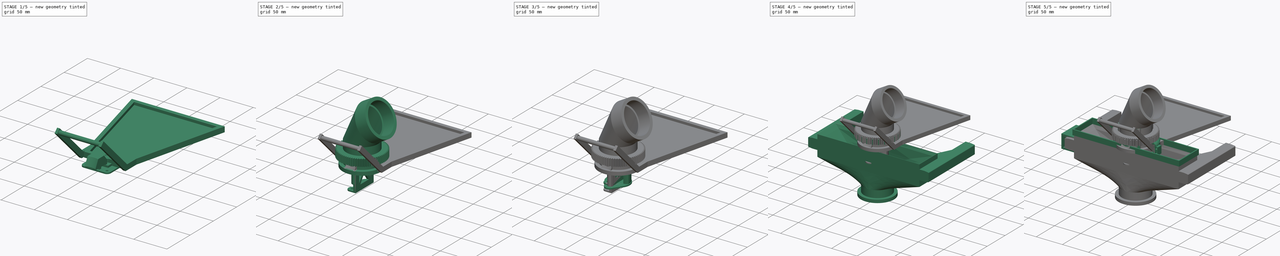
[diagram: build sequence overview — one tinted view per stage of 5, left to right]
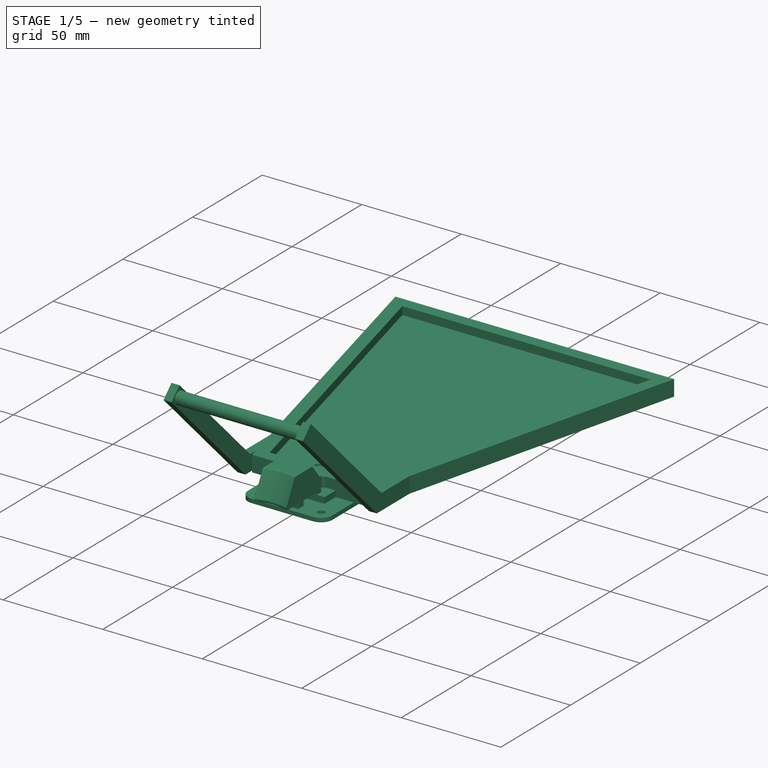
[diagram: stage 1 of 5 — iso view after this stage's code; geometry added in this stage tinted green]
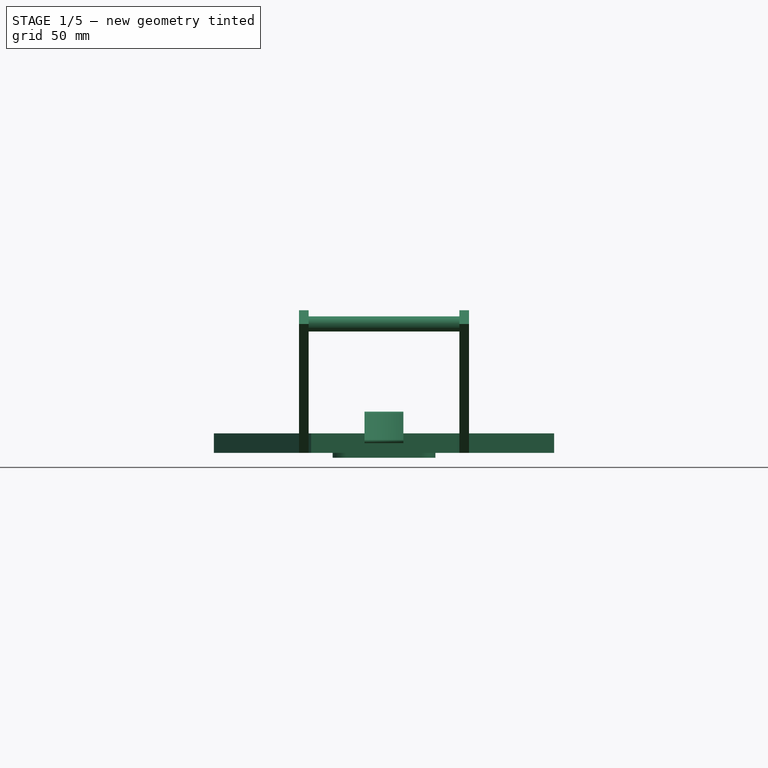
[diagram: stage 1 of 5 — front view after this stage's code; geometry added in this stage tinted green]
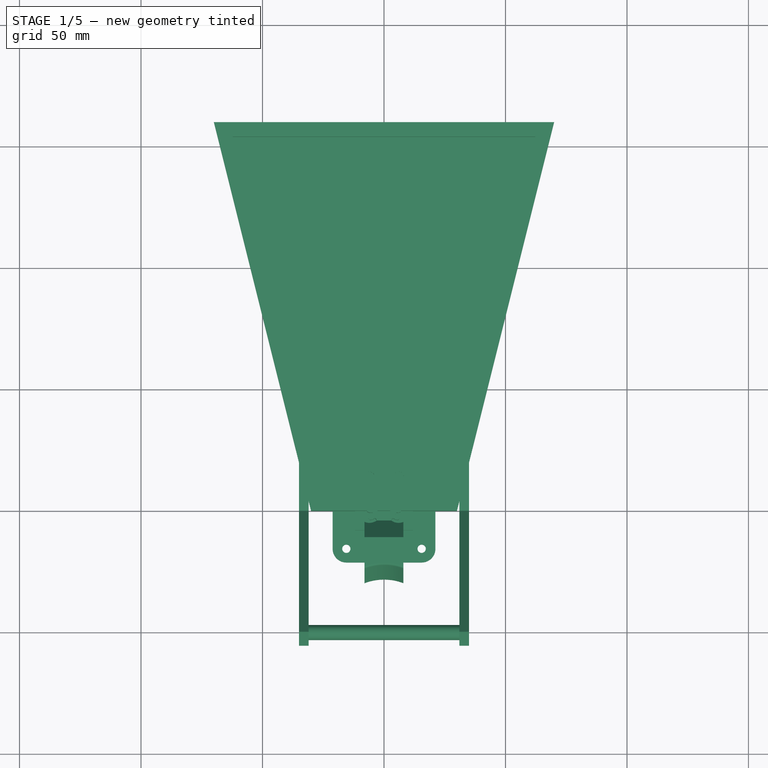
[diagram: stage 1 of 5 — top view after this stage's code; geometry added in this stage tinted green]
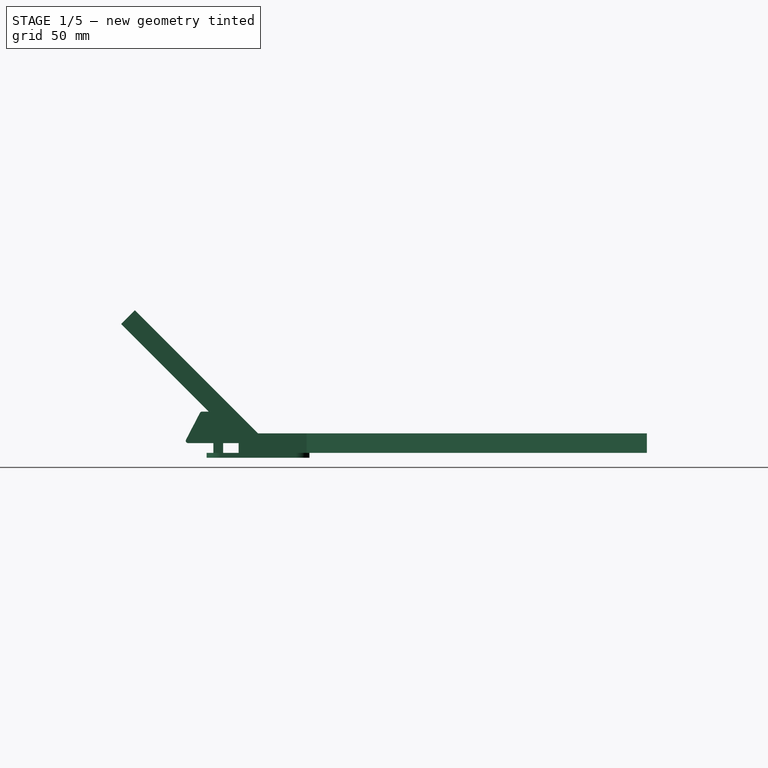
[diagram: stage 1 of 5 — right view after this stage's code; geometry added in this stage tinted green]
FCSTD DOCUMENT  (FreeCAD 0.20R29603 (Git))
Label: Pellet Sorter top joint SX17
License: All rights reserved
LicenseURL: http://en.wikipedia.org/wiki/All_rights_reserved
objects: Sketcher::SketchObject×87, PartDesign::Pad×50, PartDesign::Body×21, PartDesign::Pocket×14, PartDesign::Fillet×10, PartDesign::Chamfer×8, PartDesign::AdditiveLoft×7, PartDesign::Mirrored×7, PartDesign::MultiTransform×6, PartDesign::Revolution×5, Part::Part2DObjectPython×5, PartDesign::Plane×4, PartDesign::SubtractiveLoft×3, App::Part×1
note: 324 computed .brp shape members not serialized (recipe doc carries the construction recipe); baked Part::Feature solids carry a one-line shape summary decoded from their .brp

FEATURE [PartDesign::Body] Body025  label="Body021: MMPP004 Mount"
  Group = -> [Sketch110,Pad055,Sketch111,Pad056,Sketch112,Pad057,Sketch113,Pocket016,Fillet009,MultiTransform004,Mirrored005]
  Origin = -> Origin027
  Placement = pos=(34.25,67.5,-70.75) rot=(0,0,1;0rad)
  Tip = -> MultiTransform004
FEATURE [Sketcher::SketchObject] Sketch114
  FullyConstrained = true
  MapMode = 5
  Support = -> [XY_Plane028]
  sketch-geometry (22):
    g0: LineSegment StartX=-21.15 StartY=21.15 StartZ=0 EndX=-21.15 EndY=-21.15 EndZ=0
    g1: LineSegment StartX=-21.15 StartY=-21.15 StartZ=0 EndX=21.15 EndY=-21.15 EndZ=0
    g2: LineSegment StartX=21.15 StartY=-21.15 StartZ=0 EndX=21.15 EndY=21.15 EndZ=0
    g3: LineSegment StartX=21.15 StartY=21.15 StartZ=0 EndX=-21.15 EndY=21.15 EndZ=0
    g4: GeomPoint X=0 Y=0 Z=0
    g5: Circle CenterX=-15.5 CenterY=15.5 CenterZ=0 NormalX=0 NormalY=0 NormalZ=1 AngleXU=0 Radius=1.7
    g6: Circle CenterX=15.5 CenterY=15.5 CenterZ=0 NormalX=0 NormalY=0 NormalZ=1 AngleXU=0 Radius=1.7
    g7: Circle CenterX=15.5 CenterY=-15.5 CenterZ=0 NormalX=0 NormalY=0 NormalZ=1 AngleXU=0 Radius=1.7
    g8: Circle CenterX=-15.5 CenterY=-15.5 CenterZ=0 NormalX=0 NormalY=0 NormalZ=1 AngleXU=0 Radius=1.7
    g9: LineSegment StartX=-15.5 StartY=15.5 StartZ=0 EndX=15.5 EndY=15.5 EndZ=0
    g10: LineSegment StartX=15.5 StartY=15.5 StartZ=0 EndX=15.5 EndY=-15.5 EndZ=0
    g11: LineSegment StartX=-15.5 StartY=15.5 StartZ=0 EndX=-15.5 EndY=-15.5 EndZ=0
    g12: LineSegment StartX=-15.5 StartY=-15.5 StartZ=0 EndX=15.5 EndY=-15.5 EndZ=0
    g13: ArcOfCircle CenterX=-15.5 CenterY=15.5 CenterZ=0 NormalX=0 NormalY=0 NormalZ=1 AngleXU=0 Radius=5.65 StartAngle=1.5708 EndAngle=3.14159
    g14: ArcOfCircle CenterX=15.5 CenterY=15.5 CenterZ=0 NormalX=0 NormalY=0 NormalZ=1 AngleXU=0 Radius=5.65 StartAngle=1.05579e-07 EndAngle=1.5708
    g15: ArcOfCircle CenterX=15.5 CenterY=-15.5 CenterZ=0 NormalX=0 NormalY=0 NormalZ=1 AngleXU=0 Radius=5.65 StartAngle=4.71239 EndAngle=6.28319
    g16: ArcOfCircle CenterX=-15.5 CenterY=-15.5 CenterZ=0 NormalX=0 NormalY=0 NormalZ=1 AngleXU=0 Radius=5.65 StartAngle=3.14159 EndAngle=4.71239
    g17: LineSegment StartX=-21.15 StartY=15.5 StartZ=0 EndX=-21.15 EndY=-15.5 EndZ=0
    g18: LineSegment StartX=-15.5 StartY=-21.15 StartZ=0 EndX=15.5 EndY=-21.15 EndZ=0
    g19: LineSegment StartX=21.15 StartY=-15.5 StartZ=0 EndX=21.15 EndY=15.5 EndZ=0
    g20: LineSegment StartX=15.5 StartY=21.15 StartZ=0 EndX=-15.5 EndY=21.15 EndZ=0
    g21: Circle CenterX=0 CenterY=0 CenterZ=0 NormalX=0 NormalY=0 NormalZ=1 AngleXU=0 Radius=5
  constraints (54):
    c: Coincident(g0,g1)
    c: Coincident(g1,g2)
    c: Coincident(g2,g3)
    c: Coincident(g3,g0)
    c: Horizontal(g1)
    c: Horizontal(g3)
    c: Vertical(g0)
    c: Vertical(g2)
    c: Symmetric(g1,g0,g4)
    c: Coincident(g4,g-1)
    c: Equal(g6,g5)
    c: Equal(g5,g8)
    c: Equal(g8,g7)
    c: Diameter(g6) = 3.4
    c: Coincident(g9,g5)
    c: Coincident(g9,g6)
    c: Horizontal(g9)
    c: Coincident(g10,g6)
    c: Vertical(g10)
    c: Coincident(g10,g7)
    c: Coincident(g11,g5)
    c: Coincident(g11,g8)
    c: Vertical(g11)
    c: Coincident(g12,g8)
    c: Coincident(g12,g7)
    c: Horizontal(g12)
    c: Equal(g9,g10)
    c: Distance(g10) = 31
    c: DistanceX(g4,g6) = 15.5
    c: DistanceY(g4,g6) = 15.5
    c: Equal(g3,g2)
    c: Distance(g2) = 42.3
    c: Coincident(g13,g5)
    c: PointOnObject(g13,g0)
    c: Coincident(g14,g6)
    c: PointOnObject(g14,g2)
    c: Coincident(g15,g7)
    c: PointOnObject(g15,g1)
    c: Coincident(g16,g8)
    c: PointOnObject(g16,g0)
    c: Tangent(g13,g3) = -1.5708
    c: Tangent(g14,g3) = -1.5708
    c: Tangent(g15,g2) = -1.5708
    c: Tangent(g16,g1) = -1.5708
    c: Coincident(g17,g13)
    c: Coincident(g17,g16)
    c: Coincident(g18,g16)
    c: Coincident(g18,g15)
    c: Coincident(g19,g15)
    c: Coincident(g19,g14)
    c: Coincident(g20,g14)
    c: Coincident(g20,g13)
    c: Coincident(g21,g4)
    c: Diameter(g21) = 10
FEATURE [PartDesign::Pad] Pad058
  Direction = (0,0,1)
  Length = 2
  Length2 = 10
  Profile = -> Sketch114
  ReferenceAxis = -> Sketch114 [N_Axis]
  Reversed = true
  Type = 0
FEATURE [PartDesign::Body] Body026  label="Body022: MMPP004 Idler link"
  Group = -> [Sketch114,Pad058,Sketch115,Sketch116,Sketch118,Pad061,Sketch119,Pad062,Fillet010]
  Origin = -> Origin028
  Placement = pos=(0,67.5,-103) rot=(0,0,1;0rad)
  Tip = -> Fillet010
FEATURE [Sketcher::SketchObject] Sketch120
  FullyConstrained = true
  MapMode = 5
  Support = -> [XY_Plane029]
  sketch-geometry (6):
    g0: Circle CenterX=0 CenterY=0 CenterZ=0 NormalX=0 NormalY=0 NormalZ=1 AngleXU=0 Radius=4
    g1: Circle CenterX=0 CenterY=18.5 CenterZ=0 NormalX=0 NormalY=0 NormalZ=1 AngleXU=0 Radius=2.8
    g2: ArcOfCircle CenterX=0 CenterY=18.5 CenterZ=0 NormalX=0 NormalY=0 NormalZ=1 AngleXU=0 Radius=8 StartAngle=6.28319 EndAngle=9.42478
    g3: ArcOfCircle CenterX=0 CenterY=0 CenterZ=0 NormalX=0 NormalY=0 NormalZ=1 AngleXU=0 Radius=8 StartAngle=3.14159 EndAngle=6.28319
    g4: LineSegment StartX=-8 StartY=18.5 StartZ=0 EndX=-8 EndY=4.43724e-08 EndZ=0
    g5: LineSegment StartX=8 StartY=-2e-15 StartZ=0 EndX=8 EndY=18.5 EndZ=0
  constraints (17):
    c: Coincident(g0,g-1)
    c: Diameter(g0) = 8
    c: PointOnObject(g1,g-2)
    c: Distance(g1,g0) = 18.5
    c: Diameter(g1) = 5.6
    c: Coincident(g2,g1)
    c: Coincident(g3,g0)
    c: PointOnObject(g3,g-1)
    c: Coincident(g4,g2)
    c: Coincident(g4,g3)
    c: Vertical(g4)
    c: Coincident(g5,g3)
    c: Coincident(g5,g2)
    c: Vertical(g5)
    c: Equal(g2,g3)
    c: Equal(g5,g4)
    c: Distance(g2,g2) = 16
FEATURE [PartDesign::Pad] Pad063
  Direction = (0,0,1)
  Length = 3
  Length2 = 10
  Profile = -> Sketch120
  ReferenceAxis = -> Sketch120 [N_Axis]
  Type = 0
FEATURE [Sketcher::SketchObject] Sketch121
  FullyConstrained = true
  MapMode = 5
  Placement = pos=(0,0,0) rot=(1,0,0;3.14159rad)
  Support = -> [Pad063]
  sketch-geometry (1):
    g0: Circle CenterX=0 CenterY=0 CenterZ=0 NormalX=0 NormalY=0 NormalZ=1 AngleXU=0 Radius=4.25
  constraints (2):
    c: Coincident(g0,g-1)
    c: Diameter(g0) = 8.5
FEATURE [Sketcher::SketchObject] Sketch122
  FullyConstrained = true
  MapMode = 5
  Placement = pos=(0,0,3) rot=(0,0,1;0rad)
  Support = -> [Pad063]
  sketch-geometry (1):
    g0: Circle CenterX=0 CenterY=0 CenterZ=0 NormalX=0 NormalY=0 NormalZ=1 AngleXU=0 Radius=4.4
  constraints (2):
    c: Coincident(g0,g-1)
    c: Diameter(g0) = 8.8
FEATURE [PartDesign::SubtractiveLoft] SubtractiveLoft001
  BaseFeature = -> Pad063
  Closed = false
  Profile = -> Sketch122
  Ruled = false
  Sections = -> [Sketch121]
FEATURE [PartDesign::Body] Body027  label="Body027: MMPP004 Idler cap v1"
  Group = -> [Sketch120,Pad063,Sketch121,Sketch122,SubtractiveLoft001]
  Origin = -> Origin029
  Placement = pos=(0,49,-121.5) rot=(0,0,1;0rad)
  Tip = -> SubtractiveLoft001
FEATURE [Part::Part2DObjectPython] InvoluteGear004  # Draft 2D object (typed FeaturePython)
  ExternalGear = true
  HighPrecision = true
  Modules = 1
  NumberOfTeeth = 12
  PressureAngle = 20
FEATURE [Sketcher::SketchObject] Sketch123
  FullyConstrained = false
  Placement = pos=(0,0,0) rot=(0,0,1;3.14159rad)
  sketch-geometry (120):
    g0: LineSegment StartX=-5.05703 StartY=0.742605 StartZ=0 EndX=-5.59423 EndY=0.820664 EndZ=0
    g1: BSplineCurve PolesCount=4 KnotsCount=2 Degree=3 IsPeriodic=0
    g2: BSplineCurve PolesCount=4 KnotsCount=2 Degree=3 IsPeriodic=0
    g3: ArcOfCircle CenterX=-0.00137039 CenterY=0 CenterZ=0 NormalX=0 NormalY=0 NormalZ=1 AngleXU=3.09733 Radius=7 StartAngle=0 EndAngle=0.0885308
    g4: BSplineCurve PolesCount=4 KnotsCount=2 Degree=3 IsPeriodic=0
    g5: BSplineCurve PolesCount=4 KnotsCount=2 Degree=3 IsPeriodic=0
    g6: LineSegment StartX=-5.59423 StartY=-0.820664 StartZ=0 EndX=-5.05703 EndY=-0.742605 EndZ=0
    g7: ArcOfCircle CenterX=-5.00254 CenterY=-1.11363 CenterZ=0 NormalX=0 NormalY=0 NormalZ=1 AngleXU=1.7166 Radius=0.375 StartAngle=4.7881 EndAngle=6.28319
    g8: ArcOfCircle CenterX=4.583e-13 CenterY=1.127e-13 CenterZ=0 NormalX=0 NormalY=0 NormalZ=1 AngleXU=-2.92275 Radius=4.75 StartAngle=0 EndAngle=0.0859095
    g9: ArcOfCircle CenterX=-4.88914 CenterY=-1.53684 CenterZ=0 NormalX=0 NormalY=0 NormalZ=1 AngleXU=0.30208 Radius=0.375 StartAngle=4.7881 EndAngle=6.28319
    g10: LineSegment StartX=-4.75082 StartY=-1.8854 StartZ=0 EndX=-5.25508 EndY=-2.0864 EndZ=0
    g11: BSplineCurve PolesCount=4 KnotsCount=2 Degree=3 IsPeriodic=0
    g12: BSplineCurve PolesCount=4 KnotsCount=2 Degree=3 IsPeriodic=0
    g13: ArcOfCircle CenterX=-0.0011868 CenterY=-0.000685197 CenterZ=0 NormalX=0 NormalY=0 NormalZ=1 AngleXU=-2.66226 Radius=7 StartAngle=0 EndAngle=0.0885308
    g14: BSplineCurve PolesCount=4 KnotsCount=2 Degree=3 IsPeriodic=0
    g15: BSplineCurve PolesCount=4 KnotsCount=2 Degree=3 IsPeriodic=0
    g16: LineSegment StartX=-4.43441 StartY=-3.50783 StartZ=0 EndX=-4.00821 EndY=-3.17163 EndZ=0
    g17: ArcOfCircle CenterX=-3.77552 CenterY=-3.4657 CenterZ=0 NormalX=0 NormalY=0 NormalZ=1 AngleXU=2.2402 Radius=0.375 StartAngle=4.7881 EndAngle=6.28319
    g18: ArcOfCircle CenterX=7.97e-14 CenterY=6.55e-14 CenterZ=0 NormalX=0 NormalY=0 NormalZ=1 AngleXU=-2.39915 Radius=4.75 StartAngle=0 EndAngle=0.0859095
    g19: ArcOfCircle CenterX=-3.4657 CenterY=-3.77552 CenterZ=0 NormalX=0 NormalY=0 NormalZ=1 AngleXU=0.825679 Radius=0.375 StartAngle=4.7881 EndAngle=6.28319
    g20: LineSegment StartX=-3.17163 StartY=-4.00821 StartZ=0 EndX=-3.50783 EndY=-4.43441 EndZ=0
    g21: BSplineCurve PolesCount=4 KnotsCount=2 Degree=3 IsPeriodic=0
    g22: BSplineCurve PolesCount=4 KnotsCount=2 Degree=3 IsPeriodic=0
    g23: ArcOfCircle CenterX=-0.000685197 CenterY=-0.0011868 CenterZ=0 NormalX=0 NormalY=0 NormalZ=1 AngleXU=-2.13866 Radius=7 StartAngle=0 EndAngle=0.0885308
    g24: BSplineCurve PolesCount=4 KnotsCount=2 Degree=3 IsPeriodic=0
    g25: BSplineCurve PolesCount=4 KnotsCount=2 Degree=3 IsPeriodic=0
    g26: LineSegment StartX=-2.0864 StartY=-5.25508 StartZ=0 EndX=-1.8854 EndY=-4.75082 EndZ=0
    g27: ArcOfCircle CenterX=-1.53684 CenterY=-4.88914 CenterZ=0 NormalX=0 NormalY=0 NormalZ=1 AngleXU=2.7638 Radius=0.375 StartAngle=4.7881 EndAngle=6.28319
    g28: ArcOfCircle CenterX=1.162e-13 CenterY=3.917e-13 CenterZ=0 NormalX=0 NormalY=0 NormalZ=1 AngleXU=-1.87555 Radius=4.75 StartAngle=0 EndAngle=0.0859095
    g29: ArcOfCircle CenterX=-1.11363 CenterY=-5.00254 CenterZ=0 NormalX=0 NormalY=0 NormalZ=1 AngleXU=1.34928 Radius=0.375 StartAngle=4.7881 EndAngle=6.28319
    g30: LineSegment StartX=-0.742605 StartY=-5.05703 StartZ=0 EndX=-0.820664 EndY=-5.59423 EndZ=0
    g31: BSplineCurve PolesCount=4 KnotsCount=2 Degree=3 IsPeriodic=0
    g32: BSplineCurve PolesCount=4 KnotsCount=2 Degree=3 IsPeriodic=0
    g33: ArcOfCircle CenterX=-4e-16 CenterY=-0.00137039 CenterZ=0 NormalX=0 NormalY=0 NormalZ=1 AngleXU=-1.61506 Radius=7 StartAngle=0 EndAngle=0.0885308
    g34: BSplineCurve PolesCount=4 KnotsCount=2 Degree=3 IsPeriodic=0
    g35: BSplineCurve PolesCount=4 KnotsCount=2 Degree=3 IsPeriodic=0
    g36: LineSegment StartX=0.820664 StartY=-5.59423 StartZ=0 EndX=0.742605 EndY=-5.05703 EndZ=0
    g37: ArcOfCircle CenterX=1.11363 CenterY=-5.00254 CenterZ=0 NormalX=0 NormalY=0 NormalZ=1 AngleXU=-2.99579 Radius=0.375 StartAngle=4.7881 EndAngle=6.28319
    g38: ArcOfCircle CenterX=-3.918e-13 CenterY=1.4988e-12 CenterZ=0 NormalX=0 NormalY=0 NormalZ=1 AngleXU=-1.35195 Radius=4.75 StartAngle=0 EndAngle=0.0859095
    g39: ArcOfCircle CenterX=1.53684 CenterY=-4.88914 CenterZ=0 NormalX=0 NormalY=0 NormalZ=1 AngleXU=1.87288 Radius=0.375 StartAngle=4.7881 EndAngle=6.28319
    g40: LineSegment StartX=1.8854 StartY=-4.75082 StartZ=0 EndX=2.0864 EndY=-5.25508 EndZ=0
    g41: BSplineCurve PolesCount=4 KnotsCount=2 Degree=3 IsPeriodic=0
    g42: BSplineCurve PolesCount=4 KnotsCount=2 Degree=3 IsPeriodic=0
    g43: ArcOfCircle CenterX=0.000685197 CenterY=-0.0011868 CenterZ=0 NormalX=0 NormalY=0 NormalZ=1 AngleXU=-1.09146 Radius=7 StartAngle=0 EndAngle=0.0885308
    g44: BSplineCurve PolesCount=4 KnotsCount=2 Degree=3 IsPeriodic=0
    g45: BSplineCurve PolesCount=4 KnotsCount=2 Degree=3 IsPeriodic=0
    g46: LineSegment StartX=3.50783 StartY=-4.43441 StartZ=0 EndX=3.17163 EndY=-4.00821 EndZ=0
    g47: ArcOfCircle CenterX=3.4657 CenterY=-3.77552 CenterZ=0 NormalX=0 NormalY=0 NormalZ=1 AngleXU=-2.47219 Radius=0.375 StartAngle=4.7881 EndAngle=6.28319
    g48: ArcOfCircle CenterX=-1.5312e-12 CenterY=1.545e-12 CenterZ=0 NormalX=0 NormalY=0 NormalZ=1 AngleXU=-0.828353 Radius=4.75 StartAngle=0 EndAngle=0.0859095
    g49: ArcOfCircle CenterX=3.77552 CenterY=-3.4657 CenterZ=0 NormalX=0 NormalY=0 NormalZ=1 AngleXU=2.39648 Radius=0.375 StartAngle=4.7881 EndAngle=6.28319
    g50: LineSegment StartX=4.00821 StartY=-3.17163 StartZ=0 EndX=4.43441 EndY=-3.50783 EndZ=0
    g51: BSplineCurve PolesCount=4 KnotsCount=2 Degree=3 IsPeriodic=0
    g52: BSplineCurve PolesCount=4 KnotsCount=2 Degree=3 IsPeriodic=0
    g53: ArcOfCircle CenterX=0.0011868 CenterY=-0.000685197 CenterZ=0 NormalX=0 NormalY=0 NormalZ=1 AngleXU=-0.567864 Radius=7 StartAngle=0 EndAngle=0.0885308
    g54: BSplineCurve PolesCount=4 KnotsCount=2 Degree=3 IsPeriodic=0
    g55: BSplineCurve PolesCount=4 KnotsCount=2 Degree=3 IsPeriodic=0
    g56: LineSegment StartX=5.25508 StartY=-2.0864 StartZ=0 EndX=4.75082 EndY=-1.8854 EndZ=0
    g57: ArcOfCircle CenterX=4.88914 CenterY=-1.53684 CenterZ=0 NormalX=0 NormalY=0 NormalZ=1 AngleXU=-1.94859 Radius=0.375 StartAngle=4.7881 EndAngle=6.28319
    g58: ArcOfCircle CenterX=-3.535e-13 CenterY=9.46e-14 CenterZ=0 NormalX=0 NormalY=0 NormalZ=1 AngleXU=-0.304754 Radius=4.75 StartAngle=0 EndAngle=0.0859095
    g59: ArcOfCircle CenterX=5.00254 CenterY=-1.11363 CenterZ=0 NormalX=0 NormalY=0 NormalZ=1 AngleXU=2.92007 Radius=0.375 StartAngle=4.7881 EndAngle=6.28319
    g60: LineSegment StartX=5.05703 StartY=-0.742605 StartZ=0 EndX=5.59423 EndY=-0.820664 EndZ=0
    g61: BSplineCurve PolesCount=4 KnotsCount=2 Degree=3 IsPeriodic=0
    g62: BSplineCurve PolesCount=4 KnotsCount=2 Degree=3 IsPeriodic=0
    g63: ArcOfCircle CenterX=0.00137039 CenterY=-8e-16 CenterZ=0 NormalX=0 NormalY=0 NormalZ=1 AngleXU=-0.0442654 Radius=7 StartAngle=0 EndAngle=0.0885308
    g64: BSplineCurve PolesCount=4 KnotsCount=2 Degree=3 IsPeriodic=0
    g65: BSplineCurve PolesCount=4 KnotsCount=2 Degree=3 IsPeriodic=0
    g66: LineSegment StartX=5.59423 StartY=0.820664 StartZ=0 EndX=5.05703 EndY=0.742605 EndZ=0
    g67: ArcOfCircle CenterX=5.00254 CenterY=1.11363 CenterZ=0 NormalX=0 NormalY=0 NormalZ=1 AngleXU=-1.42499 Radius=0.375 StartAngle=4.7881 EndAngle=6.28319
    g68: ArcOfCircle CenterX=-2.2276e-12 CenterY=-5.869e-13 CenterZ=0 NormalX=0 NormalY=0 NormalZ=1 AngleXU=0.218845 Radius=4.75 StartAngle=0 EndAngle=0.0859095
    g69: ArcOfCircle CenterX=4.88914 CenterY=1.53684 CenterZ=0 NormalX=0 NormalY=0 NormalZ=1 AngleXU=-2.83951 Radius=0.375 StartAngle=4.7881 EndAngle=6.28319
    g70: LineSegment StartX=4.75082 StartY=1.8854 StartZ=0 EndX=5.25508 EndY=2.0864 EndZ=0
    g71: BSplineCurve PolesCount=4 KnotsCount=2 Degree=3 IsPeriodic=0
    g72: BSplineCurve PolesCount=4 KnotsCount=2 Degree=3 IsPeriodic=0
    g73: ArcOfCircle CenterX=0.0011868 CenterY=0.000685197 CenterZ=0 NormalX=0 NormalY=0 NormalZ=1 AngleXU=0.479333 Radius=7 StartAngle=0 EndAngle=0.0885308
    g74: BSplineCurve PolesCount=4 KnotsCount=2 Degree=3 IsPeriodic=0
    g75: BSplineCurve PolesCount=4 KnotsCount=2 Degree=3 IsPeriodic=0
    g76: LineSegment StartX=4.43441 StartY=3.50783 StartZ=0 EndX=4.00821 EndY=3.17163 EndZ=0
    g77: ArcOfCircle CenterX=3.77552 CenterY=3.4657 CenterZ=0 NormalX=0 NormalY=0 NormalZ=1 AngleXU=-0.90139 Radius=0.375 StartAngle=4.7881 EndAngle=6.28319
    g78: ArcOfCircle CenterX=-1.5903e-12 CenterY=-1.5719e-12 CenterZ=0 NormalX=0 NormalY=0 NormalZ=1 AngleXU=0.742443 Radius=4.75 StartAngle=0 EndAngle=0.0859095
    g79: ArcOfCircle CenterX=3.4657 CenterY=3.77552 CenterZ=0 NormalX=0 NormalY=0 NormalZ=1 AngleXU=-2.31591 Radius=0.375 StartAngle=4.7881 EndAngle=6.28319
    g80: LineSegment StartX=3.17163 StartY=4.00821 StartZ=0 EndX=3.50783 EndY=4.43441 EndZ=0
    g81: BSplineCurve PolesCount=4 KnotsCount=2 Degree=3 IsPeriodic=0
    g82: BSplineCurve PolesCount=4 KnotsCount=2 Degree=3 IsPeriodic=0
    g83: ArcOfCircle CenterX=0.000685197 CenterY=0.0011868 CenterZ=0 NormalX=0 NormalY=0 NormalZ=1 AngleXU=1.00293 Radius=7 StartAngle=0 EndAngle=0.0885308
    g84: BSplineCurve PolesCount=4 KnotsCount=2 Degree=3 IsPeriodic=0
    g85: BSplineCurve PolesCount=4 KnotsCount=2 Degree=3 IsPeriodic=0
    g86: LineSegment StartX=2.0864 StartY=5.25508 StartZ=0 EndX=1.8854 EndY=4.75082 EndZ=0
    g87: ArcOfCircle CenterX=1.53684 CenterY=4.88914 CenterZ=0 NormalX=0 NormalY=0 NormalZ=1 AngleXU=-0.377791 Radius=0.375 StartAngle=4.7881 EndAngle=6.28319
    g88: ArcOfCircle CenterX=-1.3e-13 CenterY=-4.499e-13 CenterZ=0 NormalX=0 NormalY=0 NormalZ=1 AngleXU=1.26604 Radius=4.75 StartAngle=0 EndAngle=0.0859095
    g89: ArcOfCircle CenterX=1.11363 CenterY=5.00254 CenterZ=0 NormalX=0 NormalY=0 NormalZ=1 AngleXU=-1.79231 Radius=0.375 StartAngle=4.7881 EndAngle=6.28319
    g90: LineSegment StartX=0.742605 StartY=5.05703 StartZ=0 EndX=0.820664 EndY=5.59423 EndZ=0
    g91: BSplineCurve PolesCount=4 KnotsCount=2 Degree=3 IsPeriodic=0
    g92: BSplineCurve PolesCount=4 KnotsCount=2 Degree=3 IsPeriodic=0
    g93: ArcOfCircle CenterX=1.3e-15 CenterY=0.00137039 CenterZ=0 NormalX=0 NormalY=0 NormalZ=1 AngleXU=1.52653 Radius=7 StartAngle=0 EndAngle=0.0885308
    g94: BSplineCurve PolesCount=4 KnotsCount=2 Degree=3 IsPeriodic=0
    g95: BSplineCurve PolesCount=4 KnotsCount=2 Degree=3 IsPeriodic=0
    g96: LineSegment StartX=-0.820664 StartY=5.59423 StartZ=0 EndX=-0.742605 EndY=5.05703 EndZ=0
    g97: ArcOfCircle CenterX=-1.11363 CenterY=5.00254 CenterZ=0 NormalX=0 NormalY=0 NormalZ=1 AngleXU=0.145807 Radius=0.375 StartAngle=4.7881 EndAngle=6.28319
    g98: ArcOfCircle CenterX=1.136e-13 CenterY=-4.583e-13 CenterZ=0 NormalX=0 NormalY=0 NormalZ=1 AngleXU=1.78964 Radius=4.75 StartAngle=0 EndAngle=0.0859095
    g99: ArcOfCircle CenterX=-1.53684 CenterY=4.88914 CenterZ=0 NormalX=0 NormalY=0 NormalZ=1 AngleXU=-1.26872 Radius=0.375 StartAngle=4.7881 EndAngle=6.28319
    g100: LineSegment StartX=-1.8854 StartY=4.75082 StartZ=0 EndX=-2.0864 EndY=5.25508 EndZ=0
    g101: BSplineCurve PolesCount=4 KnotsCount=2 Degree=3 IsPeriodic=0
    g102: BSplineCurve PolesCount=4 KnotsCount=2 Degree=3 IsPeriodic=0
    g103: ArcOfCircle CenterX=-0.000685197 CenterY=0.0011868 CenterZ=0 NormalX=0 NormalY=0 NormalZ=1 AngleXU=2.05013 Radius=7 StartAngle=0 EndAngle=0.0885308
    g104: BSplineCurve PolesCount=4 KnotsCount=2 Degree=3 IsPeriodic=0
    g105: BSplineCurve PolesCount=4 KnotsCount=2 Degree=3 IsPeriodic=0
    g106: LineSegment StartX=-3.50783 StartY=4.43441 StartZ=0 EndX=-3.17163 EndY=4.00821 EndZ=0
    g107: ArcOfCircle CenterX=-3.4657 CenterY=3.77552 CenterZ=0 NormalX=0 NormalY=0 NormalZ=1 AngleXU=0.669406 Radius=0.375 StartAngle=4.7881 EndAngle=6.28319
    g108: ArcOfCircle CenterX=1.533e-12 CenterY=-1.5432e-12 CenterZ=0 NormalX=0 NormalY=0 NormalZ=1 AngleXU=2.31324 Radius=4.75 StartAngle=0 EndAngle=0.0859095
    g109: ArcOfCircle CenterX=-3.77552 CenterY=3.4657 CenterZ=0 NormalX=0 NormalY=0 NormalZ=1 AngleXU=-0.745117 Radius=0.375 StartAngle=4.7881 EndAngle=6.28319
    g110: LineSegment StartX=-4.00821 StartY=3.17163 StartZ=0 EndX=-4.43441 EndY=3.50783 EndZ=0
    g111: BSplineCurve PolesCount=4 KnotsCount=2 Degree=3 IsPeriodic=0
    g112: BSplineCurve PolesCount=4 KnotsCount=2 Degree=3 IsPeriodic=0
    g113: ArcOfCircle CenterX=-0.0011868 CenterY=0.000685197 CenterZ=0 NormalX=0 NormalY=0 NormalZ=1 AngleXU=2.57373 Radius=7 StartAngle=0 EndAngle=0.0885308
    g114: BSplineCurve PolesCount=4 KnotsCount=2 Degree=3 IsPeriodic=0
    g115: BSplineCurve PolesCount=4 KnotsCount=2 Degree=3 IsPeriodic=0
    g116: LineSegment StartX=-5.25508 StartY=2.0864 StartZ=0 EndX=-4.75082 EndY=1.8854 EndZ=0
    g117: ArcOfCircle CenterX=-4.88914 CenterY=1.53684 CenterZ=0 NormalX=0 NormalY=0 NormalZ=1 AngleXU=1.193 Radius=0.375 StartAngle=4.7881 EndAngle=6.28319
    g118: ArcOfCircle CenterX=3.77e-13 CenterY=-1.105e-13 CenterZ=0 NormalX=0 NormalY=0 NormalZ=1 AngleXU=2.83684 Radius=4.75 StartAngle=0 EndAngle=0.0859095
    g119: ArcOfCircle CenterX=-5.00254 CenterY=1.11363 CenterZ=0 NormalX=0 NormalY=0 NormalZ=1 AngleXU=-0.221518 Radius=0.375 StartAngle=4.7881 EndAngle=6.28319
  constraints (120):
    c: Coincident(g0,g1)
    c: Coincident(g1,g2)
    c: Coincident(g2,g3)
    c: Coincident(g3,g4)
    c: Coincident(g4,g5)
    c: Coincident(g5,g6)
    c: Coincident(g6,g7)
    c: Coincident(g7,g8)
    c: Coincident(g8,g9)
    c: Coincident(g9,g10)
    c: Coincident(g10,g11)
    c: Coincident(g11,g12)
    c: Coincident(g12,g13)
    c: Coincident(g13,g14)
    c: Coincident(g14,g15)
    c: Coincident(g15,g16)
    c: Coincident(g16,g17)
    c: Coincident(g17,g18)
    c: Coincident(g18,g19)
    c: Coincident(g19,g20)
    c: Coincident(g20,g21)
    c: Coincident(g21,g22)
    c: Coincident(g22,g23)
    c: Coincident(g23,g24)
    c: Coincident(g24,g25)
    c: Coincident(g25,g26)
    c: Coincident(g26,g27)
    c: Coincident(g27,g28)
    c: Coincident(g28,g29)
    c: Coincident(g29,g30)
    c: Coincident(g30,g31)
    c: Coincident(g31,g32)
    c: Coincident(g32,g33)
    c: Coincident(g33,g34)
    c: Coincident(g34,g35)
    c: Coincident(g35,g36)
    c: Coincident(g36,g37)
    c: Coincident(g37,g38)
    c: Coincident(g38,g39)
    c: Coincident(g39,g40)
    c: Coincident(g40,g41)
    c: Coincident(g41,g42)
    c: Coincident(g42,g43)
    c: Coincident(g43,g44)
    c: Coincident(g44,g45)
    c: Coincident(g45,g46)
    c: Coincident(g46,g47)
    c: Coincident(g47,g48)
    c: Coincident(g48,g49)
    c: Coincident(g49,g50)
    c: Coincident(g50,g51)
    c: Coincident(g51,g52)
    c: Coincident(g52,g53)
    c: Coincident(g53,g54)
    c: Coincident(g54,g55)
    c: Coincident(g55,g56)
    c: Coincident(g56,g57)
    c: Coincident(g57,g58)
    c: Coincident(g58,g59)
    c: Coincident(g59,g60)
    c: Coincident(g60,g61)
    c: Coincident(g61,g62)
    c: Coincident(g62,g63)
    c: Coincident(g63,g64)
    c: Coincident(g64,g65)
    c: Coincident(g65,g66)
    c: Coincident(g66,g67)
    c: Coincident(g67,g68)
    c: Coincident(g68,g69)
    c: Coincident(g69,g70)
    c: Coincident(g70,g71)
    c: Coincident(g71,g72)
    c: Coincident(g72,g73)
    c: Coincident(g73,g74)
    c: Coincident(g74,g75)
    c: Coincident(g75,g76)
    c: Coincident(g76,g77)
    c: Coincident(g77,g78)
    c: Coincident(g78,g79)
    c: Coincident(g79,g80)
    c: Coincident(g80,g81)
    c: Coincident(g81,g82)
    c: Coincident(g82,g83)
    c: Coincident(g83,g84)
    c: Coincident(g84,g85)
    c: Coincident(g85,g86)
    c: Coincident(g86,g87)
    c: Coincident(g87,g88)
    c: Coincident(g88,g89)
    c: Coincident(g89,g90)
    c: Coincident(g90,g91)
    c: Coincident(g91,g92)
    c: Coincident(g92,g93)
    c: Coincident(g93,g94)
    c: Coincident(g94,g95)
    c: Coincident(g95,g96)
    c: Coincident(g96,g97)
    c: Coincident(g97,g98)
    c: Coincident(g98,g99)
    c: Coincident(g99,g100)
    c: Coincident(g100,g101)
    c: Coincident(g101,g102)
    c: Coincident(g102,g103)
    c: Coincident(g103,g104)
    c: Coincident(g104,g105)
    c: Coincident(g105,g106)
    c: Coincident(g106,g107)
    c: Coincident(g107,g108)
    c: Coincident(g108,g109)
    c: Coincident(g109,g110)
    c: Coincident(g110,g111)
    c: Coincident(g111,g112)
    c: Coincident(g112,g113)
    c: Coincident(g113,g114)
    c: Coincident(g114,g115)
    c: Coincident(g115,g116)
    c: Coincident(g116,g117)
    c: Coincident(g117,g118)
    c: Coincident(g118,g119)
    c: Coincident(g119,g0)
FEATURE [PartDesign::Pad] Pad064
  Direction = (0,0,1)
  Length = 8
  Length2 = 10
  Placement = pos=(0,0,0) rot=(0,0,1;3.14159rad)
  Profile = -> Sketch123
  ReferenceAxis = -> Sketch123 [N_Axis]
  Type = 0
FEATURE [Sketcher::SketchObject] Sketch124
  FullyConstrained = true
  MapMode = 5
  Placement = pos=(0,0,0) rot=(0,1,0;3.14159rad)
  Support = -> [Pad064]
  sketch-geometry (3):
    g0: ArcOfCircle CenterX=0 CenterY=0 CenterZ=0 NormalX=0 NormalY=0 NormalZ=1 AngleXU=0 Radius=2.65 StartAngle=2.31467 EndAngle=7.11011
    g1: LineSegment StartX=-1.79444 StartY=1.95 StartZ=0 EndX=1.79444 EndY=1.95 EndZ=0
    g2: LineSegment StartX=0 StartY=1.95 StartZ=0 EndX=0 EndY=-2.65 EndZ=0
  constraints (10):
    c: Coincident(g0,g-1)
    c: Diameter(g0) = 5.3
    c: Horizontal(g1)
    c: PointOnObject(g2,g1)
    c: PointOnObject(g2,g0)
    c: Vertical(g2)
    c: PointOnObject(g0,g2)
    c: Coincident(g0,g1)
    c: Coincident(g0,g1)
    c: Distance(g2) = 4.6
FEATURE [PartDesign::Pocket] Pocket017
  BaseFeature = -> Pad064
  Direction = (0,0,1)
  Length = 5
  Length2 = 5
  Placement = pos=(0,0,0) rot=(0,0,1;3.14159rad)
  Profile = -> Sketch124
  ReferenceAxis = -> Sketch124 [N_Axis]
  Type = 1
FEATURE [PartDesign::Body] Body028  label="Body019: 1mm Pinion v1"
  Group = -> [InvoluteGear004,Sketch123,Pad064,Sketch124,Pocket017]
  Origin = -> Origin030
  Placement = pos=(0,67.45,-116) rot=(0,0,1;0rad)
  Tip = -> Pocket017
FEATURE [Sketcher::SketchObject] Sketch125
  FullyConstrained = true
  MapMode = 5
  Support = -> [XY_Plane031]
  sketch-geometry (6):
    g0: LineSegment StartX=70 StartY=160 StartZ=0 EndX=-70 EndY=160 EndZ=0
    g1: LineSegment StartX=-70 StartY=160 StartZ=0 EndX=-30 EndY=0 EndZ=0
    g2: LineSegment StartX=30 StartY=0 StartZ=0 EndX=70 EndY=160 EndZ=0
    g3: LineSegment StartX=30 StartY=0 StartZ=0 EndX=0 EndY=0 EndZ=0
    g4: LineSegment StartX=0 StartY=0 StartZ=0 EndX=-30 EndY=0 EndZ=0
    g5: LineSegment StartX=30 StartY=0 StartZ=0 EndX=-30 EndY=0 EndZ=0
  constraints (16):
    c: PointOnObject(g2,g-1)
    c: PointOnObject(g1,g-1)
    c: Horizontal(g0)
    c: Coincident(g1,g0)
    c: Coincident(g2,g0)
    c: Equal(g1,g2)
    c: Coincident(g3,g-1)
    c: Coincident(g4,g3)
    c: Equal(g3,g4)
    c: Coincident(g2,g3)
    c: Coincident(g1,g4)
    c: Coincident(g5,g2)
    c: Coincident(g5,g1)
    c: Distance(g0) = 140
    c: DistanceY(g1,g0) = 160
    c: Distance(g5) = 60
FEATURE [PartDesign::Pad] Pad065
  Direction = (0,0,1)
  Length = 4
  Length2 = 10
  Profile = -> Sketch125
  ReferenceAxis = -> Sketch125 [N_Axis]
  Type = 0
FEATURE [Sketcher::SketchObject] Sketch126
  FullyConstrained = true
  MapMode = 5
  Placement = pos=(0,0,4) rot=(0,0,1;0rad)
  Support = -> [Pad065]
  sketch-geometry (15):
    g0: LineSegment StartX=0 StartY=0 StartZ=0 EndX=-30 EndY=0 EndZ=0
    g1: LineSegment StartX=0 StartY=0 StartZ=0 EndX=30 EndY=0 EndZ=0
    g2: LineSegment StartX=-30 StartY=0 StartZ=0 EndX=-70 EndY=160 EndZ=0
    g3: LineSegment StartX=-70 StartY=160 StartZ=0 EndX=70 EndY=160 EndZ=0
    g4: LineSegment StartX=70 StartY=160 StartZ=0 EndX=30 EndY=0 EndZ=0
    g5: LineSegment StartX=30 StartY=0 StartZ=0 EndX=-30 EndY=0 EndZ=0
    g6: LineSegment StartX=-62.3153 StartY=154 StartZ=0 EndX=-25.3153 EndY=6 EndZ=0
    g7: LineSegment StartX=-25.3153 StartY=6 StartZ=0 EndX=25.3153 EndY=6 EndZ=0
    g8: LineSegment StartX=25.3153 StartY=6 StartZ=0 EndX=62.3153 EndY=154 EndZ=0
    g9: LineSegment StartX=62.3153 StartY=154 StartZ=0 EndX=-62.3153 EndY=154 EndZ=0
    g10: LineSegment StartX=-62.3153 StartY=154 StartZ=0 EndX=-62.3153 EndY=160 EndZ=0
    g11: LineSegment StartX=62.3153 StartY=154 StartZ=0 EndX=68.1362 EndY=152.545 EndZ=0
    g12: LineSegment StartX=-25.3153 StartY=6 StartZ=0 EndX=-30 EndY=0 EndZ=0
    g13: LineSegment StartX=25.3153 StartY=6 StartZ=0 EndX=30 EndY=0 EndZ=0
    g14: LineSegment StartX=0 StartY=6 StartZ=0 EndX=0 EndY=0 EndZ=0
  constraints (41):
    c: Coincident(g0,g-1)
    c: PointOnObject(g0,g-1)
    c: Coincident(g1,g0)
    c: PointOnObject(g1,g-1)
    c: Equal(g1,g0)
    c: Coincident(g2,g0)
    c: Coincident(g3,g2)
    c: Horizontal(g3)
    c: Coincident(g4,g1)
    c: Coincident(g5,g4)
    c: Coincident(g5,g2)
    c: Distance(g3) = 140
    c: DistanceY(g4,g3) = 160
    c: Distance(g5) = 60
    c: Equal(g4,g2)
    c: Coincident(g4,g3)
    c: Coincident(g7,g6)
    c: Horizontal(g7)
    c: Coincident(g8,g7)
    c: Coincident(g9,g8)
    c: Coincident(g9,g6)
    c: Horizontal(g9)
    c: Equal(g6,g8)
    c: Coincident(g10,g6)
    c: PointOnObject(g10,g3)
    c: Vertical(g10)
    c: Distance(g10) = 6
    c: Coincident(g11,g8)
    c: PointOnObject(g11,g4)
    c: Perpendicular(g4,g11)
    c: Distance(g11) = 6
    c: Parallel(g8,g4)
    c: Coincident(g12,g6)
    c: Coincident(g12,g2)
    c: Coincident(g13,g7)
    c: Coincident(g13,g4)
    c: Equal(g13,g12)
    c: PointOnObject(g14,g7)
    c: Coincident(g14,g0)
    c: Vertical(g14)
    c: Distance(g14) = 6
FEATURE [PartDesign::Pad] Pad066
  BaseFeature = -> Pad065
  Direction = (0,0,1)
  Length = 4
  Length2 = 10
  Profile = -> Sketch126
  ReferenceAxis = -> Sketch126 [N_Axis]
  Type = 0
FEATURE [Sketcher::SketchObject] Sketch127
  AttachmentOffset = pos=(0,0,35) rot=(0,0,1;0rad)
  FullyConstrained = true
  MapMode = 5
  Placement = pos=(35,-7.8e-15,7.8e-15) rot=(0.57735,0.57735,0.57735;2.0944rad)
  Support = -> [YZ_Plane031]
  sketch-geometry (8):
    g0: LineSegment StartX=0 StartY=0 StartZ=0 EndX=-3.31371 EndY=0 EndZ=0
    g1: LineSegment StartX=-3.31371 StartY=0 StartZ=0 EndX=-56.3467 EndY=53.033 EndZ=0
    g2: LineSegment StartX=-56.3467 StartY=53.033 StartZ=0 EndX=-50.6899 EndY=58.6899 EndZ=0
    g3: LineSegment StartX=-50.6899 StartY=58.6899 StartZ=0 EndX=0 EndY=8 EndZ=0
    g4: LineSegment StartX=0 StartY=8 StartZ=0 EndX=0 EndY=0 EndZ=0
    g5: LineSegment StartX=0 StartY=8 StartZ=0 EndX=21 EndY=8 EndZ=0
    g6: LineSegment StartX=21 StartY=8 StartZ=0 EndX=21 EndY=0 EndZ=0
    g7: LineSegment StartX=21 StartY=0 StartZ=0 EndX=0 EndY=0 EndZ=0
  constraints (22):
    c: Coincident(g0,g-1)
    c: PointOnObject(g0,g-1)
    c: Coincident(g1,g0)
    c: Coincident(g2,g1)
    c: Coincident(g3,g2)
    c: PointOnObject(g3,g-2)
    c: Coincident(g4,g3)
    c: Coincident(g4,g0)
    c: Coincident(g5,g3)
    c: Horizontal(g5)
    c: Coincident(g6,g5)
    c: PointOnObject(g6,g-1)
    c: Vertical(g6)
    c: Coincident(g7,g6)
    c: Coincident(g7,g0)
    c: Distance(g6) = 8
    c: Distance(g7) = 21
    c: Angle(g5,g3) = 2.35619
    c: Parallel(g3,g1)
    c: Perpendicular(g3,g2)
    c: Distance(g2) = 8
    c: Distance(g1) = 75
FEATURE [PartDesign::Pad] Pad067
  BaseFeature = -> Pad066
  Direction = (1,-2e-16,3e-16)
  Length = 4
  Length2 = 10
  Profile = -> Sketch127
  ReferenceAxis = -> Sketch127 [N_Axis]
  Reversed = true
  Type = 0
FEATURE [PartDesign::Mirrored] Mirrored006
  MirrorPlane = -> YZ_Plane031
FEATURE [PartDesign::MultiTransform] MultiTransform005
  BaseFeature = -> Pad067
  Originals = -> [Pad067]
  Transformations = -> [Mirrored006]
FEATURE [Sketcher::SketchObject] Sketch128
  FullyConstrained = false
  MapMode = 5
  Placement = pos=(31,-5.4e-15,7.3e-15) rot=(-0.57735,0.57735,0.57735;4.18879rad)
  Support = -> [MultiTransform005]
  sketch-geometry (1):
    g0: Circle CenterX=50.9261 CenterY=53.0822 CenterZ=0 NormalX=0 NormalY=0 NormalZ=1 AngleXU=0 Radius=3.11472
FEATURE [PartDesign::Pad] Pad068
  BaseFeature = -> MultiTransform005
  Direction = (-1,2e-16,-2e-16)
  Length = 10
  Length2 = 10
  Profile = -> Sketch128
  ReferenceAxis = -> Sketch128 [N_Axis]
  Type = 2
FEATURE [Sketcher::SketchObject] Sketch129
  FullyConstrained = true
  MapMode = 5
  Placement = pos=(0,0,4) rot=(0,0,1;0rad)
  Support = -> [Pad068]
  sketch-geometry (5):
    g0: Circle CenterX=-6 CenterY=14 CenterZ=0 NormalX=0 NormalY=0 NormalZ=1 AngleXU=0 Radius=2.15
    g1: Circle CenterX=6 CenterY=14 CenterZ=0 NormalX=0 NormalY=0 NormalZ=1 AngleXU=0 Radius=2.15
    g2: LineSegment StartX=6 StartY=14 StartZ=0 EndX=0 EndY=14 EndZ=0
    g3: LineSegment StartX=0 StartY=14 StartZ=0 EndX=-6 EndY=14 EndZ=0
    g4: LineSegment StartX=0 StartY=14 StartZ=0 EndX=0 EndY=0 EndZ=0
  constraints (13):
    c: Diameter(g0) = 4.3
    c: Diameter(g1) = 4.3
    c: Coincident(g2,g1)
    c: PointOnObject(g2,g-2)
    c: Horizontal(g2)
    c: Coincident(g3,g0)
    c: Horizontal(g3)
    c: Coincident(g4,g2)
    c: Coincident(g4,g-1)
    c: Equal(g2,g3)
    c: Coincident(g3,g2)
    c: Distance(g1,g0) = 12
    c: Distance(g4) = 14
FEATURE [PartDesign::Pocket] Pocket018
  BaseFeature = -> Pad068
  Direction = (0,0,-1)
  Length = 5
  Length2 = 5
  Profile = -> Sketch129
  ReferenceAxis = -> Sketch129 [N_Axis]
  Type = 1
FEATURE [PartDesign::Body] Body029  label="Body029: Counterweight"
  Group = -> [Sketch125,Pad065,Sketch126,Pad066,Sketch127,Pad067,MultiTransform005,Mirrored006,Sketch128,Pad068,Sketch129,Pocket018]
  Origin = -> Origin031
  Placement = pos=(0,19.5,-185.5) rot=(0,0,1;0rad)
  Tip = -> Pocket018
FEATURE [Sketcher::SketchObject] Sketch130
  FullyConstrained = true
  MapMode = 5
  Support = -> [XY_Plane032]
  sketch-geometry (6):
    g0: Circle CenterX=0 CenterY=0 CenterZ=0 NormalX=0 NormalY=0 NormalZ=1 AngleXU=0 Radius=4
    g1: Circle CenterX=0 CenterY=18.5 CenterZ=0 NormalX=0 NormalY=0 NormalZ=1 AngleXU=0 Radius=2.8
    g2: ArcOfCircle CenterX=0 CenterY=18.5 CenterZ=0 NormalX=0 NormalY=0 NormalZ=1 AngleXU=0 Radius=8 StartAngle=6.28319 EndAngle=9.42478
    g3: ArcOfCircle CenterX=0 CenterY=0 CenterZ=0 NormalX=0 NormalY=0 NormalZ=1 AngleXU=0 Radius=8 StartAngle=3.14159 EndAngle=6.28319
    g4: LineSegment StartX=-8 StartY=18.5 StartZ=0 EndX=-8 EndY=4.43724e-08 EndZ=0
    g5: LineSegment StartX=8 StartY=-2e-15 StartZ=0 EndX=8 EndY=18.5 EndZ=0
  constraints (17):
    c: Coincident(g0,g-1)
    c: Diameter(g0) = 8
    c: PointOnObject(g1,g-2)
    c: Distance(g1,g0) = 18.5
    c: Diameter(g1) = 5.6
    c: Coincident(g2,g1)
    c: Coincident(g3,g0)
    c: PointOnObject(g3,g-1)
    c: Coincident(g4,g2)
    c: Coincident(g4,g3)
    c: Vertical(g4)
    c: Coincident(g5,g3)
    c: Coincident(g5,g2)
    c: Vertical(g5)
    c: Equal(g2,g3)
    c: Equal(g5,g4)
    c: Distance(g2,g2) = 16
FEATURE [PartDesign::Pad] Pad069
  Direction = (0,0,1)
  Length = 3
  Length2 = 10
  Profile = -> Sketch130
  ReferenceAxis = -> Sketch130 [N_Axis]
  Type = 0
FEATURE [Sketcher::SketchObject] Sketch131
  FullyConstrained = true
  MapMode = 5
  Placement = pos=(0,0,0) rot=(1,0,0;3.14159rad)
  Support = -> [Pad069]
  sketch-geometry (1):
    g0: Circle CenterX=0 CenterY=0 CenterZ=0 NormalX=0 NormalY=0 NormalZ=1 AngleXU=0 Radius=4.2
  constraints (2):
    c: Coincident(g0,g-1)
    c: Diameter(g0) = 8.4
FEATURE [Sketcher::SketchObject] Sketch132
  FullyConstrained = true
  MapMode = 5
  Placement = pos=(0,0,3) rot=(0,0,1;0rad)
  Support = -> [Pad069]
  sketch-geometry (1):
    g0: Circle CenterX=0 CenterY=0 CenterZ=0 NormalX=0 NormalY=0 NormalZ=1 AngleXU=0 Radius=4.35
  constraints (2):
    c: Coincident(g0,g-1)
    c: Diameter(g0) = 8.7
FEATURE [PartDesign::SubtractiveLoft] SubtractiveLoft002
  BaseFeature = -> Pad069
  Closed = false
  Profile = -> Sketch132
  Ruled = false
  Sections = -> [Sketch131]
FEATURE [PartDesign::Body] Body030  label="Body027: MMPP004 Idler cap v002"
  Group = -> [Sketch130,Pad069,Sketch131,Sketch132,SubtractiveLoft002]
  Origin = -> Origin032
  Placement = pos=(0,49,-121.5) rot=(0,0,1;0rad)
  Tip = -> SubtractiveLoft002
FEATURE [Sketcher::SketchObject] Sketch133
  FullyConstrained = true
  MapMode = 5
  Support = -> [XY_Plane033]
  sketch-geometry (12):
    g0: LineSegment StartX=12 StartY=-6 StartZ=0 EndX=12 EndY=6 EndZ=0
    g1: LineSegment StartX=12 StartY=6 StartZ=0 EndX=-12 EndY=6 EndZ=0
    g2: LineSegment StartX=-12 StartY=6 StartZ=0 EndX=-12 EndY=-6 EndZ=0
    g3: LineSegment StartX=-12 StartY=-6 StartZ=0 EndX=12 EndY=-6 EndZ=0
    g4: GeomPoint X=0 Y=0 Z=0
    g5: LineSegment StartX=-12 StartY=-8 StartZ=0 EndX=12 EndY=-8 EndZ=0
    g6: LineSegment StartX=12 StartY=-6 StartZ=0 EndX=12 EndY=-8 EndZ=0
    g7: Circle CenterX=6 CenterY=0 CenterZ=0 NormalX=0 NormalY=0 NormalZ=1 AngleXU=0 Radius=2.15
    g8: Circle CenterX=-6 CenterY=0 CenterZ=0 NormalX=0 NormalY=0 NormalZ=1 AngleXU=0 Radius=2.15
    g9: LineSegment StartX=6 StartY=0 StartZ=0 EndX=0 EndY=0 EndZ=0
    g10: LineSegment StartX=0 StartY=0 StartZ=0 EndX=-6 EndY=0 EndZ=0
    g11: LineSegment StartX=-12 StartY=-6 StartZ=0 EndX=-12 EndY=-8 EndZ=0
  constraints (31):
    c: Coincident(g0,g1)
    c: Coincident(g1,g2)
    c: Coincident(g2,g3)
    c: Coincident(g3,g0)
    c: Horizontal(g1)
    c: Horizontal(g3)
    c: Vertical(g0)
    c: Vertical(g2)
    c: Symmetric(g1,g0,g4)
    c: Coincident(g4,g-1)
    c: Horizontal(g5)
    c: Coincident(g6,g0)
    c: Coincident(g6,g5)
    c: Vertical(g6)
    c: PointOnObject(g7,g-1)
    c: PointOnObject(g8,g-1)
    c: Coincident(g9,g7)
    c: Coincident(g9,g4)
    c: PointOnObject(g10,g-1)
    c: Coincident(g10,g8)
    c: Equal(g9,g10)
    c: Distance(g10) = 6
    c: Diameter(g7) = 4.3
    c: Equal(g7,g8)
    c: Distance(g1,g5) = 14
    c: DistanceY(g5,g7) = 8
    c: Distance(g0,g1) = 24
    c: PointOnObject(g10,g-2)
    c: Coincident(g11,g2)
    c: Coincident(g11,g5)
    c: Vertical(g11)
FEATURE [PartDesign::Pad] Pad070
  Direction = (0,0,1)
  Length = 3
  Length2 = 10
  Profile = -> Sketch133
  ReferenceAxis = -> Sketch133 [N_Axis]
  Type = 0
FEATURE [Sketcher::SketchObject] Sketch134
  FullyConstrained = true
  MapMode = 5
  Placement = pos=(0,0,0) rot=(0.57735,0.57735,0.57735;2.0944rad)
  Support = -> [YZ_Plane033]
  sketch-geometry (7):
    g0: LineSegment StartX=-4 StartY=3 StartZ=0 EndX=-8 EndY=3 EndZ=0
    g1: LineSegment StartX=-4 StartY=3 StartZ=0 EndX=-4 EndY=17 EndZ=0
    g2: LineSegment StartX=-4 StartY=17 StartZ=0 EndX=-25 EndY=17 EndZ=0
    g3: LineSegment StartX=-25 StartY=17 StartZ=0 EndX=-30 EndY=7.4 EndZ=0
    g4: LineSegment StartX=-30 StartY=7.4 StartZ=0 EndX=-30 EndY=4 EndZ=0
    g5: LineSegment StartX=-30 StartY=4 StartZ=0 EndX=-8 EndY=4 EndZ=0
    g6: LineSegment StartX=-8 StartY=4 StartZ=0 EndX=-8 EndY=3 EndZ=0
  constraints (22):
    c: Horizontal(g0)
    c: PointOnObject(g1,g0)
    c: Vertical(g1)
    c: Coincident(g2,g1)
    c: Horizontal(g2)
    c: Coincident(g3,g2)
    c: Coincident(g4,g3)
    c: Vertical(g4)
    c: Coincident(g5,g4)
    c: Horizontal(g5)
    c: Coincident(g6,g5)
    c: Coincident(g6,g0)
    c: Vertical(g6)
    c: PointOnObject(g0,g1)
    c: DistanceX(g4,g-1) = 30
    c: Distance(g6) = 1
    c: Distance(g0) = 4
    c: DistanceY(g-1,g0) = 3
    c: DistanceX(g0,g-1) = 8
    c: Distance(g1) = 14
    c: Distance(g2) = 21
    c: Distance(g4) = 3.4
FEATURE [PartDesign::Pad] Pad071
  BaseFeature = -> Pad070
  Direction = (1,-2e-16,3e-16)
  Length = 16
  Length2 = 10
  Midplane = true
  Profile = -> Sketch134
  ReferenceAxis = -> Sketch134 [N_Axis]
  Type = 0
FEATURE [PartDesign::Plane] DatumPlane003
  Length = 61.9721
  MapMode = 7
  Placement = pos=(8,-25,17) rot=(0,0.237788,0.971317;3.14159rad)
  ResizeMode = 0
  Support = -> [Pad071]
  Width = 83.6383
FEATURE [Sketcher::SketchObject] Sketch135
  FullyConstrained = true
  MapMode = 5
  Placement = pos=(8,-25,17) rot=(0,0.237788,0.971317;3.14159rad)
  Support = -> [DatumPlane003]
  sketch-geometry (3):
    g0: LineSegment StartX=0 StartY=0 StartZ=0 EndX=8 EndY=0 EndZ=0
    g1: LineSegment StartX=8 StartY=0 StartZ=0 EndX=8 EndY=23 EndZ=0
    g2: Circle CenterX=8 CenterY=23 CenterZ=0 NormalX=0 NormalY=0 NormalZ=1 AngleXU=0 Radius=25.5
  constraints (8):
    c: Coincident(g0,g-1)
    c: PointOnObject(g0,g-1)
    c: Distance(g0) = 8
    c: Coincident(g1,g0)
    c: Vertical(g1)
    c: Coincident(g2,g1)
    c: Diameter(g2) = 51
    c: Distance(g1) = 23
FEATURE [PartDesign::Pocket] Pocket019
  BaseFeature = -> Pad071
  Direction = (1e-16,-0.461934,-0.886914)
  Length = 29
  Length2 = 5
  Midplane = true
  Profile = -> Sketch135
  ReferenceAxis = -> Sketch135 [N_Axis]
  Type = 1
FEATURE [PartDesign::Chamfer] Chamfer011
  Angle = 45
  Base = -> Pocket019 [Edge36]
  BaseFeature = -> Pocket019
  ChamferType = 1
  FlipDirection = false
  Size = 9
  Size2 = 7
  SupportTransform = false
  UseAllEdges = false
FEATURE [Sketcher::SketchObject] Sketch136
  FullyConstrained = true
  MapMode = 5
  Placement = pos=(0,0,3) rot=(0,0,1;0rad)
  Support = -> [Chamfer011]
  sketch-geometry (4):
    g0: Circle CenterX=-6 CenterY=0 CenterZ=0 NormalX=0 NormalY=0 NormalZ=1 AngleXU=0 Radius=5
    g1: Circle CenterX=6 CenterY=0 CenterZ=0 NormalX=0 NormalY=0 NormalZ=1 AngleXU=0 Radius=5
    g2: LineSegment StartX=-6 StartY=0 StartZ=0 EndX=0 EndY=0 EndZ=0
    g3: LineSegment StartX=0 StartY=0 StartZ=0 EndX=6 EndY=0 EndZ=0
  constraints (10):
    c: PointOnObject(g0,g-1)
    c: PointOnObject(g1,g-1)
    c: Coincident(g2,g0)
    c: Coincident(g2,g-1)
    c: Coincident(g3,g2)
    c: Coincident(g3,g1)
    c: Equal(g2,g3)
    c: Diameter(g1) = 10
    c: Distance(g3) = 6
    c: Equal(g1,g0)
FEATURE [PartDesign::Pocket] Pocket020
  BaseFeature = -> Chamfer011
  Direction = (0,0,-1)
  Length = 5
  Length2 = 5
  Profile = -> Sketch136
  ReferenceAxis = -> Sketch136 [N_Axis]
  Reversed = true
  Type = 1
FEATURE [PartDesign::Fillet] Fillet011
  Base = -> Pocket020 [Edge58,Edge60]
  BaseFeature = -> Pocket020
  Radius = 6
  SupportTransform = false
  UseAllEdges = false
FEATURE [PartDesign::Fillet] Fillet012
  Base = -> Fillet011 [Edge68,Edge65]
  BaseFeature = -> Fillet011
  Radius = 1
  SupportTransform = false
  UseAllEdges = false
FEATURE [Sketcher::SketchObject] Sketch137
  FullyConstrained = true
  MapMode = 5
  Placement = pos=(-1.1e-15,9e-16,4) rot=(1,0,0;3.14159rad)
  Support = -> [Fillet012]
  sketch-geometry (5):
    g0: LineSegment StartX=-6 StartY=18.4 StartZ=0 EndX=-6 EndY=14.4 EndZ=0
    g1: LineSegment StartX=-6 StartY=14.4 StartZ=0 EndX=6 EndY=14.4 EndZ=0
    g2: LineSegment StartX=6 StartY=14.4 StartZ=0 EndX=6 EndY=18.4 EndZ=0
    g3: LineSegment StartX=6 StartY=18.4 StartZ=0 EndX=-6 EndY=18.4 EndZ=0
    g4: GeomPoint X=0 Y=16.4 Z=0
  constraints (13):
    c: Coincident(g0,g1)
    c: Coincident(g1,g2)
    c: Coincident(g2,g3)
    c: Coincident(g3,g0)
    c: Horizontal(g1)
    c: Horizontal(g3)
    c: Vertical(g0)
    c: Vertical(g2)
    c: Symmetric(g1,g0,g4)
    c: PointOnObject(g4,g-2)
    c: DistanceY(g-1,g1) = 14.4
    c: Distance(g2) = 4
    c: Distance(g3) = 12
FEATURE [PartDesign::Pad] Pad072
  BaseFeature = -> Fillet012
  Direction = (3e-16,-2e-16,-1)
  Length = 4
  Length2 = 10
  Profile = -> Sketch137
  ReferenceAxis = -> Sketch137 [N_Axis]
  Type = 0
FEATURE [PartDesign::Body] Body031  label="Body031: Counterweight stop"
  Group = -> [Sketch133,Pad070,Sketch134,Pad071,DatumPlane003,Sketch135,Pocket019,Chamfer011,Sketch136,Pocket020,Fillet011,Fillet012,Sketch137,Pad072]
  Origin = -> Origin033
  Placement = pos=(0,33.5,-181.5) rot=(0,0,1;0rad)
  Tip = -> Pad072
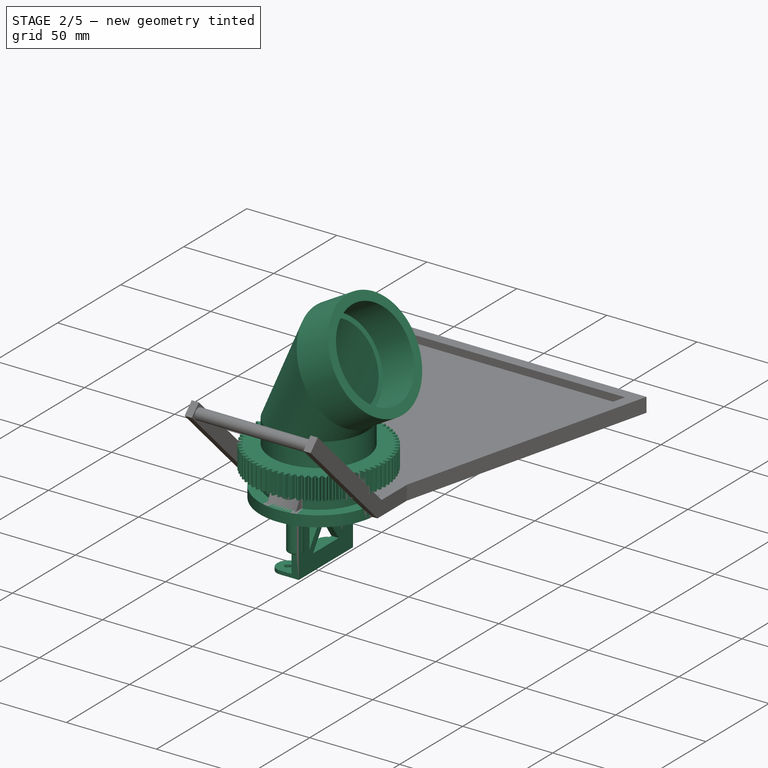
[diagram: stage 2 of 5 — iso view after this stage's code; geometry added in this stage tinted green]
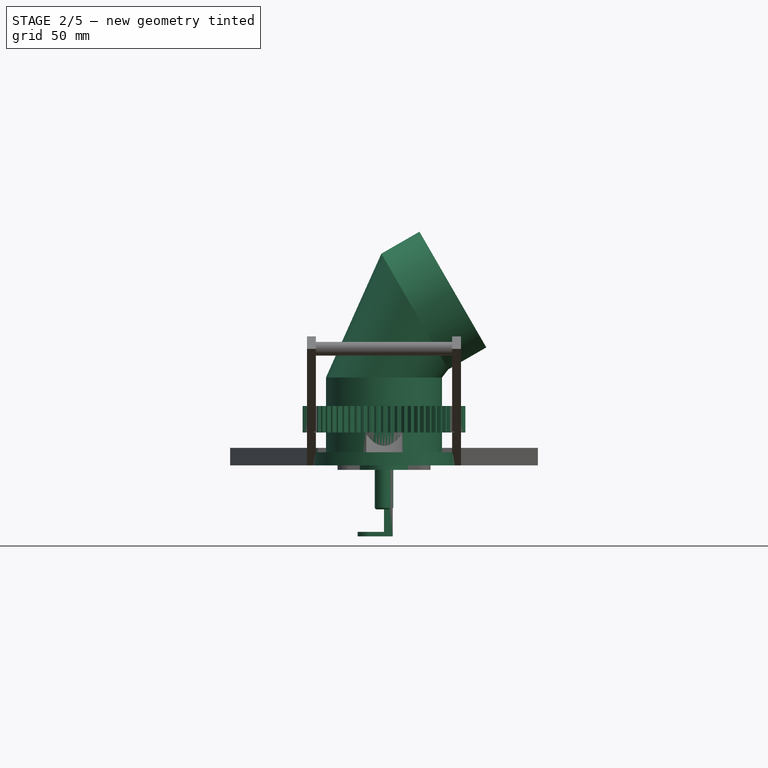
[diagram: stage 2 of 5 — front view after this stage's code; geometry added in this stage tinted green]
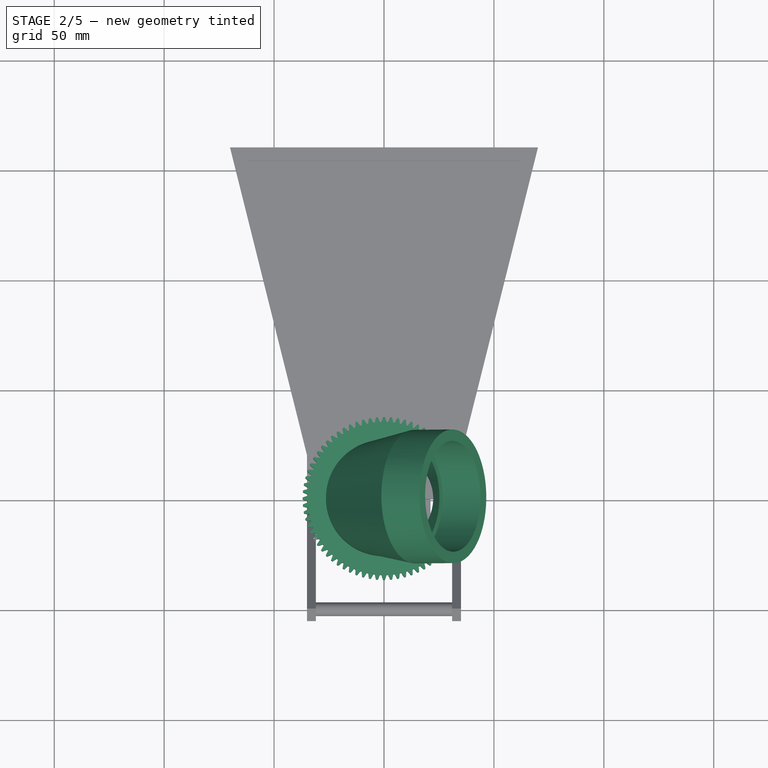
[diagram: stage 2 of 5 — top view after this stage's code; geometry added in this stage tinted green]
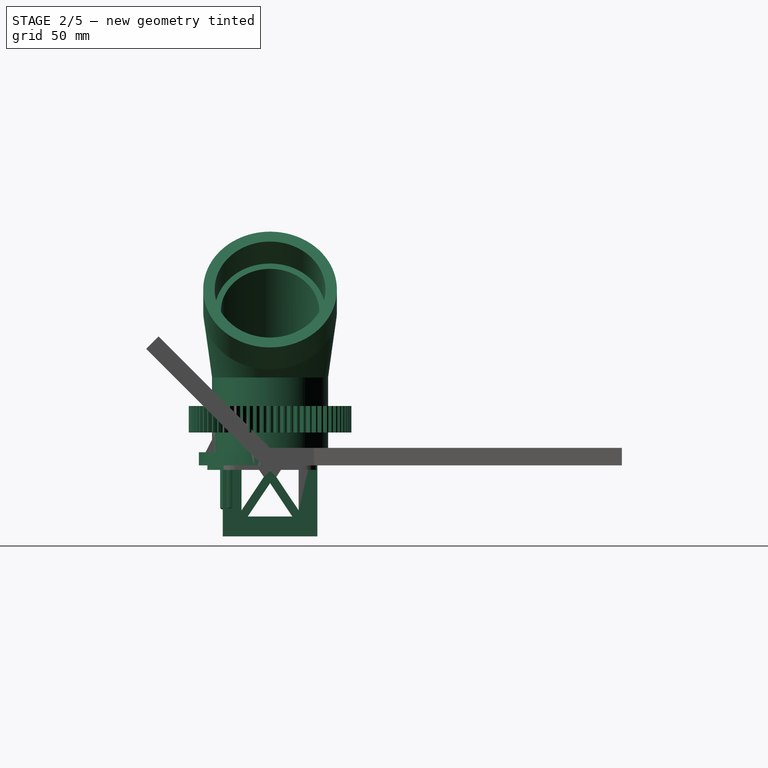
[diagram: stage 2 of 5 — right view after this stage's code; geometry added in this stage tinted green]
FEATURE [PartDesign::Body] Body021  label="Body021: SX17 Mount"
  Group = -> [Sketch093,Pad044,Sketch094,Pad045,Sketch095,Pad046,Sketch096,Pocket014,Fillet005,MultiTransform002,Mirrored003]
  Origin = -> Origin023
  Placement = pos=(34.25,67.5,-70.75) rot=(0,0,1;0rad)
  Tip = -> MultiTransform002
FEATURE [Sketcher::SketchObject] Sketch097
  FullyConstrained = true
  MapMode = 5
  Support = -> [XY_Plane024]
  sketch-geometry (22):
    g0: LineSegment StartX=-21.15 StartY=21.15 StartZ=0 EndX=-21.15 EndY=-21.15 EndZ=0
    g1: LineSegment StartX=-21.15 StartY=-21.15 StartZ=0 EndX=21.15 EndY=-21.15 EndZ=0
    g2: LineSegment StartX=21.15 StartY=-21.15 StartZ=0 EndX=21.15 EndY=21.15 EndZ=0
    g3: LineSegment StartX=21.15 StartY=21.15 StartZ=0 EndX=-21.15 EndY=21.15 EndZ=0
    g4: GeomPoint X=0 Y=0 Z=0
    g5: Circle CenterX=-15.5 CenterY=15.5 CenterZ=0 NormalX=0 NormalY=0 NormalZ=1 AngleXU=0 Radius=1.7
    g6: Circle CenterX=15.5 CenterY=15.5 CenterZ=0 NormalX=0 NormalY=0 NormalZ=1 AngleXU=0 Radius=1.7
    g7: Circle CenterX=15.5 CenterY=-15.5 CenterZ=0 NormalX=0 NormalY=0 NormalZ=1 AngleXU=0 Radius=1.7
    g8: Circle CenterX=-15.5 CenterY=-15.5 CenterZ=0 NormalX=0 NormalY=0 NormalZ=1 AngleXU=0 Radius=1.7
    g9: LineSegment StartX=-15.5 StartY=15.5 StartZ=0 EndX=15.5 EndY=15.5 EndZ=0
    g10: LineSegment StartX=15.5 StartY=15.5 StartZ=0 EndX=15.5 EndY=-15.5 EndZ=0
    g11: LineSegment StartX=-15.5 StartY=15.5 StartZ=0 EndX=-15.5 EndY=-15.5 EndZ=0
    g12: LineSegment StartX=-15.5 StartY=-15.5 StartZ=0 EndX=15.5 EndY=-15.5 EndZ=0
    g13: ArcOfCircle CenterX=-15.5 CenterY=15.5 CenterZ=0 NormalX=0 NormalY=0 NormalZ=1 AngleXU=0 Radius=5.65 StartAngle=1.5708 EndAngle=3.14159
    g14: ArcOfCircle CenterX=15.5 CenterY=15.5 CenterZ=0 NormalX=0 NormalY=0 NormalZ=1 AngleXU=0 Radius=5.65 StartAngle=1.05579e-07 EndAngle=1.5708
    g15: ArcOfCircle CenterX=15.5 CenterY=-15.5 CenterZ=0 NormalX=0 NormalY=0 NormalZ=1 AngleXU=0 Radius=5.65 StartAngle=4.71239 EndAngle=6.28319
    g16: ArcOfCircle CenterX=-15.5 CenterY=-15.5 CenterZ=0 NormalX=0 NormalY=0 NormalZ=1 AngleXU=0 Radius=5.65 StartAngle=3.14159 EndAngle=4.71239
    g17: LineSegment StartX=-21.15 StartY=15.5 StartZ=0 EndX=-21.15 EndY=-15.5 EndZ=0
    g18: LineSegment StartX=-15.5 StartY=-21.15 StartZ=0 EndX=15.5 EndY=-21.15 EndZ=0
    g19: LineSegment StartX=21.15 StartY=-15.5 StartZ=0 EndX=21.15 EndY=15.5 EndZ=0
    g20: LineSegment StartX=15.5 StartY=21.15 StartZ=0 EndX=-15.5 EndY=21.15 EndZ=0
    g21: Circle CenterX=0 CenterY=0 CenterZ=0 NormalX=0 NormalY=0 NormalZ=1 AngleXU=0 Radius=5
  constraints (54):
    c: Coincident(g0,g1)
    c: Coincident(g1,g2)
    c: Coincident(g2,g3)
    c: Coincident(g3,g0)
    c: Horizontal(g1)
    c: Horizontal(g3)
    c: Vertical(g0)
    c: Vertical(g2)
    c: Symmetric(g1,g0,g4)
    c: Coincident(g4,g-1)
    c: Equal(g6,g5)
    c: Equal(g5,g8)
    c: Equal(g8,g7)
    c: Diameter(g6) = 3.4
    c: Coincident(g9,g5)
    c: Coincident(g9,g6)
    c: Horizontal(g9)
    c: Coincident(g10,g6)
    c: Vertical(g10)
    c: Coincident(g10,g7)
    c: Coincident(g11,g5)
    c: Coincident(g11,g8)
    c: Vertical(g11)
    c: Coincident(g12,g8)
    c: Coincident(g12,g7)
    c: Horizontal(g12)
    c: Equal(g9,g10)
    c: Distance(g10) = 31
    c: DistanceX(g4,g6) = 15.5
    c: DistanceY(g4,g6) = 15.5
    c: Equal(g3,g2)
    c: Distance(g2) = 42.3
    c: Coincident(g13,g5)
    c: PointOnObject(g13,g0)
    c: Coincident(g14,g6)
    c: PointOnObject(g14,g2)
    c: Coincident(g15,g7)
    c: PointOnObject(g15,g1)
    c: Coincident(g16,g8)
    c: PointOnObject(g16,g0)
    c: Tangent(g13,g3) = -1.5708
    c: Tangent(g14,g3) = -1.5708
    c: Tangent(g15,g2) = -1.5708
    c: Tangent(g16,g1) = -1.5708
    c: Coincident(g17,g13)
    c: Coincident(g17,g16)
    c: Coincident(g18,g16)
    c: Coincident(g18,g15)
    c: Coincident(g19,g15)
    c: Coincident(g19,g14)
    c: Coincident(g20,g14)
    c: Coincident(g20,g13)
    c: Coincident(g21,g4)
    c: Diameter(g21) = 10
FEATURE [PartDesign::Pad] Pad047
  Direction = (0,0,1)
  Length = 2
  Length2 = 10
  Profile = -> Sketch097
  ReferenceAxis = -> Sketch097 [N_Axis]
  Reversed = true
  Type = 0
FEATURE [PartDesign::Body] Body022  label="Body022: SX17 Idler link"
  Group = -> [Sketch097,Pad047,Sketch098,Pad048,Sketch099,Pad049,Sketch100,Pad050,Fillet006]
  Origin = -> Origin024
  Placement = pos=(0,67.5,-92.5) rot=(0,0,1;0rad)
  Tip = -> Fillet006
FEATURE [Part::Part2DObjectPython] InvoluteGear003  # Draft 2D object (typed FeaturePython)
  ExternalGear = true
  HighPrecision = true
  Modules = 1
  NumberOfTeeth = 72
  PressureAngle = 20
FEATURE [Sketcher::SketchObject] Sketch101
  FullyConstrained = true
  MapMode = 5
  Support = -> [XY_Plane025]
  sketch-geometry (3):
    g0: Circle CenterX=0 CenterY=0 CenterZ=0 NormalX=0 NormalY=0 NormalZ=1 AngleXU=0 Radius=26.4
    g1: Circle CenterX=0 CenterY=0 CenterZ=0 NormalX=0 NormalY=0 NormalZ=1 AngleXU=0 Radius=22.4
    g2: LineSegment StartX=22.4 StartY=0 StartZ=0 EndX=26.4 EndY=0 EndZ=0
  constraints (8):
    c: Coincident(g0,g-1)
    c: Coincident(g1,g0)
    c: PointOnObject(g2,g1)
    c: PointOnObject(g2,g0)
    c: Horizontal(g2)
    c: Distance(g2) = 4
    c: PointOnObject(g2,g-1)
    c: Diameter(g1) = 44.8
FEATURE [Sketcher::SketchObject] Sketch102  label="Sketch copy002"
  AttachmentOffset = pos=(0,0,40) rot=(0,0,1;0rad)
  FullyConstrained = true
  MapMode = 5
  Placement = pos=(0,0,40) rot=(0,0,1;0rad)
  Support = -> [XY_Plane025]
  sketch-geometry (3):
    g0: Circle CenterX=0 CenterY=0 CenterZ=0 NormalX=0 NormalY=0 NormalZ=1 AngleXU=0 Radius=26.4
    g1: Circle CenterX=0 CenterY=0 CenterZ=0 NormalX=0 NormalY=0 NormalZ=1 AngleXU=0 Radius=22.4
    g2: LineSegment StartX=22.4 StartY=0 StartZ=0 EndX=26.4 EndY=0 EndZ=0
  constraints (8):
    c: Coincident(g0,g-1)
    c: Coincident(g1,g0)
    c: PointOnObject(g2,g1)
    c: PointOnObject(g2,g0)
    c: Horizontal(g2)
    c: Distance(g2) = 4
    c: PointOnObject(g2,g-1)
    c: Diameter(g1) = 44.8
FEATURE [PartDesign::AdditiveLoft] AdditiveLoft005
  Closed = false
  Profile = -> Sketch101
  Ruled = false
  Sections = -> [Sketch102]
FEATURE [Sketcher::SketchObject] Sketch103  label="Sketch copy 004"
  AttachmentOffset = pos=(14,0,30) rot=(0,1,0;1.0472rad)
  FullyConstrained = true
  MapMode = 5
  Placement = pos=(14,0,70) rot=(0,1,0;1.0472rad)
  Support = -> [AdditiveLoft005]
  sketch-geometry (3):
    g0: Circle CenterX=0 CenterY=0 CenterZ=0 NormalX=0 NormalY=0 NormalZ=1 AngleXU=0 Radius=30.4
    g1: Circle CenterX=0 CenterY=0 CenterZ=0 NormalX=0 NormalY=0 NormalZ=1 AngleXU=0 Radius=22.4
    g2: LineSegment StartX=22.4 StartY=0 StartZ=0 EndX=30.4 EndY=0 EndZ=0
  constraints (8):
    c: Coincident(g0,g-1)
    c: Coincident(g1,g0)
    c: PointOnObject(g2,g1)
    c: PointOnObject(g2,g0)
    c: Horizontal(g2)
    c: Distance(g2) = 8
    c: PointOnObject(g2,g-1)
    c: Diameter(g1) = 44.8
FEATURE [PartDesign::AdditiveLoft] AdditiveLoft006
  BaseFeature = -> AdditiveLoft005
  Closed = false
  Profile = -> AdditiveLoft005 [Face3]
  Ruled = false
  Sections = -> [Sketch103]
FEATURE [PartDesign::Plane] DatumPlane002
  Length = 95.4518
  MapMode = 11
  Placement = pos=(14,0,70) rot=(0.447214,0.447214,0.774597;1.82348rad)
  ResizeMode = 0
  Support = -> [AdditiveLoft006]
  Width = 176.923
FEATURE [Sketcher::SketchObject] Sketch104
  FullyConstrained = true
  MapMode = 5
  Placement = pos=(14,0,70) rot=(0.447214,0.447214,0.774597;1.82348rad)
  Support = -> [DatumPlane002]
  sketch-geometry (2):
    g0: Circle CenterX=0 CenterY=0 CenterZ=0 NormalX=0 NormalY=0 NormalZ=1 AngleXU=0 Radius=25.2
    g1: Circle CenterX=0 CenterY=0 CenterZ=0 NormalX=0 NormalY=0 NormalZ=1 AngleXU=0 Radius=30.4
  constraints (4):
    c: Coincident(g0,g-1)
    c: Diameter(g0) = 50.4
    c: Coincident(g1,g0)
    c: Diameter(g1) = 60.8
FEATURE [PartDesign::Pad] Pad051
  BaseFeature = -> AdditiveLoft006
  Direction = (0.866025,0,0.5)
  Length = 20
  Length2 = 10
  Profile = -> Sketch104
  ReferenceAxis = -> Sketch104 [N_Axis]
  Type = 0
FEATURE [Sketcher::SketchObject] Sketch105
  FullyConstrained = true
  MapMode = 5
  Placement = pos=(0,0,0) rot=(0.57735,0.57735,0.57735;2.0944rad)
  Support = -> [YZ_Plane025]
  sketch-geometry (5):
    g0: LineSegment StartX=26.4 StartY=0 StartZ=0 EndX=0 EndY=0 EndZ=0
    g1: LineSegment StartX=26.4 StartY=0 StartZ=0 EndX=32.4 EndY=0 EndZ=0
    g2: LineSegment StartX=32.4 StartY=0 StartZ=0 EndX=32.4 EndY=6 EndZ=0
    g3: LineSegment StartX=26.4 StartY=0 StartZ=0 EndX=26.4 EndY=6 EndZ=0
    g4: LineSegment StartX=26.4 StartY=6 StartZ=0 EndX=32.4 EndY=6 EndZ=0
  constraints (14):
    c: PointOnObject(g0,g-1)
    c: Coincident(g0,g-1)
    c: Distance(g0) = 26.4
    c: Coincident(g1,g0)
    c: PointOnObject(g1,g-1)
    c: Distance(g1) = 6
    c: Coincident(g2,g1)
    c: Vertical(g2)
    c: Distance(g2) = 6
    c: Coincident(g3,g1)
    c: Vertical(g3)
    c: Coincident(g4,g3)
    c: Coincident(g4,g2)
    c: Horizontal(g4)
FEATURE [PartDesign::Revolution] Revolution009
  Angle = 360
  Axis = (-2e-16,3e-16,1)
  Base = (0,0,0)
  BaseFeature = -> Pad051
  Profile = -> Sketch105
  ReferenceAxis = -> Sketch105 [V_Axis]
  Reversed = true
FEATURE [Sketcher::SketchObject] Sketch106
  AttachmentOffset = pos=(0,0,15) rot=(0,0,1;0rad)
  FullyConstrained = false
  MapMode = 5
  Placement = pos=(0,0,15) rot=(0,0,1;0rad)
  Support = -> [XY_Plane025]
  sketch-geometry (576):
    g0: BSplineCurve PolesCount=4 KnotsCount=2 Degree=3 IsPeriodic=0
    g1: BSplineCurve PolesCount=4 KnotsCount=2 Degree=3 IsPeriodic=0
    g2: ArcOfCircle CenterX=-0.000114178 CenterY=0 CenterZ=0 NormalX=0 NormalY=0 NormalZ=1 AngleXU=3.13086 Radius=37 StartAngle=0 EndAngle=0.021469
    g3: BSplineCurve PolesCount=4 KnotsCount=2 Degree=3 IsPeriodic=0
    g4: BSplineCurve PolesCount=4 KnotsCount=2 Degree=3 IsPeriodic=0
    g5: ArcOfCircle CenterX=-35.0952 CenterY=-1.43374 CenterZ=0 NormalX=0 NormalY=0 NormalZ=1 AngleXU=1.26835 Radius=0.375 StartAngle=5.0013 EndAngle=6.28319
    g6: ArcOfCircle CenterX=4.30505e-09 CenterY=1.88071e-10 CenterZ=0 NormalX=0 NormalY=0 NormalZ=1 AngleXU=-3.10018 Radius=34.75 StartAngle=0 EndAngle=0.00443302
    g7: ArcOfCircle CenterX=-35.0866 CenterY=-1.63046 CenterZ=0 NormalX=0 NormalY=0 NormalZ=1 AngleXU=0.100808 Radius=0.375 StartAngle=5.00131 EndAngle=6.28319
    g8: BSplineCurve PolesCount=4 KnotsCount=2 Degree=3 IsPeriodic=0
    g9: BSplineCurve PolesCount=4 KnotsCount=2 Degree=3 IsPeriodic=0
    g10: ArcOfCircle CenterX=-0.000113744 CenterY=-9.9513e-06 CenterZ=0 NormalX=0 NormalY=0 NormalZ=1 AngleXU=-3.06506 Radius=37 StartAngle=0 EndAngle=0.021469
    g11: BSplineCurve PolesCount=4 KnotsCount=2 Degree=3 IsPeriodic=0
    g12: BSplineCurve PolesCount=4 KnotsCount=2 Degree=3 IsPeriodic=0
    g13: ArcOfCircle CenterX=-34.8367 CenterY=-4.48703 CenterZ=0 NormalX=0 NormalY=0 NormalZ=1 AngleXU=1.35561 Radius=0.375 StartAngle=5.0013 EndAngle=6.28319
    g14: ArcOfCircle CenterX=1.41303e-09 CenterY=1.88783e-10 CenterZ=0 NormalX=0 NormalY=0 NormalZ=1 AngleXU=-3.01291 Radius=34.75 StartAngle=0 EndAngle=0.00443302
    g15: ArcOfCircle CenterX=-34.811 CenterY=-4.68225 CenterZ=0 NormalX=0 NormalY=0 NormalZ=1 AngleXU=0.188075 Radius=0.375 StartAngle=5.00131 EndAngle=6.28319
    g16: BSplineCurve PolesCount=4 KnotsCount=2 Degree=3 IsPeriodic=0
    g17: BSplineCurve PolesCount=4 KnotsCount=2 Degree=3 IsPeriodic=0
    g18: ArcOfCircle CenterX=-0.000112444 CenterY=-1.98269e-05 CenterZ=0 NormalX=0 NormalY=0 NormalZ=1 AngleXU=-2.97779 Radius=37 StartAngle=0 EndAngle=0.021469
    g19: BSplineCurve PolesCount=4 KnotsCount=2 Degree=3 IsPeriodic=0
    g20: BSplineCurve PolesCount=4 KnotsCount=2 Degree=3 IsPeriodic=0
    g21: ArcOfCircle CenterX=-34.313 CenterY=-7.50617 CenterZ=0 NormalX=0 NormalY=0 NormalZ=1 AngleXU=1.44288 Radius=0.375 StartAngle=5.0013 EndAngle=6.28319
    g22: ArcOfCircle CenterX=3.80888e-09 CenterY=8.43392e-10 CenterZ=0 NormalX=0 NormalY=0 NormalZ=1 AngleXU=-2.92564 Radius=34.75 StartAngle=0 EndAngle=0.00443302
    g23: ArcOfCircle CenterX=-34.2704 CenterY=-7.69841 CenterZ=0 NormalX=0 NormalY=0 NormalZ=1 AngleXU=0.275341 Radius=0.375 StartAngle=5.00131 EndAngle=6.28319
    g24: BSplineCurve PolesCount=4 KnotsCount=2 Degree=3 IsPeriodic=0
    g25: BSplineCurve PolesCount=4 KnotsCount=2 Degree=3 IsPeriodic=0
    g26: ArcOfCircle CenterX=-0.000110288 CenterY=-2.95515e-05 CenterZ=0 NormalX=0 NormalY=0 NormalZ=1 AngleXU=-2.89053 Radius=37 StartAngle=0 EndAngle=0.021469
    g27: BSplineCurve PolesCount=4 KnotsCount=2 Degree=3 IsPeriodic=0
    g28: BSplineCurve PolesCount=4 KnotsCount=2 Degree=3 IsPeriodic=0
    g29: ArcOfCircle CenterX=-33.5282 CenterY=-10.4682 CenterZ=0 NormalX=0 NormalY=0 NormalZ=1 AngleXU=1.53014 Radius=0.375 StartAngle=5.0013 EndAngle=6.28319
    g30: ArcOfCircle CenterX=1.80824e-09 CenterY=5.71028e-10 CenterZ=0 NormalX=0 NormalY=0 NormalZ=1 AngleXU=-2.83838 Radius=34.75 StartAngle=0 EndAngle=0.00443302
    g31: ArcOfCircle CenterX=-33.469 CenterY=-10.656 CenterZ=0 NormalX=0 NormalY=0 NormalZ=1 AngleXU=0.362608 Radius=0.375 StartAngle=5.00131 EndAngle=6.28319
    g32: BSplineCurve PolesCount=4 KnotsCount=2 Degree=3 IsPeriodic=0
    g33: BSplineCurve PolesCount=4 KnotsCount=2 Degree=3 IsPeriodic=0
    g34: ArcOfCircle CenterX=-0.000107293 CenterY=-3.90514e-05 CenterZ=0 NormalX=0 NormalY=0 NormalZ=1 AngleXU=-2.80326 Radius=37 StartAngle=0 EndAngle=0.021469
    g35: BSplineCurve PolesCount=4 KnotsCount=2 Degree=3 IsPeriodic=0
    g36: BSplineCurve PolesCount=4 KnotsCount=2 Degree=3 IsPeriodic=0
    g37: ArcOfCircle CenterX=-32.4883 CenterY=-13.3505 CenterZ=0 NormalX=0 NormalY=0 NormalZ=1 AngleXU=1.61741 Radius=0.375 StartAngle=5.0013 EndAngle=6.28319
    g38: ArcOfCircle CenterX=-7.54923e-10 CenterY=-3.12208e-10 CenterZ=0 NormalX=0 NormalY=0 NormalZ=1 AngleXU=-2.75111 Radius=34.75 StartAngle=0 EndAngle=0.00443302
    g39: ArcOfCircle CenterX=-32.4129 CenterY=-13.5324 CenterZ=0 NormalX=0 NormalY=0 NormalZ=1 AngleXU=0.449874 Radius=0.375 StartAngle=5.00131 EndAngle=6.28319
    g40: BSplineCurve PolesCount=4 KnotsCount=2 Degree=3 IsPeriodic=0
    g41: BSplineCurve PolesCount=4 KnotsCount=2 Degree=3 IsPeriodic=0
    g42: ArcOfCircle CenterX=-0.000103481 CenterY=-4.82539e-05 CenterZ=0 NormalX=0 NormalY=0 NormalZ=1 AngleXU=-2.71599 Radius=37 StartAngle=0 EndAngle=0.021469
    g43: BSplineCurve PolesCount=4 KnotsCount=2 Degree=3 IsPeriodic=0
    g44: BSplineCurve PolesCount=4 KnotsCount=2 Degree=3 IsPeriodic=0
    g45: ArcOfCircle CenterX=-31.2011 CenterY=-16.1313 CenterZ=0 NormalX=0 NormalY=0 NormalZ=1 AngleXU=1.70468 Radius=0.375 StartAngle=5.0013 EndAngle=6.28319
    g46: ArcOfCircle CenterX=2.26632e-09 CenterY=1.18009e-09 CenterZ=0 NormalX=0 NormalY=0 NormalZ=1 AngleXU=-2.66384 Radius=34.75 StartAngle=0 EndAngle=0.00443302
    g47: ArcOfCircle CenterX=-31.1102 CenterY=-16.3059 CenterZ=0 NormalX=0 NormalY=0 NormalZ=1 AngleXU=0.53714 Radius=0.375 StartAngle=5.00131 EndAngle=6.28319
    g48: BSplineCurve PolesCount=4 KnotsCount=2 Degree=3 IsPeriodic=0
    g49: BSplineCurve PolesCount=4 KnotsCount=2 Degree=3 IsPeriodic=0
    g50: ArcOfCircle CenterX=-9.88813e-05 CenterY=-5.70891e-05 CenterZ=0 NormalX=0 NormalY=0 NormalZ=1 AngleXU=-2.62873 Radius=37 StartAngle=0 EndAngle=0.021469
    g51: BSplineCurve PolesCount=4 KnotsCount=2 Degree=3 IsPeriodic=0
    g52: BSplineCurve PolesCount=4 KnotsCount=2 Degree=3 IsPeriodic=0
    g53: ArcOfCircle CenterX=-29.6764 CenterY=-18.7892 CenterZ=0 NormalX=0 NormalY=0 NormalZ=1 AngleXU=1.79194 Radius=0.375 StartAngle=5.0013 EndAngle=6.28319
    g54: ArcOfCircle CenterX=2.24794e-09 CenterY=1.432e-09 CenterZ=0 NormalX=0 NormalY=0 NormalZ=1 AngleXU=-2.57658 Radius=34.75 StartAngle=0 EndAngle=0.00443302
    g55: ArcOfCircle CenterX=-29.5706 CenterY=-18.9553 CenterZ=0 NormalX=0 NormalY=0 NormalZ=1 AngleXU=0.624407 Radius=0.375 StartAngle=5.00131 EndAngle=6.28319
    g56: BSplineCurve PolesCount=4 KnotsCount=2 Degree=3 IsPeriodic=0
    g57: BSplineCurve PolesCount=4 KnotsCount=2 Degree=3 IsPeriodic=0
    g58: ArcOfCircle CenterX=-9.35294e-05 CenterY=-6.549e-05 CenterZ=0 NormalX=0 NormalY=0 NormalZ=1 AngleXU=-2.54146 Radius=37 StartAngle=0 EndAngle=0.021469
    g59: BSplineCurve PolesCount=4 KnotsCount=2 Degree=3 IsPeriodic=0
    g60: BSplineCurve PolesCount=4 KnotsCount=2 Degree=3 IsPeriodic=0
    g61: ArcOfCircle CenterX=-27.9259 CenterY=-21.3042 CenterZ=0 NormalX=0 NormalY=0 NormalZ=1 AngleXU=1.87921 Radius=0.375 StartAngle=5.0013 EndAngle=6.28319
    g62: ArcOfCircle CenterX=2.11743e-10 CenterY=1.62791e-10 CenterZ=0 NormalX=0 NormalY=0 NormalZ=1 AngleXU=-2.48931 Radius=34.75 StartAngle=0 EndAngle=0.00443302
    g63: ArcOfCircle CenterX=-27.806 CenterY=-21.4604 CenterZ=0 NormalX=0 NormalY=0 NormalZ=1 AngleXU=0.711673 Radius=0.375 StartAngle=5.00131 EndAngle=6.28319
    g64: BSplineCurve PolesCount=4 KnotsCount=2 Degree=3 IsPeriodic=0
    g65: BSplineCurve PolesCount=4 KnotsCount=2 Degree=3 IsPeriodic=0
    g66: ArcOfCircle CenterX=-8.74659e-05 CenterY=-7.33926e-05 CenterZ=0 NormalX=0 NormalY=0 NormalZ=1 AngleXU=-2.4542 Radius=37 StartAngle=0 EndAngle=0.021469
    g67: BSplineCurve PolesCount=4 KnotsCount=2 Degree=3 IsPeriodic=0
    g68: BSplineCurve PolesCount=4 KnotsCount=2 Degree=3 IsPeriodic=0
    g69: ArcOfCircle CenterX=-25.9629 CenterY=-23.657 CenterZ=0 NormalX=0 NormalY=0 NormalZ=1 AngleXU=1.96648 Radius=0.375 StartAngle=5.0013 EndAngle=6.28319
    g70: ArcOfCircle CenterX=4.45511e-09 CenterY=4.08397e-09 CenterZ=0 NormalX=0 NormalY=0 NormalZ=1 AngleXU=-2.40204 Radius=34.75 StartAngle=0 EndAngle=0.00443302
    g71: ArcOfCircle CenterX=-25.8298 CenterY=-23.8022 CenterZ=0 NormalX=0 NormalY=0 NormalZ=1 AngleXU=0.79894 Radius=0.375 StartAngle=5.00131 EndAngle=6.28319
    g72: BSplineCurve PolesCount=4 KnotsCount=2 Degree=3 IsPeriodic=0
    g73: BSplineCurve PolesCount=4 KnotsCount=2 Degree=3 IsPeriodic=0
    g74: ArcOfCircle CenterX=-8.07364e-05 CenterY=-8.07364e-05 CenterZ=0 NormalX=0 NormalY=0 NormalZ=1 AngleXU=-2.36693 Radius=37 StartAngle=0 EndAngle=0.021469
    g75: BSplineCurve PolesCount=4 KnotsCount=2 Degree=3 IsPeriodic=0
    g76: BSplineCurve PolesCount=4 KnotsCount=2 Degree=3 IsPeriodic=0
    g77: ArcOfCircle CenterX=-23.8022 CenterY=-25.8298 CenterZ=0 NormalX=0 NormalY=0 NormalZ=1 AngleXU=2.05374 Radius=0.375 StartAngle=5.0013 EndAngle=6.28319
    g78: ArcOfCircle CenterX=3.3341e-09 CenterY=3.63844e-09 CenterZ=0 NormalX=0 NormalY=0 NormalZ=1 AngleXU=-2.31478 Radius=34.75 StartAngle=0 EndAngle=0.00443302
    g79: ArcOfCircle CenterX=-23.657 CenterY=-25.9629 CenterZ=0 NormalX=0 NormalY=0 NormalZ=1 AngleXU=0.886206 Radius=0.375 StartAngle=5.00131 EndAngle=6.28319
    g80: BSplineCurve PolesCount=4 KnotsCount=2 Degree=3 IsPeriodic=0
    g81: BSplineCurve PolesCount=4 KnotsCount=2 Degree=3 IsPeriodic=0
    g82: ArcOfCircle CenterX=-7.33924e-05 CenterY=-8.74657e-05 CenterZ=0 NormalX=0 NormalY=0 NormalZ=1 AngleXU=-2.27966 Radius=37 StartAngle=0 EndAngle=0.021469
    g83: BSplineCurve PolesCount=4 KnotsCount=2 Degree=3 IsPeriodic=0
    g84: BSplineCurve PolesCount=4 KnotsCount=2 Degree=3 IsPeriodic=0
    g85: ArcOfCircle CenterX=-21.4604 CenterY=-27.806 CenterZ=0 NormalX=0 NormalY=0 NormalZ=1 AngleXU=2.14101 Radius=0.375 StartAngle=5.0013 EndAngle=6.28319
    g86: ArcOfCircle CenterX=-5.06539e-10 CenterY=-6.59728e-10 CenterZ=0 NormalX=0 NormalY=0 NormalZ=1 AngleXU=-2.22751 Radius=34.75 StartAngle=0 EndAngle=0.00443302
    g87: ArcOfCircle CenterX=-21.3042 CenterY=-27.9259 CenterZ=0 NormalX=0 NormalY=0 NormalZ=1 AngleXU=0.973473 Radius=0.375 StartAngle=5.00131 EndAngle=6.28319
    g88: BSplineCurve PolesCount=4 KnotsCount=2 Degree=3 IsPeriodic=0
    g89: BSplineCurve PolesCount=4 KnotsCount=2 Degree=3 IsPeriodic=0
    g90: ArcOfCircle CenterX=-6.549e-05 CenterY=-9.35293e-05 CenterZ=0 NormalX=0 NormalY=0 NormalZ=1 AngleXU=-2.1924 Radius=37 StartAngle=0 EndAngle=0.021469
    g91: BSplineCurve PolesCount=4 KnotsCount=2 Degree=3 IsPeriodic=0
    g92: BSplineCurve PolesCount=4 KnotsCount=2 Degree=3 IsPeriodic=0
    g93: ArcOfCircle CenterX=-18.9553 CenterY=-29.5706 CenterZ=0 NormalX=0 NormalY=0 NormalZ=1 AngleXU=2.22828 Radius=0.375 StartAngle=5.0013 EndAngle=6.28319
    g94: ArcOfCircle CenterX=-3.34866e-10 CenterY=-5.25029e-10 CenterZ=0 NormalX=0 NormalY=0 NormalZ=1 AngleXU=-2.14024 Radius=34.75 StartAngle=0 EndAngle=0.00443302
    g95: ArcOfCircle CenterX=-18.7892 CenterY=-29.6764 CenterZ=0 NormalX=0 NormalY=0 NormalZ=1 AngleXU=1.06074 Radius=0.375 StartAngle=5.00131 EndAngle=6.28319
    g96: BSplineCurve PolesCount=4 KnotsCount=2 Degree=3 IsPeriodic=0
    g97: BSplineCurve PolesCount=4 KnotsCount=2 Degree=3 IsPeriodic=0
    g98: ArcOfCircle CenterX=-5.70891e-05 CenterY=-9.88813e-05 CenterZ=0 NormalX=0 NormalY=0 NormalZ=1 AngleXU=-2.10513 Radius=37 StartAngle=0 EndAngle=0.021469
    g99: BSplineCurve PolesCount=4 KnotsCount=2 Degree=3 IsPeriodic=0
    g100: BSplineCurve PolesCount=4 KnotsCount=2 Degree=3 IsPeriodic=0
    g101: ArcOfCircle CenterX=-16.3059 CenterY=-31.1102 CenterZ=0 NormalX=0 NormalY=0 NormalZ=1 AngleXU=2.31554 Radius=0.375 StartAngle=5.0013 EndAngle=6.28319
    g102: ArcOfCircle CenterX=2.32665e-10 CenterY=4.47486e-10 CenterZ=0 NormalX=0 NormalY=0 NormalZ=1 AngleXU=-2.05298 Radius=34.75 StartAngle=0 EndAngle=0.00443302
    g103: ArcOfCircle CenterX=-16.1313 CenterY=-31.2011 CenterZ=0 NormalX=0 NormalY=0 NormalZ=1 AngleXU=1.14801 Radius=0.375 StartAngle=5.00131 EndAngle=6.28319
    g104: BSplineCurve PolesCount=4 KnotsCount=2 Degree=3 IsPeriodic=0
    g105: BSplineCurve PolesCount=4 KnotsCount=2 Degree=3 IsPeriodic=0
    g106: ArcOfCircle CenterX=-4.82538e-05 CenterY=-0.000103481 CenterZ=0 NormalX=0 NormalY=0 NormalZ=1 AngleXU=-2.01786 Radius=37 StartAngle=0 EndAngle=0.021469
    g107: BSplineCurve PolesCount=4 KnotsCount=2 Degree=3 IsPeriodic=0
    g108: BSplineCurve PolesCount=4 KnotsCount=2 Degree=3 IsPeriodic=0
    g109: ArcOfCircle CenterX=-13.5324 CenterY=-32.4129 CenterZ=0 NormalX=0 NormalY=0 NormalZ=1 AngleXU=2.40281 Radius=0.375 StartAngle=5.0013 EndAngle=6.28319
    g110: ArcOfCircle CenterX=1.65845e-10 CenterY=4.03073e-10 CenterZ=0 NormalX=0 NormalY=0 NormalZ=1 AngleXU=-1.96571 Radius=34.75 StartAngle=0 EndAngle=0.00443302
    g111: ArcOfCircle CenterX=-13.3505 CenterY=-32.4883 CenterZ=0 NormalX=0 NormalY=0 NormalZ=1 AngleXU=1.23527 Radius=0.375 StartAngle=5.00131 EndAngle=6.28319
    g112: BSplineCurve PolesCount=4 KnotsCount=2 Degree=3 IsPeriodic=0
    g113: BSplineCurve PolesCount=4 KnotsCount=2 Degree=3 IsPeriodic=0
    g114: ArcOfCircle CenterX=-3.90514e-05 CenterY=-0.000107293 CenterZ=0 NormalX=0 NormalY=0 NormalZ=1 AngleXU=-1.9306 Radius=37 StartAngle=0 EndAngle=0.021469
    g115: BSplineCurve PolesCount=4 KnotsCount=2 Degree=3 IsPeriodic=0
    g116: BSplineCurve PolesCount=4 KnotsCount=2 Degree=3 IsPeriodic=0
    g117: ArcOfCircle CenterX=-10.656 CenterY=-33.469 CenterZ=0 NormalX=0 NormalY=0 NormalZ=1 AngleXU=2.49008 Radius=0.375 StartAngle=5.0013 EndAngle=6.28319
    g118: ArcOfCircle CenterX=-3.67348e-10 CenterY=-1.16281e-09 CenterZ=0 NormalX=0 NormalY=0 NormalZ=1 AngleXU=-1.87845 Radius=34.75 StartAngle=0 EndAngle=0.00443302
    g119: ArcOfCircle CenterX=-10.4682 CenterY=-33.5282 CenterZ=0 NormalX=0 NormalY=0 NormalZ=1 AngleXU=1.32254 Radius=0.375 StartAngle=5.00131 EndAngle=6.28319
    g120: BSplineCurve PolesCount=4 KnotsCount=2 Degree=3 IsPeriodic=0
    g121: BSplineCurve PolesCount=4 KnotsCount=2 Degree=3 IsPeriodic=0
    g122: ArcOfCircle CenterX=-2.95515e-05 CenterY=-0.000110288 CenterZ=0 NormalX=0 NormalY=0 NormalZ=1 AngleXU=-1.84333 Radius=37 StartAngle=0 EndAngle=0.021469
    g123: BSplineCurve PolesCount=4 KnotsCount=2 Degree=3 IsPeriodic=0
    g124: BSplineCurve PolesCount=4 KnotsCount=2 Degree=3 IsPeriodic=0
    g125: ArcOfCircle CenterX=-7.69841 CenterY=-34.2704 CenterZ=0 NormalX=0 NormalY=0 NormalZ=1 AngleXU=2.57734 Radius=0.375 StartAngle=5.0013 EndAngle=6.28319
    g126: ArcOfCircle CenterX=5.04682e-10 CenterY=2.27383e-09 CenterZ=0 NormalX=0 NormalY=0 NormalZ=1 AngleXU=-1.79118 Radius=34.75 StartAngle=0 EndAngle=0.00443302
    g127: ArcOfCircle CenterX=-7.50617 CenterY=-34.313 CenterZ=0 NormalX=0 NormalY=0 NormalZ=1 AngleXU=1.40981 Radius=0.375 StartAngle=5.00131 EndAngle=6.28319
    g128: BSplineCurve PolesCount=4 KnotsCount=2 Degree=3 IsPeriodic=0
    g129: BSplineCurve PolesCount=4 KnotsCount=2 Degree=3 IsPeriodic=0
    g130: ArcOfCircle CenterX=-1.98269e-05 CenterY=-0.000112444 CenterZ=0 NormalX=0 NormalY=0 NormalZ=1 AngleXU=-1.75606 Radius=37 StartAngle=0 EndAngle=0.021469
    g131: BSplineCurve PolesCount=4 KnotsCount=2 Degree=3 IsPeriodic=0
    g132: BSplineCurve PolesCount=4 KnotsCount=2 Degree=3 IsPeriodic=0
    g133: ArcOfCircle CenterX=-4.68225 CenterY=-34.811 CenterZ=0 NormalX=0 NormalY=0 NormalZ=1 AngleXU=2.66461 Radius=0.375 StartAngle=5.0013 EndAngle=6.28319
    g134: ArcOfCircle CenterX=2.11263e-10 CenterY=1.59599e-09 CenterZ=0 NormalX=0 NormalY=0 NormalZ=1 AngleXU=-1.70391 Radius=34.75 StartAngle=0 EndAngle=0.00443302
    g135: ArcOfCircle CenterX=-4.48703 CenterY=-34.8367 CenterZ=0 NormalX=0 NormalY=0 NormalZ=1 AngleXU=1.49707 Radius=0.375 StartAngle=5.00131 EndAngle=6.28319
    g136: BSplineCurve PolesCount=4 KnotsCount=2 Degree=3 IsPeriodic=0
    g137: BSplineCurve PolesCount=4 KnotsCount=2 Degree=3 IsPeriodic=0
    g138: ArcOfCircle CenterX=-9.9513e-06 CenterY=-0.000113744 CenterZ=0 NormalX=0 NormalY=0 NormalZ=1 AngleXU=-1.6688 Radius=37 StartAngle=0 EndAngle=0.021469
    g139: BSplineCurve PolesCount=4 KnotsCount=2 Degree=3 IsPeriodic=0
    g140: BSplineCurve PolesCount=4 KnotsCount=2 Degree=3 IsPeriodic=0
    g141: ArcOfCircle CenterX=-1.63046 CenterY=-35.0866 CenterZ=0 NormalX=0 NormalY=0 NormalZ=1 AngleXU=2.75188 Radius=0.375 StartAngle=5.0013 EndAngle=6.28319
    g142: ArcOfCircle CenterX=1.88415e-10 CenterY=4.31308e-09 CenterZ=0 NormalX=0 NormalY=0 NormalZ=1 AngleXU=-1.61665 Radius=34.75 StartAngle=0 EndAngle=0.00443302
    g143: ArcOfCircle CenterX=-1.43374 CenterY=-35.0952 CenterZ=0 NormalX=0 NormalY=0 NormalZ=1 AngleXU=1.58434 Radius=0.375 StartAngle=5.00131 EndAngle=6.28319
    g144: BSplineCurve PolesCount=4 KnotsCount=2 Degree=3 IsPeriodic=0
    g145: BSplineCurve PolesCount=4 KnotsCount=2 Degree=3 IsPeriodic=0
    g146: ArcOfCircle CenterX=-2.3e-15 CenterY=-0.000114178 CenterZ=0 NormalX=0 NormalY=0 NormalZ=1 AngleXU=-1.58153 Radius=37 StartAngle=0 EndAngle=0.021469
    g147: BSplineCurve PolesCount=4 KnotsCount=2 Degree=3 IsPeriodic=0
    g148: BSplineCurve PolesCount=4 KnotsCount=2 Degree=3 IsPeriodic=0
    g149: ArcOfCircle CenterX=1.43374 CenterY=-35.0952 CenterZ=0 NormalX=0 NormalY=0 NormalZ=1 AngleXU=2.83914 Radius=0.375 StartAngle=5.0013 EndAngle=6.28319
    g150: ArcOfCircle CenterX=-1.88073e-10 CenterY=4.30505e-09 CenterZ=0 NormalX=0 NormalY=0 NormalZ=1 AngleXU=-1.52938 Radius=34.75 StartAngle=0 EndAngle=0.00443302
    g151: ArcOfCircle CenterX=1.63046 CenterY=-35.0866 CenterZ=0 NormalX=0 NormalY=0 NormalZ=1 AngleXU=1.6716 Radius=0.375 StartAngle=5.00131 EndAngle=6.28319
    g152: BSplineCurve PolesCount=4 KnotsCount=2 Degree=3 IsPeriodic=0
    g153: BSplineCurve PolesCount=4 KnotsCount=2 Degree=3 IsPeriodic=0
    g154: ArcOfCircle CenterX=9.9513e-06 CenterY=-0.000113744 CenterZ=0 NormalX=0 NormalY=0 NormalZ=1 AngleXU=-1.49426 Radius=37 StartAngle=0 EndAngle=0.021469
    g155: BSplineCurve PolesCount=4 KnotsCount=2 Degree=3 IsPeriodic=0
    g156: BSplineCurve PolesCount=4 KnotsCount=2 Degree=3 IsPeriodic=0
    g157: ArcOfCircle CenterX=4.48703 CenterY=-34.8367 CenterZ=0 NormalX=0 NormalY=0 NormalZ=1 AngleXU=2.92641 Radius=0.375 StartAngle=5.0013 EndAngle=6.28319
    g158: ArcOfCircle CenterX=-1.88788e-10 CenterY=1.41303e-09 CenterZ=0 NormalX=0 NormalY=0 NormalZ=1 AngleXU=-1.44211 Radius=34.75 StartAngle=0 EndAngle=0.00443302
    g159: ArcOfCircle CenterX=4.68225 CenterY=-34.811 CenterZ=0 NormalX=0 NormalY=0 NormalZ=1 AngleXU=1.75887 Radius=0.375 StartAngle=5.00131 EndAngle=6.28319
    g160: BSplineCurve PolesCount=4 KnotsCount=2 Degree=3 IsPeriodic=0
    g161: BSplineCurve PolesCount=4 KnotsCount=2 Degree=3 IsPeriodic=0
    g162: ArcOfCircle CenterX=1.98269e-05 CenterY=-0.000112444 CenterZ=0 NormalX=0 NormalY=0 NormalZ=1 AngleXU=-1.407 Radius=37 StartAngle=0 EndAngle=0.021469
    g163: BSplineCurve PolesCount=4 KnotsCount=2 Degree=3 IsPeriodic=0
    g164: BSplineCurve PolesCount=4 KnotsCount=2 Degree=3 IsPeriodic=0
    g165: ArcOfCircle CenterX=7.50617 CenterY=-34.313 CenterZ=0 NormalX=0 NormalY=0 NormalZ=1 AngleXU=3.01367 Radius=0.375 StartAngle=5.0013 EndAngle=6.28319
    g166: ArcOfCircle CenterX=-8.43393e-10 CenterY=3.80888e-09 CenterZ=0 NormalX=0 NormalY=0 NormalZ=1 AngleXU=-1.35485 Radius=34.75 StartAngle=0 EndAngle=0.00443302
    g167: ArcOfCircle CenterX=7.69841 CenterY=-34.2704 CenterZ=0 NormalX=0 NormalY=0 NormalZ=1 AngleXU=1.84614 Radius=0.375 StartAngle=5.00131 EndAngle=6.28319
    g168: BSplineCurve PolesCount=4 KnotsCount=2 Degree=3 IsPeriodic=0
    g169: BSplineCurve PolesCount=4 KnotsCount=2 Degree=3 IsPeriodic=0
    g170: ArcOfCircle CenterX=2.95515e-05 CenterY=-0.000110288 CenterZ=0 NormalX=0 NormalY=0 NormalZ=1 AngleXU=-1.31973 Radius=37 StartAngle=0 EndAngle=0.021469
    g171: BSplineCurve PolesCount=4 KnotsCount=2 Degree=3 IsPeriodic=0
    g172: BSplineCurve PolesCount=4 KnotsCount=2 Degree=3 IsPeriodic=0
    g173: ArcOfCircle CenterX=10.4682 CenterY=-33.5282 CenterZ=0 NormalX=0 NormalY=0 NormalZ=1 AngleXU=3.10094 Radius=0.375 StartAngle=5.0013 EndAngle=6.28319
    g174: ArcOfCircle CenterX=-5.71031e-10 CenterY=1.80824e-09 CenterZ=0 NormalX=0 NormalY=0 NormalZ=1 AngleXU=-1.26758 Radius=34.75 StartAngle=0 EndAngle=0.00443302
    g175: ArcOfCircle CenterX=10.656 CenterY=-33.469 CenterZ=0 NormalX=0 NormalY=0 NormalZ=1 AngleXU=1.9334 Radius=0.375 StartAngle=5.00131 EndAngle=6.28319
    g176: BSplineCurve PolesCount=4 KnotsCount=2 Degree=3 IsPeriodic=0
    g177: BSplineCurve PolesCount=4 KnotsCount=2 Degree=3 IsPeriodic=0
    g178: ArcOfCircle CenterX=3.90514e-05 CenterY=-0.000107293 CenterZ=0 NormalX=0 NormalY=0 NormalZ=1 AngleXU=-1.23246 Radius=37 StartAngle=0 EndAngle=0.021469
    g179: BSplineCurve PolesCount=4 KnotsCount=2 Degree=3 IsPeriodic=0
    g180: BSplineCurve PolesCount=4 KnotsCount=2 Degree=3 IsPeriodic=0
    g181: ArcOfCircle CenterX=13.3505 CenterY=-32.4883 CenterZ=0 NormalX=0 NormalY=0 NormalZ=1 AngleXU=-3.09498 Radius=0.375 StartAngle=5.0013 EndAngle=6.28319
    g182: ArcOfCircle CenterX=3.12208e-10 CenterY=-7.54923e-10 CenterZ=0 NormalX=0 NormalY=0 NormalZ=1 AngleXU=-1.18031 Radius=34.75 StartAngle=0 EndAngle=0.00443302
    g183: ArcOfCircle CenterX=13.5324 CenterY=-32.4129 CenterZ=0 NormalX=0 NormalY=0 NormalZ=1 AngleXU=2.02067 Radius=0.375 StartAngle=5.00131 EndAngle=6.28319
    g184: BSplineCurve PolesCount=4 KnotsCount=2 Degree=3 IsPeriodic=0
    g185: BSplineCurve PolesCount=4 KnotsCount=2 Degree=3 IsPeriodic=0
    g186: ArcOfCircle CenterX=4.82539e-05 CenterY=-0.000103481 CenterZ=0 NormalX=0 NormalY=0 NormalZ=1 AngleXU=-1.1452 Radius=37 StartAngle=0 EndAngle=0.021469
    g187: BSplineCurve PolesCount=4 KnotsCount=2 Degree=3 IsPeriodic=0
    g188: BSplineCurve PolesCount=4 KnotsCount=2 Degree=3 IsPeriodic=0
    g189: ArcOfCircle CenterX=16.1313 CenterY=-31.2011 CenterZ=0 NormalX=0 NormalY=0 NormalZ=1 AngleXU=-3.00771 Radius=0.375 StartAngle=5.0013 EndAngle=6.28319
    g190: ArcOfCircle CenterX=-5.64446e-10 CenterY=1.08367e-09 CenterZ=0 NormalX=0 NormalY=0 NormalZ=1 AngleXU=-1.09305 Radius=34.75 StartAngle=0 EndAngle=0.00443302
    g191: ArcOfCircle CenterX=16.3059 CenterY=-31.1102 CenterZ=0 NormalX=0 NormalY=0 NormalZ=1 AngleXU=2.10794 Radius=0.375 StartAngle=5.00131 EndAngle=6.28319
    g192: BSplineCurve PolesCount=4 KnotsCount=2 Degree=3 IsPeriodic=0
    g193: BSplineCurve PolesCount=4 KnotsCount=2 Degree=3 IsPeriodic=0
    g194: ArcOfCircle CenterX=5.70891e-05 CenterY=-9.88813e-05 CenterZ=0 NormalX=0 NormalY=0 NormalZ=1 AngleXU=-1.05793 Radius=37 StartAngle=0 EndAngle=0.021469
    g195: BSplineCurve PolesCount=4 KnotsCount=2 Degree=3 IsPeriodic=0
    g196: BSplineCurve PolesCount=4 KnotsCount=2 Degree=3 IsPeriodic=0
    g197: ArcOfCircle CenterX=18.7892 CenterY=-29.6764 CenterZ=0 NormalX=0 NormalY=0 NormalZ=1 AngleXU=-2.92044 Radius=0.375 StartAngle=5.0013 EndAngle=6.28319
    g198: ArcOfCircle CenterX=-1.43049e-09 CenterY=2.24557e-09 CenterZ=0 NormalX=0 NormalY=0 NormalZ=1 AngleXU=-1.00578 Radius=34.75 StartAngle=0 EndAngle=0.00443302
    g199: ArcOfCircle CenterX=18.9553 CenterY=-29.5706 CenterZ=0 NormalX=0 NormalY=0 NormalZ=1 AngleXU=2.1952 Radius=0.375 StartAngle=5.00131 EndAngle=6.28319
    g200: BSplineCurve PolesCount=4 KnotsCount=2 Degree=3 IsPeriodic=0
    g201: BSplineCurve PolesCount=4 KnotsCount=2 Degree=3 IsPeriodic=0
    g202: ArcOfCircle CenterX=6.549e-05 CenterY=-9.35294e-05 CenterZ=0 NormalX=0 NormalY=0 NormalZ=1 AngleXU=-0.970666 Radius=37 StartAngle=0 EndAngle=0.021469
    g203: BSplineCurve PolesCount=4 KnotsCount=2 Degree=3 IsPeriodic=0
    g204: BSplineCurve PolesCount=4 KnotsCount=2 Degree=3 IsPeriodic=0
    g205: ArcOfCircle CenterX=21.3042 CenterY=-27.9259 CenterZ=0 NormalX=0 NormalY=0 NormalZ=1 AngleXU=-2.83318 Radius=0.375 StartAngle=5.0013 EndAngle=6.28319
    g206: ArcOfCircle CenterX=-1.62798e-10 CenterY=2.11736e-10 CenterZ=0 NormalX=0 NormalY=0 NormalZ=1 AngleXU=-0.918514 Radius=34.75 StartAngle=0 EndAngle=0.00443302
    g207: ArcOfCircle CenterX=21.4604 CenterY=-27.806 CenterZ=0 NormalX=0 NormalY=0 NormalZ=1 AngleXU=2.28247 Radius=0.375 StartAngle=5.00131 EndAngle=6.28319
    g208: BSplineCurve PolesCount=4 KnotsCount=2 Degree=3 IsPeriodic=0
    g209: BSplineCurve PolesCount=4 KnotsCount=2 Degree=3 IsPeriodic=0
    g210: ArcOfCircle CenterX=7.33926e-05 CenterY=-8.74659e-05 CenterZ=0 NormalX=0 NormalY=0 NormalZ=1 AngleXU=-0.883399 Radius=37 StartAngle=0 EndAngle=0.021469
    g211: BSplineCurve PolesCount=4 KnotsCount=2 Degree=3 IsPeriodic=0
    g212: BSplineCurve PolesCount=4 KnotsCount=2 Degree=3 IsPeriodic=0
    g213: ArcOfCircle CenterX=23.657 CenterY=-25.9629 CenterZ=0 NormalX=0 NormalY=0 NormalZ=1 AngleXU=-2.74591 Radius=0.375 StartAngle=5.0013 EndAngle=6.28319
    g214: ArcOfCircle CenterX=-3.01296e-09 CenterY=3.28711e-09 CenterZ=0 NormalX=0 NormalY=0 NormalZ=1 AngleXU=-0.831248 Radius=34.75 StartAngle=0 EndAngle=0.00443302
    g215: ArcOfCircle CenterX=23.8022 CenterY=-25.8298 CenterZ=0 NormalX=0 NormalY=0 NormalZ=1 AngleXU=2.36974 Radius=0.375 StartAngle=5.00131 EndAngle=6.28319
    g216: BSplineCurve PolesCount=4 KnotsCount=2 Degree=3 IsPeriodic=0
    g217: BSplineCurve PolesCount=4 KnotsCount=2 Degree=3 IsPeriodic=0
    g218: ArcOfCircle CenterX=8.07364e-05 CenterY=-8.07364e-05 CenterZ=0 NormalX=0 NormalY=0 NormalZ=1 AngleXU=-0.796133 Radius=37 StartAngle=0 EndAngle=0.021469
    g219: BSplineCurve PolesCount=4 KnotsCount=2 Degree=3 IsPeriodic=0
    g220: BSplineCurve PolesCount=4 KnotsCount=2 Degree=3 IsPeriodic=0
    g221: ArcOfCircle CenterX=25.8298 CenterY=-23.8022 CenterZ=0 NormalX=0 NormalY=0 NormalZ=1 AngleXU=-2.65865 Radius=0.375 StartAngle=5.0013 EndAngle=6.28319
    g222: ArcOfCircle CenterX=-2.10979e-09 CenterY=1.93334e-09 CenterZ=0 NormalX=0 NormalY=0 NormalZ=1 AngleXU=-0.743981 Radius=34.75 StartAngle=0 EndAngle=0.00443302
    g223: ArcOfCircle CenterX=25.9629 CenterY=-23.657 CenterZ=0 NormalX=0 NormalY=0 NormalZ=1 AngleXU=2.457 Radius=0.375 StartAngle=5.00131 EndAngle=6.28319
    g224: BSplineCurve PolesCount=4 KnotsCount=2 Degree=3 IsPeriodic=0
    g225: BSplineCurve PolesCount=4 KnotsCount=2 Degree=3 IsPeriodic=0
    g226: ArcOfCircle CenterX=8.74657e-05 CenterY=-7.33924e-05 CenterZ=0 NormalX=0 NormalY=0 NormalZ=1 AngleXU=-0.708866 Radius=37 StartAngle=0 EndAngle=0.021469
    g227: BSplineCurve PolesCount=4 KnotsCount=2 Degree=3 IsPeriodic=0
    g228: BSplineCurve PolesCount=4 KnotsCount=2 Degree=3 IsPeriodic=0
    g229: ArcOfCircle CenterX=27.806 CenterY=-21.4604 CenterZ=0 NormalX=0 NormalY=0 NormalZ=1 AngleXU=-2.57138 Radius=0.375 StartAngle=5.0013 EndAngle=6.28319
    g230: ArcOfCircle CenterX=1.35781e-09 CenterY=-1.0422e-09 CenterZ=0 NormalX=0 NormalY=0 NormalZ=1 AngleXU=-0.656715 Radius=34.75 StartAngle=0 EndAngle=0.00443302
    g231: ArcOfCircle CenterX=27.9259 CenterY=-21.3042 CenterZ=0 NormalX=0 NormalY=0 NormalZ=1 AngleXU=2.54427 Radius=0.375 StartAngle=5.00131 EndAngle=6.28319
    g232: BSplineCurve PolesCount=4 KnotsCount=2 Degree=3 IsPeriodic=0
    g233: BSplineCurve PolesCount=4 KnotsCount=2 Degree=3 IsPeriodic=0
    g234: ArcOfCircle CenterX=9.35293e-05 CenterY=-6.549e-05 CenterZ=0 NormalX=0 NormalY=0 NormalZ=1 AngleXU=-0.6216 Radius=37 StartAngle=0 EndAngle=0.021469
    g235: BSplineCurve PolesCount=4 KnotsCount=2 Degree=3 IsPeriodic=0
    g236: BSplineCurve PolesCount=4 KnotsCount=2 Degree=3 IsPeriodic=0
    g237: ArcOfCircle CenterX=29.5706 CenterY=-18.9553 CenterZ=0 NormalX=0 NormalY=0 NormalZ=1 AngleXU=-2.48411 Radius=0.375 StartAngle=5.0013 EndAngle=6.28319
    g238: ArcOfCircle CenterX=5.2383e-10 CenterY=-3.34119e-10 CenterZ=0 NormalX=0 NormalY=0 NormalZ=1 AngleXU=-0.569449 Radius=34.75 StartAngle=0 EndAngle=0.00443302
    g239: ArcOfCircle CenterX=29.6764 CenterY=-18.7892 CenterZ=0 NormalX=0 NormalY=0 NormalZ=1 AngleXU=2.63154 Radius=0.375 StartAngle=5.00131 EndAngle=6.28319
    g240: BSplineCurve PolesCount=4 KnotsCount=2 Degree=3 IsPeriodic=0
    g241: BSplineCurve PolesCount=4 KnotsCount=2 Degree=3 IsPeriodic=0
    g242: ArcOfCircle CenterX=9.88813e-05 CenterY=-5.70891e-05 CenterZ=0 NormalX=0 NormalY=0 NormalZ=1 AngleXU=-0.534333 Radius=37 StartAngle=0 EndAngle=0.021469
    g243: BSplineCurve PolesCount=4 KnotsCount=2 Degree=3 IsPeriodic=0
    g244: BSplineCurve PolesCount=4 KnotsCount=2 Degree=3 IsPeriodic=0
    g245: ArcOfCircle CenterX=31.1102 CenterY=-16.3059 CenterZ=0 NormalX=0 NormalY=0 NormalZ=1 AngleXU=-2.39685 Radius=0.375 StartAngle=5.0013 EndAngle=6.28319
    g246: ArcOfCircle CenterX=1.1536e-09 CenterY=-6.00798e-10 CenterZ=0 NormalX=0 NormalY=0 NormalZ=1 AngleXU=-0.482182 Radius=34.75 StartAngle=0 EndAngle=0.00443302
    g247: ArcOfCircle CenterX=31.2011 CenterY=-16.1313 CenterZ=0 NormalX=0 NormalY=0 NormalZ=1 AngleXU=2.7188 Radius=0.375 StartAngle=5.00131 EndAngle=6.28319
    g248: BSplineCurve PolesCount=4 KnotsCount=2 Degree=3 IsPeriodic=0
    g249: BSplineCurve PolesCount=4 KnotsCount=2 Degree=3 IsPeriodic=0
    g250: ArcOfCircle CenterX=0.000103481 CenterY=-4.82538e-05 CenterZ=0 NormalX=0 NormalY=0 NormalZ=1 AngleXU=-0.447067 Radius=37 StartAngle=0 EndAngle=0.021469
    g251: BSplineCurve PolesCount=4 KnotsCount=2 Degree=3 IsPeriodic=0
    g252: BSplineCurve PolesCount=4 KnotsCount=2 Degree=3 IsPeriodic=0
    g253: ArcOfCircle CenterX=32.4129 CenterY=-13.5324 CenterZ=0 NormalX=0 NormalY=0 NormalZ=1 AngleXU=-2.30958 Radius=0.375 StartAngle=5.0013 EndAngle=6.28319
    g254: ArcOfCircle CenterX=-3.35541e-09 CenterY=1.38858e-09 CenterZ=0 NormalX=0 NormalY=0 NormalZ=1 AngleXU=-0.394916 Radius=34.75 StartAngle=0 EndAngle=0.00443302
    g255: ArcOfCircle CenterX=32.4883 CenterY=-13.3505 CenterZ=0 NormalX=0 NormalY=0 NormalZ=1 AngleXU=2.80607 Radius=0.375 StartAngle=5.00131 EndAngle=6.28319
    g256: BSplineCurve PolesCount=4 KnotsCount=2 Degree=3 IsPeriodic=0
    g257: BSplineCurve PolesCount=4 KnotsCount=2 Degree=3 IsPeriodic=0
    g258: ArcOfCircle CenterX=0.000107293 CenterY=-3.90514e-05 CenterZ=0 NormalX=0 NormalY=0 NormalZ=1 AngleXU=-0.3598 Radius=37 StartAngle=0 EndAngle=0.021469
    g259: BSplineCurve PolesCount=4 KnotsCount=2 Degree=3 IsPeriodic=0
    g260: BSplineCurve PolesCount=4 KnotsCount=2 Degree=3 IsPeriodic=0
    g261: ArcOfCircle CenterX=33.469 CenterY=-10.656 CenterZ=0 NormalX=0 NormalY=0 NormalZ=1 AngleXU=-2.22231 Radius=0.375 StartAngle=5.0013 EndAngle=6.28319
    g262: ArcOfCircle CenterX=-5.04025e-09 CenterY=1.58834e-09 CenterZ=0 NormalX=0 NormalY=0 NormalZ=1 AngleXU=-0.307649 Radius=34.75 StartAngle=0 EndAngle=0.00443302
    g263: ArcOfCircle CenterX=33.5282 CenterY=-10.4682 CenterZ=0 NormalX=0 NormalY=0 NormalZ=1 AngleXU=2.89333 Radius=0.375 StartAngle=5.00131 EndAngle=6.28319
    g264: BSplineCurve PolesCount=4 KnotsCount=2 Degree=3 IsPeriodic=0
    g265: BSplineCurve PolesCount=4 KnotsCount=2 Degree=3 IsPeriodic=0
    g266: ArcOfCircle CenterX=0.000110288 CenterY=-2.95516e-05 CenterZ=0 NormalX=0 NormalY=0 NormalZ=1 AngleXU=-0.272534 Radius=37 StartAngle=0 EndAngle=0.021469
    g267: BSplineCurve PolesCount=4 KnotsCount=2 Degree=3 IsPeriodic=0
    g268: BSplineCurve PolesCount=4 KnotsCount=2 Degree=3 IsPeriodic=0
    g269: ArcOfCircle CenterX=34.2704 CenterY=-7.69841 CenterZ=0 NormalX=0 NormalY=0 NormalZ=1 AngleXU=-2.13505 Radius=0.375 StartAngle=5.0013 EndAngle=6.28319
    g270: ArcOfCircle CenterX=-6.63977e-10 CenterY=1.47687e-10 CenterZ=0 NormalX=0 NormalY=0 NormalZ=1 AngleXU=-0.220383 Radius=34.75 StartAngle=0 EndAngle=0.00443302
    g271: ArcOfCircle CenterX=34.313 CenterY=-7.50617 CenterZ=0 NormalX=0 NormalY=0 NormalZ=1 AngleXU=2.9806 Radius=0.375 StartAngle=5.00131 EndAngle=6.28319
    g272: BSplineCurve PolesCount=4 KnotsCount=2 Degree=3 IsPeriodic=0
    g273: BSplineCurve PolesCount=4 KnotsCount=2 Degree=3 IsPeriodic=0
    g274: ArcOfCircle CenterX=0.000112444 CenterY=-1.98269e-05 CenterZ=0 NormalX=0 NormalY=0 NormalZ=1 AngleXU=-0.185267 Radius=37 StartAngle=0 EndAngle=0.021469
    g275: BSplineCurve PolesCount=4 KnotsCount=2 Degree=3 IsPeriodic=0
    g276: BSplineCurve PolesCount=4 KnotsCount=2 Degree=3 IsPeriodic=0
    g277: ArcOfCircle CenterX=34.811 CenterY=-4.68225 CenterZ=0 NormalX=0 NormalY=0 NormalZ=1 AngleXU=-2.04778 Radius=0.375 StartAngle=5.0013 EndAngle=6.28319
    g278: ArcOfCircle CenterX=-1.54873e-09 CenterY=2.05032e-10 CenterZ=0 NormalX=0 NormalY=0 NormalZ=1 AngleXU=-0.133116 Radius=34.75 StartAngle=0 EndAngle=0.00443302
    g279: ArcOfCircle CenterX=34.8367 CenterY=-4.48703 CenterZ=0 NormalX=0 NormalY=0 NormalZ=1 AngleXU=3.06787 Radius=0.375 StartAngle=5.00131 EndAngle=6.28319
    g280: BSplineCurve PolesCount=4 KnotsCount=2 Degree=3 IsPeriodic=0
    g281: BSplineCurve PolesCount=4 KnotsCount=2 Degree=3 IsPeriodic=0
    g282: ArcOfCircle CenterX=0.000113744 CenterY=-9.9513e-06 CenterZ=0 NormalX=0 NormalY=0 NormalZ=1 AngleXU=-0.098001 Radius=37 StartAngle=0 EndAngle=0.021469
    g283: BSplineCurve PolesCount=4 KnotsCount=2 Degree=3 IsPeriodic=0
    g284: BSplineCurve PolesCount=4 KnotsCount=2 Degree=3 IsPeriodic=0
    g285: ArcOfCircle CenterX=35.0866 CenterY=-1.63046 CenterZ=0 NormalX=0 NormalY=0 NormalZ=1 AngleXU=-1.96051 Radius=0.375 StartAngle=5.0013 EndAngle=6.28319
    g286: ArcOfCircle CenterX=-4.31308e-09 CenterY=1.88421e-10 CenterZ=0 NormalX=0 NormalY=0 NormalZ=1 AngleXU=-0.0458497 Radius=34.75 StartAngle=0 EndAngle=0.00443302
    g287: ArcOfCircle CenterX=35.0952 CenterY=-1.43374 CenterZ=0 NormalX=0 NormalY=0 NormalZ=1 AngleXU=-3.12805 Radius=0.375 StartAngle=5.00131 EndAngle=6.28319
    g288: BSplineCurve PolesCount=4 KnotsCount=2 Degree=3 IsPeriodic=0
    g289: BSplineCurve PolesCount=4 KnotsCount=2 Degree=3 IsPeriodic=0
    g290: ArcOfCircle CenterX=0.000114178 CenterY=-4.6e-15 CenterZ=0 NormalX=0 NormalY=0 NormalZ=1 AngleXU=-0.0107345 Radius=37 StartAngle=0 EndAngle=0.021469
    g291: BSplineCurve PolesCount=4 KnotsCount=2 Degree=3 IsPeriodic=0
    g292: BSplineCurve PolesCount=4 KnotsCount=2 Degree=3 IsPeriodic=0
    g293: ArcOfCircle CenterX=35.0952 CenterY=1.43374 CenterZ=0 NormalX=0 NormalY=0 NormalZ=1 AngleXU=-1.87325 Radius=0.375 StartAngle=5.0013 EndAngle=6.28319
    g294: ArcOfCircle CenterX=-4.30893e-09 CenterY=-1.88245e-10 CenterZ=0 NormalX=0 NormalY=0 NormalZ=1 AngleXU=0.0414167 Radius=34.75 StartAngle=0 EndAngle=0.00443302
    g295: ArcOfCircle CenterX=35.0866 CenterY=1.63046 CenterZ=0 NormalX=0 NormalY=0 NormalZ=1 AngleXU=-3.04078 Radius=0.375 StartAngle=5.00131 EndAngle=6.28319
    g296: BSplineCurve PolesCount=4 KnotsCount=2 Degree=3 IsPeriodic=0
    g297: BSplineCurve PolesCount=4 KnotsCount=2 Degree=3 IsPeriodic=0
    g298: ArcOfCircle CenterX=0.000113744 CenterY=9.9513e-06 CenterZ=0 NormalX=0 NormalY=0 NormalZ=1 AngleXU=0.076532 Radius=37 StartAngle=0 EndAngle=0.021469
    g299: BSplineCurve PolesCount=4 KnotsCount=2 Degree=3 IsPeriodic=0
    g300: BSplineCurve PolesCount=4 KnotsCount=2 Degree=3 IsPeriodic=0
    g301: ArcOfCircle CenterX=34.8367 CenterY=4.48703 CenterZ=0 NormalX=0 NormalY=0 NormalZ=1 AngleXU=-1.78598 Radius=0.375 StartAngle=5.0013 EndAngle=6.28319
    g302: ArcOfCircle CenterX=-1.54907e-09 CenterY=-2.05098e-10 CenterZ=0 NormalX=0 NormalY=0 NormalZ=1 AngleXU=0.128683 Radius=34.75 StartAngle=0 EndAngle=0.00443302
    g303: ArcOfCircle CenterX=34.811 CenterY=4.68225 CenterZ=0 NormalX=0 NormalY=0 NormalZ=1 AngleXU=-2.95352 Radius=0.375 StartAngle=5.00131 EndAngle=6.28319
    g304: BSplineCurve PolesCount=4 KnotsCount=2 Degree=3 IsPeriodic=0
    g305: BSplineCurve PolesCount=4 KnotsCount=2 Degree=3 IsPeriodic=0
    g306: ArcOfCircle CenterX=0.000112444 CenterY=1.98269e-05 CenterZ=0 NormalX=0 NormalY=0 NormalZ=1 AngleXU=0.163798 Radius=37 StartAngle=0 EndAngle=0.021469
    g307: BSplineCurve PolesCount=4 KnotsCount=2 Degree=3 IsPeriodic=0
    g308: BSplineCurve PolesCount=4 KnotsCount=2 Degree=3 IsPeriodic=0
    g309: ArcOfCircle CenterX=34.313 CenterY=7.50617 CenterZ=0 NormalX=0 NormalY=0 NormalZ=1 AngleXU=-1.69871 Radius=0.375 StartAngle=5.0013 EndAngle=6.28319
    g310: ArcOfCircle CenterX=-5.38258e-09 CenterY=-1.19384e-09 CenterZ=0 NormalX=0 NormalY=0 NormalZ=1 AngleXU=0.21595 Radius=34.75 StartAngle=0 EndAngle=0.00443302
    g311: ArcOfCircle CenterX=34.2704 CenterY=7.69841 CenterZ=0 NormalX=0 NormalY=0 NormalZ=1 AngleXU=-2.86625 Radius=0.375 StartAngle=5.00131 EndAngle=6.28319
    g312: BSplineCurve PolesCount=4 KnotsCount=2 Degree=3 IsPeriodic=0
    g313: BSplineCurve PolesCount=4 KnotsCount=2 Degree=3 IsPeriodic=0
    g314: ArcOfCircle CenterX=0.000110288 CenterY=2.95515e-05 CenterZ=0 NormalX=0 NormalY=0 NormalZ=1 AngleXU=0.251065 Radius=37 StartAngle=0 EndAngle=0.021469
    g315: BSplineCurve PolesCount=4 KnotsCount=2 Degree=3 IsPeriodic=0
    g316: BSplineCurve PolesCount=4 KnotsCount=2 Degree=3 IsPeriodic=0
    g317: ArcOfCircle CenterX=33.5282 CenterY=10.4682 CenterZ=0 NormalX=0 NormalY=0 NormalZ=1 AngleXU=-1.61145 Radius=0.375 StartAngle=5.0013 EndAngle=6.28319
    g318: ArcOfCircle CenterX=-1.80824e-09 CenterY=-5.71024e-10 CenterZ=0 NormalX=0 NormalY=0 NormalZ=1 AngleXU=0.303216 Radius=34.75 StartAngle=0 EndAngle=0.00443302
    g319: ArcOfCircle CenterX=33.469 CenterY=10.656 CenterZ=0 NormalX=0 NormalY=0 NormalZ=1 AngleXU=-2.77899 Radius=0.375 StartAngle=5.00131 EndAngle=6.28319
    g320: BSplineCurve PolesCount=4 KnotsCount=2 Degree=3 IsPeriodic=0
    g321: BSplineCurve PolesCount=4 KnotsCount=2 Degree=3 IsPeriodic=0
    g322: ArcOfCircle CenterX=0.000107293 CenterY=3.90514e-05 CenterZ=0 NormalX=0 NormalY=0 NormalZ=1 AngleXU=0.338331 Radius=37 StartAngle=0 EndAngle=0.021469
    g323: BSplineCurve PolesCount=4 KnotsCount=2 Degree=3 IsPeriodic=0
    g324: BSplineCurve PolesCount=4 KnotsCount=2 Degree=3 IsPeriodic=0
    g325: ArcOfCircle CenterX=32.4883 CenterY=13.3505 CenterZ=0 NormalX=0 NormalY=0 NormalZ=1 AngleXU=-1.52418 Radius=0.375 StartAngle=5.0013 EndAngle=6.28319
    g326: ArcOfCircle CenterX=6.25679e-10 CenterY=2.58837e-10 CenterZ=0 NormalX=0 NormalY=0 NormalZ=1 AngleXU=0.390483 Radius=34.75 StartAngle=0 EndAngle=0.00443302
    g327: ArcOfCircle CenterX=32.4129 CenterY=13.5324 CenterZ=0 NormalX=0 NormalY=0 NormalZ=1 AngleXU=-2.69172 Radius=0.375 StartAngle=5.00131 EndAngle=6.28319
    g328: BSplineCurve PolesCount=4 KnotsCount=2 Degree=3 IsPeriodic=0
    g329: BSplineCurve PolesCount=4 KnotsCount=2 Degree=3 IsPeriodic=0
    g330: ArcOfCircle CenterX=0.000103481 CenterY=4.82539e-05 CenterZ=0 NormalX=0 NormalY=0 NormalZ=1 AngleXU=0.425598 Radius=37 StartAngle=0 EndAngle=0.021469
    g331: BSplineCurve PolesCount=4 KnotsCount=2 Degree=3 IsPeriodic=0
    g332: BSplineCurve PolesCount=4 KnotsCount=2 Degree=3 IsPeriodic=0
    g333: ArcOfCircle CenterX=31.2011 CenterY=16.1313 CenterZ=0 NormalX=0 NormalY=0 NormalZ=1 AngleXU=-1.43692 Radius=0.375 StartAngle=5.0013 EndAngle=6.28319
    g334: ArcOfCircle CenterX=-1.86406e-09 CenterY=-9.70905e-10 CenterZ=0 NormalX=0 NormalY=0 NormalZ=1 AngleXU=0.477749 Radius=34.75 StartAngle=0 EndAngle=0.00443302
    g335: ArcOfCircle CenterX=31.1102 CenterY=16.3059 CenterZ=0 NormalX=0 NormalY=0 NormalZ=1 AngleXU=-2.60445 Radius=0.375 StartAngle=5.00131 EndAngle=6.28319
    g336: BSplineCurve PolesCount=4 KnotsCount=2 Degree=3 IsPeriodic=0
    g337: BSplineCurve PolesCount=4 KnotsCount=2 Degree=3 IsPeriodic=0
    g338: ArcOfCircle CenterX=9.88813e-05 CenterY=5.70891e-05 CenterZ=0 NormalX=0 NormalY=0 NormalZ=1 AngleXU=0.512864 Radius=37 StartAngle=0 EndAngle=0.021469
    g339: BSplineCurve PolesCount=4 KnotsCount=2 Degree=3 IsPeriodic=0
    g340: BSplineCurve PolesCount=4 KnotsCount=2 Degree=3 IsPeriodic=0
    g341: ArcOfCircle CenterX=29.6764 CenterY=18.7892 CenterZ=0 NormalX=0 NormalY=0 NormalZ=1 AngleXU=-1.34965 Radius=0.375 StartAngle=5.0013 EndAngle=6.28319
    g342: ArcOfCircle CenterX=-6.24336e-10 CenterY=-3.97662e-10 CenterZ=0 NormalX=0 NormalY=0 NormalZ=1 AngleXU=0.565015 Radius=34.75 StartAngle=0 EndAngle=0.00443302
    g343: ArcOfCircle CenterX=29.5706 CenterY=18.9553 CenterZ=0 NormalX=0 NormalY=0 NormalZ=1 AngleXU=-2.51719 Radius=0.375 StartAngle=5.00131 EndAngle=6.28319
    g344: BSplineCurve PolesCount=4 KnotsCount=2 Degree=3 IsPeriodic=0
    g345: BSplineCurve PolesCount=4 KnotsCount=2 Degree=3 IsPeriodic=0
    g346: ArcOfCircle CenterX=9.35294e-05 CenterY=6.549e-05 CenterZ=0 NormalX=0 NormalY=0 NormalZ=1 AngleXU=0.600131 Radius=37 StartAngle=0 EndAngle=0.021469
    g347: BSplineCurve PolesCount=4 KnotsCount=2 Degree=3 IsPeriodic=0
    g348: BSplineCurve PolesCount=4 KnotsCount=2 Degree=3 IsPeriodic=0
    g349: ArcOfCircle CenterX=27.9259 CenterY=21.3042 CenterZ=0 NormalX=0 NormalY=0 NormalZ=1 AngleXU=-1.26238 Radius=0.375 StartAngle=5.0013 EndAngle=6.28319
    g350: ArcOfCircle CenterX=-2.11736e-10 CenterY=-1.62798e-10 CenterZ=0 NormalX=0 NormalY=0 NormalZ=1 AngleXU=0.652282 Radius=34.75 StartAngle=0 EndAngle=0.00443302
    g351: ArcOfCircle CenterX=27.806 CenterY=21.4604 CenterZ=0 NormalX=0 NormalY=0 NormalZ=1 AngleXU=-2.42992 Radius=0.375 StartAngle=5.00131 EndAngle=6.28319
    g352: BSplineCurve PolesCount=4 KnotsCount=2 Degree=3 IsPeriodic=0
    g353: BSplineCurve PolesCount=4 KnotsCount=2 Degree=3 IsPeriodic=0
    g354: ArcOfCircle CenterX=8.74659e-05 CenterY=7.33926e-05 CenterZ=0 NormalX=0 NormalY=0 NormalZ=1 AngleXU=0.687397 Radius=37 StartAngle=0 EndAngle=0.021469
    g355: BSplineCurve PolesCount=4 KnotsCount=2 Degree=3 IsPeriodic=0
    g356: BSplineCurve PolesCount=4 KnotsCount=2 Degree=3 IsPeriodic=0
    g357: ArcOfCircle CenterX=25.9629 CenterY=23.657 CenterZ=0 NormalX=0 NormalY=0 NormalZ=1 AngleXU=-1.17512 Radius=0.375 StartAngle=5.0013 EndAngle=6.28319
    g358: ArcOfCircle CenterX=-4.45511e-09 CenterY=-4.08397e-09 CenterZ=0 NormalX=0 NormalY=0 NormalZ=1 AngleXU=0.739548 Radius=34.75 StartAngle=0 EndAngle=0.00443302
    g359: ArcOfCircle CenterX=25.8298 CenterY=23.8022 CenterZ=0 NormalX=0 NormalY=0 NormalZ=1 AngleXU=-2.34265 Radius=0.375 StartAngle=5.00131 EndAngle=6.28319
    g360: BSplineCurve PolesCount=4 KnotsCount=2 Degree=3 IsPeriodic=0
    g361: BSplineCurve PolesCount=4 KnotsCount=2 Degree=3 IsPeriodic=0
    g362: ArcOfCircle CenterX=8.07364e-05 CenterY=8.07364e-05 CenterZ=0 NormalX=0 NormalY=0 NormalZ=1 AngleXU=0.774664 Radius=37 StartAngle=0 EndAngle=0.021469
    g363: BSplineCurve PolesCount=4 KnotsCount=2 Degree=3 IsPeriodic=0
    g364: BSplineCurve PolesCount=4 KnotsCount=2 Degree=3 IsPeriodic=0
    g365: ArcOfCircle CenterX=23.8022 CenterY=25.8298 CenterZ=0 NormalX=0 NormalY=0 NormalZ=1 AngleXU=-1.08785 Radius=0.375 StartAngle=5.0013 EndAngle=6.28319
    g366: ArcOfCircle CenterX=-1.93238e-09 CenterY=-2.10874e-09 CenterZ=0 NormalX=0 NormalY=0 NormalZ=1 AngleXU=0.826815 Radius=34.75 StartAngle=0 EndAngle=0.00443302
    g367: ArcOfCircle CenterX=23.657 CenterY=25.9629 CenterZ=0 NormalX=0 NormalY=0 NormalZ=1 AngleXU=-2.25539 Radius=0.375 StartAngle=5.00131 EndAngle=6.28319
    g368: BSplineCurve PolesCount=4 KnotsCount=2 Degree=3 IsPeriodic=0
    g369: BSplineCurve PolesCount=4 KnotsCount=2 Degree=3 IsPeriodic=0
    g370: ArcOfCircle CenterX=7.33924e-05 CenterY=8.74657e-05 CenterZ=0 NormalX=0 NormalY=0 NormalZ=1 AngleXU=0.86193 Radius=37 StartAngle=0 EndAngle=0.021469
    g371: BSplineCurve PolesCount=4 KnotsCount=2 Degree=3 IsPeriodic=0
    g372: BSplineCurve PolesCount=4 KnotsCount=2 Degree=3 IsPeriodic=0
    g373: ArcOfCircle CenterX=21.4604 CenterY=27.806 CenterZ=0 NormalX=0 NormalY=0 NormalZ=1 AngleXU=-1.00058 Radius=0.375 StartAngle=5.0013 EndAngle=6.28319
    g374: ArcOfCircle CenterX=1.0422e-09 CenterY=1.35781e-09 CenterZ=0 NormalX=0 NormalY=0 NormalZ=1 AngleXU=0.914081 Radius=34.75 StartAngle=0 EndAngle=0.00443302
    g375: ArcOfCircle CenterX=21.3042 CenterY=27.9259 CenterZ=0 NormalX=0 NormalY=0 NormalZ=1 AngleXU=-2.16812 Radius=0.375 StartAngle=5.00131 EndAngle=6.28319
    g376: BSplineCurve PolesCount=4 KnotsCount=2 Degree=3 IsPeriodic=0
    g377: BSplineCurve PolesCount=4 KnotsCount=2 Degree=3 IsPeriodic=0
    g378: ArcOfCircle CenterX=6.549e-05 CenterY=9.35293e-05 CenterZ=0 NormalX=0 NormalY=0 NormalZ=1 AngleXU=0.949197 Radius=37 StartAngle=0 EndAngle=0.021469
    g379: BSplineCurve PolesCount=4 KnotsCount=2 Degree=3 IsPeriodic=0
    g380: BSplineCurve PolesCount=4 KnotsCount=2 Degree=3 IsPeriodic=0
    g381: ArcOfCircle CenterX=18.9553 CenterY=29.5706 CenterZ=0 NormalX=0 NormalY=0 NormalZ=1 AngleXU=-0.913316 Radius=0.375 StartAngle=5.0013 EndAngle=6.28319
    g382: ArcOfCircle CenterX=3.34119e-10 CenterY=5.2383e-10 CenterZ=0 NormalX=0 NormalY=0 NormalZ=1 AngleXU=1.00135 Radius=34.75 StartAngle=0 EndAngle=0.00443302
    g383: ArcOfCircle CenterX=18.7892 CenterY=29.6764 CenterZ=0 NormalX=0 NormalY=0 NormalZ=1 AngleXU=-2.08085 Radius=0.375 StartAngle=5.00131 EndAngle=6.28319
    g384: BSplineCurve PolesCount=4 KnotsCount=2 Degree=3 IsPeriodic=0
    g385: BSplineCurve PolesCount=4 KnotsCount=2 Degree=3 IsPeriodic=0
    g386: ArcOfCircle CenterX=5.70891e-05 CenterY=9.88813e-05 CenterZ=0 NormalX=0 NormalY=0 NormalZ=1 AngleXU=1.03646 Radius=37 StartAngle=0 EndAngle=0.021469
    g387: BSplineCurve PolesCount=4 KnotsCount=2 Degree=3 IsPeriodic=0
    g388: BSplineCurve PolesCount=4 KnotsCount=2 Degree=3 IsPeriodic=0
    g389: ArcOfCircle CenterX=16.3059 CenterY=31.1102 CenterZ=0 NormalX=0 NormalY=0 NormalZ=1 AngleXU=-0.82605 Radius=0.375 StartAngle=5.0013 EndAngle=6.28319
    g390: ArcOfCircle CenterX=-9.70884e-10 CenterY=-1.86407e-09 CenterZ=0 NormalX=0 NormalY=0 NormalZ=1 AngleXU=1.08861 Radius=34.75 StartAngle=0 EndAngle=0.00443302
    g391: ArcOfCircle CenterX=16.1313 CenterY=31.2011 CenterZ=0 NormalX=0 NormalY=0 NormalZ=1 AngleXU=-1.99359 Radius=0.375 StartAngle=5.00131 EndAngle=6.28319
    g392: BSplineCurve PolesCount=4 KnotsCount=2 Degree=3 IsPeriodic=0
    g393: BSplineCurve PolesCount=4 KnotsCount=2 Degree=3 IsPeriodic=0
    g394: ArcOfCircle CenterX=4.82538e-05 CenterY=0.000103481 CenterZ=0 NormalX=0 NormalY=0 NormalZ=1 AngleXU=1.12373 Radius=37 StartAngle=0 EndAngle=0.021469
    g395: BSplineCurve PolesCount=4 KnotsCount=2 Degree=3 IsPeriodic=0
    g396: BSplineCurve PolesCount=4 KnotsCount=2 Degree=3 IsPeriodic=0
    g397: ArcOfCircle CenterX=13.5324 CenterY=32.4129 CenterZ=0 NormalX=0 NormalY=0 NormalZ=1 AngleXU=-0.738783 Radius=0.375 StartAngle=5.0013 EndAngle=6.28319
    g398: ArcOfCircle CenterX=-1.21102e-09 CenterY=-2.92599e-09 CenterZ=0 NormalX=0 NormalY=0 NormalZ=1 AngleXU=1.17588 Radius=34.75 StartAngle=0 EndAngle=0.00443302
    g399: ArcOfCircle CenterX=13.3505 CenterY=32.4883 CenterZ=0 NormalX=0 NormalY=0 NormalZ=1 AngleXU=-1.90632 Radius=0.375 StartAngle=5.00131 EndAngle=6.28319
    ... +176 more geometry lines
  constraints (576):
    c: Coincident(g0,g1)
    c: Coincident(g1,g2)
    c: Coincident(g2,g3)
    c: Coincident(g3,g4)
    c: Coincident(g4,g5)
    c: Coincident(g5,g6)
    c: Coincident(g6,g7)
    c: Coincident(g7,g8)
    c: Coincident(g8,g9)
    c: Coincident(g9,g10)
    c: Coincident(g10,g11)
    c: Coincident(g11,g12)
    c: Coincident(g12,g13)
    c: Coincident(g13,g14)
    c: Coincident(g14,g15)
    c: Coincident(g15,g16)
    c: Coincident(g16,g17)
    c: Coincident(g17,g18)
    c: Coincident(g18,g19)
    c: Coincident(g19,g20)
    c: Coincident(g20,g21)
    c: Coincident(g21,g22)
    c: Coincident(g22,g23)
    c: Coincident(g23,g24)
    c: Coincident(g24,g25)
    c: Coincident(g25,g26)
    c: Coincident(g26,g27)
    c: Coincident(g27,g28)
    c: Coincident(g28,g29)
    c: Coincident(g29,g30)
    c: Coincident(g30,g31)
    c: Coincident(g31,g32)
    c: Coincident(g32,g33)
    c: Coincident(g33,g34)
    c: Coincident(g34,g35)
    c: Coincident(g35,g36)
    c: Coincident(g36,g37)
    c: Coincident(g37,g38)
    c: Coincident(g38,g39)
    c: Coincident(g39,g40)
    c: Coincident(g40,g41)
    c: Coincident(g41,g42)
    c: Coincident(g42,g43)
    c: Coincident(g43,g44)
    c: Coincident(g44,g45)
    c: Coincident(g45,g46)
    c: Coincident(g46,g47)
    c: Coincident(g47,g48)
    c: Coincident(g48,g49)
    c: Coincident(g49,g50)
    c: Coincident(g50,g51)
    c: Coincident(g51,g52)
    c: Coincident(g52,g53)
    c: Coincident(g53,g54)
    c: Coincident(g54,g55)
    c: Coincident(g55,g56)
    c: Coincident(g56,g57)
    c: Coincident(g57,g58)
    c: Coincident(g58,g59)
    c: Coincident(g59,g60)
    c: Coincident(g60,g61)
    c: Coincident(g61,g62)
    c: Coincident(g62,g63)
    c: Coincident(g63,g64)
    c: Coincident(g64,g65)
    c: Coincident(g65,g66)
    c: Coincident(g66,g67)
    c: Coincident(g67,g68)
    c: Coincident(g68,g69)
    c: Coincident(g69,g70)
    c: Coincident(g70,g71)
    c: Coincident(g71,g72)
    c: Coincident(g72,g73)
    c: Coincident(g73,g74)
    c: Coincident(g74,g75)
    c: Coincident(g75,g76)
    c: Coincident(g76,g77)
    c: Coincident(g77,g78)
    c: Coincident(g78,g79)
    c: Coincident(g79,g80)
    c: Coincident(g80,g81)
    c: Coincident(g81,g82)
    c: Coincident(g82,g83)
    c: Coincident(g83,g84)
    c: Coincident(g84,g85)
    c: Coincident(g85,g86)
    c: Coincident(g86,g87)
    c: Coincident(g87,g88)
    c: Coincident(g88,g89)
    c: Coincident(g89,g90)
    c: Coincident(g90,g91)
    c: Coincident(g91,g92)
    c: Coincident(g92,g93)
    c: Coincident(g93,g94)
    c: Coincident(g94,g95)
    c: Coincident(g95,g96)
    c: Coincident(g96,g97)
    c: Coincident(g97,g98)
    c: Coincident(g98,g99)
    c: Coincident(g99,g100)
    c: Coincident(g100,g101)
    c: Coincident(g101,g102)
    c: Coincident(g102,g103)
    c: Coincident(g103,g104)
    c: Coincident(g104,g105)
    c: Coincident(g105,g106)
    c: Coincident(g106,g107)
    c: Coincident(g107,g108)
    c: Coincident(g108,g109)
    c: Coincident(g109,g110)
    c: Coincident(g110,g111)
    c: Coincident(g111,g112)
    c: Coincident(g112,g113)
    c: Coincident(g113,g114)
    c: Coincident(g114,g115)
    c: Coincident(g115,g116)
    c: Coincident(g116,g117)
    c: Coincident(g117,g118)
    c: Coincident(g118,g119)
    c: Coincident(g119,g120)
    c: Coincident(g120,g121)
    c: Coincident(g121,g122)
    c: Coincident(g122,g123)
    c: Coincident(g123,g124)
    c: Coincident(g124,g125)
    c: Coincident(g125,g126)
    c: Coincident(g126,g127)
    c: Coincident(g127,g128)
    c: Coincident(g128,g129)
    c: Coincident(g129,g130)
    c: Coincident(g130,g131)
    c: Coincident(g131,g132)
    c: Coincident(g132,g133)
    c: Coincident(g133,g134)
    c: Coincident(g134,g135)
    c: Coincident(g135,g136)
    c: Coincident(g136,g137)
    c: Coincident(g137,g138)
    c: Coincident(g138,g139)
    c: Coincident(g139,g140)
    c: Coincident(g140,g141)
    c: Coincident(g141,g142)
    c: Coincident(g142,g143)
    c: Coincident(g143,g144)
    c: Coincident(g144,g145)
    c: Coincident(g145,g146)
    c: Coincident(g146,g147)
    c: Coincident(g147,g148)
    c: Coincident(g148,g149)
    c: Coincident(g149,g150)
    c: Coincident(g150,g151)
    c: Coincident(g151,g152)
    c: Coincident(g152,g153)
    c: Coincident(g153,g154)
    c: Coincident(g154,g155)
    c: Coincident(g155,g156)
    c: Coincident(g156,g157)
    c: Coincident(g157,g158)
    c: Coincident(g158,g159)
    c: Coincident(g159,g160)
    c: Coincident(g160,g161)
    c: Coincident(g161,g162)
    c: Coincident(g162,g163)
    c: Coincident(g163,g164)
    c: Coincident(g164,g165)
    c: Coincident(g165,g166)
    c: Coincident(g166,g167)
    c: Coincident(g167,g168)
    c: Coincident(g168,g169)
    c: Coincident(g169,g170)
    c: Coincident(g170,g171)
    c: Coincident(g171,g172)
    c: Coincident(g172,g173)
    c: Coincident(g173,g174)
    c: Coincident(g174,g175)
    c: Coincident(g175,g176)
    c: Coincident(g176,g177)
    c: Coincident(g177,g178)
    c: Coincident(g178,g179)
    c: Coincident(g179,g180)
    c: Coincident(g180,g181)
    c: Coincident(g181,g182)
    c: Coincident(g182,g183)
    c: Coincident(g183,g184)
    c: Coincident(g184,g185)
    c: Coincident(g185,g186)
    c: Coincident(g186,g187)
    c: Coincident(g187,g188)
    c: Coincident(g188,g189)
    c: Coincident(g189,g190)
    c: Coincident(g190,g191)
    c: Coincident(g191,g192)
    c: Coincident(g192,g193)
    c: Coincident(g193,g194)
    c: Coincident(g194,g195)
    c: Coincident(g195,g196)
    c: Coincident(g196,g197)
    c: Coincident(g197,g198)
    c: Coincident(g198,g199)
    c: Coincident(g199,g200)
    c: Coincident(g200,g201)
    c: Coincident(g201,g202)
    c: Coincident(g202,g203)
    c: Coincident(g203,g204)
    c: Coincident(g204,g205)
    c: Coincident(g205,g206)
    c: Coincident(g206,g207)
    c: Coincident(g207,g208)
    c: Coincident(g208,g209)
    c: Coincident(g209,g210)
    c: Coincident(g210,g211)
    c: Coincident(g211,g212)
    c: Coincident(g212,g213)
    c: Coincident(g213,g214)
    c: Coincident(g214,g215)
    c: Coincident(g215,g216)
    c: Coincident(g216,g217)
    c: Coincident(g217,g218)
    c: Coincident(g218,g219)
    c: Coincident(g219,g220)
    c: Coincident(g220,g221)
    c: Coincident(g221,g222)
    c: Coincident(g222,g223)
    c: Coincident(g223,g224)
    c: Coincident(g224,g225)
    c: Coincident(g225,g226)
    c: Coincident(g226,g227)
    c: Coincident(g227,g228)
    c: Coincident(g228,g229)
    c: Coincident(g229,g230)
    c: Coincident(g230,g231)
    c: Coincident(g231,g232)
    c: Coincident(g232,g233)
    c: Coincident(g233,g234)
    c: Coincident(g234,g235)
    c: Coincident(g235,g236)
    c: Coincident(g236,g237)
    c: Coincident(g237,g238)
    c: Coincident(g238,g239)
    c: Coincident(g239,g240)
    c: Coincident(g240,g241)
    c: Coincident(g241,g242)
    c: Coincident(g242,g243)
    c: Coincident(g243,g244)
    c: Coincident(g244,g245)
    c: Coincident(g245,g246)
    c: Coincident(g246,g247)
    c: Coincident(g247,g248)
    c: Coincident(g248,g249)
    c: Coincident(g249,g250)
    c: Coincident(g250,g251)
    c: Coincident(g251,g252)
    c: Coincident(g252,g253)
    c: Coincident(g253,g254)
    c: Coincident(g254,g255)
    c: Coincident(g255,g256)
    c: Coincident(g256,g257)
    c: Coincident(g257,g258)
    c: Coincident(g258,g259)
    c: Coincident(g259,g260)
    c: Coincident(g260,g261)
    c: Coincident(g261,g262)
    c: Coincident(g262,g263)
    c: Coincident(g263,g264)
    c: Coincident(g264,g265)
    c: Coincident(g265,g266)
    c: Coincident(g266,g267)
    c: Coincident(g267,g268)
    c: Coincident(g268,g269)
    c: Coincident(g269,g270)
    c: Coincident(g270,g271)
    c: Coincident(g271,g272)
    c: Coincident(g272,g273)
    c: Coincident(g273,g274)
    c: Coincident(g274,g275)
    c: Coincident(g275,g276)
    c: Coincident(g276,g277)
    c: Coincident(g277,g278)
    c: Coincident(g278,g279)
    c: Coincident(g279,g280)
    c: Coincident(g280,g281)
    c: Coincident(g281,g282)
    c: Coincident(g282,g283)
    c: Coincident(g283,g284)
    c: Coincident(g284,g285)
    c: Coincident(g285,g286)
    c: Coincident(g286,g287)
    c: Coincident(g287,g288)
    c: Coincident(g288,g289)
    c: Coincident(g289,g290)
    c: Coincident(g290,g291)
    c: Coincident(g291,g292)
    c: Coincident(g292,g293)
    c: Coincident(g293,g294)
    c: Coincident(g294,g295)
    c: Coincident(g295,g296)
    c: Coincident(g296,g297)
    c: Coincident(g297,g298)
    c: Coincident(g298,g299)
    c: Coincident(g299,g300)
    c: Coincident(g300,g301)
    c: Coincident(g301,g302)
    c: Coincident(g302,g303)
    c: Coincident(g303,g304)
    c: Coincident(g304,g305)
    c: Coincident(g305,g306)
    c: Coincident(g306,g307)
    c: Coincident(g307,g308)
    c: Coincident(g308,g309)
    c: Coincident(g309,g310)
    c: Coincident(g310,g311)
    c: Coincident(g311,g312)
    c: Coincident(g312,g313)
    c: Coincident(g313,g314)
    c: Coincident(g314,g315)
    c: Coincident(g315,g316)
    c: Coincident(g316,g317)
    c: Coincident(g317,g318)
    c: Coincident(g318,g319)
    c: Coincident(g319,g320)
    c: Coincident(g320,g321)
    c: Coincident(g321,g322)
    c: Coincident(g322,g323)
    c: Coincident(g323,g324)
    c: Coincident(g324,g325)
    c: Coincident(g325,g326)
    c: Coincident(g326,g327)
    c: Coincident(g327,g328)
    c: Coincident(g328,g329)
    c: Coincident(g329,g330)
    c: Coincident(g330,g331)
    c: Coincident(g331,g332)
    c: Coincident(g332,g333)
    c: Coincident(g333,g334)
    c: Coincident(g334,g335)
    c: Coincident(g335,g336)
    c: Coincident(g336,g337)
    c: Coincident(g337,g338)
    c: Coincident(g338,g339)
    c: Coincident(g339,g340)
    c: Coincident(g340,g341)
    c: Coincident(g341,g342)
    c: Coincident(g342,g343)
    c: Coincident(g343,g344)
    c: Coincident(g344,g345)
    c: Coincident(g345,g346)
    c: Coincident(g346,g347)
    c: Coincident(g347,g348)
    c: Coincident(g348,g349)
    c: Coincident(g349,g350)
    c: Coincident(g350,g351)
    c: Coincident(g351,g352)
    c: Coincident(g352,g353)
    c: Coincident(g353,g354)
    c: Coincident(g354,g355)
    c: Coincident(g355,g356)
    c: Coincident(g356,g357)
    c: Coincident(g357,g358)
    c: Coincident(g358,g359)
    c: Coincident(g359,g360)
    c: Coincident(g360,g361)
    c: Coincident(g361,g362)
    c: Coincident(g362,g363)
    c: Coincident(g363,g364)
    c: Coincident(g364,g365)
    c: Coincident(g365,g366)
    c: Coincident(g366,g367)
    c: Coincident(g367,g368)
    c: Coincident(g368,g369)
    c: Coincident(g369,g370)
    c: Coincident(g370,g371)
    c: Coincident(g371,g372)
    c: Coincident(g372,g373)
    c: Coincident(g373,g374)
    c: Coincident(g374,g375)
    c: Coincident(g375,g376)
    c: Coincident(g376,g377)
    c: Coincident(g377,g378)
    c: Coincident(g378,g379)
    c: Coincident(g379,g380)
    c: Coincident(g380,g381)
    c: Coincident(g381,g382)
    c: Coincident(g382,g383)
    c: Coincident(g383,g384)
    c: Coincident(g384,g385)
    c: Coincident(g385,g386)
    c: Coincident(g386,g387)
    c: Coincident(g387,g388)
    c: Coincident(g388,g389)
    c: Coincident(g389,g390)
    c: Coincident(g390,g391)
    c: Coincident(g391,g392)
    c: Coincident(g392,g393)
    c: Coincident(g393,g394)
    c: Coincident(g394,g395)
    c: Coincident(g395,g396)
    c: Coincident(g396,g397)
    c: Coincident(g397,g398)
    c: Coincident(g398,g399)
    c: Coincident(g399,g400)
    c: Coincident(g400,g401)
    c: Coincident(g401,g402)
    c: Coincident(g402,g403)
    c: Coincident(g403,g404)
    c: Coincident(g404,g405)
    c: Coincident(g405,g406)
    c: Coincident(g406,g407)
    c: Coincident(g407,g408)
    c: Coincident(g408,g409)
    c: Coincident(g409,g410)
    c: Coincident(g410,g411)
    c: Coincident(g411,g412)
    c: Coincident(g412,g413)
    c: Coincident(g413,g414)
    c: Coincident(g414,g415)
    c: Coincident(g415,g416)
    c: Coincident(g416,g417)
    c: Coincident(g417,g418)
    c: Coincident(g418,g419)
    c: Coincident(g419,g420)
    c: Coincident(g420,g421)
    c: Coincident(g421,g422)
    c: Coincident(g422,g423)
    c: Coincident(g423,g424)
    c: Coincident(g424,g425)
    c: Coincident(g425,g426)
    c: Coincident(g426,g427)
    c: Coincident(g427,g428)
    c: Coincident(g428,g429)
    c: Coincident(g429,g430)
    c: Coincident(g430,g431)
    c: Coincident(g431,g432)
    c: Coincident(g432,g433)
    c: Coincident(g433,g434)
    c: Coincident(g434,g435)
    c: Coincident(g435,g436)
    c: Coincident(g436,g437)
    c: Coincident(g437,g438)
    c: Coincident(g438,g439)
    c: Coincident(g439,g440)
    c: Coincident(g440,g441)
    c: Coincident(g441,g442)
    c: Coincident(g442,g443)
    c: Coincident(g443,g444)
    c: Coincident(g444,g445)
    c: Coincident(g445,g446)
    c: Coincident(g446,g447)
    c: Coincident(g447,g448)
    c: Coincident(g448,g449)
    c: Coincident(g449,g450)
    c: Coincident(g450,g451)
    c: Coincident(g451,g452)
    c: Coincident(g452,g453)
    c: Coincident(g453,g454)
    c: Coincident(g454,g455)
    c: Coincident(g455,g456)
    c: Coincident(g456,g457)
    c: Coincident(g457,g458)
    c: Coincident(g458,g459)
    c: Coincident(g459,g460)
    c: Coincident(g460,g461)
    c: Coincident(g461,g462)
    c: Coincident(g462,g463)
    c: Coincident(g463,g464)
    c: Coincident(g464,g465)
    c: Coincident(g465,g466)
    c: Coincident(g466,g467)
    c: Coincident(g467,g468)
    c: Coincident(g468,g469)
    c: Coincident(g469,g470)
    c: Coincident(g470,g471)
    c: Coincident(g471,g472)
    c: Coincident(g472,g473)
    c: Coincident(g473,g474)
    c: Coincident(g474,g475)
    c: Coincident(g475,g476)
    c: Coincident(g476,g477)
    c: Coincident(g477,g478)
    c: Coincident(g478,g479)
    c: Coincident(g479,g480)
    c: Coincident(g480,g481)
    c: Coincident(g481,g482)
    c: Coincident(g482,g483)
    c: Coincident(g483,g484)
    c: Coincident(g484,g485)
    c: Coincident(g485,g486)
    c: Coincident(g486,g487)
    c: Coincident(g487,g488)
    c: Coincident(g488,g489)
    c: Coincident(g489,g490)
    c: Coincident(g490,g491)
    c: Coincident(g491,g492)
    c: Coincident(g492,g493)
    c: Coincident(g493,g494)
    c: Coincident(g494,g495)
    c: Coincident(g495,g496)
    c: Coincident(g496,g497)
    c: Coincident(g497,g498)
    c: Coincident(g498,g499)
    c: Coincident(g499,g500)
    c: Coincident(g500,g501)
    c: Coincident(g501,g502)
    c: Coincident(g502,g503)
    c: Coincident(g503,g504)
    c: Coincident(g504,g505)
    c: Coincident(g505,g506)
    c: Coincident(g506,g507)
    c: Coincident(g507,g508)
    c: Coincident(g508,g509)
    c: Coincident(g509,g510)
    c: Coincident(g510,g511)
    c: Coincident(g511,g512)
    c: Coincident(g512,g513)
    c: Coincident(g513,g514)
    c: Coincident(g514,g515)
    c: Coincident(g515,g516)
    c: Coincident(g516,g517)
    c: Coincident(g517,g518)
    c: Coincident(g518,g519)
    c: Coincident(g519,g520)
    c: Coincident(g520,g521)
    c: Coincident(g521,g522)
    c: Coincident(g522,g523)
    c: Coincident(g523,g524)
    c: Coincident(g524,g525)
    c: Coincident(g525,g526)
    c: Coincident(g526,g527)
    c: Coincident(g527,g528)
    c: Coincident(g528,g529)
    c: Coincident(g529,g530)
    c: Coincident(g530,g531)
    c: Coincident(g531,g532)
    c: Coincident(g532,g533)
    c: Coincident(g533,g534)
    c: Coincident(g534,g535)
    c: Coincident(g535,g536)
    c: Coincident(g536,g537)
    c: Coincident(g537,g538)
    c: Coincident(g538,g539)
    c: Coincident(g539,g540)
    c: Coincident(g540,g541)
    c: Coincident(g541,g542)
    c: Coincident(g542,g543)
    c: Coincident(g543,g544)
    c: Coincident(g544,g545)
    c: Coincident(g545,g546)
    c: Coincident(g546,g547)
    c: Coincident(g547,g548)
    c: Coincident(g548,g549)
    c: Coincident(g549,g550)
    c: Coincident(g550,g551)
    c: Coincident(g551,g552)
    c: Coincident(g552,g553)
    c: Coincident(g553,g554)
    c: Coincident(g554,g555)
    c: Coincident(g555,g556)
    c: Coincident(g556,g557)
    c: Coincident(g557,g558)
    c: Coincident(g558,g559)
    c: Coincident(g559,g560)
    c: Coincident(g560,g561)
    c: Coincident(g561,g562)
    c: Coincident(g562,g563)
    c: Coincident(g563,g564)
    c: Coincident(g564,g565)
    c: Coincident(g565,g566)
    c: Coincident(g566,g567)
    c: Coincident(g567,g568)
    c: Coincident(g568,g569)
    c: Coincident(g569,g570)
    c: Coincident(g570,g571)
    c: Coincident(g571,g572)
    c: Coincident(g572,g573)
    c: Coincident(g573,g574)
    c: Coincident(g574,g575)
    c: Coincident(g575,g0)
FEATURE [PartDesign::Pad] Pad052
  BaseFeature = -> Revolution009
  Direction = (0,0,1)
  Length = 12
  Length2 = 10
  Profile = -> Sketch106
  ReferenceAxis = -> Sketch106 [N_Axis]
  Type = 0
FEATURE [Sketcher::SketchObject] Sketch107
  FullyConstrained = true
  MapMode = 5
  Placement = pos=(0,0,27) rot=(0,0,1;0rad)
  Support = -> [Pad052]
  sketch-geometry (1):
    g0: Circle CenterX=0 CenterY=0 CenterZ=0 NormalX=0 NormalY=0 NormalZ=1 AngleXU=0 Radius=22.4
  constraints (2):
    c: Coincident(g0,g-1)
    c: Diameter(g0) = 44.8
FEATURE [PartDesign::Pocket] Pocket015
  BaseFeature = -> Pad052
  Direction = (0,0,-1)
  Length = 5
  Length2 = 5
  Profile = -> Sketch107
  ReferenceAxis = -> Sketch107 [N_Axis]
  Type = 1
FEATURE [PartDesign::Body] Body023  label="Body: Bottom v1"
  Group = -> [Sketch101,Sketch102,Sketch103,AdditiveLoft005,AdditiveLoft006,DatumPlane002,Sketch104,Pad051,Sketch105,Revolution009,Sketch106,InvoluteGear003,Pad052,Sketch107,Pocket015]
  Origin = -> Origin025
  Placement = pos=(1.1e-14,0,-91) rot=(0.707107,-0.707107,0;3.14159rad)
  Tip = -> Pocket015
FEATURE [Sketcher::SketchObject] Sketch108
  FullyConstrained = true
  MapMode = 5
  Support = -> [XY_Plane026]
  sketch-geometry (2):
    g0: Circle CenterX=0 CenterY=0 CenterZ=0 NormalX=0 NormalY=0 NormalZ=1 AngleXU=0 Radius=2
    g1: Circle CenterX=0 CenterY=0 CenterZ=0 NormalX=0 NormalY=0 NormalZ=1 AngleXU=0 Radius=1
  constraints (4):
    c: Coincident(g0,g-1)
    c: Coincident(g1,g0)
    c: Diameter(g1) = 2
    c: Diameter(g0) = 4
FEATURE [PartDesign::Pad] Pad053
  Direction = (0,0,1)
  Length = 2
  Length2 = 10
  Midplane = true
  Profile = -> Sketch108
  ReferenceAxis = -> Sketch108 [N_Axis]
  Type = 0
FEATURE [Sketcher::SketchObject] Sketch109
  FullyConstrained = true
  MapMode = 5
  Placement = pos=(0,0,1) rot=(0,0,1;0rad)
  Support = -> [Pad053]
  sketch-geometry (2):
    g0: Circle CenterX=0 CenterY=0 CenterZ=0 NormalX=0 NormalY=0 NormalZ=1 AngleXU=0 Radius=1
    g1: Circle CenterX=0 CenterY=0 CenterZ=0 NormalX=0 NormalY=0 NormalZ=1 AngleXU=0 Radius=2.6
  constraints (4):
    c: Coincident(g0,g-1)
    c: Diameter(g0) = 2
    c: Coincident(g1,g0)
    c: Diameter(g1) = 5.2
FEATURE [PartDesign::Pad] Pad054
  BaseFeature = -> Pad053
  Direction = (0,0,1)
  Length = 1.2
  Length2 = 10
  Profile = -> Sketch109
  ReferenceAxis = -> Sketch109 [N_Axis]
  Type = 0
FEATURE [PartDesign::Fillet] Fillet007
  Base = -> Pad054 [Edge5]
  BaseFeature = -> Pad054
  Radius = 0.5
  SupportTransform = false
  UseAllEdges = false
FEATURE [PartDesign::Fillet] Fillet008
  Base = -> Fillet007 [Edge10]
  BaseFeature = -> Fillet007
  Radius = 1
  SupportTransform = false
  UseAllEdges = false
FEATURE [PartDesign::Mirrored] Mirrored004
  MirrorPlane = -> XY_Plane026
FEATURE [PartDesign::MultiTransform] MultiTransform003
  BaseFeature = -> Fillet008
  Originals = -> [Pad054,Fillet007,Fillet008]
  Transformations = -> [Mirrored004]
FEATURE [PartDesign::Body] Body024  label="Body024: Wire bushing"
  Group = -> [Sketch108,Pad053,Sketch109,Pad054,Fillet007,Fillet008,MultiTransform003,Mirrored004]
  Origin = -> Origin026
  Tip = -> MultiTransform003
FEATURE [PartDesign::Mirrored] Mirrored005
  MirrorPlane = -> XZ_Plane027
  Placement = pos=(0,0,0) rot=(0.57735,0.57735,0.57735;2.0944rad)
FEATURE [Sketcher::SketchObject] Sketch110
  FullyConstrained = true
  MapMode = 5
  Placement = pos=(0,0,0) rot=(0.57735,0.57735,0.57735;2.0944rad)
  Support = -> [YZ_Plane027]
  sketch-geometry (35):
    g0: LineSegment StartX=-15.5 StartY=21.75 StartZ=0 EndX=15.5 EndY=21.75 EndZ=0
    g1: LineSegment StartX=-21.5 StartY=15.75 StartZ=0 EndX=-21.5 EndY=-32.25 EndZ=0
    g2: LineSegment StartX=-21.5 StartY=-32.25 StartZ=0 EndX=21.5 EndY=-32.25 EndZ=0
    g3: LineSegment StartX=21.5 StartY=-32.25 StartZ=0 EndX=21.5 EndY=15.75 EndZ=0
    g4: LineSegment StartX=-13 StartY=9.92157 StartZ=0 EndX=-13 EndY=-20.4216 EndZ=0
    g5: LineSegment StartX=-10.1716 StartY=-23.25 StartZ=0 EndX=10.1716 EndY=-23.25 EndZ=0
    g6: LineSegment StartX=13 StartY=-20.4216 StartZ=0 EndX=13 EndY=9.92157 EndZ=0
    g7: LineSegment StartX=10.1716 StartY=12.75 StartZ=0 EndX=-10.1716 EndY=12.75 EndZ=0
    g8: LineSegment StartX=-10.1716 StartY=12.75 StartZ=0 EndX=0 EndY=-2.42157 EndZ=0
    g9: LineSegment StartX=-13 StartY=9.92157 StartZ=0 EndX=-2.82843 EndY=-5.25 EndZ=0
    g10: LineSegment StartX=-13 StartY=-20.4216 StartZ=0 EndX=-2.82843 EndY=-5.25 EndZ=0
    g11: LineSegment StartX=-10.1716 StartY=-23.25 StartZ=0 EndX=0 EndY=-8.07843 EndZ=0
    g12: ArcOfCircle CenterX=-15.5 CenterY=15.75 CenterZ=0 NormalX=0 NormalY=0 NormalZ=1 AngleXU=0 Radius=6 StartAngle=1.5708 EndAngle=3.14159
    g13: GeomPoint X=-21.5 Y=21.75 Z=0
    g14: ArcOfCircle CenterX=15.5 CenterY=15.75 CenterZ=0 NormalX=0 NormalY=0 NormalZ=1 AngleXU=0 Radius=6 StartAngle=0 EndAngle=1.5708
    g15: GeomPoint X=21.5 Y=21.75 Z=0
    g16: GeomPoint X=-13 Y=12.75 Z=0
    g17: GeomPoint X=13 Y=12.75 Z=0
    g18: GeomPoint X=13 Y=-23.25 Z=0
    g19: GeomPoint X=-13 Y=-23.25 Z=0
    g20: GeomPoint X=-2.82843 Y=-5.25 Z=0
    g21: LineSegment StartX=-1.8e-15 StartY=-2.42157 StartZ=0 EndX=10.1716 EndY=12.75 EndZ=0
    g22: LineSegment StartX=-1.3e-15 StartY=-8.07843 StartZ=0 EndX=10.1716 EndY=-23.25 EndZ=0
    g23: LineSegment StartX=2.82843 StartY=-5.25 StartZ=0 EndX=13 EndY=9.92157 EndZ=0
    g24: LineSegment StartX=2.82843 StartY=-5.25 StartZ=0 EndX=13 EndY=-20.4216 EndZ=0
    g25: LineSegment StartX=-1.8e-15 StartY=-2.42157 StartZ=0 EndX=-2.82843 EndY=-5.25 EndZ=0
    g26: LineSegment StartX=-2.82843 StartY=-5.25 StartZ=0 EndX=-1.3e-15 EndY=-8.07843 EndZ=0
    g27: LineSegment StartX=-1.3e-15 StartY=-8.07843 StartZ=0 EndX=2.82843 EndY=-5.25 EndZ=0
    g28: LineSegment StartX=2.82843 StartY=-5.25 StartZ=0 EndX=-1.8e-15 EndY=-2.42157 EndZ=0
    g29: LineSegment StartX=-10.1716 StartY=12.75 StartZ=0 EndX=-10.1716 EndY=21.75 EndZ=0
    g30: LineSegment StartX=-10.1716 StartY=-23.25 StartZ=0 EndX=-10.1716 EndY=-32.25 EndZ=0
    g31: LineSegment StartX=-13 StartY=-20.4216 StartZ=0 EndX=-21.5 EndY=-20.4216 EndZ=0
    g32: LineSegment StartX=13 StartY=-20.4216 StartZ=0 EndX=21.5 EndY=-20.4216 EndZ=0
    g33: Circle CenterX=-15.5 CenterY=15.75 CenterZ=0 NormalX=0 NormalY=0 NormalZ=1 AngleXU=0 Radius=2.15
    g34: Circle CenterX=15.5 CenterY=15.75 CenterZ=0 NormalX=0 NormalY=0 NormalZ=1 AngleXU=0 Radius=2.15
  constraints (90):
    c: Horizontal(g0)
    c: Vertical(g1)
    c: Coincident(g2,g1)
    c: Horizontal(g2)
    c: Coincident(g3,g2)
    c: Vertical(g3)
    c: Vertical(g4)
    c: Horizontal(g5)
    c: Vertical(g6)
    c: Horizontal(g7)
    c: PointOnObject(g13,g0)
    c: PointOnObject(g13,g1)
    c: Tangent(g0,g12) = 1.5708
    c: Tangent(g1,g12) = -1.5708
    c: PointOnObject(g15,g0)
    c: PointOnObject(g15,g3)
    c: Tangent(g0,g14) = 1.5708
    c: Tangent(g3,g14) = -1.5708
    c: PointOnObject(g16,g4)
    c: PointOnObject(g16,g7)
    c: PointOnObject(g17,g6)
    c: PointOnObject(g17,g7)
    c: PointOnObject(g18,g5)
    c: PointOnObject(g18,g6)
    c: PointOnObject(g19,g4)
    c: PointOnObject(g19,g5)
    c: PointOnObject(g20,g10)
    c: PointOnObject(g20,g9)
    c: Parallel(g8,g9)
    c: Parallel(g11,g10)
    c: Coincident(g7,g8)
    c: Coincident(g4,g9)
    c: Coincident(g4,g10)
    c: Coincident(g5,g11)
    c: Coincident(g5,g22)
    c: Coincident(g6,g24)
    c: Coincident(g6,g23)
    c: Coincident(g7,g21)
    c: Coincident(g9,g10)
    c: Coincident(g11,g22)
    c: Coincident(g8,g21)
    c: Coincident(g24,g23)
    c: Distance(g12,g14) = 31
    c: Equal(g1,g3)
    c: Radius(g12) = 6
    c: Distance(g15,g2) = 54
    c: Distance(g16,g17) = 26
    c: Coincident(g25,g8)
    c: Coincident(g25,g9)
    c: Coincident(g26,g9)
    c: Coincident(g26,g11)
    c: Coincident(g27,g23)
    c: Coincident(g28,g23)
    c: Coincident(g28,g8)
    c: Parallel(g8,g24)
    c: Parallel(g9,g22)
    c: Parallel(g11,g23)
    c: Parallel(g21,g10)
    c: Coincident(g11,g27)
    c: Equal(g28,g26)
    c: Equal(g25,g27)
    c: Equal(g27,g28)
    c: Perpendicular(g27,g28)
    c: Angle(g28,g-2) = 2.35619
    c: Equal(g8,g9)
    c: Equal(g10,g11)
    c: Equal(g22,g24)
    c: Equal(g23,g21)
    c: Coincident(g29,g7)
    c: PointOnObject(g29,g0)
    c: Vertical(g29)
    c: Coincident(g30,g5)
    c: PointOnObject(g30,g2)
    c: Vertical(g30)
    c: Coincident(g31,g4)
    c: PointOnObject(g31,g1)
    c: Horizontal(g31)
    c: Coincident(g32,g6)
    c: PointOnObject(g32,g3)
    c: Horizontal(g32)
    c: Equal(g29,g30)
    c: Equal(g31,g32)
    c: Coincident(g33,g12)
    c: Coincident(g34,g14)
    c: Equal(g34,g33)
    c: Diameter(g34) = 4.3
    c: Distance(g28) = 4
    c: DistanceX(g12,g-1) = 15.5
    c: DistanceY(g-1,g12) = 15.75
    c: Distance(g17,g18) = 36
FEATURE [PartDesign::Pad] Pad055
  Direction = (1,-2e-16,3e-16)
  Length = 4
  Length2 = 10
  Placement = pos=(0,0,0) rot=(0.57735,0.57735,0.57735;2.0944rad)
  Profile = -> Sketch110
  ReferenceAxis = -> Sketch110 [N_Axis]
  Type = 0
FEATURE [Sketcher::SketchObject] Sketch111
  FullyConstrained = true
  MapMode = 5
  Placement = pos=(1e-15,0,0) rot=(0.57735,0.57735,-0.57735;4.18879rad)
  Support = -> [Pad055]
  sketch-geometry (14):
    g0: LineSegment StartX=-21.5 StartY=-9.75 StartZ=0 EndX=-15.5 EndY=-9.75 EndZ=0
    g1: LineSegment StartX=-15.5 StartY=-21.75 StartZ=0 EndX=15.5 EndY=-21.75 EndZ=0
    g2: LineSegment StartX=21.5 StartY=-9.75 StartZ=0 EndX=21.5 EndY=-15.75 EndZ=0
    g3: LineSegment StartX=-21.5 StartY=-15.75 StartZ=0 EndX=-21.5 EndY=-9.75 EndZ=0
    g4: ArcOfCircle CenterX=-15.5 CenterY=-15.75 CenterZ=0 NormalX=0 NormalY=0 NormalZ=1 AngleXU=0 Radius=6 StartAngle=3.14159 EndAngle=4.71239
    g5: GeomPoint X=-21.5 Y=-21.75 Z=0
    g6: ArcOfCircle CenterX=15.5 CenterY=-15.75 CenterZ=0 NormalX=0 NormalY=0 NormalZ=1 AngleXU=0 Radius=6 StartAngle=4.71239 EndAngle=6.28319
    g7: GeomPoint X=21.5 Y=-21.75 Z=0
    g8: Circle CenterX=-15.5 CenterY=-15.75 CenterZ=0 NormalX=0 NormalY=0 NormalZ=1 AngleXU=0 Radius=2.15
    g9: Circle CenterX=15.5 CenterY=-15.75 CenterZ=0 NormalX=0 NormalY=0 NormalZ=1 AngleXU=0 Radius=2.15
    g10: ArcOfCircle CenterX=-15.5 CenterY=-15.75 CenterZ=0 NormalX=0 NormalY=0 NormalZ=1 AngleXU=0 Radius=6 StartAngle=1e-16 EndAngle=1.5708
    g11: ArcOfCircle CenterX=15.5 CenterY=-15.75 CenterZ=0 NormalX=0 NormalY=0 NormalZ=1 AngleXU=0 Radius=6 StartAngle=1.5708 EndAngle=3.14159
    g12: LineSegment StartX=-9.5 StartY=-15.75 StartZ=0 EndX=9.5 EndY=-15.75 EndZ=0
    g13: LineSegment StartX=15.5 StartY=-9.75 StartZ=0 EndX=21.5 EndY=-9.75 EndZ=0
  constraints (34):
    c: Horizontal(g0)
    c: Horizontal(g1)
    c: Coincident(g2,g13)
    c: Vertical(g2)
    c: Coincident(g3,g0)
    c: Vertical(g3)
    c: PointOnObject(g5,g1)
    c: PointOnObject(g5,g3)
    c: Tangent(g1,g4) = -1.5708
    c: Tangent(g3,g4) = 1.5708
    c: PointOnObject(g7,g1)
    c: PointOnObject(g7,g2)
    c: Tangent(g1,g6) = -1.5708
    c: Tangent(g2,g6) = 1.5708
    c: Radius(g6) = 6
    c: Distance(g7,g13) = 12
    c: Equal(g3,g2)
    c: Coincident(g8,g4)
    c: Coincident(g9,g6)
    c: Equal(g9,g8)
    c: Diameter(g8) = 4.3
    c: Distance(g6,g4) = 31
    c: Coincident(g10,g4)
    c: Coincident(g11,g6)
    c: Coincident(g12,g10)
    c: Coincident(g12,g11)
    c: Horizontal(g12)
    c: Horizontal(g13)
    c: Tangent(g13,g11) = 1.5708
    c: Tangent(g0,g10) = 1.5708
    c: Perpendicular(g11,g12)
    c: Perpendicular(g10,g12)
    c: DistanceY(g6,g-1) = 15.75
    c: DistanceX(g-1,g6) = 15.5
FEATURE [PartDesign::Pad] Pad056
  BaseFeature = -> Pad055
  Direction = (-1,4e-16,-4e-16)
  Length = 0.6
  Length2 = 10
  Placement = pos=(0,0,0) rot=(0.57735,0.57735,0.57735;2.0944rad)
  Profile = -> Sketch111
  ReferenceAxis = -> Sketch111 [N_Axis]
  Type = 0
FEATURE [Sketcher::SketchObject] Sketch112
  FullyConstrained = true
  MapMode = 5
  Placement = pos=(2e-15,0,0) rot=(-0.57735,-0.57735,0.57735;2.0944rad)
  Support = -> [Pad056]
  sketch-geometry (5):
    g0: LineSegment StartX=-9.5 StartY=32.25 StartZ=0 EndX=-9.5 EndY=30.25 EndZ=0
    g1: LineSegment StartX=-9.5 StartY=30.25 StartZ=0 EndX=-21.5 EndY=30.25 EndZ=0
    g2: LineSegment StartX=-21.5 StartY=30.25 StartZ=0 EndX=-21.5 EndY=32.25 EndZ=0
    g3: LineSegment StartX=-21.5 StartY=32.25 StartZ=0 EndX=-9.5 EndY=32.25 EndZ=0
    g4: GeomPoint X=-15.5 Y=31.25 Z=0
  constraints (13):
    c: Coincident(g0,g1)
    c: Coincident(g1,g2)
    c: Coincident(g2,g3)
    c: Coincident(g3,g0)
    c: Horizontal(g1)
    c: Horizontal(g3)
    c: Vertical(g0)
    c: Vertical(g2)
    c: Symmetric(g1,g0,g4)
    c: DistanceY(g-1,g0) = 32.25
    c: DistanceX(g4,g-1) = 15.5
    c: Distance(g3) = 12
    c: Distance(g0) = 2
FEATURE [PartDesign::Pad] Pad057
  BaseFeature = -> Pad056
  Direction = (-1,6e-16,-5e-16)
  Length = 12
  Length2 = 10
  Placement = pos=(0,0,0) rot=(0.57735,0.57735,0.57735;2.0944rad)
  Profile = -> Sketch112
  ReferenceAxis = -> Sketch112 [N_Axis]
  Type = 0
FEATURE [Sketcher::SketchObject] Sketch113
  FullyConstrained = true
  MapMode = 5
  Placement = pos=(1.97e-14,-1.61e-14,-32.25) rot=(0.707107,0.707107,0;3.14159rad)
  Support = -> [Pad057]
  sketch-geometry (1):
    g0: Circle CenterX=-15.5 CenterY=-6.25 CenterZ=0 NormalX=0 NormalY=0 NormalZ=1 AngleXU=0 Radius=1.7
  constraints (3):
    c: Diameter(g0) = 3.4
    c: DistanceX(g0,g-1) = 15.5
    c: DistanceY(g0,g-1) = 6.25
FEATURE [PartDesign::Pocket] Pocket016
  BaseFeature = -> Pad057
  Direction = (-6e-16,5e-16,1)
  Length = 5
  Length2 = 5
  Placement = pos=(0,0,0) rot=(0.57735,0.57735,0.57735;2.0944rad)
  Profile = -> Sketch113
  ReferenceAxis = -> Sketch113 [N_Axis]
  Type = 1
FEATURE [PartDesign::Fillet] Fillet009
  Base = -> Pocket016 [Edge64,Edge101]
  BaseFeature = -> Pocket016
  Placement = pos=(0,0,0) rot=(0.57735,0.57735,0.57735;2.0944rad)
  Radius = 5.5
  SupportTransform = false
  UseAllEdges = false
FEATURE [PartDesign::MultiTransform] MultiTransform004
  BaseFeature = -> Fillet009
  Originals = -> [Pad057,Pocket016,Fillet009]
  Placement = pos=(0,0,0) rot=(0.57735,0.57735,0.57735;2.0944rad)
  Transformations = -> [Mirrored005]
FEATURE [Sketcher::SketchObject] Sketch115
  FullyConstrained = true
  MapMode = 5
  Placement = pos=(0,0,-2) rot=(1,0,0;3.14159rad)
  Support = -> [Pad058]
  sketch-geometry (11):
    g0: ArcOfCircle CenterX=0 CenterY=0 CenterZ=0 NormalX=0 NormalY=0 NormalZ=1 AngleXU=0 Radius=12 StartAngle=2.80319 EndAngle=4.49814
    g1: ArcOfCircle CenterX=0 CenterY=0 CenterZ=0 NormalX=0 NormalY=0 NormalZ=1 AngleXU=0 Radius=18 StartAngle=3.09092 EndAngle=4.21041
    g2: ArcOfCircle CenterX=10.75 CenterY=-6 CenterZ=0 NormalX=0 NormalY=0 NormalZ=1 AngleXU=0 Radius=10 StartAngle=3.75122 EndAngle=4.50193
    g3: ArcOfCircle CenterX=-10.75 CenterY=-6 CenterZ=0 NormalX=0 NormalY=0 NormalZ=1 AngleXU=0 Radius=10 StartAngle=1.62777 EndAngle=2.37848
    g4: ArcOfCircle CenterX=-10.75 CenterY=-6 CenterZ=0 NormalX=0 NormalY=0 NormalZ=1 AngleXU=0 Radius=10 StartAngle=4.92285 EndAngle=5.67356
    g5: ArcOfCircle CenterX=0 CenterY=0 CenterZ=0 NormalX=0 NormalY=0 NormalZ=1 AngleXU=0 Radius=18 StartAngle=5.21437 EndAngle=6.33386
    g6: ArcOfCircle CenterX=0 CenterY=0 CenterZ=0 NormalX=0 NormalY=0 NormalZ=1 AngleXU=0 Radius=12 StartAngle=4.92664 EndAngle=6.62159
    g7: ArcOfCircle CenterX=10.75 CenterY=-6 CenterZ=0 NormalX=0 NormalY=0 NormalZ=1 AngleXU=0 Radius=10 StartAngle=0.763111 EndAngle=1.51382
    g8: LineSegment StartX=-10.75 StartY=-6 StartZ=0 EndX=0 EndY=-6 EndZ=0
    g9: LineSegment StartX=0 StartY=-6 StartZ=0 EndX=10.75 EndY=-6 EndZ=0
    g10: LineSegment StartX=0 StartY=-6 StartZ=0 EndX=0 EndY=0 EndZ=0
  constraints (33):
    c: Coincident(g0,g-1)
    c: Coincident(g1,g0)
    c: Coincident(g3,g0)
    c: Equal(g3,g4)
    c: Coincident(g3,g1)
    c: Coincident(g3,g4)
    c: Equal(g1,g5)
    c: Coincident(g1,g4)
    c: Coincident(g1,g5)
    c: Equal(g0,g6)
    c: Coincident(g0,g4)
    c: Coincident(g0,g6)
    c: Coincident(g7,g6)
    c: Coincident(g2,g6)
    c: Equal(g2,g7)
    c: Coincident(g2,g5)
    c: Coincident(g7,g5)
    c: Coincident(g2,g7)
    c: Equal(g7,g3)
    c: Coincident(g8,g3)
    c: PointOnObject(g8,g-2)
    c: Horizontal(g8)
    c: Coincident(g9,g8)
    c: Coincident(g9,g2)
    c: Horizontal(g9)
    c: Coincident(g10,g8)
    c: Coincident(g10,g0)
    c: Diameter(g6) = 24
    c: Diameter(g5) = 36
    c: Diameter(g7) = 20
    c: Equal(g8,g9)
    c: Distance(g10) = 6
    c: Distance(g9) = 10.75
FEATURE [Sketcher::SketchObject] Sketch116
  FullyConstrained = true
  MapMode = 5
  Placement = pos=(0,0,-15) rot=(1,0,0;3.14159rad)
  sketch-geometry (12):
    g0: LineSegment StartX=6.71313 StartY=24.3513 StartZ=0 EndX=16.4332 EndY=9.35532 EndZ=0
    g1: LineSegment StartX=-6.71313 StartY=24.3513 StartZ=0 EndX=-16.4332 EndY=9.35532 EndZ=0
    g2: LineSegment StartX=-2 StartY=-17.2 StartZ=0 EndX=2 EndY=-17.2 EndZ=0
    g3: ArcOfCircle CenterX=2 CenterY=0 CenterZ=0 NormalX=0 NormalY=0 NormalZ=1 AngleXU=0 Radius=17.2 StartAngle=4.71239 EndAngle=6.85828
    g4: GeomPoint X=33.6458 Y=-17.2 Z=0
    g5: ArcOfCircle CenterX=-5e-16 CenterY=20 CenterZ=0 NormalX=0 NormalY=0 NormalZ=1 AngleXU=0 Radius=8 StartAngle=0.575094 EndAngle=2.5665
    g6: GeomPoint X=0 Y=34.7082 Z=0
    g7: ArcOfCircle CenterX=-2 CenterY=0 CenterZ=0 NormalX=0 NormalY=0 NormalZ=1 AngleXU=0 Radius=17.2 StartAngle=2.5665 EndAngle=4.71239
    g8: GeomPoint X=-33.6458 Y=-17.2 Z=0
    g9: LineSegment StartX=-2 StartY=0 StartZ=0 EndX=0 EndY=0 EndZ=0
    g10: LineSegment StartX=0 StartY=0 StartZ=0 EndX=2 EndY=0 EndZ=0
    g11: Circle CenterX=0 CenterY=0 CenterZ=0 NormalX=0 NormalY=0 NormalZ=1 AngleXU=0 Radius=3
  constraints (28):
    c: PointOnObject(g6,g-2)
    c: Horizontal(g2)
    c: PointOnObject(g4,g0)
    c: PointOnObject(g4,g2)
    c: Tangent(g0,g3) = 1.5708
    c: Tangent(g2,g3) = -1.5708
    c: PointOnObject(g6,g0)
    c: PointOnObject(g6,g1)
    c: Tangent(g0,g5) = 1.5708
    c: Tangent(g1,g5) = -1.5708
    c: PointOnObject(g8,g1)
    c: PointOnObject(g8,g2)
    c: Tangent(g1,g7) = -1.5708
    c: Tangent(g2,g7) = -1.5708
    c: Coincident(g9,g7)
    c: PointOnObject(g9,g-2)
    c: Horizontal(g9)
    c: Coincident(g10,g9)
    c: Coincident(g10,g3)
    c: Horizontal(g10)
    c: Equal(g9,g10)
    c: PointOnObject(g9,g-1)
    c: Distance(g5,g9) = 20
    c: Distance(g10) = 2
    c: Radius(g5) = 8
    c: Radius(g3) = 17.2
    c: Coincident(g11,g9)
    c: Diameter(g11) = 6
FEATURE [Sketcher::SketchObject] Sketch118
  FullyConstrained = true
  MapMode = 5
  Placement = pos=(0,0,-2) rot=(1,0,0;3.14159rad)
  sketch-geometry (4):
    g0: ArcOfCircle CenterX=0 CenterY=18.5 CenterZ=0 NormalX=0 NormalY=0 NormalZ=1 AngleXU=0 Radius=10 StartAngle=0.723265 EndAngle=2.41833
    g1: LineSegment StartX=-7.49649 StartY=25.1184 StartZ=0 EndX=-11 EndY=21.15 EndZ=0
    g2: LineSegment StartX=7.49649 StartY=25.1184 StartZ=0 EndX=11 EndY=21.15 EndZ=0
    g3: LineSegment StartX=11 StartY=21.15 StartZ=0 EndX=-11 EndY=21.15 EndZ=0
  constraints (11):
    c: PointOnObject(g0,g-2)
    c: DistanceY(g-1,g0) = 18.5
    c: Radius(g0) = 10
    c: Coincident(g3,g2)
    c: Coincident(g3,g1)
    c: Horizontal(g3)
    c: Tangent(g0,g1) = -1.5708
    c: Tangent(g0,g2) = 1.5708
    c: DistanceY(g-1,g2) = 21.15
    c: Equal(g2,g1)
    c: Distance(g3) = 22
FEATURE [PartDesign::Pad] Pad061
  BaseFeature = -> Pad058
  Direction = (0,0,-1)
  Length = 2
  Length2 = 10
  Profile = -> Sketch118
  ReferenceAxis = -> Sketch118 [N_Axis]
  Reversed = true
  Type = 0
FEATURE [Sketcher::SketchObject] Sketch119
  FullyConstrained = true
  MapMode = 5
  Placement = pos=(0,0,-2) rot=(1,0,0;3.14159rad)
  Support = -> [Pad061]
  sketch-geometry (1):
    g0: Circle CenterX=0 CenterY=18.5 CenterZ=0 NormalX=0 NormalY=0 NormalZ=1 AngleXU=0 Radius=4.2
  constraints (3):
    c: PointOnObject(g0,g-2)
    c: Diameter(g0) = 8.4
    c: DistanceY(g-1,g0) = 18.5
FEATURE [PartDesign::Pad] Pad062
  BaseFeature = -> Pad061
  Direction = (0,0,-1)
  Length = 18
  Length2 = 10
  Profile = -> Sketch119
  ReferenceAxis = -> Sketch119 [N_Axis]
  Type = 0
FEATURE [PartDesign::Fillet] Fillet010
  Base = -> Pad062 [Edge57]
  BaseFeature = -> Pad062
  Radius = 1
  SupportTransform = false
  UseAllEdges = false
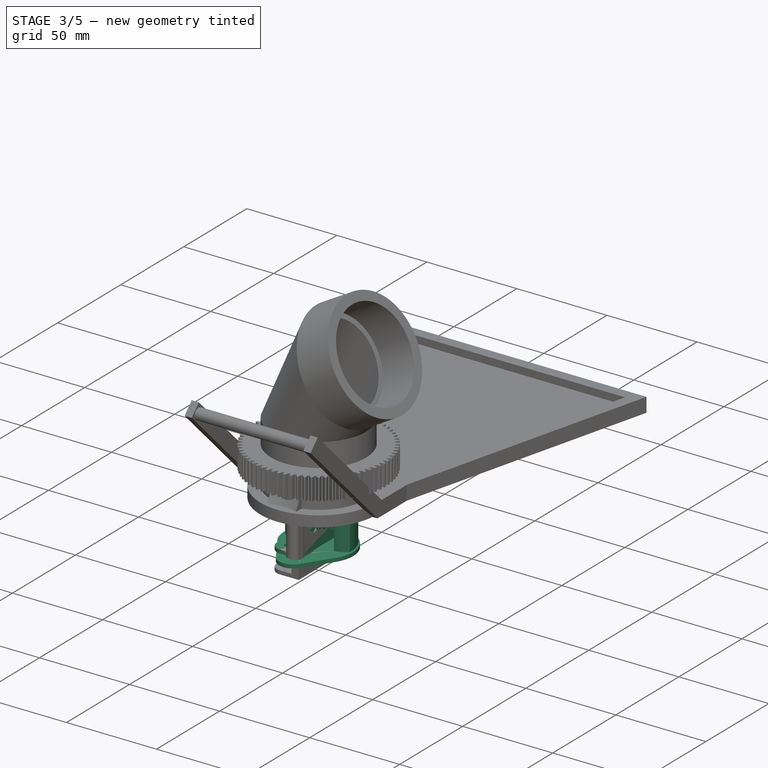
[diagram: stage 3 of 5 — iso view after this stage's code; geometry added in this stage tinted green]
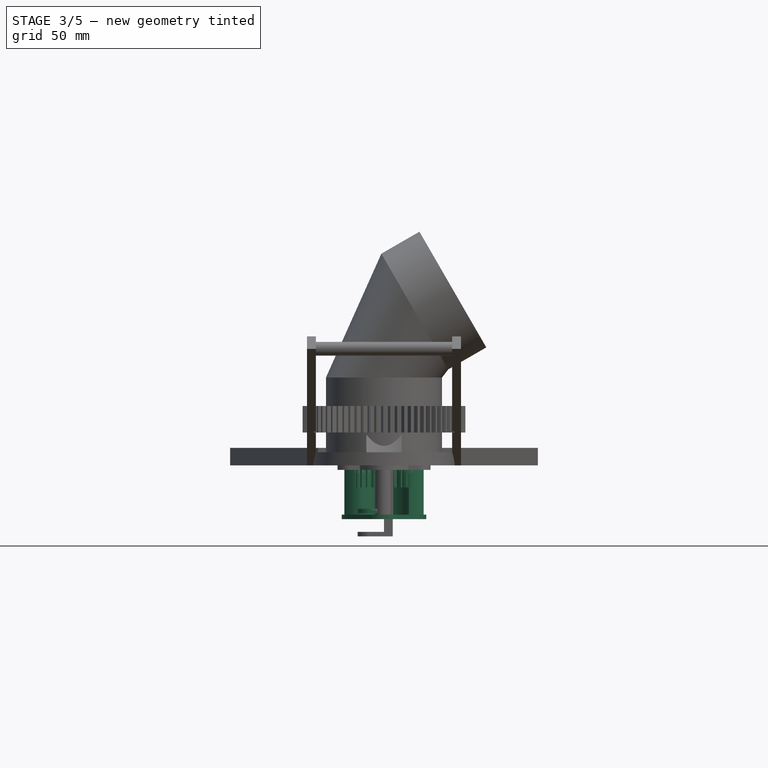
[diagram: stage 3 of 5 — front view after this stage's code; geometry added in this stage tinted green]
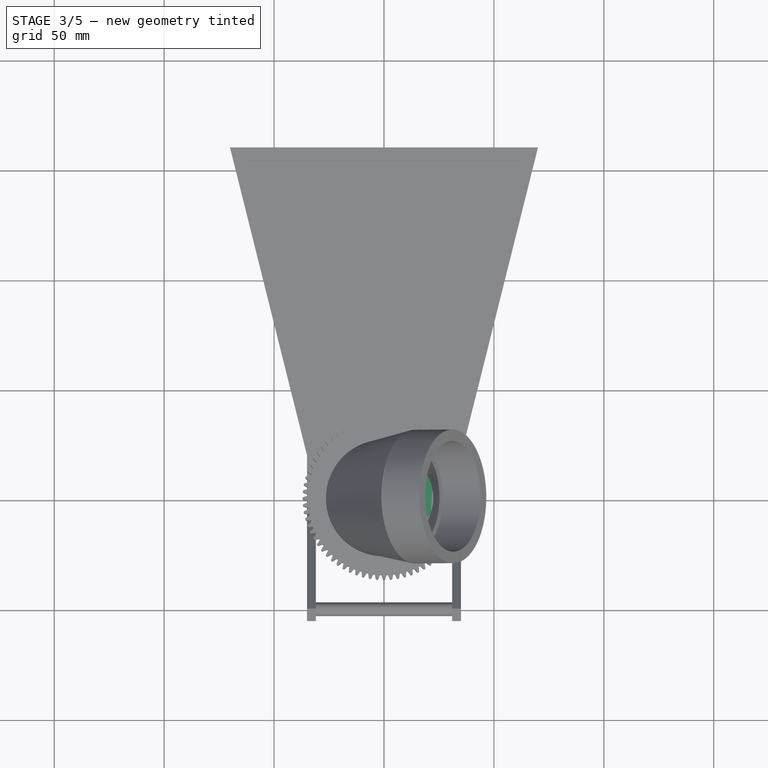
[diagram: stage 3 of 5 — top view after this stage's code; geometry added in this stage tinted green]
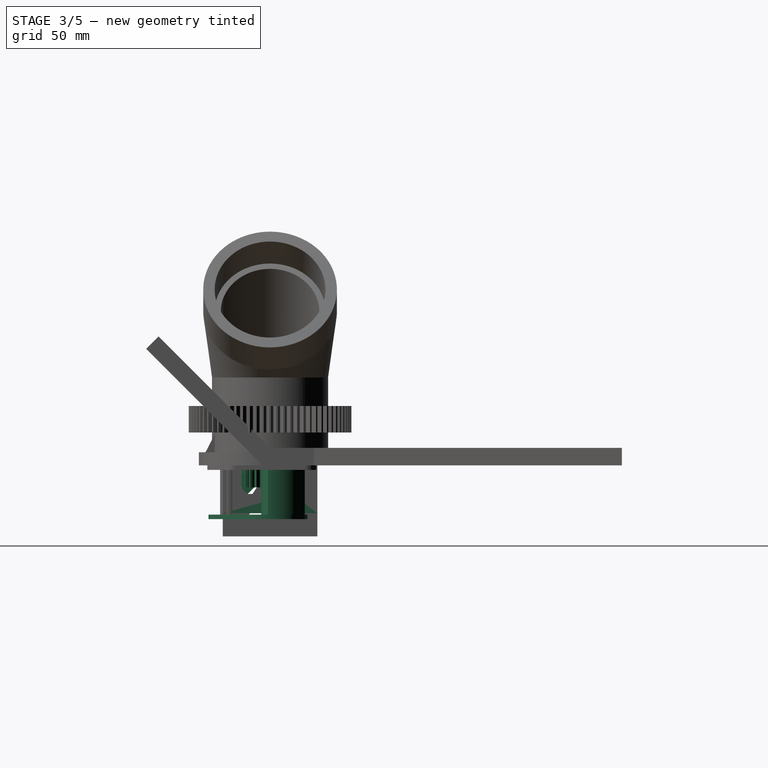
[diagram: stage 3 of 5 — right view after this stage's code; geometry added in this stage tinted green]
FEATURE [PartDesign::Body] Body002
  Group = -> [Sketch007,Pad005]
  Origin = -> Origin003
  Tip = -> Pad005
FEATURE [App::Part] Part  label="Part: Pelletizer"
  Group = -> [Body001,Body002]
  Origin = -> Origin001
  Placement = pos=(0,0,1.5) rot=(0,0,1;0rad)
FEATURE [Sketcher::SketchObject] Sketch008
  FullyConstrained = true
  MapMode = 5
  Support = -> [XY_Plane005]
  sketch-geometry (3):
    g0: Circle CenterX=0 CenterY=0 CenterZ=0 NormalX=0 NormalY=0 NormalZ=1 AngleXU=0 Radius=26.4
    g1: Circle CenterX=0 CenterY=0 CenterZ=0 NormalX=0 NormalY=0 NormalZ=1 AngleXU=0 Radius=22.4
    g2: LineSegment StartX=22.4 StartY=0 StartZ=0 EndX=26.4 EndY=0 EndZ=0
  constraints (8):
    c: Coincident(g0,g-1)
    c: Coincident(g1,g0)
    c: PointOnObject(g2,g1)
    c: PointOnObject(g2,g0)
    c: Horizontal(g2)
    c: Distance(g2) = 4
    c: PointOnObject(g2,g-1)
    c: Diameter(g1) = 44.8
FEATURE [Sketcher::SketchObject] Sketch022  label="Sketch copy"
  AttachmentOffset = pos=(0,0,40) rot=(0,0,1;0rad)
  FullyConstrained = true
  MapMode = 5
  Placement = pos=(0,0,40) rot=(0,0,1;0rad)
  Support = -> [XY_Plane005]
  sketch-geometry (3):
    g0: Circle CenterX=0 CenterY=0 CenterZ=0 NormalX=0 NormalY=0 NormalZ=1 AngleXU=0 Radius=26.4
    g1: Circle CenterX=0 CenterY=0 CenterZ=0 NormalX=0 NormalY=0 NormalZ=1 AngleXU=0 Radius=22.4
    g2: LineSegment StartX=22.4 StartY=0 StartZ=0 EndX=26.4 EndY=0 EndZ=0
  constraints (8):
    c: Coincident(g0,g-1)
    c: Coincident(g1,g0)
    c: PointOnObject(g2,g1)
    c: PointOnObject(g2,g0)
    c: Horizontal(g2)
    c: Distance(g2) = 4
    c: PointOnObject(g2,g-1)
    c: Diameter(g1) = 44.8
FEATURE [PartDesign::AdditiveLoft] AdditiveLoft001
  Closed = false
  Profile = -> Sketch008
  Ruled = false
  Sections = -> [Sketch022]
FEATURE [Sketcher::SketchObject] Sketch023  label="Sketch copy 2"
  AttachmentOffset = pos=(14,0,30) rot=(0,1,0;1.0472rad)
  FullyConstrained = true
  MapMode = 5
  Placement = pos=(14,0,70) rot=(0,1,0;1.0472rad)
  Support = -> [AdditiveLoft001]
  sketch-geometry (3):
    g0: Circle CenterX=0 CenterY=0 CenterZ=0 NormalX=0 NormalY=0 NormalZ=1 AngleXU=0 Radius=30.4
    g1: Circle CenterX=0 CenterY=0 CenterZ=0 NormalX=0 NormalY=0 NormalZ=1 AngleXU=0 Radius=22.4
    g2: LineSegment StartX=22.4 StartY=0 StartZ=0 EndX=30.4 EndY=0 EndZ=0
  constraints (8):
    c: Coincident(g0,g-1)
    c: Coincident(g1,g0)
    c: PointOnObject(g2,g1)
    c: PointOnObject(g2,g0)
    c: Horizontal(g2)
    c: Distance(g2) = 8
    c: PointOnObject(g2,g-1)
    c: Diameter(g1) = 44.8
FEATURE [PartDesign::AdditiveLoft] AdditiveLoft002
  BaseFeature = -> AdditiveLoft001
  Closed = false
  Profile = -> AdditiveLoft001 [Face3]
  Ruled = false
  Sections = -> [Sketch023]
FEATURE [PartDesign::Plane] DatumPlane
  Length = 95.4518
  MapMode = 11
  Placement = pos=(14,0,70) rot=(0.447214,0.447214,0.774597;1.82348rad)
  ResizeMode = 0
  Support = -> [AdditiveLoft002]
  Width = 176.923
FEATURE [Sketcher::SketchObject] Sketch027
  FullyConstrained = true
  MapMode = 5
  Placement = pos=(14,0,70) rot=(0.447214,0.447214,0.774597;1.82348rad)
  Support = -> [DatumPlane]
  sketch-geometry (2):
    g0: Circle CenterX=0 CenterY=0 CenterZ=0 NormalX=0 NormalY=0 NormalZ=1 AngleXU=0 Radius=25.2
    g1: Circle CenterX=0 CenterY=0 CenterZ=0 NormalX=0 NormalY=0 NormalZ=1 AngleXU=0 Radius=30.4
  constraints (4):
    c: Coincident(g0,g-1)
    c: Diameter(g0) = 50.4
    c: Coincident(g1,g0)
    c: Diameter(g1) = 60.8
FEATURE [PartDesign::Pad] Pad013
  BaseFeature = -> AdditiveLoft002
  Direction = (0.866025,0,0.5)
  Length = 20
  Length2 = 10
  Profile = -> Sketch027
  ReferenceAxis = -> Sketch027 [N_Axis]
  Type = 0
FEATURE [Sketcher::SketchObject] Sketch032
  FullyConstrained = true
  MapMode = 5
  Placement = pos=(0,0,0) rot=(0.57735,0.57735,0.57735;2.0944rad)
  Support = -> [YZ_Plane005]
  sketch-geometry (5):
    g0: LineSegment StartX=26.4 StartY=0 StartZ=0 EndX=0 EndY=0 EndZ=0
    g1: LineSegment StartX=26.4 StartY=0 StartZ=0 EndX=32.4 EndY=0 EndZ=0
    g2: LineSegment StartX=32.4 StartY=0 StartZ=0 EndX=32.4 EndY=6 EndZ=0
    g3: LineSegment StartX=26.4 StartY=0 StartZ=0 EndX=26.4 EndY=6 EndZ=0
    g4: LineSegment StartX=26.4 StartY=6 StartZ=0 EndX=32.4 EndY=6 EndZ=0
  constraints (14):
    c: PointOnObject(g0,g-1)
    c: Coincident(g0,g-1)
    c: Distance(g0) = 26.4
    c: Coincident(g1,g0)
    c: PointOnObject(g1,g-1)
    c: Distance(g1) = 6
    c: Coincident(g2,g1)
    c: Vertical(g2)
    c: Distance(g2) = 6
    c: Coincident(g3,g1)
    c: Vertical(g3)
    c: Coincident(g4,g3)
    c: Coincident(g4,g2)
    c: Horizontal(g4)
FEATURE [PartDesign::Revolution] Revolution001
  Angle = 360
  Axis = (-2e-16,3e-16,1)
  Base = (0,0,0)
  BaseFeature = -> Pad013
  Profile = -> Sketch032
  ReferenceAxis = -> Sketch032 [V_Axis]
  Reversed = true
FEATURE [PartDesign::Body] Body  label="Body: Top funnel"
  Group = -> [Sketch001,Pad,Sketch002,Pad001,Chamfer001,Chamfer,Fillet,Chamfer006,Fillet004,Mirrored,Sketch003,Sketch004,AdditiveLoft,Sketch049,Sketch050,SubtractiveLoft,Chamfer007,Chamfer008,Pad022,Revolution,Sketch066,Pad035,MultiTransform,Mirrored001,Sketch079,Pocket,Sketch080,Pad036,Sketch081,Pad037,Pad038,MultiTransform001,Mirrored002]
  Origin = -> Origin
  Tip = -> MultiTransform001
FEATURE [Sketcher::SketchObject] Sketch082
  FullyConstrained = true
  MapMode = 5
  Support = -> [XY_Plane020]
  sketch-geometry (3):
    g0: Circle CenterX=0 CenterY=0 CenterZ=0 NormalX=0 NormalY=0 NormalZ=1 AngleXU=0 Radius=26.4
    g1: Circle CenterX=0 CenterY=0 CenterZ=0 NormalX=0 NormalY=0 NormalZ=1 AngleXU=0 Radius=22.4
    g2: LineSegment StartX=22.4 StartY=0 StartZ=0 EndX=26.4 EndY=0 EndZ=0
  constraints (8):
    c: Coincident(g0,g-1)
    c: Coincident(g1,g0)
    c: PointOnObject(g2,g1)
    c: PointOnObject(g2,g0)
    c: Horizontal(g2)
    c: Distance(g2) = 4
    c: PointOnObject(g2,g-1)
    c: Diameter(g1) = 44.8
FEATURE [Sketcher::SketchObject] Sketch083  label="Sketch copy001"
  AttachmentOffset = pos=(0,0,40) rot=(0,0,1;0rad)
  FullyConstrained = true
  MapMode = 5
  Placement = pos=(0,0,40) rot=(0,0,1;0rad)
  Support = -> [XY_Plane020]
  sketch-geometry (3):
    g0: Circle CenterX=0 CenterY=0 CenterZ=0 NormalX=0 NormalY=0 NormalZ=1 AngleXU=0 Radius=26.4
    g1: Circle CenterX=0 CenterY=0 CenterZ=0 NormalX=0 NormalY=0 NormalZ=1 AngleXU=0 Radius=22.4
    g2: LineSegment StartX=22.4 StartY=0 StartZ=0 EndX=26.4 EndY=0 EndZ=0
  constraints (8):
    c: Coincident(g0,g-1)
    c: Coincident(g1,g0)
    c: PointOnObject(g2,g1)
    c: PointOnObject(g2,g0)
    c: Horizontal(g2)
    c: Distance(g2) = 4
    c: PointOnObject(g2,g-1)
    c: Diameter(g1) = 44.8
FEATURE [PartDesign::AdditiveLoft] AdditiveLoft003
  Closed = false
  Profile = -> Sketch082
  Ruled = false
  Sections = -> [Sketch083]
FEATURE [PartDesign::Body] Body018  label="Body: Top001"
  Group = -> [Sketch082,Sketch083,Sketch084,AdditiveLoft003,AdditiveLoft004,DatumPlane001,Sketch085,Pad039,Sketch086,Revolution008,Sketch087,Pad040]
  Origin = -> Origin020
  Placement = pos=(1.1e-14,0,-91) rot=(0.707107,-0.707107,0;3.14159rad)
  Tip = -> Pad040
FEATURE [Part::Part2DObjectPython] InvoluteGear  # Draft 2D object (typed FeaturePython)
  ExternalGear = true
  HighPrecision = true
  Modules = 1
  NumberOfTeeth = 72
  PressureAngle = 20
FEATURE [Part::Part2DObjectPython] InvoluteGear001  # Draft 2D object (typed FeaturePython)
  ExternalGear = true
  HighPrecision = true
  Modules = 1
  NumberOfTeeth = 12
  PressureAngle = 20
FEATURE [Part::Part2DObjectPython] InvoluteGear002  # Draft 2D object (typed FeaturePython)
  ExternalGear = true
  HighPrecision = true
  Modules = 1
  NumberOfTeeth = 26
  PressureAngle = 20
FEATURE [Sketcher::SketchObject] Sketch088
  AttachmentOffset = pos=(0,0,15) rot=(0,0,1;0rad)
  FullyConstrained = false
  MapMode = 5
  Placement = pos=(0,0,15) rot=(0,0,1;0rad)
  Support = -> [XY_Plane005]
  sketch-geometry (576):
    g0: BSplineCurve PolesCount=4 KnotsCount=2 Degree=3 IsPeriodic=0
    g1: BSplineCurve PolesCount=4 KnotsCount=2 Degree=3 IsPeriodic=0
    g2: ArcOfCircle CenterX=-0.000114178 CenterY=0 CenterZ=0 NormalX=0 NormalY=0 NormalZ=1 AngleXU=3.13086 Radius=37 StartAngle=0 EndAngle=0.021469
    g3: BSplineCurve PolesCount=4 KnotsCount=2 Degree=3 IsPeriodic=0
    g4: BSplineCurve PolesCount=4 KnotsCount=2 Degree=3 IsPeriodic=0
    g5: ArcOfCircle CenterX=-35.0952 CenterY=-1.43374 CenterZ=0 NormalX=0 NormalY=0 NormalZ=1 AngleXU=1.26835 Radius=0.375 StartAngle=5.0013 EndAngle=6.28319
    g6: ArcOfCircle CenterX=4.30505e-09 CenterY=1.88071e-10 CenterZ=0 NormalX=0 NormalY=0 NormalZ=1 AngleXU=-3.10018 Radius=34.75 StartAngle=0 EndAngle=0.00443302
    g7: ArcOfCircle CenterX=-35.0866 CenterY=-1.63046 CenterZ=0 NormalX=0 NormalY=0 NormalZ=1 AngleXU=0.100808 Radius=0.375 StartAngle=5.00131 EndAngle=6.28319
    g8: BSplineCurve PolesCount=4 KnotsCount=2 Degree=3 IsPeriodic=0
    g9: BSplineCurve PolesCount=4 KnotsCount=2 Degree=3 IsPeriodic=0
    g10: ArcOfCircle CenterX=-0.000113744 CenterY=-9.9513e-06 CenterZ=0 NormalX=0 NormalY=0 NormalZ=1 AngleXU=-3.06506 Radius=37 StartAngle=0 EndAngle=0.021469
    g11: BSplineCurve PolesCount=4 KnotsCount=2 Degree=3 IsPeriodic=0
    g12: BSplineCurve PolesCount=4 KnotsCount=2 Degree=3 IsPeriodic=0
    g13: ArcOfCircle CenterX=-34.8367 CenterY=-4.48703 CenterZ=0 NormalX=0 NormalY=0 NormalZ=1 AngleXU=1.35561 Radius=0.375 StartAngle=5.0013 EndAngle=6.28319
    g14: ArcOfCircle CenterX=1.41303e-09 CenterY=1.88783e-10 CenterZ=0 NormalX=0 NormalY=0 NormalZ=1 AngleXU=-3.01291 Radius=34.75 StartAngle=0 EndAngle=0.00443302
    g15: ArcOfCircle CenterX=-34.811 CenterY=-4.68225 CenterZ=0 NormalX=0 NormalY=0 NormalZ=1 AngleXU=0.188075 Radius=0.375 StartAngle=5.00131 EndAngle=6.28319
    g16: BSplineCurve PolesCount=4 KnotsCount=2 Degree=3 IsPeriodic=0
    g17: BSplineCurve PolesCount=4 KnotsCount=2 Degree=3 IsPeriodic=0
    g18: ArcOfCircle CenterX=-0.000112444 CenterY=-1.98269e-05 CenterZ=0 NormalX=0 NormalY=0 NormalZ=1 AngleXU=-2.97779 Radius=37 StartAngle=0 EndAngle=0.021469
    g19: BSplineCurve PolesCount=4 KnotsCount=2 Degree=3 IsPeriodic=0
    g20: BSplineCurve PolesCount=4 KnotsCount=2 Degree=3 IsPeriodic=0
    g21: ArcOfCircle CenterX=-34.313 CenterY=-7.50617 CenterZ=0 NormalX=0 NormalY=0 NormalZ=1 AngleXU=1.44288 Radius=0.375 StartAngle=5.0013 EndAngle=6.28319
    g22: ArcOfCircle CenterX=3.80888e-09 CenterY=8.43392e-10 CenterZ=0 NormalX=0 NormalY=0 NormalZ=1 AngleXU=-2.92564 Radius=34.75 StartAngle=0 EndAngle=0.00443302
    g23: ArcOfCircle CenterX=-34.2704 CenterY=-7.69841 CenterZ=0 NormalX=0 NormalY=0 NormalZ=1 AngleXU=0.275341 Radius=0.375 StartAngle=5.00131 EndAngle=6.28319
    g24: BSplineCurve PolesCount=4 KnotsCount=2 Degree=3 IsPeriodic=0
    g25: BSplineCurve PolesCount=4 KnotsCount=2 Degree=3 IsPeriodic=0
    g26: ArcOfCircle CenterX=-0.000110288 CenterY=-2.95515e-05 CenterZ=0 NormalX=0 NormalY=0 NormalZ=1 AngleXU=-2.89053 Radius=37 StartAngle=0 EndAngle=0.021469
    g27: BSplineCurve PolesCount=4 KnotsCount=2 Degree=3 IsPeriodic=0
    g28: BSplineCurve PolesCount=4 KnotsCount=2 Degree=3 IsPeriodic=0
    g29: ArcOfCircle CenterX=-33.5282 CenterY=-10.4682 CenterZ=0 NormalX=0 NormalY=0 NormalZ=1 AngleXU=1.53014 Radius=0.375 StartAngle=5.0013 EndAngle=6.28319
    g30: ArcOfCircle CenterX=1.80824e-09 CenterY=5.71028e-10 CenterZ=0 NormalX=0 NormalY=0 NormalZ=1 AngleXU=-2.83838 Radius=34.75 StartAngle=0 EndAngle=0.00443302
    g31: ArcOfCircle CenterX=-33.469 CenterY=-10.656 CenterZ=0 NormalX=0 NormalY=0 NormalZ=1 AngleXU=0.362608 Radius=0.375 StartAngle=5.00131 EndAngle=6.28319
    g32: BSplineCurve PolesCount=4 KnotsCount=2 Degree=3 IsPeriodic=0
    g33: BSplineCurve PolesCount=4 KnotsCount=2 Degree=3 IsPeriodic=0
    g34: ArcOfCircle CenterX=-0.000107293 CenterY=-3.90514e-05 CenterZ=0 NormalX=0 NormalY=0 NormalZ=1 AngleXU=-2.80326 Radius=37 StartAngle=0 EndAngle=0.021469
    g35: BSplineCurve PolesCount=4 KnotsCount=2 Degree=3 IsPeriodic=0
    g36: BSplineCurve PolesCount=4 KnotsCount=2 Degree=3 IsPeriodic=0
    g37: ArcOfCircle CenterX=-32.4883 CenterY=-13.3505 CenterZ=0 NormalX=0 NormalY=0 NormalZ=1 AngleXU=1.61741 Radius=0.375 StartAngle=5.0013 EndAngle=6.28319
    g38: ArcOfCircle CenterX=-7.54923e-10 CenterY=-3.12208e-10 CenterZ=0 NormalX=0 NormalY=0 NormalZ=1 AngleXU=-2.75111 Radius=34.75 StartAngle=0 EndAngle=0.00443302
    g39: ArcOfCircle CenterX=-32.4129 CenterY=-13.5324 CenterZ=0 NormalX=0 NormalY=0 NormalZ=1 AngleXU=0.449874 Radius=0.375 StartAngle=5.00131 EndAngle=6.28319
    g40: BSplineCurve PolesCount=4 KnotsCount=2 Degree=3 IsPeriodic=0
    g41: BSplineCurve PolesCount=4 KnotsCount=2 Degree=3 IsPeriodic=0
    g42: ArcOfCircle CenterX=-0.000103481 CenterY=-4.82539e-05 CenterZ=0 NormalX=0 NormalY=0 NormalZ=1 AngleXU=-2.71599 Radius=37 StartAngle=0 EndAngle=0.021469
    g43: BSplineCurve PolesCount=4 KnotsCount=2 Degree=3 IsPeriodic=0
    g44: BSplineCurve PolesCount=4 KnotsCount=2 Degree=3 IsPeriodic=0
    g45: ArcOfCircle CenterX=-31.2011 CenterY=-16.1313 CenterZ=0 NormalX=0 NormalY=0 NormalZ=1 AngleXU=1.70468 Radius=0.375 StartAngle=5.0013 EndAngle=6.28319
    g46: ArcOfCircle CenterX=2.26632e-09 CenterY=1.18009e-09 CenterZ=0 NormalX=0 NormalY=0 NormalZ=1 AngleXU=-2.66384 Radius=34.75 StartAngle=0 EndAngle=0.00443302
    g47: ArcOfCircle CenterX=-31.1102 CenterY=-16.3059 CenterZ=0 NormalX=0 NormalY=0 NormalZ=1 AngleXU=0.53714 Radius=0.375 StartAngle=5.00131 EndAngle=6.28319
    g48: BSplineCurve PolesCount=4 KnotsCount=2 Degree=3 IsPeriodic=0
    g49: BSplineCurve PolesCount=4 KnotsCount=2 Degree=3 IsPeriodic=0
    g50: ArcOfCircle CenterX=-9.88813e-05 CenterY=-5.70891e-05 CenterZ=0 NormalX=0 NormalY=0 NormalZ=1 AngleXU=-2.62873 Radius=37 StartAngle=0 EndAngle=0.021469
    g51: BSplineCurve PolesCount=4 KnotsCount=2 Degree=3 IsPeriodic=0
    g52: BSplineCurve PolesCount=4 KnotsCount=2 Degree=3 IsPeriodic=0
    g53: ArcOfCircle CenterX=-29.6764 CenterY=-18.7892 CenterZ=0 NormalX=0 NormalY=0 NormalZ=1 AngleXU=1.79194 Radius=0.375 StartAngle=5.0013 EndAngle=6.28319
    g54: ArcOfCircle CenterX=2.24794e-09 CenterY=1.432e-09 CenterZ=0 NormalX=0 NormalY=0 NormalZ=1 AngleXU=-2.57658 Radius=34.75 StartAngle=0 EndAngle=0.00443302
    g55: ArcOfCircle CenterX=-29.5706 CenterY=-18.9553 CenterZ=0 NormalX=0 NormalY=0 NormalZ=1 AngleXU=0.624407 Radius=0.375 StartAngle=5.00131 EndAngle=6.28319
    g56: BSplineCurve PolesCount=4 KnotsCount=2 Degree=3 IsPeriodic=0
    g57: BSplineCurve PolesCount=4 KnotsCount=2 Degree=3 IsPeriodic=0
    g58: ArcOfCircle CenterX=-9.35294e-05 CenterY=-6.549e-05 CenterZ=0 NormalX=0 NormalY=0 NormalZ=1 AngleXU=-2.54146 Radius=37 StartAngle=0 EndAngle=0.021469
    g59: BSplineCurve PolesCount=4 KnotsCount=2 Degree=3 IsPeriodic=0
    g60: BSplineCurve PolesCount=4 KnotsCount=2 Degree=3 IsPeriodic=0
    g61: ArcOfCircle CenterX=-27.9259 CenterY=-21.3042 CenterZ=0 NormalX=0 NormalY=0 NormalZ=1 AngleXU=1.87921 Radius=0.375 StartAngle=5.0013 EndAngle=6.28319
    g62: ArcOfCircle CenterX=2.11743e-10 CenterY=1.62791e-10 CenterZ=0 NormalX=0 NormalY=0 NormalZ=1 AngleXU=-2.48931 Radius=34.75 StartAngle=0 EndAngle=0.00443302
    g63: ArcOfCircle CenterX=-27.806 CenterY=-21.4604 CenterZ=0 NormalX=0 NormalY=0 NormalZ=1 AngleXU=0.711673 Radius=0.375 StartAngle=5.00131 EndAngle=6.28319
    g64: BSplineCurve PolesCount=4 KnotsCount=2 Degree=3 IsPeriodic=0
    g65: BSplineCurve PolesCount=4 KnotsCount=2 Degree=3 IsPeriodic=0
    g66: ArcOfCircle CenterX=-8.74659e-05 CenterY=-7.33926e-05 CenterZ=0 NormalX=0 NormalY=0 NormalZ=1 AngleXU=-2.4542 Radius=37 StartAngle=0 EndAngle=0.021469
    g67: BSplineCurve PolesCount=4 KnotsCount=2 Degree=3 IsPeriodic=0
    g68: BSplineCurve PolesCount=4 KnotsCount=2 Degree=3 IsPeriodic=0
    g69: ArcOfCircle CenterX=-25.9629 CenterY=-23.657 CenterZ=0 NormalX=0 NormalY=0 NormalZ=1 AngleXU=1.96648 Radius=0.375 StartAngle=5.0013 EndAngle=6.28319
    g70: ArcOfCircle CenterX=4.45511e-09 CenterY=4.08397e-09 CenterZ=0 NormalX=0 NormalY=0 NormalZ=1 AngleXU=-2.40204 Radius=34.75 StartAngle=0 EndAngle=0.00443302
    g71: ArcOfCircle CenterX=-25.8298 CenterY=-23.8022 CenterZ=0 NormalX=0 NormalY=0 NormalZ=1 AngleXU=0.79894 Radius=0.375 StartAngle=5.00131 EndAngle=6.28319
    g72: BSplineCurve PolesCount=4 KnotsCount=2 Degree=3 IsPeriodic=0
    g73: BSplineCurve PolesCount=4 KnotsCount=2 Degree=3 IsPeriodic=0
    g74: ArcOfCircle CenterX=-8.07364e-05 CenterY=-8.07364e-05 CenterZ=0 NormalX=0 NormalY=0 NormalZ=1 AngleXU=-2.36693 Radius=37 StartAngle=0 EndAngle=0.021469
    g75: BSplineCurve PolesCount=4 KnotsCount=2 Degree=3 IsPeriodic=0
    g76: BSplineCurve PolesCount=4 KnotsCount=2 Degree=3 IsPeriodic=0
    g77: ArcOfCircle CenterX=-23.8022 CenterY=-25.8298 CenterZ=0 NormalX=0 NormalY=0 NormalZ=1 AngleXU=2.05374 Radius=0.375 StartAngle=5.0013 EndAngle=6.28319
    g78: ArcOfCircle CenterX=3.3341e-09 CenterY=3.63844e-09 CenterZ=0 NormalX=0 NormalY=0 NormalZ=1 AngleXU=-2.31478 Radius=34.75 StartAngle=0 EndAngle=0.00443302
    g79: ArcOfCircle CenterX=-23.657 CenterY=-25.9629 CenterZ=0 NormalX=0 NormalY=0 NormalZ=1 AngleXU=0.886206 Radius=0.375 StartAngle=5.00131 EndAngle=6.28319
    g80: BSplineCurve PolesCount=4 KnotsCount=2 Degree=3 IsPeriodic=0
    g81: BSplineCurve PolesCount=4 KnotsCount=2 Degree=3 IsPeriodic=0
    g82: ArcOfCircle CenterX=-7.33924e-05 CenterY=-8.74657e-05 CenterZ=0 NormalX=0 NormalY=0 NormalZ=1 AngleXU=-2.27966 Radius=37 StartAngle=0 EndAngle=0.021469
    g83: BSplineCurve PolesCount=4 KnotsCount=2 Degree=3 IsPeriodic=0
    g84: BSplineCurve PolesCount=4 KnotsCount=2 Degree=3 IsPeriodic=0
    g85: ArcOfCircle CenterX=-21.4604 CenterY=-27.806 CenterZ=0 NormalX=0 NormalY=0 NormalZ=1 AngleXU=2.14101 Radius=0.375 StartAngle=5.0013 EndAngle=6.28319
    g86: ArcOfCircle CenterX=-5.06539e-10 CenterY=-6.59728e-10 CenterZ=0 NormalX=0 NormalY=0 NormalZ=1 AngleXU=-2.22751 Radius=34.75 StartAngle=0 EndAngle=0.00443302
    g87: ArcOfCircle CenterX=-21.3042 CenterY=-27.9259 CenterZ=0 NormalX=0 NormalY=0 NormalZ=1 AngleXU=0.973473 Radius=0.375 StartAngle=5.00131 EndAngle=6.28319
    g88: BSplineCurve PolesCount=4 KnotsCount=2 Degree=3 IsPeriodic=0
    g89: BSplineCurve PolesCount=4 KnotsCount=2 Degree=3 IsPeriodic=0
    g90: ArcOfCircle CenterX=-6.549e-05 CenterY=-9.35293e-05 CenterZ=0 NormalX=0 NormalY=0 NormalZ=1 AngleXU=-2.1924 Radius=37 StartAngle=0 EndAngle=0.021469
    g91: BSplineCurve PolesCount=4 KnotsCount=2 Degree=3 IsPeriodic=0
    g92: BSplineCurve PolesCount=4 KnotsCount=2 Degree=3 IsPeriodic=0
    g93: ArcOfCircle CenterX=-18.9553 CenterY=-29.5706 CenterZ=0 NormalX=0 NormalY=0 NormalZ=1 AngleXU=2.22828 Radius=0.375 StartAngle=5.0013 EndAngle=6.28319
    g94: ArcOfCircle CenterX=-3.34866e-10 CenterY=-5.25029e-10 CenterZ=0 NormalX=0 NormalY=0 NormalZ=1 AngleXU=-2.14024 Radius=34.75 StartAngle=0 EndAngle=0.00443302
    g95: ArcOfCircle CenterX=-18.7892 CenterY=-29.6764 CenterZ=0 NormalX=0 NormalY=0 NormalZ=1 AngleXU=1.06074 Radius=0.375 StartAngle=5.00131 EndAngle=6.28319
    g96: BSplineCurve PolesCount=4 KnotsCount=2 Degree=3 IsPeriodic=0
    g97: BSplineCurve PolesCount=4 KnotsCount=2 Degree=3 IsPeriodic=0
    g98: ArcOfCircle CenterX=-5.70891e-05 CenterY=-9.88813e-05 CenterZ=0 NormalX=0 NormalY=0 NormalZ=1 AngleXU=-2.10513 Radius=37 StartAngle=0 EndAngle=0.021469
    g99: BSplineCurve PolesCount=4 KnotsCount=2 Degree=3 IsPeriodic=0
    g100: BSplineCurve PolesCount=4 KnotsCount=2 Degree=3 IsPeriodic=0
    g101: ArcOfCircle CenterX=-16.3059 CenterY=-31.1102 CenterZ=0 NormalX=0 NormalY=0 NormalZ=1 AngleXU=2.31554 Radius=0.375 StartAngle=5.0013 EndAngle=6.28319
    g102: ArcOfCircle CenterX=2.32665e-10 CenterY=4.47486e-10 CenterZ=0 NormalX=0 NormalY=0 NormalZ=1 AngleXU=-2.05298 Radius=34.75 StartAngle=0 EndAngle=0.00443302
    g103: ArcOfCircle CenterX=-16.1313 CenterY=-31.2011 CenterZ=0 NormalX=0 NormalY=0 NormalZ=1 AngleXU=1.14801 Radius=0.375 StartAngle=5.00131 EndAngle=6.28319
    g104: BSplineCurve PolesCount=4 KnotsCount=2 Degree=3 IsPeriodic=0
    g105: BSplineCurve PolesCount=4 KnotsCount=2 Degree=3 IsPeriodic=0
    g106: ArcOfCircle CenterX=-4.82538e-05 CenterY=-0.000103481 CenterZ=0 NormalX=0 NormalY=0 NormalZ=1 AngleXU=-2.01786 Radius=37 StartAngle=0 EndAngle=0.021469
    g107: BSplineCurve PolesCount=4 KnotsCount=2 Degree=3 IsPeriodic=0
    g108: BSplineCurve PolesCount=4 KnotsCount=2 Degree=3 IsPeriodic=0
    g109: ArcOfCircle CenterX=-13.5324 CenterY=-32.4129 CenterZ=0 NormalX=0 NormalY=0 NormalZ=1 AngleXU=2.40281 Radius=0.375 StartAngle=5.0013 EndAngle=6.28319
    g110: ArcOfCircle CenterX=1.65845e-10 CenterY=4.03073e-10 CenterZ=0 NormalX=0 NormalY=0 NormalZ=1 AngleXU=-1.96571 Radius=34.75 StartAngle=0 EndAngle=0.00443302
    g111: ArcOfCircle CenterX=-13.3505 CenterY=-32.4883 CenterZ=0 NormalX=0 NormalY=0 NormalZ=1 AngleXU=1.23527 Radius=0.375 StartAngle=5.00131 EndAngle=6.28319
    g112: BSplineCurve PolesCount=4 KnotsCount=2 Degree=3 IsPeriodic=0
    g113: BSplineCurve PolesCount=4 KnotsCount=2 Degree=3 IsPeriodic=0
    g114: ArcOfCircle CenterX=-3.90514e-05 CenterY=-0.000107293 CenterZ=0 NormalX=0 NormalY=0 NormalZ=1 AngleXU=-1.9306 Radius=37 StartAngle=0 EndAngle=0.021469
    g115: BSplineCurve PolesCount=4 KnotsCount=2 Degree=3 IsPeriodic=0
    g116: BSplineCurve PolesCount=4 KnotsCount=2 Degree=3 IsPeriodic=0
    g117: ArcOfCircle CenterX=-10.656 CenterY=-33.469 CenterZ=0 NormalX=0 NormalY=0 NormalZ=1 AngleXU=2.49008 Radius=0.375 StartAngle=5.0013 EndAngle=6.28319
    g118: ArcOfCircle CenterX=-3.67348e-10 CenterY=-1.16281e-09 CenterZ=0 NormalX=0 NormalY=0 NormalZ=1 AngleXU=-1.87845 Radius=34.75 StartAngle=0 EndAngle=0.00443302
    g119: ArcOfCircle CenterX=-10.4682 CenterY=-33.5282 CenterZ=0 NormalX=0 NormalY=0 NormalZ=1 AngleXU=1.32254 Radius=0.375 StartAngle=5.00131 EndAngle=6.28319
    g120: BSplineCurve PolesCount=4 KnotsCount=2 Degree=3 IsPeriodic=0
    g121: BSplineCurve PolesCount=4 KnotsCount=2 Degree=3 IsPeriodic=0
    g122: ArcOfCircle CenterX=-2.95515e-05 CenterY=-0.000110288 CenterZ=0 NormalX=0 NormalY=0 NormalZ=1 AngleXU=-1.84333 Radius=37 StartAngle=0 EndAngle=0.021469
    g123: BSplineCurve PolesCount=4 KnotsCount=2 Degree=3 IsPeriodic=0
    g124: BSplineCurve PolesCount=4 KnotsCount=2 Degree=3 IsPeriodic=0
    g125: ArcOfCircle CenterX=-7.69841 CenterY=-34.2704 CenterZ=0 NormalX=0 NormalY=0 NormalZ=1 AngleXU=2.57734 Radius=0.375 StartAngle=5.0013 EndAngle=6.28319
    g126: ArcOfCircle CenterX=5.04682e-10 CenterY=2.27383e-09 CenterZ=0 NormalX=0 NormalY=0 NormalZ=1 AngleXU=-1.79118 Radius=34.75 StartAngle=0 EndAngle=0.00443302
    g127: ArcOfCircle CenterX=-7.50617 CenterY=-34.313 CenterZ=0 NormalX=0 NormalY=0 NormalZ=1 AngleXU=1.40981 Radius=0.375 StartAngle=5.00131 EndAngle=6.28319
    g128: BSplineCurve PolesCount=4 KnotsCount=2 Degree=3 IsPeriodic=0
    g129: BSplineCurve PolesCount=4 KnotsCount=2 Degree=3 IsPeriodic=0
    g130: ArcOfCircle CenterX=-1.98269e-05 CenterY=-0.000112444 CenterZ=0 NormalX=0 NormalY=0 NormalZ=1 AngleXU=-1.75606 Radius=37 StartAngle=0 EndAngle=0.021469
    g131: BSplineCurve PolesCount=4 KnotsCount=2 Degree=3 IsPeriodic=0
    g132: BSplineCurve PolesCount=4 KnotsCount=2 Degree=3 IsPeriodic=0
    g133: ArcOfCircle CenterX=-4.68225 CenterY=-34.811 CenterZ=0 NormalX=0 NormalY=0 NormalZ=1 AngleXU=2.66461 Radius=0.375 StartAngle=5.0013 EndAngle=6.28319
    g134: ArcOfCircle CenterX=2.11263e-10 CenterY=1.59599e-09 CenterZ=0 NormalX=0 NormalY=0 NormalZ=1 AngleXU=-1.70391 Radius=34.75 StartAngle=0 EndAngle=0.00443302
    g135: ArcOfCircle CenterX=-4.48703 CenterY=-34.8367 CenterZ=0 NormalX=0 NormalY=0 NormalZ=1 AngleXU=1.49707 Radius=0.375 StartAngle=5.00131 EndAngle=6.28319
    g136: BSplineCurve PolesCount=4 KnotsCount=2 Degree=3 IsPeriodic=0
    g137: BSplineCurve PolesCount=4 KnotsCount=2 Degree=3 IsPeriodic=0
    g138: ArcOfCircle CenterX=-9.9513e-06 CenterY=-0.000113744 CenterZ=0 NormalX=0 NormalY=0 NormalZ=1 AngleXU=-1.6688 Radius=37 StartAngle=0 EndAngle=0.021469
    g139: BSplineCurve PolesCount=4 KnotsCount=2 Degree=3 IsPeriodic=0
    g140: BSplineCurve PolesCount=4 KnotsCount=2 Degree=3 IsPeriodic=0
    g141: ArcOfCircle CenterX=-1.63046 CenterY=-35.0866 CenterZ=0 NormalX=0 NormalY=0 NormalZ=1 AngleXU=2.75188 Radius=0.375 StartAngle=5.0013 EndAngle=6.28319
    g142: ArcOfCircle CenterX=1.88415e-10 CenterY=4.31308e-09 CenterZ=0 NormalX=0 NormalY=0 NormalZ=1 AngleXU=-1.61665 Radius=34.75 StartAngle=0 EndAngle=0.00443302
    g143: ArcOfCircle CenterX=-1.43374 CenterY=-35.0952 CenterZ=0 NormalX=0 NormalY=0 NormalZ=1 AngleXU=1.58434 Radius=0.375 StartAngle=5.00131 EndAngle=6.28319
    g144: BSplineCurve PolesCount=4 KnotsCount=2 Degree=3 IsPeriodic=0
    g145: BSplineCurve PolesCount=4 KnotsCount=2 Degree=3 IsPeriodic=0
    g146: ArcOfCircle CenterX=-2.3e-15 CenterY=-0.000114178 CenterZ=0 NormalX=0 NormalY=0 NormalZ=1 AngleXU=-1.58153 Radius=37 StartAngle=0 EndAngle=0.021469
    g147: BSplineCurve PolesCount=4 KnotsCount=2 Degree=3 IsPeriodic=0
    g148: BSplineCurve PolesCount=4 KnotsCount=2 Degree=3 IsPeriodic=0
    g149: ArcOfCircle CenterX=1.43374 CenterY=-35.0952 CenterZ=0 NormalX=0 NormalY=0 NormalZ=1 AngleXU=2.83914 Radius=0.375 StartAngle=5.0013 EndAngle=6.28319
    g150: ArcOfCircle CenterX=-1.88073e-10 CenterY=4.30505e-09 CenterZ=0 NormalX=0 NormalY=0 NormalZ=1 AngleXU=-1.52938 Radius=34.75 StartAngle=0 EndAngle=0.00443302
    g151: ArcOfCircle CenterX=1.63046 CenterY=-35.0866 CenterZ=0 NormalX=0 NormalY=0 NormalZ=1 AngleXU=1.6716 Radius=0.375 StartAngle=5.00131 EndAngle=6.28319
    g152: BSplineCurve PolesCount=4 KnotsCount=2 Degree=3 IsPeriodic=0
    g153: BSplineCurve PolesCount=4 KnotsCount=2 Degree=3 IsPeriodic=0
    g154: ArcOfCircle CenterX=9.9513e-06 CenterY=-0.000113744 CenterZ=0 NormalX=0 NormalY=0 NormalZ=1 AngleXU=-1.49426 Radius=37 StartAngle=0 EndAngle=0.021469
    g155: BSplineCurve PolesCount=4 KnotsCount=2 Degree=3 IsPeriodic=0
    g156: BSplineCurve PolesCount=4 KnotsCount=2 Degree=3 IsPeriodic=0
    g157: ArcOfCircle CenterX=4.48703 CenterY=-34.8367 CenterZ=0 NormalX=0 NormalY=0 NormalZ=1 AngleXU=2.92641 Radius=0.375 StartAngle=5.0013 EndAngle=6.28319
    g158: ArcOfCircle CenterX=-1.88788e-10 CenterY=1.41303e-09 CenterZ=0 NormalX=0 NormalY=0 NormalZ=1 AngleXU=-1.44211 Radius=34.75 StartAngle=0 EndAngle=0.00443302
    g159: ArcOfCircle CenterX=4.68225 CenterY=-34.811 CenterZ=0 NormalX=0 NormalY=0 NormalZ=1 AngleXU=1.75887 Radius=0.375 StartAngle=5.00131 EndAngle=6.28319
    g160: BSplineCurve PolesCount=4 KnotsCount=2 Degree=3 IsPeriodic=0
    g161: BSplineCurve PolesCount=4 KnotsCount=2 Degree=3 IsPeriodic=0
    g162: ArcOfCircle CenterX=1.98269e-05 CenterY=-0.000112444 CenterZ=0 NormalX=0 NormalY=0 NormalZ=1 AngleXU=-1.407 Radius=37 StartAngle=0 EndAngle=0.021469
    g163: BSplineCurve PolesCount=4 KnotsCount=2 Degree=3 IsPeriodic=0
    g164: BSplineCurve PolesCount=4 KnotsCount=2 Degree=3 IsPeriodic=0
    g165: ArcOfCircle CenterX=7.50617 CenterY=-34.313 CenterZ=0 NormalX=0 NormalY=0 NormalZ=1 AngleXU=3.01367 Radius=0.375 StartAngle=5.0013 EndAngle=6.28319
    g166: ArcOfCircle CenterX=-8.43393e-10 CenterY=3.80888e-09 CenterZ=0 NormalX=0 NormalY=0 NormalZ=1 AngleXU=-1.35485 Radius=34.75 StartAngle=0 EndAngle=0.00443302
    g167: ArcOfCircle CenterX=7.69841 CenterY=-34.2704 CenterZ=0 NormalX=0 NormalY=0 NormalZ=1 AngleXU=1.84614 Radius=0.375 StartAngle=5.00131 EndAngle=6.28319
    g168: BSplineCurve PolesCount=4 KnotsCount=2 Degree=3 IsPeriodic=0
    g169: BSplineCurve PolesCount=4 KnotsCount=2 Degree=3 IsPeriodic=0
    g170: ArcOfCircle CenterX=2.95515e-05 CenterY=-0.000110288 CenterZ=0 NormalX=0 NormalY=0 NormalZ=1 AngleXU=-1.31973 Radius=37 StartAngle=0 EndAngle=0.021469
    g171: BSplineCurve PolesCount=4 KnotsCount=2 Degree=3 IsPeriodic=0
    g172: BSplineCurve PolesCount=4 KnotsCount=2 Degree=3 IsPeriodic=0
    g173: ArcOfCircle CenterX=10.4682 CenterY=-33.5282 CenterZ=0 NormalX=0 NormalY=0 NormalZ=1 AngleXU=3.10094 Radius=0.375 StartAngle=5.0013 EndAngle=6.28319
    g174: ArcOfCircle CenterX=-5.71031e-10 CenterY=1.80824e-09 CenterZ=0 NormalX=0 NormalY=0 NormalZ=1 AngleXU=-1.26758 Radius=34.75 StartAngle=0 EndAngle=0.00443302
    g175: ArcOfCircle CenterX=10.656 CenterY=-33.469 CenterZ=0 NormalX=0 NormalY=0 NormalZ=1 AngleXU=1.9334 Radius=0.375 StartAngle=5.00131 EndAngle=6.28319
    g176: BSplineCurve PolesCount=4 KnotsCount=2 Degree=3 IsPeriodic=0
    g177: BSplineCurve PolesCount=4 KnotsCount=2 Degree=3 IsPeriodic=0
    g178: ArcOfCircle CenterX=3.90514e-05 CenterY=-0.000107293 CenterZ=0 NormalX=0 NormalY=0 NormalZ=1 AngleXU=-1.23246 Radius=37 StartAngle=0 EndAngle=0.021469
    g179: BSplineCurve PolesCount=4 KnotsCount=2 Degree=3 IsPeriodic=0
    g180: BSplineCurve PolesCount=4 KnotsCount=2 Degree=3 IsPeriodic=0
    g181: ArcOfCircle CenterX=13.3505 CenterY=-32.4883 CenterZ=0 NormalX=0 NormalY=0 NormalZ=1 AngleXU=-3.09498 Radius=0.375 StartAngle=5.0013 EndAngle=6.28319
    g182: ArcOfCircle CenterX=3.12208e-10 CenterY=-7.54923e-10 CenterZ=0 NormalX=0 NormalY=0 NormalZ=1 AngleXU=-1.18031 Radius=34.75 StartAngle=0 EndAngle=0.00443302
    g183: ArcOfCircle CenterX=13.5324 CenterY=-32.4129 CenterZ=0 NormalX=0 NormalY=0 NormalZ=1 AngleXU=2.02067 Radius=0.375 StartAngle=5.00131 EndAngle=6.28319
    g184: BSplineCurve PolesCount=4 KnotsCount=2 Degree=3 IsPeriodic=0
    g185: BSplineCurve PolesCount=4 KnotsCount=2 Degree=3 IsPeriodic=0
    g186: ArcOfCircle CenterX=4.82539e-05 CenterY=-0.000103481 CenterZ=0 NormalX=0 NormalY=0 NormalZ=1 AngleXU=-1.1452 Radius=37 StartAngle=0 EndAngle=0.021469
    g187: BSplineCurve PolesCount=4 KnotsCount=2 Degree=3 IsPeriodic=0
    g188: BSplineCurve PolesCount=4 KnotsCount=2 Degree=3 IsPeriodic=0
    g189: ArcOfCircle CenterX=16.1313 CenterY=-31.2011 CenterZ=0 NormalX=0 NormalY=0 NormalZ=1 AngleXU=-3.00771 Radius=0.375 StartAngle=5.0013 EndAngle=6.28319
    g190: ArcOfCircle CenterX=-5.64446e-10 CenterY=1.08367e-09 CenterZ=0 NormalX=0 NormalY=0 NormalZ=1 AngleXU=-1.09305 Radius=34.75 StartAngle=0 EndAngle=0.00443302
    g191: ArcOfCircle CenterX=16.3059 CenterY=-31.1102 CenterZ=0 NormalX=0 NormalY=0 NormalZ=1 AngleXU=2.10794 Radius=0.375 StartAngle=5.00131 EndAngle=6.28319
    g192: BSplineCurve PolesCount=4 KnotsCount=2 Degree=3 IsPeriodic=0
    g193: BSplineCurve PolesCount=4 KnotsCount=2 Degree=3 IsPeriodic=0
    g194: ArcOfCircle CenterX=5.70891e-05 CenterY=-9.88813e-05 CenterZ=0 NormalX=0 NormalY=0 NormalZ=1 AngleXU=-1.05793 Radius=37 StartAngle=0 EndAngle=0.021469
    g195: BSplineCurve PolesCount=4 KnotsCount=2 Degree=3 IsPeriodic=0
    g196: BSplineCurve PolesCount=4 KnotsCount=2 Degree=3 IsPeriodic=0
    g197: ArcOfCircle CenterX=18.7892 CenterY=-29.6764 CenterZ=0 NormalX=0 NormalY=0 NormalZ=1 AngleXU=-2.92044 Radius=0.375 StartAngle=5.0013 EndAngle=6.28319
    g198: ArcOfCircle CenterX=-1.43049e-09 CenterY=2.24557e-09 CenterZ=0 NormalX=0 NormalY=0 NormalZ=1 AngleXU=-1.00578 Radius=34.75 StartAngle=0 EndAngle=0.00443302
    g199: ArcOfCircle CenterX=18.9553 CenterY=-29.5706 CenterZ=0 NormalX=0 NormalY=0 NormalZ=1 AngleXU=2.1952 Radius=0.375 StartAngle=5.00131 EndAngle=6.28319
    g200: BSplineCurve PolesCount=4 KnotsCount=2 Degree=3 IsPeriodic=0
    g201: BSplineCurve PolesCount=4 KnotsCount=2 Degree=3 IsPeriodic=0
    g202: ArcOfCircle CenterX=6.549e-05 CenterY=-9.35294e-05 CenterZ=0 NormalX=0 NormalY=0 NormalZ=1 AngleXU=-0.970666 Radius=37 StartAngle=0 EndAngle=0.021469
    g203: BSplineCurve PolesCount=4 KnotsCount=2 Degree=3 IsPeriodic=0
    g204: BSplineCurve PolesCount=4 KnotsCount=2 Degree=3 IsPeriodic=0
    g205: ArcOfCircle CenterX=21.3042 CenterY=-27.9259 CenterZ=0 NormalX=0 NormalY=0 NormalZ=1 AngleXU=-2.83318 Radius=0.375 StartAngle=5.0013 EndAngle=6.28319
    g206: ArcOfCircle CenterX=-1.62798e-10 CenterY=2.11736e-10 CenterZ=0 NormalX=0 NormalY=0 NormalZ=1 AngleXU=-0.918514 Radius=34.75 StartAngle=0 EndAngle=0.00443302
    g207: ArcOfCircle CenterX=21.4604 CenterY=-27.806 CenterZ=0 NormalX=0 NormalY=0 NormalZ=1 AngleXU=2.28247 Radius=0.375 StartAngle=5.00131 EndAngle=6.28319
    g208: BSplineCurve PolesCount=4 KnotsCount=2 Degree=3 IsPeriodic=0
    g209: BSplineCurve PolesCount=4 KnotsCount=2 Degree=3 IsPeriodic=0
    g210: ArcOfCircle CenterX=7.33926e-05 CenterY=-8.74659e-05 CenterZ=0 NormalX=0 NormalY=0 NormalZ=1 AngleXU=-0.883399 Radius=37 StartAngle=0 EndAngle=0.021469
    g211: BSplineCurve PolesCount=4 KnotsCount=2 Degree=3 IsPeriodic=0
    g212: BSplineCurve PolesCount=4 KnotsCount=2 Degree=3 IsPeriodic=0
    g213: ArcOfCircle CenterX=23.657 CenterY=-25.9629 CenterZ=0 NormalX=0 NormalY=0 NormalZ=1 AngleXU=-2.74591 Radius=0.375 StartAngle=5.0013 EndAngle=6.28319
    g214: ArcOfCircle CenterX=-3.01296e-09 CenterY=3.28711e-09 CenterZ=0 NormalX=0 NormalY=0 NormalZ=1 AngleXU=-0.831248 Radius=34.75 StartAngle=0 EndAngle=0.00443302
    g215: ArcOfCircle CenterX=23.8022 CenterY=-25.8298 CenterZ=0 NormalX=0 NormalY=0 NormalZ=1 AngleXU=2.36974 Radius=0.375 StartAngle=5.00131 EndAngle=6.28319
    g216: BSplineCurve PolesCount=4 KnotsCount=2 Degree=3 IsPeriodic=0
    g217: BSplineCurve PolesCount=4 KnotsCount=2 Degree=3 IsPeriodic=0
    g218: ArcOfCircle CenterX=8.07364e-05 CenterY=-8.07364e-05 CenterZ=0 NormalX=0 NormalY=0 NormalZ=1 AngleXU=-0.796133 Radius=37 StartAngle=0 EndAngle=0.021469
    g219: BSplineCurve PolesCount=4 KnotsCount=2 Degree=3 IsPeriodic=0
    g220: BSplineCurve PolesCount=4 KnotsCount=2 Degree=3 IsPeriodic=0
    g221: ArcOfCircle CenterX=25.8298 CenterY=-23.8022 CenterZ=0 NormalX=0 NormalY=0 NormalZ=1 AngleXU=-2.65865 Radius=0.375 StartAngle=5.0013 EndAngle=6.28319
    g222: ArcOfCircle CenterX=-2.10979e-09 CenterY=1.93334e-09 CenterZ=0 NormalX=0 NormalY=0 NormalZ=1 AngleXU=-0.743981 Radius=34.75 StartAngle=0 EndAngle=0.00443302
    g223: ArcOfCircle CenterX=25.9629 CenterY=-23.657 CenterZ=0 NormalX=0 NormalY=0 NormalZ=1 AngleXU=2.457 Radius=0.375 StartAngle=5.00131 EndAngle=6.28319
    g224: BSplineCurve PolesCount=4 KnotsCount=2 Degree=3 IsPeriodic=0
    g225: BSplineCurve PolesCount=4 KnotsCount=2 Degree=3 IsPeriodic=0
    g226: ArcOfCircle CenterX=8.74657e-05 CenterY=-7.33924e-05 CenterZ=0 NormalX=0 NormalY=0 NormalZ=1 AngleXU=-0.708866 Radius=37 StartAngle=0 EndAngle=0.021469
    g227: BSplineCurve PolesCount=4 KnotsCount=2 Degree=3 IsPeriodic=0
    g228: BSplineCurve PolesCount=4 KnotsCount=2 Degree=3 IsPeriodic=0
    g229: ArcOfCircle CenterX=27.806 CenterY=-21.4604 CenterZ=0 NormalX=0 NormalY=0 NormalZ=1 AngleXU=-2.57138 Radius=0.375 StartAngle=5.0013 EndAngle=6.28319
    g230: ArcOfCircle CenterX=1.35781e-09 CenterY=-1.0422e-09 CenterZ=0 NormalX=0 NormalY=0 NormalZ=1 AngleXU=-0.656715 Radius=34.75 StartAngle=0 EndAngle=0.00443302
    g231: ArcOfCircle CenterX=27.9259 CenterY=-21.3042 CenterZ=0 NormalX=0 NormalY=0 NormalZ=1 AngleXU=2.54427 Radius=0.375 StartAngle=5.00131 EndAngle=6.28319
    g232: BSplineCurve PolesCount=4 KnotsCount=2 Degree=3 IsPeriodic=0
    g233: BSplineCurve PolesCount=4 KnotsCount=2 Degree=3 IsPeriodic=0
    g234: ArcOfCircle CenterX=9.35293e-05 CenterY=-6.549e-05 CenterZ=0 NormalX=0 NormalY=0 NormalZ=1 AngleXU=-0.6216 Radius=37 StartAngle=0 EndAngle=0.021469
    g235: BSplineCurve PolesCount=4 KnotsCount=2 Degree=3 IsPeriodic=0
    g236: BSplineCurve PolesCount=4 KnotsCount=2 Degree=3 IsPeriodic=0
    g237: ArcOfCircle CenterX=29.5706 CenterY=-18.9553 CenterZ=0 NormalX=0 NormalY=0 NormalZ=1 AngleXU=-2.48411 Radius=0.375 StartAngle=5.0013 EndAngle=6.28319
    g238: ArcOfCircle CenterX=5.2383e-10 CenterY=-3.34119e-10 CenterZ=0 NormalX=0 NormalY=0 NormalZ=1 AngleXU=-0.569449 Radius=34.75 StartAngle=0 EndAngle=0.00443302
    g239: ArcOfCircle CenterX=29.6764 CenterY=-18.7892 CenterZ=0 NormalX=0 NormalY=0 NormalZ=1 AngleXU=2.63154 Radius=0.375 StartAngle=5.00131 EndAngle=6.28319
    g240: BSplineCurve PolesCount=4 KnotsCount=2 Degree=3 IsPeriodic=0
    g241: BSplineCurve PolesCount=4 KnotsCount=2 Degree=3 IsPeriodic=0
    g242: ArcOfCircle CenterX=9.88813e-05 CenterY=-5.70891e-05 CenterZ=0 NormalX=0 NormalY=0 NormalZ=1 AngleXU=-0.534333 Radius=37 StartAngle=0 EndAngle=0.021469
    g243: BSplineCurve PolesCount=4 KnotsCount=2 Degree=3 IsPeriodic=0
    g244: BSplineCurve PolesCount=4 KnotsCount=2 Degree=3 IsPeriodic=0
    g245: ArcOfCircle CenterX=31.1102 CenterY=-16.3059 CenterZ=0 NormalX=0 NormalY=0 NormalZ=1 AngleXU=-2.39685 Radius=0.375 StartAngle=5.0013 EndAngle=6.28319
    g246: ArcOfCircle CenterX=1.1536e-09 CenterY=-6.00798e-10 CenterZ=0 NormalX=0 NormalY=0 NormalZ=1 AngleXU=-0.482182 Radius=34.75 StartAngle=0 EndAngle=0.00443302
    g247: ArcOfCircle CenterX=31.2011 CenterY=-16.1313 CenterZ=0 NormalX=0 NormalY=0 NormalZ=1 AngleXU=2.7188 Radius=0.375 StartAngle=5.00131 EndAngle=6.28319
    g248: BSplineCurve PolesCount=4 KnotsCount=2 Degree=3 IsPeriodic=0
    g249: BSplineCurve PolesCount=4 KnotsCount=2 Degree=3 IsPeriodic=0
    g250: ArcOfCircle CenterX=0.000103481 CenterY=-4.82538e-05 CenterZ=0 NormalX=0 NormalY=0 NormalZ=1 AngleXU=-0.447067 Radius=37 StartAngle=0 EndAngle=0.021469
    g251: BSplineCurve PolesCount=4 KnotsCount=2 Degree=3 IsPeriodic=0
    g252: BSplineCurve PolesCount=4 KnotsCount=2 Degree=3 IsPeriodic=0
    g253: ArcOfCircle CenterX=32.4129 CenterY=-13.5324 CenterZ=0 NormalX=0 NormalY=0 NormalZ=1 AngleXU=-2.30958 Radius=0.375 StartAngle=5.0013 EndAngle=6.28319
    g254: ArcOfCircle CenterX=-3.35541e-09 CenterY=1.38858e-09 CenterZ=0 NormalX=0 NormalY=0 NormalZ=1 AngleXU=-0.394916 Radius=34.75 StartAngle=0 EndAngle=0.00443302
    g255: ArcOfCircle CenterX=32.4883 CenterY=-13.3505 CenterZ=0 NormalX=0 NormalY=0 NormalZ=1 AngleXU=2.80607 Radius=0.375 StartAngle=5.00131 EndAngle=6.28319
    g256: BSplineCurve PolesCount=4 KnotsCount=2 Degree=3 IsPeriodic=0
    g257: BSplineCurve PolesCount=4 KnotsCount=2 Degree=3 IsPeriodic=0
    g258: ArcOfCircle CenterX=0.000107293 CenterY=-3.90514e-05 CenterZ=0 NormalX=0 NormalY=0 NormalZ=1 AngleXU=-0.3598 Radius=37 StartAngle=0 EndAngle=0.021469
    g259: BSplineCurve PolesCount=4 KnotsCount=2 Degree=3 IsPeriodic=0
    g260: BSplineCurve PolesCount=4 KnotsCount=2 Degree=3 IsPeriodic=0
    g261: ArcOfCircle CenterX=33.469 CenterY=-10.656 CenterZ=0 NormalX=0 NormalY=0 NormalZ=1 AngleXU=-2.22231 Radius=0.375 StartAngle=5.0013 EndAngle=6.28319
    g262: ArcOfCircle CenterX=-5.04025e-09 CenterY=1.58834e-09 CenterZ=0 NormalX=0 NormalY=0 NormalZ=1 AngleXU=-0.307649 Radius=34.75 StartAngle=0 EndAngle=0.00443302
    g263: ArcOfCircle CenterX=33.5282 CenterY=-10.4682 CenterZ=0 NormalX=0 NormalY=0 NormalZ=1 AngleXU=2.89333 Radius=0.375 StartAngle=5.00131 EndAngle=6.28319
    g264: BSplineCurve PolesCount=4 KnotsCount=2 Degree=3 IsPeriodic=0
    g265: BSplineCurve PolesCount=4 KnotsCount=2 Degree=3 IsPeriodic=0
    g266: ArcOfCircle CenterX=0.000110288 CenterY=-2.95516e-05 CenterZ=0 NormalX=0 NormalY=0 NormalZ=1 AngleXU=-0.272534 Radius=37 StartAngle=0 EndAngle=0.021469
    g267: BSplineCurve PolesCount=4 KnotsCount=2 Degree=3 IsPeriodic=0
    g268: BSplineCurve PolesCount=4 KnotsCount=2 Degree=3 IsPeriodic=0
    g269: ArcOfCircle CenterX=34.2704 CenterY=-7.69841 CenterZ=0 NormalX=0 NormalY=0 NormalZ=1 AngleXU=-2.13505 Radius=0.375 StartAngle=5.0013 EndAngle=6.28319
    g270: ArcOfCircle CenterX=-6.63977e-10 CenterY=1.47687e-10 CenterZ=0 NormalX=0 NormalY=0 NormalZ=1 AngleXU=-0.220383 Radius=34.75 StartAngle=0 EndAngle=0.00443302
    g271: ArcOfCircle CenterX=34.313 CenterY=-7.50617 CenterZ=0 NormalX=0 NormalY=0 NormalZ=1 AngleXU=2.9806 Radius=0.375 StartAngle=5.00131 EndAngle=6.28319
    g272: BSplineCurve PolesCount=4 KnotsCount=2 Degree=3 IsPeriodic=0
    g273: BSplineCurve PolesCount=4 KnotsCount=2 Degree=3 IsPeriodic=0
    g274: ArcOfCircle CenterX=0.000112444 CenterY=-1.98269e-05 CenterZ=0 NormalX=0 NormalY=0 NormalZ=1 AngleXU=-0.185267 Radius=37 StartAngle=0 EndAngle=0.021469
    g275: BSplineCurve PolesCount=4 KnotsCount=2 Degree=3 IsPeriodic=0
    g276: BSplineCurve PolesCount=4 KnotsCount=2 Degree=3 IsPeriodic=0
    g277: ArcOfCircle CenterX=34.811 CenterY=-4.68225 CenterZ=0 NormalX=0 NormalY=0 NormalZ=1 AngleXU=-2.04778 Radius=0.375 StartAngle=5.0013 EndAngle=6.28319
    g278: ArcOfCircle CenterX=-1.54873e-09 CenterY=2.05032e-10 CenterZ=0 NormalX=0 NormalY=0 NormalZ=1 AngleXU=-0.133116 Radius=34.75 StartAngle=0 EndAngle=0.00443302
    g279: ArcOfCircle CenterX=34.8367 CenterY=-4.48703 CenterZ=0 NormalX=0 NormalY=0 NormalZ=1 AngleXU=3.06787 Radius=0.375 StartAngle=5.00131 EndAngle=6.28319
    g280: BSplineCurve PolesCount=4 KnotsCount=2 Degree=3 IsPeriodic=0
    g281: BSplineCurve PolesCount=4 KnotsCount=2 Degree=3 IsPeriodic=0
    g282: ArcOfCircle CenterX=0.000113744 CenterY=-9.9513e-06 CenterZ=0 NormalX=0 NormalY=0 NormalZ=1 AngleXU=-0.098001 Radius=37 StartAngle=0 EndAngle=0.021469
    g283: BSplineCurve PolesCount=4 KnotsCount=2 Degree=3 IsPeriodic=0
    g284: BSplineCurve PolesCount=4 KnotsCount=2 Degree=3 IsPeriodic=0
    g285: ArcOfCircle CenterX=35.0866 CenterY=-1.63046 CenterZ=0 NormalX=0 NormalY=0 NormalZ=1 AngleXU=-1.96051 Radius=0.375 StartAngle=5.0013 EndAngle=6.28319
    g286: ArcOfCircle CenterX=-4.31308e-09 CenterY=1.88421e-10 CenterZ=0 NormalX=0 NormalY=0 NormalZ=1 AngleXU=-0.0458497 Radius=34.75 StartAngle=0 EndAngle=0.00443302
    g287: ArcOfCircle CenterX=35.0952 CenterY=-1.43374 CenterZ=0 NormalX=0 NormalY=0 NormalZ=1 AngleXU=-3.12805 Radius=0.375 StartAngle=5.00131 EndAngle=6.28319
    g288: BSplineCurve PolesCount=4 KnotsCount=2 Degree=3 IsPeriodic=0
    g289: BSplineCurve PolesCount=4 KnotsCount=2 Degree=3 IsPeriodic=0
    g290: ArcOfCircle CenterX=0.000114178 CenterY=-4.6e-15 CenterZ=0 NormalX=0 NormalY=0 NormalZ=1 AngleXU=-0.0107345 Radius=37 StartAngle=0 EndAngle=0.021469
    g291: BSplineCurve PolesCount=4 KnotsCount=2 Degree=3 IsPeriodic=0
    g292: BSplineCurve PolesCount=4 KnotsCount=2 Degree=3 IsPeriodic=0
    g293: ArcOfCircle CenterX=35.0952 CenterY=1.43374 CenterZ=0 NormalX=0 NormalY=0 NormalZ=1 AngleXU=-1.87325 Radius=0.375 StartAngle=5.0013 EndAngle=6.28319
    g294: ArcOfCircle CenterX=-4.30893e-09 CenterY=-1.88245e-10 CenterZ=0 NormalX=0 NormalY=0 NormalZ=1 AngleXU=0.0414167 Radius=34.75 StartAngle=0 EndAngle=0.00443302
    g295: ArcOfCircle CenterX=35.0866 CenterY=1.63046 CenterZ=0 NormalX=0 NormalY=0 NormalZ=1 AngleXU=-3.04078 Radius=0.375 StartAngle=5.00131 EndAngle=6.28319
    g296: BSplineCurve PolesCount=4 KnotsCount=2 Degree=3 IsPeriodic=0
    g297: BSplineCurve PolesCount=4 KnotsCount=2 Degree=3 IsPeriodic=0
    g298: ArcOfCircle CenterX=0.000113744 CenterY=9.9513e-06 CenterZ=0 NormalX=0 NormalY=0 NormalZ=1 AngleXU=0.076532 Radius=37 StartAngle=0 EndAngle=0.021469
    g299: BSplineCurve PolesCount=4 KnotsCount=2 Degree=3 IsPeriodic=0
    g300: BSplineCurve PolesCount=4 KnotsCount=2 Degree=3 IsPeriodic=0
    g301: ArcOfCircle CenterX=34.8367 CenterY=4.48703 CenterZ=0 NormalX=0 NormalY=0 NormalZ=1 AngleXU=-1.78598 Radius=0.375 StartAngle=5.0013 EndAngle=6.28319
    g302: ArcOfCircle CenterX=-1.54907e-09 CenterY=-2.05098e-10 CenterZ=0 NormalX=0 NormalY=0 NormalZ=1 AngleXU=0.128683 Radius=34.75 StartAngle=0 EndAngle=0.00443302
    g303: ArcOfCircle CenterX=34.811 CenterY=4.68225 CenterZ=0 NormalX=0 NormalY=0 NormalZ=1 AngleXU=-2.95352 Radius=0.375 StartAngle=5.00131 EndAngle=6.28319
    g304: BSplineCurve PolesCount=4 KnotsCount=2 Degree=3 IsPeriodic=0
    g305: BSplineCurve PolesCount=4 KnotsCount=2 Degree=3 IsPeriodic=0
    g306: ArcOfCircle CenterX=0.000112444 CenterY=1.98269e-05 CenterZ=0 NormalX=0 NormalY=0 NormalZ=1 AngleXU=0.163798 Radius=37 StartAngle=0 EndAngle=0.021469
    g307: BSplineCurve PolesCount=4 KnotsCount=2 Degree=3 IsPeriodic=0
    g308: BSplineCurve PolesCount=4 KnotsCount=2 Degree=3 IsPeriodic=0
    g309: ArcOfCircle CenterX=34.313 CenterY=7.50617 CenterZ=0 NormalX=0 NormalY=0 NormalZ=1 AngleXU=-1.69871 Radius=0.375 StartAngle=5.0013 EndAngle=6.28319
    g310: ArcOfCircle CenterX=-5.38258e-09 CenterY=-1.19384e-09 CenterZ=0 NormalX=0 NormalY=0 NormalZ=1 AngleXU=0.21595 Radius=34.75 StartAngle=0 EndAngle=0.00443302
    g311: ArcOfCircle CenterX=34.2704 CenterY=7.69841 CenterZ=0 NormalX=0 NormalY=0 NormalZ=1 AngleXU=-2.86625 Radius=0.375 StartAngle=5.00131 EndAngle=6.28319
    g312: BSplineCurve PolesCount=4 KnotsCount=2 Degree=3 IsPeriodic=0
    g313: BSplineCurve PolesCount=4 KnotsCount=2 Degree=3 IsPeriodic=0
    g314: ArcOfCircle CenterX=0.000110288 CenterY=2.95515e-05 CenterZ=0 NormalX=0 NormalY=0 NormalZ=1 AngleXU=0.251065 Radius=37 StartAngle=0 EndAngle=0.021469
    g315: BSplineCurve PolesCount=4 KnotsCount=2 Degree=3 IsPeriodic=0
    g316: BSplineCurve PolesCount=4 KnotsCount=2 Degree=3 IsPeriodic=0
    g317: ArcOfCircle CenterX=33.5282 CenterY=10.4682 CenterZ=0 NormalX=0 NormalY=0 NormalZ=1 AngleXU=-1.61145 Radius=0.375 StartAngle=5.0013 EndAngle=6.28319
    g318: ArcOfCircle CenterX=-1.80824e-09 CenterY=-5.71024e-10 CenterZ=0 NormalX=0 NormalY=0 NormalZ=1 AngleXU=0.303216 Radius=34.75 StartAngle=0 EndAngle=0.00443302
    g319: ArcOfCircle CenterX=33.469 CenterY=10.656 CenterZ=0 NormalX=0 NormalY=0 NormalZ=1 AngleXU=-2.77899 Radius=0.375 StartAngle=5.00131 EndAngle=6.28319
    g320: BSplineCurve PolesCount=4 KnotsCount=2 Degree=3 IsPeriodic=0
    g321: BSplineCurve PolesCount=4 KnotsCount=2 Degree=3 IsPeriodic=0
    g322: ArcOfCircle CenterX=0.000107293 CenterY=3.90514e-05 CenterZ=0 NormalX=0 NormalY=0 NormalZ=1 AngleXU=0.338331 Radius=37 StartAngle=0 EndAngle=0.021469
    g323: BSplineCurve PolesCount=4 KnotsCount=2 Degree=3 IsPeriodic=0
    g324: BSplineCurve PolesCount=4 KnotsCount=2 Degree=3 IsPeriodic=0
    g325: ArcOfCircle CenterX=32.4883 CenterY=13.3505 CenterZ=0 NormalX=0 NormalY=0 NormalZ=1 AngleXU=-1.52418 Radius=0.375 StartAngle=5.0013 EndAngle=6.28319
    g326: ArcOfCircle CenterX=6.25679e-10 CenterY=2.58837e-10 CenterZ=0 NormalX=0 NormalY=0 NormalZ=1 AngleXU=0.390483 Radius=34.75 StartAngle=0 EndAngle=0.00443302
    g327: ArcOfCircle CenterX=32.4129 CenterY=13.5324 CenterZ=0 NormalX=0 NormalY=0 NormalZ=1 AngleXU=-2.69172 Radius=0.375 StartAngle=5.00131 EndAngle=6.28319
    g328: BSplineCurve PolesCount=4 KnotsCount=2 Degree=3 IsPeriodic=0
    g329: BSplineCurve PolesCount=4 KnotsCount=2 Degree=3 IsPeriodic=0
    g330: ArcOfCircle CenterX=0.000103481 CenterY=4.82539e-05 CenterZ=0 NormalX=0 NormalY=0 NormalZ=1 AngleXU=0.425598 Radius=37 StartAngle=0 EndAngle=0.021469
    g331: BSplineCurve PolesCount=4 KnotsCount=2 Degree=3 IsPeriodic=0
    g332: BSplineCurve PolesCount=4 KnotsCount=2 Degree=3 IsPeriodic=0
    g333: ArcOfCircle CenterX=31.2011 CenterY=16.1313 CenterZ=0 NormalX=0 NormalY=0 NormalZ=1 AngleXU=-1.43692 Radius=0.375 StartAngle=5.0013 EndAngle=6.28319
    g334: ArcOfCircle CenterX=-1.86406e-09 CenterY=-9.70905e-10 CenterZ=0 NormalX=0 NormalY=0 NormalZ=1 AngleXU=0.477749 Radius=34.75 StartAngle=0 EndAngle=0.00443302
    g335: ArcOfCircle CenterX=31.1102 CenterY=16.3059 CenterZ=0 NormalX=0 NormalY=0 NormalZ=1 AngleXU=-2.60445 Radius=0.375 StartAngle=5.00131 EndAngle=6.28319
    g336: BSplineCurve PolesCount=4 KnotsCount=2 Degree=3 IsPeriodic=0
    g337: BSplineCurve PolesCount=4 KnotsCount=2 Degree=3 IsPeriodic=0
    g338: ArcOfCircle CenterX=9.88813e-05 CenterY=5.70891e-05 CenterZ=0 NormalX=0 NormalY=0 NormalZ=1 AngleXU=0.512864 Radius=37 StartAngle=0 EndAngle=0.021469
    g339: BSplineCurve PolesCount=4 KnotsCount=2 Degree=3 IsPeriodic=0
    g340: BSplineCurve PolesCount=4 KnotsCount=2 Degree=3 IsPeriodic=0
    g341: ArcOfCircle CenterX=29.6764 CenterY=18.7892 CenterZ=0 NormalX=0 NormalY=0 NormalZ=1 AngleXU=-1.34965 Radius=0.375 StartAngle=5.0013 EndAngle=6.28319
    g342: ArcOfCircle CenterX=-6.24336e-10 CenterY=-3.97662e-10 CenterZ=0 NormalX=0 NormalY=0 NormalZ=1 AngleXU=0.565015 Radius=34.75 StartAngle=0 EndAngle=0.00443302
    g343: ArcOfCircle CenterX=29.5706 CenterY=18.9553 CenterZ=0 NormalX=0 NormalY=0 NormalZ=1 AngleXU=-2.51719 Radius=0.375 StartAngle=5.00131 EndAngle=6.28319
    g344: BSplineCurve PolesCount=4 KnotsCount=2 Degree=3 IsPeriodic=0
    g345: BSplineCurve PolesCount=4 KnotsCount=2 Degree=3 IsPeriodic=0
    g346: ArcOfCircle CenterX=9.35294e-05 CenterY=6.549e-05 CenterZ=0 NormalX=0 NormalY=0 NormalZ=1 AngleXU=0.600131 Radius=37 StartAngle=0 EndAngle=0.021469
    g347: BSplineCurve PolesCount=4 KnotsCount=2 Degree=3 IsPeriodic=0
    g348: BSplineCurve PolesCount=4 KnotsCount=2 Degree=3 IsPeriodic=0
    g349: ArcOfCircle CenterX=27.9259 CenterY=21.3042 CenterZ=0 NormalX=0 NormalY=0 NormalZ=1 AngleXU=-1.26238 Radius=0.375 StartAngle=5.0013 EndAngle=6.28319
    g350: ArcOfCircle CenterX=-2.11736e-10 CenterY=-1.62798e-10 CenterZ=0 NormalX=0 NormalY=0 NormalZ=1 AngleXU=0.652282 Radius=34.75 StartAngle=0 EndAngle=0.00443302
    g351: ArcOfCircle CenterX=27.806 CenterY=21.4604 CenterZ=0 NormalX=0 NormalY=0 NormalZ=1 AngleXU=-2.42992 Radius=0.375 StartAngle=5.00131 EndAngle=6.28319
    g352: BSplineCurve PolesCount=4 KnotsCount=2 Degree=3 IsPeriodic=0
    g353: BSplineCurve PolesCount=4 KnotsCount=2 Degree=3 IsPeriodic=0
    g354: ArcOfCircle CenterX=8.74659e-05 CenterY=7.33926e-05 CenterZ=0 NormalX=0 NormalY=0 NormalZ=1 AngleXU=0.687397 Radius=37 StartAngle=0 EndAngle=0.021469
    g355: BSplineCurve PolesCount=4 KnotsCount=2 Degree=3 IsPeriodic=0
    g356: BSplineCurve PolesCount=4 KnotsCount=2 Degree=3 IsPeriodic=0
    g357: ArcOfCircle CenterX=25.9629 CenterY=23.657 CenterZ=0 NormalX=0 NormalY=0 NormalZ=1 AngleXU=-1.17512 Radius=0.375 StartAngle=5.0013 EndAngle=6.28319
    g358: ArcOfCircle CenterX=-4.45511e-09 CenterY=-4.08397e-09 CenterZ=0 NormalX=0 NormalY=0 NormalZ=1 AngleXU=0.739548 Radius=34.75 StartAngle=0 EndAngle=0.00443302
    g359: ArcOfCircle CenterX=25.8298 CenterY=23.8022 CenterZ=0 NormalX=0 NormalY=0 NormalZ=1 AngleXU=-2.34265 Radius=0.375 StartAngle=5.00131 EndAngle=6.28319
    g360: BSplineCurve PolesCount=4 KnotsCount=2 Degree=3 IsPeriodic=0
    g361: BSplineCurve PolesCount=4 KnotsCount=2 Degree=3 IsPeriodic=0
    g362: ArcOfCircle CenterX=8.07364e-05 CenterY=8.07364e-05 CenterZ=0 NormalX=0 NormalY=0 NormalZ=1 AngleXU=0.774664 Radius=37 StartAngle=0 EndAngle=0.021469
    g363: BSplineCurve PolesCount=4 KnotsCount=2 Degree=3 IsPeriodic=0
    g364: BSplineCurve PolesCount=4 KnotsCount=2 Degree=3 IsPeriodic=0
    g365: ArcOfCircle CenterX=23.8022 CenterY=25.8298 CenterZ=0 NormalX=0 NormalY=0 NormalZ=1 AngleXU=-1.08785 Radius=0.375 StartAngle=5.0013 EndAngle=6.28319
    g366: ArcOfCircle CenterX=-1.93238e-09 CenterY=-2.10874e-09 CenterZ=0 NormalX=0 NormalY=0 NormalZ=1 AngleXU=0.826815 Radius=34.75 StartAngle=0 EndAngle=0.00443302
    g367: ArcOfCircle CenterX=23.657 CenterY=25.9629 CenterZ=0 NormalX=0 NormalY=0 NormalZ=1 AngleXU=-2.25539 Radius=0.375 StartAngle=5.00131 EndAngle=6.28319
    g368: BSplineCurve PolesCount=4 KnotsCount=2 Degree=3 IsPeriodic=0
    g369: BSplineCurve PolesCount=4 KnotsCount=2 Degree=3 IsPeriodic=0
    g370: ArcOfCircle CenterX=7.33924e-05 CenterY=8.74657e-05 CenterZ=0 NormalX=0 NormalY=0 NormalZ=1 AngleXU=0.86193 Radius=37 StartAngle=0 EndAngle=0.021469
    g371: BSplineCurve PolesCount=4 KnotsCount=2 Degree=3 IsPeriodic=0
    g372: BSplineCurve PolesCount=4 KnotsCount=2 Degree=3 IsPeriodic=0
    g373: ArcOfCircle CenterX=21.4604 CenterY=27.806 CenterZ=0 NormalX=0 NormalY=0 NormalZ=1 AngleXU=-1.00058 Radius=0.375 StartAngle=5.0013 EndAngle=6.28319
    g374: ArcOfCircle CenterX=1.0422e-09 CenterY=1.35781e-09 CenterZ=0 NormalX=0 NormalY=0 NormalZ=1 AngleXU=0.914081 Radius=34.75 StartAngle=0 EndAngle=0.00443302
    g375: ArcOfCircle CenterX=21.3042 CenterY=27.9259 CenterZ=0 NormalX=0 NormalY=0 NormalZ=1 AngleXU=-2.16812 Radius=0.375 StartAngle=5.00131 EndAngle=6.28319
    g376: BSplineCurve PolesCount=4 KnotsCount=2 Degree=3 IsPeriodic=0
    g377: BSplineCurve PolesCount=4 KnotsCount=2 Degree=3 IsPeriodic=0
    g378: ArcOfCircle CenterX=6.549e-05 CenterY=9.35293e-05 CenterZ=0 NormalX=0 NormalY=0 NormalZ=1 AngleXU=0.949197 Radius=37 StartAngle=0 EndAngle=0.021469
    g379: BSplineCurve PolesCount=4 KnotsCount=2 Degree=3 IsPeriodic=0
    g380: BSplineCurve PolesCount=4 KnotsCount=2 Degree=3 IsPeriodic=0
    g381: ArcOfCircle CenterX=18.9553 CenterY=29.5706 CenterZ=0 NormalX=0 NormalY=0 NormalZ=1 AngleXU=-0.913316 Radius=0.375 StartAngle=5.0013 EndAngle=6.28319
    g382: ArcOfCircle CenterX=3.34119e-10 CenterY=5.2383e-10 CenterZ=0 NormalX=0 NormalY=0 NormalZ=1 AngleXU=1.00135 Radius=34.75 StartAngle=0 EndAngle=0.00443302
    g383: ArcOfCircle CenterX=18.7892 CenterY=29.6764 CenterZ=0 NormalX=0 NormalY=0 NormalZ=1 AngleXU=-2.08085 Radius=0.375 StartAngle=5.00131 EndAngle=6.28319
    g384: BSplineCurve PolesCount=4 KnotsCount=2 Degree=3 IsPeriodic=0
    g385: BSplineCurve PolesCount=4 KnotsCount=2 Degree=3 IsPeriodic=0
    g386: ArcOfCircle CenterX=5.70891e-05 CenterY=9.88813e-05 CenterZ=0 NormalX=0 NormalY=0 NormalZ=1 AngleXU=1.03646 Radius=37 StartAngle=0 EndAngle=0.021469
    g387: BSplineCurve PolesCount=4 KnotsCount=2 Degree=3 IsPeriodic=0
    g388: BSplineCurve PolesCount=4 KnotsCount=2 Degree=3 IsPeriodic=0
    g389: ArcOfCircle CenterX=16.3059 CenterY=31.1102 CenterZ=0 NormalX=0 NormalY=0 NormalZ=1 AngleXU=-0.82605 Radius=0.375 StartAngle=5.0013 EndAngle=6.28319
    g390: ArcOfCircle CenterX=-9.70884e-10 CenterY=-1.86407e-09 CenterZ=0 NormalX=0 NormalY=0 NormalZ=1 AngleXU=1.08861 Radius=34.75 StartAngle=0 EndAngle=0.00443302
    g391: ArcOfCircle CenterX=16.1313 CenterY=31.2011 CenterZ=0 NormalX=0 NormalY=0 NormalZ=1 AngleXU=-1.99359 Radius=0.375 StartAngle=5.00131 EndAngle=6.28319
    g392: BSplineCurve PolesCount=4 KnotsCount=2 Degree=3 IsPeriodic=0
    g393: BSplineCurve PolesCount=4 KnotsCount=2 Degree=3 IsPeriodic=0
    g394: ArcOfCircle CenterX=4.82538e-05 CenterY=0.000103481 CenterZ=0 NormalX=0 NormalY=0 NormalZ=1 AngleXU=1.12373 Radius=37 StartAngle=0 EndAngle=0.021469
    g395: BSplineCurve PolesCount=4 KnotsCount=2 Degree=3 IsPeriodic=0
    g396: BSplineCurve PolesCount=4 KnotsCount=2 Degree=3 IsPeriodic=0
    g397: ArcOfCircle CenterX=13.5324 CenterY=32.4129 CenterZ=0 NormalX=0 NormalY=0 NormalZ=1 AngleXU=-0.738783 Radius=0.375 StartAngle=5.0013 EndAngle=6.28319
    g398: ArcOfCircle CenterX=-1.21102e-09 CenterY=-2.92599e-09 CenterZ=0 NormalX=0 NormalY=0 NormalZ=1 AngleXU=1.17588 Radius=34.75 StartAngle=0 EndAngle=0.00443302
    g399: ArcOfCircle CenterX=13.3505 CenterY=32.4883 CenterZ=0 NormalX=0 NormalY=0 NormalZ=1 AngleXU=-1.90632 Radius=0.375 StartAngle=5.00131 EndAngle=6.28319
    ... +176 more geometry lines
  constraints (576):
    c: Coincident(g0,g1)
    c: Coincident(g1,g2)
    c: Coincident(g2,g3)
    c: Coincident(g3,g4)
    c: Coincident(g4,g5)
    c: Coincident(g5,g6)
    c: Coincident(g6,g7)
    c: Coincident(g7,g8)
    c: Coincident(g8,g9)
    c: Coincident(g9,g10)
    c: Coincident(g10,g11)
    c: Coincident(g11,g12)
    c: Coincident(g12,g13)
    c: Coincident(g13,g14)
    c: Coincident(g14,g15)
    c: Coincident(g15,g16)
    c: Coincident(g16,g17)
    c: Coincident(g17,g18)
    c: Coincident(g18,g19)
    c: Coincident(g19,g20)
    c: Coincident(g20,g21)
    c: Coincident(g21,g22)
    c: Coincident(g22,g23)
    c: Coincident(g23,g24)
    c: Coincident(g24,g25)
    c: Coincident(g25,g26)
    c: Coincident(g26,g27)
    c: Coincident(g27,g28)
    c: Coincident(g28,g29)
    c: Coincident(g29,g30)
    c: Coincident(g30,g31)
    c: Coincident(g31,g32)
    c: Coincident(g32,g33)
    c: Coincident(g33,g34)
    c: Coincident(g34,g35)
    c: Coincident(g35,g36)
    c: Coincident(g36,g37)
    c: Coincident(g37,g38)
    c: Coincident(g38,g39)
    c: Coincident(g39,g40)
    c: Coincident(g40,g41)
    c: Coincident(g41,g42)
    c: Coincident(g42,g43)
    c: Coincident(g43,g44)
    c: Coincident(g44,g45)
    c: Coincident(g45,g46)
    c: Coincident(g46,g47)
    c: Coincident(g47,g48)
    c: Coincident(g48,g49)
    c: Coincident(g49,g50)
    c: Coincident(g50,g51)
    c: Coincident(g51,g52)
    c: Coincident(g52,g53)
    c: Coincident(g53,g54)
    c: Coincident(g54,g55)
    c: Coincident(g55,g56)
    c: Coincident(g56,g57)
    c: Coincident(g57,g58)
    c: Coincident(g58,g59)
    c: Coincident(g59,g60)
    c: Coincident(g60,g61)
    c: Coincident(g61,g62)
    c: Coincident(g62,g63)
    c: Coincident(g63,g64)
    c: Coincident(g64,g65)
    c: Coincident(g65,g66)
    c: Coincident(g66,g67)
    c: Coincident(g67,g68)
    c: Coincident(g68,g69)
    c: Coincident(g69,g70)
    c: Coincident(g70,g71)
    c: Coincident(g71,g72)
    c: Coincident(g72,g73)
    c: Coincident(g73,g74)
    c: Coincident(g74,g75)
    c: Coincident(g75,g76)
    c: Coincident(g76,g77)
    c: Coincident(g77,g78)
    c: Coincident(g78,g79)
    c: Coincident(g79,g80)
    c: Coincident(g80,g81)
    c: Coincident(g81,g82)
    c: Coincident(g82,g83)
    c: Coincident(g83,g84)
    c: Coincident(g84,g85)
    c: Coincident(g85,g86)
    c: Coincident(g86,g87)
    c: Coincident(g87,g88)
    c: Coincident(g88,g89)
    c: Coincident(g89,g90)
    c: Coincident(g90,g91)
    c: Coincident(g91,g92)
    c: Coincident(g92,g93)
    c: Coincident(g93,g94)
    c: Coincident(g94,g95)
    c: Coincident(g95,g96)
    c: Coincident(g96,g97)
    c: Coincident(g97,g98)
    c: Coincident(g98,g99)
    c: Coincident(g99,g100)
    c: Coincident(g100,g101)
    c: Coincident(g101,g102)
    c: Coincident(g102,g103)
    c: Coincident(g103,g104)
    c: Coincident(g104,g105)
    c: Coincident(g105,g106)
    c: Coincident(g106,g107)
    c: Coincident(g107,g108)
    c: Coincident(g108,g109)
    c: Coincident(g109,g110)
    c: Coincident(g110,g111)
    c: Coincident(g111,g112)
    c: Coincident(g112,g113)
    c: Coincident(g113,g114)
    c: Coincident(g114,g115)
    c: Coincident(g115,g116)
    c: Coincident(g116,g117)
    c: Coincident(g117,g118)
    c: Coincident(g118,g119)
    c: Coincident(g119,g120)
    c: Coincident(g120,g121)
    c: Coincident(g121,g122)
    c: Coincident(g122,g123)
    c: Coincident(g123,g124)
    c: Coincident(g124,g125)
    c: Coincident(g125,g126)
    c: Coincident(g126,g127)
    c: Coincident(g127,g128)
    c: Coincident(g128,g129)
    c: Coincident(g129,g130)
    c: Coincident(g130,g131)
    c: Coincident(g131,g132)
    c: Coincident(g132,g133)
    c: Coincident(g133,g134)
    c: Coincident(g134,g135)
    c: Coincident(g135,g136)
    c: Coincident(g136,g137)
    c: Coincident(g137,g138)
    c: Coincident(g138,g139)
    c: Coincident(g139,g140)
    c: Coincident(g140,g141)
    c: Coincident(g141,g142)
    c: Coincident(g142,g143)
    c: Coincident(g143,g144)
    c: Coincident(g144,g145)
    c: Coincident(g145,g146)
    c: Coincident(g146,g147)
    c: Coincident(g147,g148)
    c: Coincident(g148,g149)
    c: Coincident(g149,g150)
    c: Coincident(g150,g151)
    c: Coincident(g151,g152)
    c: Coincident(g152,g153)
    c: Coincident(g153,g154)
    c: Coincident(g154,g155)
    c: Coincident(g155,g156)
    c: Coincident(g156,g157)
    c: Coincident(g157,g158)
    c: Coincident(g158,g159)
    c: Coincident(g159,g160)
    c: Coincident(g160,g161)
    c: Coincident(g161,g162)
    c: Coincident(g162,g163)
    c: Coincident(g163,g164)
    c: Coincident(g164,g165)
    c: Coincident(g165,g166)
    c: Coincident(g166,g167)
    c: Coincident(g167,g168)
    c: Coincident(g168,g169)
    c: Coincident(g169,g170)
    c: Coincident(g170,g171)
    c: Coincident(g171,g172)
    c: Coincident(g172,g173)
    c: Coincident(g173,g174)
    c: Coincident(g174,g175)
    c: Coincident(g175,g176)
    c: Coincident(g176,g177)
    c: Coincident(g177,g178)
    c: Coincident(g178,g179)
    c: Coincident(g179,g180)
    c: Coincident(g180,g181)
    c: Coincident(g181,g182)
    c: Coincident(g182,g183)
    c: Coincident(g183,g184)
    c: Coincident(g184,g185)
    c: Coincident(g185,g186)
    c: Coincident(g186,g187)
    c: Coincident(g187,g188)
    c: Coincident(g188,g189)
    c: Coincident(g189,g190)
    c: Coincident(g190,g191)
    c: Coincident(g191,g192)
    c: Coincident(g192,g193)
    c: Coincident(g193,g194)
    c: Coincident(g194,g195)
    c: Coincident(g195,g196)
    c: Coincident(g196,g197)
    c: Coincident(g197,g198)
    c: Coincident(g198,g199)
    c: Coincident(g199,g200)
    c: Coincident(g200,g201)
    c: Coincident(g201,g202)
    c: Coincident(g202,g203)
    c: Coincident(g203,g204)
    c: Coincident(g204,g205)
    c: Coincident(g205,g206)
    c: Coincident(g206,g207)
    c: Coincident(g207,g208)
    c: Coincident(g208,g209)
    c: Coincident(g209,g210)
    c: Coincident(g210,g211)
    c: Coincident(g211,g212)
    c: Coincident(g212,g213)
    c: Coincident(g213,g214)
    c: Coincident(g214,g215)
    c: Coincident(g215,g216)
    c: Coincident(g216,g217)
    c: Coincident(g217,g218)
    c: Coincident(g218,g219)
    c: Coincident(g219,g220)
    c: Coincident(g220,g221)
    c: Coincident(g221,g222)
    c: Coincident(g222,g223)
    c: Coincident(g223,g224)
    c: Coincident(g224,g225)
    c: Coincident(g225,g226)
    c: Coincident(g226,g227)
    c: Coincident(g227,g228)
    c: Coincident(g228,g229)
    c: Coincident(g229,g230)
    c: Coincident(g230,g231)
    c: Coincident(g231,g232)
    c: Coincident(g232,g233)
    c: Coincident(g233,g234)
    c: Coincident(g234,g235)
    c: Coincident(g235,g236)
    c: Coincident(g236,g237)
    c: Coincident(g237,g238)
    c: Coincident(g238,g239)
    c: Coincident(g239,g240)
    c: Coincident(g240,g241)
    c: Coincident(g241,g242)
    c: Coincident(g242,g243)
    c: Coincident(g243,g244)
    c: Coincident(g244,g245)
    c: Coincident(g245,g246)
    c: Coincident(g246,g247)
    c: Coincident(g247,g248)
    c: Coincident(g248,g249)
    c: Coincident(g249,g250)
    c: Coincident(g250,g251)
    c: Coincident(g251,g252)
    c: Coincident(g252,g253)
    c: Coincident(g253,g254)
    c: Coincident(g254,g255)
    c: Coincident(g255,g256)
    c: Coincident(g256,g257)
    c: Coincident(g257,g258)
    c: Coincident(g258,g259)
    c: Coincident(g259,g260)
    c: Coincident(g260,g261)
    c: Coincident(g261,g262)
    c: Coincident(g262,g263)
    c: Coincident(g263,g264)
    c: Coincident(g264,g265)
    c: Coincident(g265,g266)
    c: Coincident(g266,g267)
    c: Coincident(g267,g268)
    c: Coincident(g268,g269)
    c: Coincident(g269,g270)
    c: Coincident(g270,g271)
    c: Coincident(g271,g272)
    c: Coincident(g272,g273)
    c: Coincident(g273,g274)
    c: Coincident(g274,g275)
    c: Coincident(g275,g276)
    c: Coincident(g276,g277)
    c: Coincident(g277,g278)
    c: Coincident(g278,g279)
    c: Coincident(g279,g280)
    c: Coincident(g280,g281)
    c: Coincident(g281,g282)
    c: Coincident(g282,g283)
    c: Coincident(g283,g284)
    c: Coincident(g284,g285)
    c: Coincident(g285,g286)
    c: Coincident(g286,g287)
    c: Coincident(g287,g288)
    c: Coincident(g288,g289)
    c: Coincident(g289,g290)
    c: Coincident(g290,g291)
    c: Coincident(g291,g292)
    c: Coincident(g292,g293)
    c: Coincident(g293,g294)
    c: Coincident(g294,g295)
    c: Coincident(g295,g296)
    c: Coincident(g296,g297)
    c: Coincident(g297,g298)
    c: Coincident(g298,g299)
    c: Coincident(g299,g300)
    c: Coincident(g300,g301)
    c: Coincident(g301,g302)
    c: Coincident(g302,g303)
    c: Coincident(g303,g304)
    c: Coincident(g304,g305)
    c: Coincident(g305,g306)
    c: Coincident(g306,g307)
    c: Coincident(g307,g308)
    c: Coincident(g308,g309)
    c: Coincident(g309,g310)
    c: Coincident(g310,g311)
    c: Coincident(g311,g312)
    c: Coincident(g312,g313)
    c: Coincident(g313,g314)
    c: Coincident(g314,g315)
    c: Coincident(g315,g316)
    c: Coincident(g316,g317)
    c: Coincident(g317,g318)
    c: Coincident(g318,g319)
    c: Coincident(g319,g320)
    c: Coincident(g320,g321)
    c: Coincident(g321,g322)
    c: Coincident(g322,g323)
    c: Coincident(g323,g324)
    c: Coincident(g324,g325)
    c: Coincident(g325,g326)
    c: Coincident(g326,g327)
    c: Coincident(g327,g328)
    c: Coincident(g328,g329)
    c: Coincident(g329,g330)
    c: Coincident(g330,g331)
    c: Coincident(g331,g332)
    c: Coincident(g332,g333)
    c: Coincident(g333,g334)
    c: Coincident(g334,g335)
    c: Coincident(g335,g336)
    c: Coincident(g336,g337)
    c: Coincident(g337,g338)
    c: Coincident(g338,g339)
    c: Coincident(g339,g340)
    c: Coincident(g340,g341)
    c: Coincident(g341,g342)
    c: Coincident(g342,g343)
    c: Coincident(g343,g344)
    c: Coincident(g344,g345)
    c: Coincident(g345,g346)
    c: Coincident(g346,g347)
    c: Coincident(g347,g348)
    c: Coincident(g348,g349)
    c: Coincident(g349,g350)
    c: Coincident(g350,g351)
    c: Coincident(g351,g352)
    c: Coincident(g352,g353)
    c: Coincident(g353,g354)
    c: Coincident(g354,g355)
    c: Coincident(g355,g356)
    c: Coincident(g356,g357)
    c: Coincident(g357,g358)
    c: Coincident(g358,g359)
    c: Coincident(g359,g360)
    c: Coincident(g360,g361)
    c: Coincident(g361,g362)
    c: Coincident(g362,g363)
    c: Coincident(g363,g364)
    c: Coincident(g364,g365)
    c: Coincident(g365,g366)
    c: Coincident(g366,g367)
    c: Coincident(g367,g368)
    c: Coincident(g368,g369)
    c: Coincident(g369,g370)
    c: Coincident(g370,g371)
    c: Coincident(g371,g372)
    c: Coincident(g372,g373)
    c: Coincident(g373,g374)
    c: Coincident(g374,g375)
    c: Coincident(g375,g376)
    c: Coincident(g376,g377)
    c: Coincident(g377,g378)
    c: Coincident(g378,g379)
    c: Coincident(g379,g380)
    c: Coincident(g380,g381)
    c: Coincident(g381,g382)
    c: Coincident(g382,g383)
    c: Coincident(g383,g384)
    c: Coincident(g384,g385)
    c: Coincident(g385,g386)
    c: Coincident(g386,g387)
    c: Coincident(g387,g388)
    c: Coincident(g388,g389)
    c: Coincident(g389,g390)
    c: Coincident(g390,g391)
    c: Coincident(g391,g392)
    c: Coincident(g392,g393)
    c: Coincident(g393,g394)
    c: Coincident(g394,g395)
    c: Coincident(g395,g396)
    c: Coincident(g396,g397)
    c: Coincident(g397,g398)
    c: Coincident(g398,g399)
    c: Coincident(g399,g400)
    c: Coincident(g400,g401)
    c: Coincident(g401,g402)
    c: Coincident(g402,g403)
    c: Coincident(g403,g404)
    c: Coincident(g404,g405)
    c: Coincident(g405,g406)
    c: Coincident(g406,g407)
    c: Coincident(g407,g408)
    c: Coincident(g408,g409)
    c: Coincident(g409,g410)
    c: Coincident(g410,g411)
    c: Coincident(g411,g412)
    c: Coincident(g412,g413)
    c: Coincident(g413,g414)
    c: Coincident(g414,g415)
    c: Coincident(g415,g416)
    c: Coincident(g416,g417)
    c: Coincident(g417,g418)
    c: Coincident(g418,g419)
    c: Coincident(g419,g420)
    c: Coincident(g420,g421)
    c: Coincident(g421,g422)
    c: Coincident(g422,g423)
    c: Coincident(g423,g424)
    c: Coincident(g424,g425)
    c: Coincident(g425,g426)
    c: Coincident(g426,g427)
    c: Coincident(g427,g428)
    c: Coincident(g428,g429)
    c: Coincident(g429,g430)
    c: Coincident(g430,g431)
    c: Coincident(g431,g432)
    c: Coincident(g432,g433)
    c: Coincident(g433,g434)
    c: Coincident(g434,g435)
    c: Coincident(g435,g436)
    c: Coincident(g436,g437)
    c: Coincident(g437,g438)
    c: Coincident(g438,g439)
    c: Coincident(g439,g440)
    c: Coincident(g440,g441)
    c: Coincident(g441,g442)
    c: Coincident(g442,g443)
    c: Coincident(g443,g444)
    c: Coincident(g444,g445)
    c: Coincident(g445,g446)
    c: Coincident(g446,g447)
    c: Coincident(g447,g448)
    c: Coincident(g448,g449)
    c: Coincident(g449,g450)
    c: Coincident(g450,g451)
    c: Coincident(g451,g452)
    c: Coincident(g452,g453)
    c: Coincident(g453,g454)
    c: Coincident(g454,g455)
    c: Coincident(g455,g456)
    c: Coincident(g456,g457)
    c: Coincident(g457,g458)
    c: Coincident(g458,g459)
    c: Coincident(g459,g460)
    c: Coincident(g460,g461)
    c: Coincident(g461,g462)
    c: Coincident(g462,g463)
    c: Coincident(g463,g464)
    c: Coincident(g464,g465)
    c: Coincident(g465,g466)
    c: Coincident(g466,g467)
    c: Coincident(g467,g468)
    c: Coincident(g468,g469)
    c: Coincident(g469,g470)
    c: Coincident(g470,g471)
    c: Coincident(g471,g472)
    c: Coincident(g472,g473)
    c: Coincident(g473,g474)
    c: Coincident(g474,g475)
    c: Coincident(g475,g476)
    c: Coincident(g476,g477)
    c: Coincident(g477,g478)
    c: Coincident(g478,g479)
    c: Coincident(g479,g480)
    c: Coincident(g480,g481)
    c: Coincident(g481,g482)
    c: Coincident(g482,g483)
    c: Coincident(g483,g484)
    c: Coincident(g484,g485)
    c: Coincident(g485,g486)
    c: Coincident(g486,g487)
    c: Coincident(g487,g488)
    c: Coincident(g488,g489)
    c: Coincident(g489,g490)
    c: Coincident(g490,g491)
    c: Coincident(g491,g492)
    c: Coincident(g492,g493)
    c: Coincident(g493,g494)
    c: Coincident(g494,g495)
    c: Coincident(g495,g496)
    c: Coincident(g496,g497)
    c: Coincident(g497,g498)
    c: Coincident(g498,g499)
    c: Coincident(g499,g500)
    c: Coincident(g500,g501)
    c: Coincident(g501,g502)
    c: Coincident(g502,g503)
    c: Coincident(g503,g504)
    c: Coincident(g504,g505)
    c: Coincident(g505,g506)
    c: Coincident(g506,g507)
    c: Coincident(g507,g508)
    c: Coincident(g508,g509)
    c: Coincident(g509,g510)
    c: Coincident(g510,g511)
    c: Coincident(g511,g512)
    c: Coincident(g512,g513)
    c: Coincident(g513,g514)
    c: Coincident(g514,g515)
    c: Coincident(g515,g516)
    c: Coincident(g516,g517)
    c: Coincident(g517,g518)
    c: Coincident(g518,g519)
    c: Coincident(g519,g520)
    c: Coincident(g520,g521)
    c: Coincident(g521,g522)
    c: Coincident(g522,g523)
    c: Coincident(g523,g524)
    c: Coincident(g524,g525)
    c: Coincident(g525,g526)
    c: Coincident(g526,g527)
    c: Coincident(g527,g528)
    c: Coincident(g528,g529)
    c: Coincident(g529,g530)
    c: Coincident(g530,g531)
    c: Coincident(g531,g532)
    c: Coincident(g532,g533)
    c: Coincident(g533,g534)
    c: Coincident(g534,g535)
    c: Coincident(g535,g536)
    c: Coincident(g536,g537)
    c: Coincident(g537,g538)
    c: Coincident(g538,g539)
    c: Coincident(g539,g540)
    c: Coincident(g540,g541)
    c: Coincident(g541,g542)
    c: Coincident(g542,g543)
    c: Coincident(g543,g544)
    c: Coincident(g544,g545)
    c: Coincident(g545,g546)
    c: Coincident(g546,g547)
    c: Coincident(g547,g548)
    c: Coincident(g548,g549)
    c: Coincident(g549,g550)
    c: Coincident(g550,g551)
    c: Coincident(g551,g552)
    c: Coincident(g552,g553)
    c: Coincident(g553,g554)
    c: Coincident(g554,g555)
    c: Coincident(g555,g556)
    c: Coincident(g556,g557)
    c: Coincident(g557,g558)
    c: Coincident(g558,g559)
    c: Coincident(g559,g560)
    c: Coincident(g560,g561)
    c: Coincident(g561,g562)
    c: Coincident(g562,g563)
    c: Coincident(g563,g564)
    c: Coincident(g564,g565)
    c: Coincident(g565,g566)
    c: Coincident(g566,g567)
    c: Coincident(g567,g568)
    c: Coincident(g568,g569)
    c: Coincident(g569,g570)
    c: Coincident(g570,g571)
    c: Coincident(g571,g572)
    c: Coincident(g572,g573)
    c: Coincident(g573,g574)
    c: Coincident(g574,g575)
    c: Coincident(g575,g0)
FEATURE [Sketcher::SketchObject] Sketch089
  FullyConstrained = false
  Placement = pos=(0,0,0) rot=(0,0,1;3.14159rad)
  sketch-geometry (120):
    g0: LineSegment StartX=-5.05703 StartY=0.742605 StartZ=0 EndX=-5.59423 EndY=0.820664 EndZ=0
    g1: BSplineCurve PolesCount=4 KnotsCount=2 Degree=3 IsPeriodic=0
    g2: BSplineCurve PolesCount=4 KnotsCount=2 Degree=3 IsPeriodic=0
    g3: ArcOfCircle CenterX=-0.00137039 CenterY=0 CenterZ=0 NormalX=0 NormalY=0 NormalZ=1 AngleXU=3.09733 Radius=7 StartAngle=0 EndAngle=0.0885308
    g4: BSplineCurve PolesCount=4 KnotsCount=2 Degree=3 IsPeriodic=0
    g5: BSplineCurve PolesCount=4 KnotsCount=2 Degree=3 IsPeriodic=0
    g6: LineSegment StartX=-5.59423 StartY=-0.820664 StartZ=0 EndX=-5.05703 EndY=-0.742605 EndZ=0
    g7: ArcOfCircle CenterX=-5.00254 CenterY=-1.11363 CenterZ=0 NormalX=0 NormalY=0 NormalZ=1 AngleXU=1.7166 Radius=0.375 StartAngle=4.7881 EndAngle=6.28319
    g8: ArcOfCircle CenterX=4.583e-13 CenterY=1.127e-13 CenterZ=0 NormalX=0 NormalY=0 NormalZ=1 AngleXU=-2.92275 Radius=4.75 StartAngle=0 EndAngle=0.0859095
    g9: ArcOfCircle CenterX=-4.88914 CenterY=-1.53684 CenterZ=0 NormalX=0 NormalY=0 NormalZ=1 AngleXU=0.30208 Radius=0.375 StartAngle=4.7881 EndAngle=6.28319
    g10: LineSegment StartX=-4.75082 StartY=-1.8854 StartZ=0 EndX=-5.25508 EndY=-2.0864 EndZ=0
    g11: BSplineCurve PolesCount=4 KnotsCount=2 Degree=3 IsPeriodic=0
    g12: BSplineCurve PolesCount=4 KnotsCount=2 Degree=3 IsPeriodic=0
    g13: ArcOfCircle CenterX=-0.0011868 CenterY=-0.000685197 CenterZ=0 NormalX=0 NormalY=0 NormalZ=1 AngleXU=-2.66226 Radius=7 StartAngle=0 EndAngle=0.0885308
    g14: BSplineCurve PolesCount=4 KnotsCount=2 Degree=3 IsPeriodic=0
    g15: BSplineCurve PolesCount=4 KnotsCount=2 Degree=3 IsPeriodic=0
    g16: LineSegment StartX=-4.43441 StartY=-3.50783 StartZ=0 EndX=-4.00821 EndY=-3.17163 EndZ=0
    g17: ArcOfCircle CenterX=-3.77552 CenterY=-3.4657 CenterZ=0 NormalX=0 NormalY=0 NormalZ=1 AngleXU=2.2402 Radius=0.375 StartAngle=4.7881 EndAngle=6.28319
    g18: ArcOfCircle CenterX=7.97e-14 CenterY=6.55e-14 CenterZ=0 NormalX=0 NormalY=0 NormalZ=1 AngleXU=-2.39915 Radius=4.75 StartAngle=0 EndAngle=0.0859095
    g19: ArcOfCircle CenterX=-3.4657 CenterY=-3.77552 CenterZ=0 NormalX=0 NormalY=0 NormalZ=1 AngleXU=0.825679 Radius=0.375 StartAngle=4.7881 EndAngle=6.28319
    g20: LineSegment StartX=-3.17163 StartY=-4.00821 StartZ=0 EndX=-3.50783 EndY=-4.43441 EndZ=0
    g21: BSplineCurve PolesCount=4 KnotsCount=2 Degree=3 IsPeriodic=0
    g22: BSplineCurve PolesCount=4 KnotsCount=2 Degree=3 IsPeriodic=0
    g23: ArcOfCircle CenterX=-0.000685197 CenterY=-0.0011868 CenterZ=0 NormalX=0 NormalY=0 NormalZ=1 AngleXU=-2.13866 Radius=7 StartAngle=0 EndAngle=0.0885308
    g24: BSplineCurve PolesCount=4 KnotsCount=2 Degree=3 IsPeriodic=0
    g25: BSplineCurve PolesCount=4 KnotsCount=2 Degree=3 IsPeriodic=0
    g26: LineSegment StartX=-2.0864 StartY=-5.25508 StartZ=0 EndX=-1.8854 EndY=-4.75082 EndZ=0
    g27: ArcOfCircle CenterX=-1.53684 CenterY=-4.88914 CenterZ=0 NormalX=0 NormalY=0 NormalZ=1 AngleXU=2.7638 Radius=0.375 StartAngle=4.7881 EndAngle=6.28319
    g28: ArcOfCircle CenterX=1.162e-13 CenterY=3.917e-13 CenterZ=0 NormalX=0 NormalY=0 NormalZ=1 AngleXU=-1.87555 Radius=4.75 StartAngle=0 EndAngle=0.0859095
    g29: ArcOfCircle CenterX=-1.11363 CenterY=-5.00254 CenterZ=0 NormalX=0 NormalY=0 NormalZ=1 AngleXU=1.34928 Radius=0.375 StartAngle=4.7881 EndAngle=6.28319
    g30: LineSegment StartX=-0.742605 StartY=-5.05703 StartZ=0 EndX=-0.820664 EndY=-5.59423 EndZ=0
    g31: BSplineCurve PolesCount=4 KnotsCount=2 Degree=3 IsPeriodic=0
    g32: BSplineCurve PolesCount=4 KnotsCount=2 Degree=3 IsPeriodic=0
    g33: ArcOfCircle CenterX=-4e-16 CenterY=-0.00137039 CenterZ=0 NormalX=0 NormalY=0 NormalZ=1 AngleXU=-1.61506 Radius=7 StartAngle=0 EndAngle=0.0885308
    g34: BSplineCurve PolesCount=4 KnotsCount=2 Degree=3 IsPeriodic=0
    g35: BSplineCurve PolesCount=4 KnotsCount=2 Degree=3 IsPeriodic=0
    g36: LineSegment StartX=0.820664 StartY=-5.59423 StartZ=0 EndX=0.742605 EndY=-5.05703 EndZ=0
    g37: ArcOfCircle CenterX=1.11363 CenterY=-5.00254 CenterZ=0 NormalX=0 NormalY=0 NormalZ=1 AngleXU=-2.99579 Radius=0.375 StartAngle=4.7881 EndAngle=6.28319
    g38: ArcOfCircle CenterX=-3.918e-13 CenterY=1.4988e-12 CenterZ=0 NormalX=0 NormalY=0 NormalZ=1 AngleXU=-1.35195 Radius=4.75 StartAngle=0 EndAngle=0.0859095
    g39: ArcOfCircle CenterX=1.53684 CenterY=-4.88914 CenterZ=0 NormalX=0 NormalY=0 NormalZ=1 AngleXU=1.87288 Radius=0.375 StartAngle=4.7881 EndAngle=6.28319
    g40: LineSegment StartX=1.8854 StartY=-4.75082 StartZ=0 EndX=2.0864 EndY=-5.25508 EndZ=0
    g41: BSplineCurve PolesCount=4 KnotsCount=2 Degree=3 IsPeriodic=0
    g42: BSplineCurve PolesCount=4 KnotsCount=2 Degree=3 IsPeriodic=0
    g43: ArcOfCircle CenterX=0.000685197 CenterY=-0.0011868 CenterZ=0 NormalX=0 NormalY=0 NormalZ=1 AngleXU=-1.09146 Radius=7 StartAngle=0 EndAngle=0.0885308
    g44: BSplineCurve PolesCount=4 KnotsCount=2 Degree=3 IsPeriodic=0
    g45: BSplineCurve PolesCount=4 KnotsCount=2 Degree=3 IsPeriodic=0
    g46: LineSegment StartX=3.50783 StartY=-4.43441 StartZ=0 EndX=3.17163 EndY=-4.00821 EndZ=0
    g47: ArcOfCircle CenterX=3.4657 CenterY=-3.77552 CenterZ=0 NormalX=0 NormalY=0 NormalZ=1 AngleXU=-2.47219 Radius=0.375 StartAngle=4.7881 EndAngle=6.28319
    g48: ArcOfCircle CenterX=-1.5312e-12 CenterY=1.545e-12 CenterZ=0 NormalX=0 NormalY=0 NormalZ=1 AngleXU=-0.828353 Radius=4.75 StartAngle=0 EndAngle=0.0859095
    g49: ArcOfCircle CenterX=3.77552 CenterY=-3.4657 CenterZ=0 NormalX=0 NormalY=0 NormalZ=1 AngleXU=2.39648 Radius=0.375 StartAngle=4.7881 EndAngle=6.28319
    g50: LineSegment StartX=4.00821 StartY=-3.17163 StartZ=0 EndX=4.43441 EndY=-3.50783 EndZ=0
    g51: BSplineCurve PolesCount=4 KnotsCount=2 Degree=3 IsPeriodic=0
    g52: BSplineCurve PolesCount=4 KnotsCount=2 Degree=3 IsPeriodic=0
    g53: ArcOfCircle CenterX=0.0011868 CenterY=-0.000685197 CenterZ=0 NormalX=0 NormalY=0 NormalZ=1 AngleXU=-0.567864 Radius=7 StartAngle=0 EndAngle=0.0885308
    g54: BSplineCurve PolesCount=4 KnotsCount=2 Degree=3 IsPeriodic=0
    g55: BSplineCurve PolesCount=4 KnotsCount=2 Degree=3 IsPeriodic=0
    g56: LineSegment StartX=5.25508 StartY=-2.0864 StartZ=0 EndX=4.75082 EndY=-1.8854 EndZ=0
    g57: ArcOfCircle CenterX=4.88914 CenterY=-1.53684 CenterZ=0 NormalX=0 NormalY=0 NormalZ=1 AngleXU=-1.94859 Radius=0.375 StartAngle=4.7881 EndAngle=6.28319
    g58: ArcOfCircle CenterX=-3.535e-13 CenterY=9.46e-14 CenterZ=0 NormalX=0 NormalY=0 NormalZ=1 AngleXU=-0.304754 Radius=4.75 StartAngle=0 EndAngle=0.0859095
    g59: ArcOfCircle CenterX=5.00254 CenterY=-1.11363 CenterZ=0 NormalX=0 NormalY=0 NormalZ=1 AngleXU=2.92007 Radius=0.375 StartAngle=4.7881 EndAngle=6.28319
    g60: LineSegment StartX=5.05703 StartY=-0.742605 StartZ=0 EndX=5.59423 EndY=-0.820664 EndZ=0
    g61: BSplineCurve PolesCount=4 KnotsCount=2 Degree=3 IsPeriodic=0
    g62: BSplineCurve PolesCount=4 KnotsCount=2 Degree=3 IsPeriodic=0
    g63: ArcOfCircle CenterX=0.00137039 CenterY=-8e-16 CenterZ=0 NormalX=0 NormalY=0 NormalZ=1 AngleXU=-0.0442654 Radius=7 StartAngle=0 EndAngle=0.0885308
    g64: BSplineCurve PolesCount=4 KnotsCount=2 Degree=3 IsPeriodic=0
    g65: BSplineCurve PolesCount=4 KnotsCount=2 Degree=3 IsPeriodic=0
    g66: LineSegment StartX=5.59423 StartY=0.820664 StartZ=0 EndX=5.05703 EndY=0.742605 EndZ=0
    g67: ArcOfCircle CenterX=5.00254 CenterY=1.11363 CenterZ=0 NormalX=0 NormalY=0 NormalZ=1 AngleXU=-1.42499 Radius=0.375 StartAngle=4.7881 EndAngle=6.28319
    g68: ArcOfCircle CenterX=-2.2276e-12 CenterY=-5.869e-13 CenterZ=0 NormalX=0 NormalY=0 NormalZ=1 AngleXU=0.218845 Radius=4.75 StartAngle=0 EndAngle=0.0859095
    g69: ArcOfCircle CenterX=4.88914 CenterY=1.53684 CenterZ=0 NormalX=0 NormalY=0 NormalZ=1 AngleXU=-2.83951 Radius=0.375 StartAngle=4.7881 EndAngle=6.28319
    g70: LineSegment StartX=4.75082 StartY=1.8854 StartZ=0 EndX=5.25508 EndY=2.0864 EndZ=0
    g71: BSplineCurve PolesCount=4 KnotsCount=2 Degree=3 IsPeriodic=0
    g72: BSplineCurve PolesCount=4 KnotsCount=2 Degree=3 IsPeriodic=0
    g73: ArcOfCircle CenterX=0.0011868 CenterY=0.000685197 CenterZ=0 NormalX=0 NormalY=0 NormalZ=1 AngleXU=0.479333 Radius=7 StartAngle=0 EndAngle=0.0885308
    g74: BSplineCurve PolesCount=4 KnotsCount=2 Degree=3 IsPeriodic=0
    g75: BSplineCurve PolesCount=4 KnotsCount=2 Degree=3 IsPeriodic=0
    g76: LineSegment StartX=4.43441 StartY=3.50783 StartZ=0 EndX=4.00821 EndY=3.17163 EndZ=0
    g77: ArcOfCircle CenterX=3.77552 CenterY=3.4657 CenterZ=0 NormalX=0 NormalY=0 NormalZ=1 AngleXU=-0.90139 Radius=0.375 StartAngle=4.7881 EndAngle=6.28319
    g78: ArcOfCircle CenterX=-1.5903e-12 CenterY=-1.5719e-12 CenterZ=0 NormalX=0 NormalY=0 NormalZ=1 AngleXU=0.742443 Radius=4.75 StartAngle=0 EndAngle=0.0859095
    g79: ArcOfCircle CenterX=3.4657 CenterY=3.77552 CenterZ=0 NormalX=0 NormalY=0 NormalZ=1 AngleXU=-2.31591 Radius=0.375 StartAngle=4.7881 EndAngle=6.28319
    g80: LineSegment StartX=3.17163 StartY=4.00821 StartZ=0 EndX=3.50783 EndY=4.43441 EndZ=0
    g81: BSplineCurve PolesCount=4 KnotsCount=2 Degree=3 IsPeriodic=0
    g82: BSplineCurve PolesCount=4 KnotsCount=2 Degree=3 IsPeriodic=0
    g83: ArcOfCircle CenterX=0.000685197 CenterY=0.0011868 CenterZ=0 NormalX=0 NormalY=0 NormalZ=1 AngleXU=1.00293 Radius=7 StartAngle=0 EndAngle=0.0885308
    g84: BSplineCurve PolesCount=4 KnotsCount=2 Degree=3 IsPeriodic=0
    g85: BSplineCurve PolesCount=4 KnotsCount=2 Degree=3 IsPeriodic=0
    g86: LineSegment StartX=2.0864 StartY=5.25508 StartZ=0 EndX=1.8854 EndY=4.75082 EndZ=0
    g87: ArcOfCircle CenterX=1.53684 CenterY=4.88914 CenterZ=0 NormalX=0 NormalY=0 NormalZ=1 AngleXU=-0.377791 Radius=0.375 StartAngle=4.7881 EndAngle=6.28319
    g88: ArcOfCircle CenterX=-1.3e-13 CenterY=-4.499e-13 CenterZ=0 NormalX=0 NormalY=0 NormalZ=1 AngleXU=1.26604 Radius=4.75 StartAngle=0 EndAngle=0.0859095
    g89: ArcOfCircle CenterX=1.11363 CenterY=5.00254 CenterZ=0 NormalX=0 NormalY=0 NormalZ=1 AngleXU=-1.79231 Radius=0.375 StartAngle=4.7881 EndAngle=6.28319
    g90: LineSegment StartX=0.742605 StartY=5.05703 StartZ=0 EndX=0.820664 EndY=5.59423 EndZ=0
    g91: BSplineCurve PolesCount=4 KnotsCount=2 Degree=3 IsPeriodic=0
    g92: BSplineCurve PolesCount=4 KnotsCount=2 Degree=3 IsPeriodic=0
    g93: ArcOfCircle CenterX=1.3e-15 CenterY=0.00137039 CenterZ=0 NormalX=0 NormalY=0 NormalZ=1 AngleXU=1.52653 Radius=7 StartAngle=0 EndAngle=0.0885308
    g94: BSplineCurve PolesCount=4 KnotsCount=2 Degree=3 IsPeriodic=0
    g95: BSplineCurve PolesCount=4 KnotsCount=2 Degree=3 IsPeriodic=0
    g96: LineSegment StartX=-0.820664 StartY=5.59423 StartZ=0 EndX=-0.742605 EndY=5.05703 EndZ=0
    g97: ArcOfCircle CenterX=-1.11363 CenterY=5.00254 CenterZ=0 NormalX=0 NormalY=0 NormalZ=1 AngleXU=0.145807 Radius=0.375 StartAngle=4.7881 EndAngle=6.28319
    g98: ArcOfCircle CenterX=1.136e-13 CenterY=-4.583e-13 CenterZ=0 NormalX=0 NormalY=0 NormalZ=1 AngleXU=1.78964 Radius=4.75 StartAngle=0 EndAngle=0.0859095
    g99: ArcOfCircle CenterX=-1.53684 CenterY=4.88914 CenterZ=0 NormalX=0 NormalY=0 NormalZ=1 AngleXU=-1.26872 Radius=0.375 StartAngle=4.7881 EndAngle=6.28319
    g100: LineSegment StartX=-1.8854 StartY=4.75082 StartZ=0 EndX=-2.0864 EndY=5.25508 EndZ=0
    g101: BSplineCurve PolesCount=4 KnotsCount=2 Degree=3 IsPeriodic=0
    g102: BSplineCurve PolesCount=4 KnotsCount=2 Degree=3 IsPeriodic=0
    g103: ArcOfCircle CenterX=-0.000685197 CenterY=0.0011868 CenterZ=0 NormalX=0 NormalY=0 NormalZ=1 AngleXU=2.05013 Radius=7 StartAngle=0 EndAngle=0.0885308
    g104: BSplineCurve PolesCount=4 KnotsCount=2 Degree=3 IsPeriodic=0
    g105: BSplineCurve PolesCount=4 KnotsCount=2 Degree=3 IsPeriodic=0
    g106: LineSegment StartX=-3.50783 StartY=4.43441 StartZ=0 EndX=-3.17163 EndY=4.00821 EndZ=0
    g107: ArcOfCircle CenterX=-3.4657 CenterY=3.77552 CenterZ=0 NormalX=0 NormalY=0 NormalZ=1 AngleXU=0.669406 Radius=0.375 StartAngle=4.7881 EndAngle=6.28319
    g108: ArcOfCircle CenterX=1.533e-12 CenterY=-1.5432e-12 CenterZ=0 NormalX=0 NormalY=0 NormalZ=1 AngleXU=2.31324 Radius=4.75 StartAngle=0 EndAngle=0.0859095
    g109: ArcOfCircle CenterX=-3.77552 CenterY=3.4657 CenterZ=0 NormalX=0 NormalY=0 NormalZ=1 AngleXU=-0.745117 Radius=0.375 StartAngle=4.7881 EndAngle=6.28319
    g110: LineSegment StartX=-4.00821 StartY=3.17163 StartZ=0 EndX=-4.43441 EndY=3.50783 EndZ=0
    g111: BSplineCurve PolesCount=4 KnotsCount=2 Degree=3 IsPeriodic=0
    g112: BSplineCurve PolesCount=4 KnotsCount=2 Degree=3 IsPeriodic=0
    g113: ArcOfCircle CenterX=-0.0011868 CenterY=0.000685197 CenterZ=0 NormalX=0 NormalY=0 NormalZ=1 AngleXU=2.57373 Radius=7 StartAngle=0 EndAngle=0.0885308
    g114: BSplineCurve PolesCount=4 KnotsCount=2 Degree=3 IsPeriodic=0
    g115: BSplineCurve PolesCount=4 KnotsCount=2 Degree=3 IsPeriodic=0
    g116: LineSegment StartX=-5.25508 StartY=2.0864 StartZ=0 EndX=-4.75082 EndY=1.8854 EndZ=0
    g117: ArcOfCircle CenterX=-4.88914 CenterY=1.53684 CenterZ=0 NormalX=0 NormalY=0 NormalZ=1 AngleXU=1.193 Radius=0.375 StartAngle=4.7881 EndAngle=6.28319
    g118: ArcOfCircle CenterX=3.77e-13 CenterY=-1.105e-13 CenterZ=0 NormalX=0 NormalY=0 NormalZ=1 AngleXU=2.83684 Radius=4.75 StartAngle=0 EndAngle=0.0859095
    g119: ArcOfCircle CenterX=-5.00254 CenterY=1.11363 CenterZ=0 NormalX=0 NormalY=0 NormalZ=1 AngleXU=-0.221518 Radius=0.375 StartAngle=4.7881 EndAngle=6.28319
  constraints (120):
    c: Coincident(g0,g1)
    c: Coincident(g1,g2)
    c: Coincident(g2,g3)
    c: Coincident(g3,g4)
    c: Coincident(g4,g5)
    c: Coincident(g5,g6)
    c: Coincident(g6,g7)
    c: Coincident(g7,g8)
    c: Coincident(g8,g9)
    c: Coincident(g9,g10)
    c: Coincident(g10,g11)
    c: Coincident(g11,g12)
    c: Coincident(g12,g13)
    c: Coincident(g13,g14)
    c: Coincident(g14,g15)
    c: Coincident(g15,g16)
    c: Coincident(g16,g17)
    c: Coincident(g17,g18)
    c: Coincident(g18,g19)
    c: Coincident(g19,g20)
    c: Coincident(g20,g21)
    c: Coincident(g21,g22)
    c: Coincident(g22,g23)
    c: Coincident(g23,g24)
    c: Coincident(g24,g25)
    c: Coincident(g25,g26)
    c: Coincident(g26,g27)
    c: Coincident(g27,g28)
    c: Coincident(g28,g29)
    c: Coincident(g29,g30)
    c: Coincident(g30,g31)
    c: Coincident(g31,g32)
    c: Coincident(g32,g33)
    c: Coincident(g33,g34)
    c: Coincident(g34,g35)
    c: Coincident(g35,g36)
    c: Coincident(g36,g37)
    c: Coincident(g37,g38)
    c: Coincident(g38,g39)
    c: Coincident(g39,g40)
    c: Coincident(g40,g41)
    c: Coincident(g41,g42)
    c: Coincident(g42,g43)
    c: Coincident(g43,g44)
    c: Coincident(g44,g45)
    c: Coincident(g45,g46)
    c: Coincident(g46,g47)
    c: Coincident(g47,g48)
    c: Coincident(g48,g49)
    c: Coincident(g49,g50)
    c: Coincident(g50,g51)
    c: Coincident(g51,g52)
    c: Coincident(g52,g53)
    c: Coincident(g53,g54)
    c: Coincident(g54,g55)
    c: Coincident(g55,g56)
    c: Coincident(g56,g57)
    c: Coincident(g57,g58)
    c: Coincident(g58,g59)
    c: Coincident(g59,g60)
    c: Coincident(g60,g61)
    c: Coincident(g61,g62)
    c: Coincident(g62,g63)
    c: Coincident(g63,g64)
    c: Coincident(g64,g65)
    c: Coincident(g65,g66)
    c: Coincident(g66,g67)
    c: Coincident(g67,g68)
    c: Coincident(g68,g69)
    c: Coincident(g69,g70)
    c: Coincident(g70,g71)
    c: Coincident(g71,g72)
    c: Coincident(g72,g73)
    c: Coincident(g73,g74)
    c: Coincident(g74,g75)
    c: Coincident(g75,g76)
    c: Coincident(g76,g77)
    c: Coincident(g77,g78)
    c: Coincident(g78,g79)
    c: Coincident(g79,g80)
    c: Coincident(g80,g81)
    c: Coincident(g81,g82)
    c: Coincident(g82,g83)
    c: Coincident(g83,g84)
    c: Coincident(g84,g85)
    c: Coincident(g85,g86)
    c: Coincident(g86,g87)
    c: Coincident(g87,g88)
    c: Coincident(g88,g89)
    c: Coincident(g89,g90)
    c: Coincident(g90,g91)
    c: Coincident(g91,g92)
    c: Coincident(g92,g93)
    c: Coincident(g93,g94)
    c: Coincident(g94,g95)
    c: Coincident(g95,g96)
    c: Coincident(g96,g97)
    c: Coincident(g97,g98)
    c: Coincident(g98,g99)
    c: Coincident(g99,g100)
    c: Coincident(g100,g101)
    c: Coincident(g101,g102)
    c: Coincident(g102,g103)
    c: Coincident(g103,g104)
    c: Coincident(g104,g105)
    c: Coincident(g105,g106)
    c: Coincident(g106,g107)
    c: Coincident(g107,g108)
    c: Coincident(g108,g109)
    c: Coincident(g109,g110)
    c: Coincident(g110,g111)
    c: Coincident(g111,g112)
    c: Coincident(g112,g113)
    c: Coincident(g113,g114)
    c: Coincident(g114,g115)
    c: Coincident(g115,g116)
    c: Coincident(g116,g117)
    c: Coincident(g117,g118)
    c: Coincident(g118,g119)
    c: Coincident(g119,g0)
FEATURE [Sketcher::SketchObject] Sketch090
  FullyConstrained = false
  Placement = pos=(0,0,0) rot=(0,0,1;3.14159rad)
  sketch-geometry (260):
    g0: LineSegment StartX=-12.0848 StartY=0.911951 StartZ=0 EndX=-12.201 EndY=0.919963 EndZ=0
    g1: BSplineCurve PolesCount=4 KnotsCount=2 Degree=3 IsPeriodic=0
    g2: BSplineCurve PolesCount=4 KnotsCount=2 Degree=3 IsPeriodic=0
    g3: ArcOfCircle CenterX=-0.00102935 CenterY=0 CenterZ=0 NormalX=0 NormalY=0 NormalZ=1 AngleXU=3.11577 Radius=14 StartAngle=0 EndAngle=0.0516477
    g4: BSplineCurve PolesCount=4 KnotsCount=2 Degree=3 IsPeriodic=0
    g5: BSplineCurve PolesCount=4 KnotsCount=2 Degree=3 IsPeriodic=0
    g6: LineSegment StartX=-12.201 StartY=-0.919963 StartZ=0 EndX=-12.0848 EndY=-0.911951 EndZ=0
    g7: ArcOfCircle CenterX=-12.0566 CenterY=-1.28589 CenterZ=0 NormalX=0 NormalY=0 NormalZ=1 AngleXU=1.64612 Radius=0.375 StartAngle=4.74379 EndAngle=6.28319
    g8: ArcOfCircle CenterX=-3.988e-13 CenterY=-6.51e-14 CenterZ=0 NormalX=0 NormalY=0 NormalZ=1 AngleXU=-3.03536 Radius=11.75 StartAngle=0 EndAngle=0.0291858
    g9: ArcOfCircle CenterX=-12.014 CenterY=-1.63682 CenterZ=0 NormalX=0 NormalY=0 NormalZ=1 AngleXU=0.134945 Radius=0.375 StartAngle=4.74379 EndAngle=6.28319
    g10: LineSegment StartX=-11.9519 StartY=-2.00664 StartZ=0 EndX=-12.0666 EndY=-2.02666 EndZ=0
    g11: BSplineCurve PolesCount=4 KnotsCount=2 Degree=3 IsPeriodic=0
    g12: BSplineCurve PolesCount=4 KnotsCount=2 Degree=3 IsPeriodic=0
    g13: ArcOfCircle CenterX=-0.000999441 CenterY=-0.00024634 CenterZ=0 NormalX=0 NormalY=0 NormalZ=1 AngleXU=-2.92576 Radius=14 StartAngle=0 EndAngle=0.0516477
    g14: BSplineCurve PolesCount=4 KnotsCount=2 Degree=3 IsPeriodic=0
    g15: BSplineCurve PolesCount=4 KnotsCount=2 Degree=3 IsPeriodic=0
    g16: LineSegment StartX=-11.6263 StartY=-3.81312 StartZ=0 EndX=-11.5154 EndY=-3.77754 EndZ=0
    g17: ArcOfCircle CenterX=-11.3985 CenterY=-4.13386 CenterZ=0 NormalX=0 NormalY=0 NormalZ=1 AngleXU=1.88778 Radius=0.375 StartAngle=4.74379 EndAngle=6.28319
    g18: ArcOfCircle CenterX=-4.4045e-12 CenterY=-1.6493e-12 CenterZ=0 NormalX=0 NormalY=0 NormalZ=1 AngleXU=-2.79369 Radius=11.75 StartAngle=0 EndAngle=0.0291858
    g19: ArcOfCircle CenterX=-11.2732 CenterY=-4.46439 CenterZ=0 NormalX=0 NormalY=0 NormalZ=1 AngleXU=0.376606 Radius=0.375 StartAngle=4.74379 EndAngle=6.28319
    g20: LineSegment StartX=-11.1244 StartY=-4.80861 StartZ=0 EndX=-11.231 EndY=-4.85551 EndZ=0
    g21: BSplineCurve PolesCount=4 KnotsCount=2 Degree=3 IsPeriodic=0
    g22: BSplineCurve PolesCount=4 KnotsCount=2 Degree=3 IsPeriodic=0
    g23: ArcOfCircle CenterX=-0.000911446 CenterY=-0.000478364 CenterZ=0 NormalX=0 NormalY=0 NormalZ=1 AngleXU=-2.68409 Radius=14 StartAngle=0 EndAngle=0.0516477
    g24: BSplineCurve PolesCount=4 KnotsCount=2 Degree=3 IsPeriodic=0
    g25: BSplineCurve PolesCount=4 KnotsCount=2 Degree=3 IsPeriodic=0
    g26: LineSegment StartX=-10.3759 StartY=-6.48468 StartZ=0 EndX=-10.2768 EndY=-6.4236 EndZ=0
    g27: ArcOfCircle CenterX=-10.078 CenterY=-6.74159 CenterZ=0 NormalX=0 NormalY=0 NormalZ=1 AngleXU=2.12944 Radius=0.375 StartAngle=4.74379 EndAngle=6.28319
    g28: ArcOfCircle CenterX=3.9915e-12 CenterY=2.6881e-12 CenterZ=0 NormalX=0 NormalY=0 NormalZ=1 AngleXU=-2.55203 Radius=11.75 StartAngle=0 EndAngle=0.0291858
    g29: ArcOfCircle CenterX=-9.87721 CenterY=-7.03252 CenterZ=0 NormalX=0 NormalY=0 NormalZ=1 AngleXU=0.618267 Radius=0.375 StartAngle=4.74379 EndAngle=6.28319
    g30: LineSegment StartX=-9.65037 StartY=-7.33113 StartZ=0 EndX=-9.74264 EndY=-7.40217 EndZ=0
    g31: BSplineCurve PolesCount=4 KnotsCount=2 Degree=3 IsPeriodic=0
    g32: BSplineCurve PolesCount=4 KnotsCount=2 Degree=3 IsPeriodic=0
    g33: ArcOfCircle CenterX=-0.000770481 CenterY=-0.000682586 CenterZ=0 NormalX=0 NormalY=0 NormalZ=1 AngleXU=-2.44243 Radius=14 StartAngle=0 EndAngle=0.0516477
    g34: BSplineCurve PolesCount=4 KnotsCount=2 Degree=3 IsPeriodic=0
    g35: BSplineCurve PolesCount=4 KnotsCount=2 Degree=3 IsPeriodic=0
    g36: LineSegment StartX=-8.52254 StartY=-8.77937 StartZ=0 EndX=-8.4409 EndY=-8.69634 EndZ=0
    g37: ArcOfCircle CenterX=-8.17181 CenterY=-8.95752 CenterZ=0 NormalX=0 NormalY=0 NormalZ=1 AngleXU=2.3711 Radius=0.375 StartAngle=4.74379 EndAngle=6.28319
    g38: ArcOfCircle CenterX=1.96274e-11 CenterY=2.21299e-11 CenterZ=0 NormalX=0 NormalY=0 NormalZ=1 AngleXU=-2.31037 Radius=11.75 StartAngle=0 EndAngle=0.0291858
    g39: ArcOfCircle CenterX=-7.90721 CenterY=-9.19194 CenterZ=0 NormalX=0 NormalY=0 NormalZ=1 AngleXU=0.859928 Radius=0.375 StartAngle=4.74379 EndAngle=6.28319
    g40: LineSegment StartX=-7.61549 StartY=-9.42758 StartZ=0 EndX=-7.68808 EndY=-9.51864 EndZ=0
    g41: BSplineCurve PolesCount=4 KnotsCount=2 Degree=3 IsPeriodic=0
    g42: BSplineCurve PolesCount=4 KnotsCount=2 Degree=3 IsPeriodic=0
    g43: ArcOfCircle CenterX=-0.000584738 CenterY=-0.00084714 CenterZ=0 NormalX=0 NormalY=0 NormalZ=1 AngleXU=-2.20077 Radius=14 StartAngle=0 EndAngle=0.0516477
    g44: BSplineCurve PolesCount=4 KnotsCount=2 Degree=3 IsPeriodic=0
    g45: BSplineCurve PolesCount=4 KnotsCount=2 Degree=3 IsPeriodic=0
    g46: LineSegment StartX=-6.17385 StartY=-10.5638 StartZ=0 EndX=-6.11445 EndY=-10.4637 EndZ=0
    g47: ArcOfCircle CenterX=-5.79068 CenterY=-10.6529 CenterZ=0 NormalX=0 NormalY=0 NormalZ=1 AngleXU=2.61276 Radius=0.375 StartAngle=4.74379 EndAngle=6.28319
    g48: ArcOfCircle CenterX=6.0072e-12 CenterY=1.14841e-11 CenterZ=0 NormalX=0 NormalY=0 NormalZ=1 AngleXU=-2.06871 Radius=11.75 StartAngle=0 EndAngle=0.0291858
    g49: ArcOfCircle CenterX=-5.47766 CenterY=-10.8172 CenterZ=0 NormalX=0 NormalY=0 NormalZ=1 AngleXU=1.10159 Radius=0.375 StartAngle=4.74379 EndAngle=6.28319
    g50: LineSegment StartX=-5.13803 StartY=-10.9761 StartZ=0 EndX=-5.18672 EndY=-11.0819 EndZ=0
    g51: BSplineCurve PolesCount=4 KnotsCount=2 Degree=3 IsPeriodic=0
    g52: BSplineCurve PolesCount=4 KnotsCount=2 Degree=3 IsPeriodic=0
    g53: ArcOfCircle CenterX=-0.000365013 CenterY=-0.000962461 CenterZ=0 NormalX=0 NormalY=0 NormalZ=1 AngleXU=-1.95911 Radius=14 StartAngle=0 EndAngle=0.0516477
    g54: BSplineCurve PolesCount=4 KnotsCount=2 Degree=3 IsPeriodic=0
    g55: BSplineCurve PolesCount=4 KnotsCount=2 Degree=3 IsPeriodic=0
    g56: LineSegment StartX=-3.46636 StartY=-11.7344 StartZ=0 EndX=-3.43265 EndY=-11.6229 EndZ=0
    g57: ArcOfCircle CenterX=-3.07301 CenterY=-11.7291 CenterZ=0 NormalX=0 NormalY=0 NormalZ=1 AngleXU=2.85442 Radius=0.375 StartAngle=4.74379 EndAngle=6.28319
    g58: ArcOfCircle CenterX=1.7708e-12 CenterY=7.3097e-12 CenterZ=0 NormalX=0 NormalY=0 NormalZ=1 AngleXU=-1.82705 Radius=11.75 StartAngle=0 EndAngle=0.0291858
    g59: ArcOfCircle CenterX=-2.72978 CenterY=-11.8137 CenterZ=0 NormalX=0 NormalY=0 NormalZ=1 AngleXU=1.34325 Radius=0.375 StartAngle=4.74379 EndAngle=6.28319
    g60: LineSegment StartX=-2.36197 StartY=-11.8868 StartZ=0 EndX=-2.38392 EndY=-12.0012 EndZ=0
    g61: BSplineCurve PolesCount=4 KnotsCount=2 Degree=3 IsPeriodic=0
    g62: BSplineCurve PolesCount=4 KnotsCount=2 Degree=3 IsPeriodic=0
    g63: ArcOfCircle CenterX=-0.000124075 CenterY=-0.00102185 CenterZ=0 NormalX=0 NormalY=0 NormalZ=1 AngleXU=-1.71745 Radius=14 StartAngle=0 EndAngle=0.0516477
    g64: BSplineCurve PolesCount=4 KnotsCount=2 Degree=3 IsPeriodic=0
    g65: BSplineCurve PolesCount=4 KnotsCount=2 Degree=3 IsPeriodic=0
    g66: LineSegment StartX=-0.557414 StartY=-12.2229 StartZ=0 EndX=-0.551365 EndY=-12.1067 EndZ=0
    g67: ArcOfCircle CenterX=-0.176753 CenterY=-12.1237 CenterZ=0 NormalX=0 NormalY=0 NormalZ=1 AngleXU=3.09608 Radius=0.375 StartAngle=4.74379 EndAngle=6.28319
    g68: ArcOfCircle CenterX=5.86e-14 CenterY=1.12363e-11 CenterZ=0 NormalX=0 NormalY=0 NormalZ=1 AngleXU=-1.58539 Radius=11.75 StartAngle=0 EndAngle=0.0291858
    g69: ArcOfCircle CenterX=0.176753 CenterY=-12.1237 CenterZ=0 NormalX=0 NormalY=0 NormalZ=1 AngleXU=1.58491 Radius=0.375 StartAngle=4.74379 EndAngle=6.28319
    g70: LineSegment StartX=0.551365 StartY=-12.1067 StartZ=0 EndX=0.557414 EndY=-12.2229 EndZ=0
    g71: BSplineCurve PolesCount=4 KnotsCount=2 Degree=3 IsPeriodic=0
    g72: BSplineCurve PolesCount=4 KnotsCount=2 Degree=3 IsPeriodic=0
    g73: ArcOfCircle CenterX=0.000124075 CenterY=-0.00102185 CenterZ=0 NormalX=0 NormalY=0 NormalZ=1 AngleXU=-1.47579 Radius=14 StartAngle=0 EndAngle=0.0516477
    g74: BSplineCurve PolesCount=4 KnotsCount=2 Degree=3 IsPeriodic=0
    g75: BSplineCurve PolesCount=4 KnotsCount=2 Degree=3 IsPeriodic=0
    g76: LineSegment StartX=2.38392 StartY=-12.0012 StartZ=0 EndX=2.36197 EndY=-11.8868 EndZ=0
    g77: ArcOfCircle CenterX=2.72978 CenterY=-11.8137 CenterZ=0 NormalX=0 NormalY=0 NormalZ=1 AngleXU=-2.94544 Radius=0.375 StartAngle=4.74379 EndAngle=6.28319
    g78: ArcOfCircle CenterX=-9.5075e-12 CenterY=3.86642e-11 CenterZ=0 NormalX=0 NormalY=0 NormalZ=1 AngleXU=-1.34373 Radius=11.75 StartAngle=0 EndAngle=0.0291858
    g79: ArcOfCircle CenterX=3.07301 CenterY=-11.7291 CenterZ=0 NormalX=0 NormalY=0 NormalZ=1 AngleXU=1.82657 Radius=0.375 StartAngle=4.74379 EndAngle=6.28319
    g80: LineSegment StartX=3.43265 StartY=-11.6229 StartZ=0 EndX=3.46636 EndY=-11.7344 EndZ=0
    g81: BSplineCurve PolesCount=4 KnotsCount=2 Degree=3 IsPeriodic=0
    g82: BSplineCurve PolesCount=4 KnotsCount=2 Degree=3 IsPeriodic=0
    g83: ArcOfCircle CenterX=0.000365013 CenterY=-0.000962461 CenterZ=0 NormalX=0 NormalY=0 NormalZ=1 AngleXU=-1.23413 Radius=14 StartAngle=0 EndAngle=0.0516477
    g84: BSplineCurve PolesCount=4 KnotsCount=2 Degree=3 IsPeriodic=0
    g85: BSplineCurve PolesCount=4 KnotsCount=2 Degree=3 IsPeriodic=0
    g86: LineSegment StartX=5.18672 StartY=-11.0819 StartZ=0 EndX=5.13803 EndY=-10.9761 EndZ=0
    g87: ArcOfCircle CenterX=5.47766 CenterY=-10.8172 CenterZ=0 NormalX=0 NormalY=0 NormalZ=1 AngleXU=-2.70378 Radius=0.375 StartAngle=4.74379 EndAngle=6.28319
    g88: ArcOfCircle CenterX=-9.1864e-12 CenterY=1.76188e-11 CenterZ=0 NormalX=0 NormalY=0 NormalZ=1 AngleXU=-1.10207 Radius=11.75 StartAngle=0 EndAngle=0.0291858
    g89: ArcOfCircle CenterX=5.79068 CenterY=-10.6529 CenterZ=0 NormalX=0 NormalY=0 NormalZ=1 AngleXU=2.06823 Radius=0.375 StartAngle=4.74379 EndAngle=6.28319
    g90: LineSegment StartX=6.11445 StartY=-10.4637 StartZ=0 EndX=6.17385 EndY=-10.5638 EndZ=0
    g91: BSplineCurve PolesCount=4 KnotsCount=2 Degree=3 IsPeriodic=0
    g92: BSplineCurve PolesCount=4 KnotsCount=2 Degree=3 IsPeriodic=0
    g93: ArcOfCircle CenterX=0.000584738 CenterY=-0.00084714 CenterZ=0 NormalX=0 NormalY=0 NormalZ=1 AngleXU=-0.992468 Radius=14 StartAngle=0 EndAngle=0.0516477
    g94: BSplineCurve PolesCount=4 KnotsCount=2 Degree=3 IsPeriodic=0
    g95: BSplineCurve PolesCount=4 KnotsCount=2 Degree=3 IsPeriodic=0
    g96: LineSegment StartX=7.68808 StartY=-9.51864 StartZ=0 EndX=7.61549 EndY=-9.42758 EndZ=0
    g97: ArcOfCircle CenterX=7.90721 CenterY=-9.19194 CenterZ=0 NormalX=0 NormalY=0 NormalZ=1 AngleXU=-2.46212 Radius=0.375 StartAngle=4.74379 EndAngle=6.28319
    g98: ArcOfCircle CenterX=-3.3906e-12 CenterY=3.8582e-12 CenterZ=0 NormalX=0 NormalY=0 NormalZ=1 AngleXU=-0.860406 Radius=11.75 StartAngle=0 EndAngle=0.0291858
    g99: ArcOfCircle CenterX=8.17181 CenterY=-8.95752 CenterZ=0 NormalX=0 NormalY=0 NormalZ=1 AngleXU=2.30989 Radius=0.375 StartAngle=4.74379 EndAngle=6.28319
    g100: LineSegment StartX=8.4409 StartY=-8.69634 StartZ=0 EndX=8.52254 EndY=-8.77937 EndZ=0
    g101: BSplineCurve PolesCount=4 KnotsCount=2 Degree=3 IsPeriodic=0
    g102: BSplineCurve PolesCount=4 KnotsCount=2 Degree=3 IsPeriodic=0
    g103: ArcOfCircle CenterX=0.000770481 CenterY=-0.000682586 CenterZ=0 NormalX=0 NormalY=0 NormalZ=1 AngleXU=-0.750807 Radius=14 StartAngle=0 EndAngle=0.0516477
    g104: BSplineCurve PolesCount=4 KnotsCount=2 Degree=3 IsPeriodic=0
    g105: BSplineCurve PolesCount=4 KnotsCount=2 Degree=3 IsPeriodic=0
    g106: LineSegment StartX=9.74264 StartY=-7.40217 StartZ=0 EndX=9.65037 EndY=-7.33113 EndZ=0
    g107: ArcOfCircle CenterX=9.87721 CenterY=-7.03252 CenterZ=0 NormalX=0 NormalY=0 NormalZ=1 AngleXU=-2.22046 Radius=0.375 StartAngle=4.74379 EndAngle=6.28319
    g108: ArcOfCircle CenterX=1.02292e-11 CenterY=-7.1116e-12 CenterZ=0 NormalX=0 NormalY=0 NormalZ=1 AngleXU=-0.618745 Radius=11.75 StartAngle=0 EndAngle=0.0291858
    g109: ArcOfCircle CenterX=10.078 CenterY=-6.74159 CenterZ=0 NormalX=0 NormalY=0 NormalZ=1 AngleXU=2.55155 Radius=0.375 StartAngle=4.74379 EndAngle=6.28319
    g110: LineSegment StartX=10.2768 StartY=-6.4236 StartZ=0 EndX=10.3759 EndY=-6.48468 EndZ=0
    g111: BSplineCurve PolesCount=4 KnotsCount=2 Degree=3 IsPeriodic=0
    g112: BSplineCurve PolesCount=4 KnotsCount=2 Degree=3 IsPeriodic=0
    g113: ArcOfCircle CenterX=0.000911446 CenterY=-0.000478364 CenterZ=0 NormalX=0 NormalY=0 NormalZ=1 AngleXU=-0.509146 Radius=14 StartAngle=0 EndAngle=0.0516477
    g114: BSplineCurve PolesCount=4 KnotsCount=2 Degree=3 IsPeriodic=0
    g115: BSplineCurve PolesCount=4 KnotsCount=2 Degree=3 IsPeriodic=0
    g116: LineSegment StartX=11.231 StartY=-4.85551 StartZ=0 EndX=11.1244 EndY=-4.80861 EndZ=0
    g117: ArcOfCircle CenterX=11.2732 CenterY=-4.46439 CenterZ=0 NormalX=0 NormalY=0 NormalZ=1 AngleXU=-1.9788 Radius=0.375 StartAngle=4.74379 EndAngle=6.28319
    g118: ArcOfCircle CenterX=-9.7797e-12 CenterY=3.6784e-12 CenterZ=0 NormalX=0 NormalY=0 NormalZ=1 AngleXU=-0.377084 Radius=11.75 StartAngle=0 EndAngle=0.0291858
    g119: ArcOfCircle CenterX=11.3985 CenterY=-4.13386 CenterZ=0 NormalX=0 NormalY=0 NormalZ=1 AngleXU=2.79322 Radius=0.375 StartAngle=4.74379 EndAngle=6.28319
    g120: LineSegment StartX=11.5154 StartY=-3.77754 StartZ=0 EndX=11.6263 EndY=-3.81312 EndZ=0
    g121: BSplineCurve PolesCount=4 KnotsCount=2 Degree=3 IsPeriodic=0
    g122: BSplineCurve PolesCount=4 KnotsCount=2 Degree=3 IsPeriodic=0
    g123: ArcOfCircle CenterX=0.000999441 CenterY=-0.00024634 CenterZ=0 NormalX=0 NormalY=0 NormalZ=1 AngleXU=-0.267485 Radius=14 StartAngle=0 EndAngle=0.0516477
    g124: BSplineCurve PolesCount=4 KnotsCount=2 Degree=3 IsPeriodic=0
    g125: BSplineCurve PolesCount=4 KnotsCount=2 Degree=3 IsPeriodic=0
    g126: LineSegment StartX=12.0666 StartY=-2.02666 StartZ=0 EndX=11.9519 EndY=-2.00664 EndZ=0
    g127: ArcOfCircle CenterX=12.014 CenterY=-1.63682 CenterZ=0 NormalX=0 NormalY=0 NormalZ=1 AngleXU=-1.73714 Radius=0.375 StartAngle=4.74379 EndAngle=6.28319
    g128: ArcOfCircle CenterX=1.60147e-11 CenterY=-1.9047e-12 CenterZ=0 NormalX=0 NormalY=0 NormalZ=1 AngleXU=-0.135423 Radius=11.75 StartAngle=0 EndAngle=0.0291858
    g129: ArcOfCircle CenterX=12.0566 CenterY=-1.28589 CenterZ=0 NormalX=0 NormalY=0 NormalZ=1 AngleXU=3.03488 Radius=0.375 StartAngle=4.74379 EndAngle=6.28319
    g130: LineSegment StartX=12.0848 StartY=-0.911951 StartZ=0 EndX=12.201 EndY=-0.919963 EndZ=0
    g131: BSplineCurve PolesCount=4 KnotsCount=2 Degree=3 IsPeriodic=0
    g132: BSplineCurve PolesCount=4 KnotsCount=2 Degree=3 IsPeriodic=0
    g133: ArcOfCircle CenterX=0.00102935 CenterY=-1.7e-15 CenterZ=0 NormalX=0 NormalY=0 NormalZ=1 AngleXU=-0.0258238 Radius=14 StartAngle=0 EndAngle=0.0516477
    g134: BSplineCurve PolesCount=4 KnotsCount=2 Degree=3 IsPeriodic=0
    g135: BSplineCurve PolesCount=4 KnotsCount=2 Degree=3 IsPeriodic=0
    g136: LineSegment StartX=12.201 StartY=0.919963 StartZ=0 EndX=12.0848 EndY=0.911951 EndZ=0
    g137: ArcOfCircle CenterX=12.0566 CenterY=1.28589 CenterZ=0 NormalX=0 NormalY=0 NormalZ=1 AngleXU=-1.49548 Radius=0.375 StartAngle=4.74379 EndAngle=6.28319
    g138: ArcOfCircle CenterX=3.988e-13 CenterY=6.37e-14 CenterZ=0 NormalX=0 NormalY=0 NormalZ=1 AngleXU=0.106238 Radius=11.75 StartAngle=0 EndAngle=0.0291858
    g139: ArcOfCircle CenterX=12.014 CenterY=1.63682 CenterZ=0 NormalX=0 NormalY=0 NormalZ=1 AngleXU=-3.00665 Radius=0.375 StartAngle=4.74379 EndAngle=6.28319
    g140: LineSegment StartX=11.9519 StartY=2.00664 StartZ=0 EndX=12.0666 EndY=2.02666 EndZ=0
    g141: BSplineCurve PolesCount=4 KnotsCount=2 Degree=3 IsPeriodic=0
    g142: BSplineCurve PolesCount=4 KnotsCount=2 Degree=3 IsPeriodic=0
    g143: ArcOfCircle CenterX=0.000999441 CenterY=0.00024634 CenterZ=0 NormalX=0 NormalY=0 NormalZ=1 AngleXU=0.215837 Radius=14 StartAngle=0 EndAngle=0.0516477
    g144: BSplineCurve PolesCount=4 KnotsCount=2 Degree=3 IsPeriodic=0
    g145: BSplineCurve PolesCount=4 KnotsCount=2 Degree=3 IsPeriodic=0
    g146: LineSegment StartX=11.6263 StartY=3.81312 StartZ=0 EndX=11.5154 EndY=3.77754 EndZ=0
    g147: ArcOfCircle CenterX=11.3985 CenterY=4.13386 CenterZ=0 NormalX=0 NormalY=0 NormalZ=1 AngleXU=-1.25382 Radius=0.375 StartAngle=4.74379 EndAngle=6.28319
    g148: ArcOfCircle CenterX=-1.11529e-11 CenterY=-4.194e-12 CenterZ=0 NormalX=0 NormalY=0 NormalZ=1 AngleXU=0.347899 Radius=11.75 StartAngle=0 EndAngle=0.0291858
    g149: ArcOfCircle CenterX=11.2732 CenterY=4.46439 CenterZ=0 NormalX=0 NormalY=0 NormalZ=1 AngleXU=-2.76499 Radius=0.375 StartAngle=4.74379 EndAngle=6.28319
    g150: LineSegment StartX=11.1244 StartY=4.80861 StartZ=0 EndX=11.231 EndY=4.85551 EndZ=0
    g151: BSplineCurve PolesCount=4 KnotsCount=2 Degree=3 IsPeriodic=0
    g152: BSplineCurve PolesCount=4 KnotsCount=2 Degree=3 IsPeriodic=0
    g153: ArcOfCircle CenterX=0.000911446 CenterY=0.000478364 CenterZ=0 NormalX=0 NormalY=0 NormalZ=1 AngleXU=0.457498 Radius=14 StartAngle=0 EndAngle=0.0516477
    g154: BSplineCurve PolesCount=4 KnotsCount=2 Degree=3 IsPeriodic=0
    g155: BSplineCurve PolesCount=4 KnotsCount=2 Degree=3 IsPeriodic=0
    g156: LineSegment StartX=10.3759 StartY=6.48468 StartZ=0 EndX=10.2768 EndY=6.4236 EndZ=0
    g157: ArcOfCircle CenterX=10.078 CenterY=6.74159 CenterZ=0 NormalX=0 NormalY=0 NormalZ=1 AngleXU=-1.01215 Radius=0.375 StartAngle=4.74379 EndAngle=6.28319
    g158: ArcOfCircle CenterX=-3.9915e-12 CenterY=-2.6881e-12 CenterZ=0 NormalX=0 NormalY=0 NormalZ=1 AngleXU=0.58956 Radius=11.75 StartAngle=0 EndAngle=0.0291858
    g159: ArcOfCircle CenterX=9.87721 CenterY=7.03252 CenterZ=0 NormalX=0 NormalY=0 NormalZ=1 AngleXU=-2.52333 Radius=0.375 StartAngle=4.74379 EndAngle=6.28319
    g160: LineSegment StartX=9.65037 StartY=7.33113 StartZ=0 EndX=9.74264 EndY=7.40217 EndZ=0
    g161: BSplineCurve PolesCount=4 KnotsCount=2 Degree=3 IsPeriodic=0
    g162: BSplineCurve PolesCount=4 KnotsCount=2 Degree=3 IsPeriodic=0
    g163: ArcOfCircle CenterX=0.000770481 CenterY=0.000682586 CenterZ=0 NormalX=0 NormalY=0 NormalZ=1 AngleXU=0.699159 Radius=14 StartAngle=0 EndAngle=0.0516477
    g164: BSplineCurve PolesCount=4 KnotsCount=2 Degree=3 IsPeriodic=0
    g165: BSplineCurve PolesCount=4 KnotsCount=2 Degree=3 IsPeriodic=0
    g166: LineSegment StartX=8.52254 StartY=8.77937 StartZ=0 EndX=8.4409 EndY=8.69634 EndZ=0
    g167: ArcOfCircle CenterX=8.17181 CenterY=8.95752 CenterZ=0 NormalX=0 NormalY=0 NormalZ=1 AngleXU=-0.770494 Radius=0.375 StartAngle=4.74379 EndAngle=6.28319
    g168: ArcOfCircle CenterX=5.675e-13 CenterY=7.327e-13 CenterZ=0 NormalX=0 NormalY=0 NormalZ=1 AngleXU=0.831221 Radius=11.75 StartAngle=0 EndAngle=0.0291858
    g169: ArcOfCircle CenterX=7.90721 CenterY=9.19194 CenterZ=0 NormalX=0 NormalY=0 NormalZ=1 AngleXU=-2.28166 Radius=0.375 StartAngle=4.74379 EndAngle=6.28319
    g170: LineSegment StartX=7.61549 StartY=9.42758 StartZ=0 EndX=7.68808 EndY=9.51864 EndZ=0
    g171: BSplineCurve PolesCount=4 KnotsCount=2 Degree=3 IsPeriodic=0
    g172: BSplineCurve PolesCount=4 KnotsCount=2 Degree=3 IsPeriodic=0
    g173: ArcOfCircle CenterX=0.000584738 CenterY=0.00084714 CenterZ=0 NormalX=0 NormalY=0 NormalZ=1 AngleXU=0.94082 Radius=14 StartAngle=0 EndAngle=0.0516477
    g174: BSplineCurve PolesCount=4 KnotsCount=2 Degree=3 IsPeriodic=0
    g175: BSplineCurve PolesCount=4 KnotsCount=2 Degree=3 IsPeriodic=0
    g176: LineSegment StartX=6.17385 StartY=10.5638 StartZ=0 EndX=6.11445 EndY=10.4637 EndZ=0
    g177: ArcOfCircle CenterX=5.79068 CenterY=10.6529 CenterZ=0 NormalX=0 NormalY=0 NormalZ=1 AngleXU=-0.528833 Radius=0.375 StartAngle=4.74379 EndAngle=6.28319
    g178: ArcOfCircle CenterX=-6.0072e-12 CenterY=-1.14841e-11 CenterZ=0 NormalX=0 NormalY=0 NormalZ=1 AngleXU=1.07288 Radius=11.75 StartAngle=0 EndAngle=0.0291858
    g179: ArcOfCircle CenterX=5.47766 CenterY=10.8172 CenterZ=0 NormalX=0 NormalY=0 NormalZ=1 AngleXU=-2.04 Radius=0.375 StartAngle=4.74379 EndAngle=6.28319
    g180: LineSegment StartX=5.13803 StartY=10.9761 StartZ=0 EndX=5.18672 EndY=11.0819 EndZ=0
    g181: BSplineCurve PolesCount=4 KnotsCount=2 Degree=3 IsPeriodic=0
    g182: BSplineCurve PolesCount=4 KnotsCount=2 Degree=3 IsPeriodic=0
    g183: ArcOfCircle CenterX=0.000365013 CenterY=0.000962461 CenterZ=0 NormalX=0 NormalY=0 NormalZ=1 AngleXU=1.18248 Radius=14 StartAngle=0 EndAngle=0.0516477
    g184: BSplineCurve PolesCount=4 KnotsCount=2 Degree=3 IsPeriodic=0
    g185: BSplineCurve PolesCount=4 KnotsCount=2 Degree=3 IsPeriodic=0
    g186: LineSegment StartX=3.46636 StartY=11.7344 StartZ=0 EndX=3.43265 EndY=11.6229 EndZ=0
    g187: ArcOfCircle CenterX=3.07301 CenterY=11.7291 CenterZ=0 NormalX=0 NormalY=0 NormalZ=1 AngleXU=-0.287172 Radius=0.375 StartAngle=4.74379 EndAngle=6.28319
    g188: ArcOfCircle CenterX=-1.0612e-12 CenterY=-4.1567e-12 CenterZ=0 NormalX=0 NormalY=0 NormalZ=1 AngleXU=1.31454 Radius=11.75 StartAngle=0 EndAngle=0.0291858
    g189: ArcOfCircle CenterX=2.72978 CenterY=11.8137 CenterZ=0 NormalX=0 NormalY=0 NormalZ=1 AngleXU=-1.79834 Radius=0.375 StartAngle=4.74379 EndAngle=6.28319
    g190: LineSegment StartX=2.36197 StartY=11.8868 StartZ=0 EndX=2.38392 EndY=12.0012 EndZ=0
    g191: BSplineCurve PolesCount=4 KnotsCount=2 Degree=3 IsPeriodic=0
    g192: BSplineCurve PolesCount=4 KnotsCount=2 Degree=3 IsPeriodic=0
    g193: ArcOfCircle CenterX=0.000124075 CenterY=0.00102185 CenterZ=0 NormalX=0 NormalY=0 NormalZ=1 AngleXU=1.42414 Radius=14 StartAngle=0 EndAngle=0.0516477
    g194: BSplineCurve PolesCount=4 KnotsCount=2 Degree=3 IsPeriodic=0
    g195: BSplineCurve PolesCount=4 KnotsCount=2 Degree=3 IsPeriodic=0
    g196: LineSegment StartX=0.557414 StartY=12.2229 StartZ=0 EndX=0.551365 EndY=12.1067 EndZ=0
    g197: ArcOfCircle CenterX=0.176753 CenterY=12.1237 CenterZ=0 NormalX=0 NormalY=0 NormalZ=1 AngleXU=-0.0455107 Radius=0.375 StartAngle=4.74379 EndAngle=6.28319
    g198: ArcOfCircle CenterX=6.2e-15 CenterY=4.9312e-12 CenterZ=0 NormalX=0 NormalY=0 NormalZ=1 AngleXU=1.5562 Radius=11.75 StartAngle=0 EndAngle=0.0291858
    g199: ArcOfCircle CenterX=-0.176753 CenterY=12.1237 CenterZ=0 NormalX=0 NormalY=0 NormalZ=1 AngleXU=-1.55668 Radius=0.375 StartAngle=4.74379 EndAngle=6.28319
    g200: LineSegment StartX=-0.551365 StartY=12.1067 StartZ=0 EndX=-0.557414 EndY=12.2229 EndZ=0
    g201: BSplineCurve PolesCount=4 KnotsCount=2 Degree=3 IsPeriodic=0
    g202: BSplineCurve PolesCount=4 KnotsCount=2 Degree=3 IsPeriodic=0
    g203: ArcOfCircle CenterX=-0.000124075 CenterY=0.00102185 CenterZ=0 NormalX=0 NormalY=0 NormalZ=1 AngleXU=1.6658 Radius=14 StartAngle=0 EndAngle=0.0516477
    g204: BSplineCurve PolesCount=4 KnotsCount=2 Degree=3 IsPeriodic=0
    g205: BSplineCurve PolesCount=4 KnotsCount=2 Degree=3 IsPeriodic=0
    g206: LineSegment StartX=-2.38392 StartY=12.0012 StartZ=0 EndX=-2.36197 EndY=11.8868 EndZ=0
    g207: ArcOfCircle CenterX=-2.72978 CenterY=11.8137 CenterZ=0 NormalX=0 NormalY=0 NormalZ=1 AngleXU=0.19615 Radius=0.375 StartAngle=4.74379 EndAngle=6.28319
    g208: ArcOfCircle CenterX=1.7815e-12 CenterY=-7.3062e-12 CenterZ=0 NormalX=0 NormalY=0 NormalZ=1 AngleXU=1.79786 Radius=11.75 StartAngle=0 EndAngle=0.0291858
    g209: ArcOfCircle CenterX=-3.07301 CenterY=11.7291 CenterZ=0 NormalX=0 NormalY=0 NormalZ=1 AngleXU=-1.31502 Radius=0.375 StartAngle=4.74379 EndAngle=6.28319
    g210: LineSegment StartX=-3.43265 StartY=11.6229 StartZ=0 EndX=-3.46636 EndY=11.7344 EndZ=0
    g211: BSplineCurve PolesCount=4 KnotsCount=2 Degree=3 IsPeriodic=0
    g212: BSplineCurve PolesCount=4 KnotsCount=2 Degree=3 IsPeriodic=0
    g213: ArcOfCircle CenterX=-0.000365013 CenterY=0.000962461 CenterZ=0 NormalX=0 NormalY=0 NormalZ=1 AngleXU=1.90746 Radius=14 StartAngle=0 EndAngle=0.0516477
    g214: BSplineCurve PolesCount=4 KnotsCount=2 Degree=3 IsPeriodic=0
    g215: BSplineCurve PolesCount=4 KnotsCount=2 Degree=3 IsPeriodic=0
    g216: LineSegment StartX=-5.18672 StartY=11.0819 StartZ=0 EndX=-5.13803 EndY=10.9761 EndZ=0
    g217: ArcOfCircle CenterX=-5.47766 CenterY=10.8172 CenterZ=0 NormalX=0 NormalY=0 NormalZ=1 AngleXU=0.437811 Radius=0.375 StartAngle=4.74379 EndAngle=6.28319
    g218: ArcOfCircle CenterX=9.1847e-12 CenterY=-1.76188e-11 CenterZ=0 NormalX=0 NormalY=0 NormalZ=1 AngleXU=2.03953 Radius=11.75 StartAngle=0 EndAngle=0.0291858
    g219: ArcOfCircle CenterX=-5.79068 CenterY=10.6529 CenterZ=0 NormalX=0 NormalY=0 NormalZ=1 AngleXU=-1.07336 Radius=0.375 StartAngle=4.74379 EndAngle=6.28319
    g220: LineSegment StartX=-6.11445 StartY=10.4637 StartZ=0 EndX=-6.17385 EndY=10.5638 EndZ=0
    g221: BSplineCurve PolesCount=4 KnotsCount=2 Degree=3 IsPeriodic=0
    g222: BSplineCurve PolesCount=4 KnotsCount=2 Degree=3 IsPeriodic=0
    g223: ArcOfCircle CenterX=-0.000584738 CenterY=0.00084714 CenterZ=0 NormalX=0 NormalY=0 NormalZ=1 AngleXU=2.14912 Radius=14 StartAngle=0 EndAngle=0.0516477
    g224: BSplineCurve PolesCount=4 KnotsCount=2 Degree=3 IsPeriodic=0
    g225: BSplineCurve PolesCount=4 KnotsCount=2 Degree=3 IsPeriodic=0
    g226: LineSegment StartX=-7.68808 StartY=9.51864 StartZ=0 EndX=-7.61549 EndY=9.42758 EndZ=0
    g227: ArcOfCircle CenterX=-7.90721 CenterY=9.19194 CenterZ=0 NormalX=0 NormalY=0 NormalZ=1 AngleXU=0.679472 Radius=0.375 StartAngle=4.74379 EndAngle=6.28319
    g228: ArcOfCircle CenterX=-2.371e-13 CenterY=2.407e-13 CenterZ=0 NormalX=0 NormalY=0 NormalZ=1 AngleXU=2.28119 Radius=11.75 StartAngle=0 EndAngle=0.0291858
    g229: ArcOfCircle CenterX=-8.17181 CenterY=8.95752 CenterZ=0 NormalX=0 NormalY=0 NormalZ=1 AngleXU=-0.831699 Radius=0.375 StartAngle=4.74379 EndAngle=6.28319
    g230: LineSegment StartX=-8.4409 StartY=8.69634 StartZ=0 EndX=-8.52254 EndY=8.77937 EndZ=0
    g231: BSplineCurve PolesCount=4 KnotsCount=2 Degree=3 IsPeriodic=0
    g232: BSplineCurve PolesCount=4 KnotsCount=2 Degree=3 IsPeriodic=0
    g233: ArcOfCircle CenterX=-0.000770481 CenterY=0.000682586 CenterZ=0 NormalX=0 NormalY=0 NormalZ=1 AngleXU=2.39079 Radius=14 StartAngle=0 EndAngle=0.0516477
    g234: BSplineCurve PolesCount=4 KnotsCount=2 Degree=3 IsPeriodic=0
    g235: BSplineCurve PolesCount=4 KnotsCount=2 Degree=3 IsPeriodic=0
    g236: LineSegment StartX=-9.74264 StartY=7.40217 StartZ=0 EndX=-9.65037 EndY=7.33113 EndZ=0
    g237: ArcOfCircle CenterX=-9.87721 CenterY=7.03252 CenterZ=0 NormalX=0 NormalY=0 NormalZ=1 AngleXU=0.921133 Radius=0.375 StartAngle=4.74379 EndAngle=6.28319
    g238: ArcOfCircle CenterX=-2.939e-12 CenterY=1.9598e-12 CenterZ=0 NormalX=0 NormalY=0 NormalZ=1 AngleXU=2.52285 Radius=11.75 StartAngle=0 EndAngle=0.0291858
    g239: ArcOfCircle CenterX=-10.078 CenterY=6.74159 CenterZ=0 NormalX=0 NormalY=0 NormalZ=1 AngleXU=-0.590038 Radius=0.375 StartAngle=4.74379 EndAngle=6.28319
    g240: LineSegment StartX=-10.2768 StartY=6.4236 StartZ=0 EndX=-10.3759 EndY=6.48468 EndZ=0
    g241: BSplineCurve PolesCount=4 KnotsCount=2 Degree=3 IsPeriodic=0
    g242: BSplineCurve PolesCount=4 KnotsCount=2 Degree=3 IsPeriodic=0
    g243: ArcOfCircle CenterX=-0.000911446 CenterY=0.000478364 CenterZ=0 NormalX=0 NormalY=0 NormalZ=1 AngleXU=2.63245 Radius=14 StartAngle=0 EndAngle=0.0516477
    g244: BSplineCurve PolesCount=4 KnotsCount=2 Degree=3 IsPeriodic=0
    g245: BSplineCurve PolesCount=4 KnotsCount=2 Degree=3 IsPeriodic=0
    g246: LineSegment StartX=-11.231 StartY=4.85551 StartZ=0 EndX=-11.1244 EndY=4.80861 EndZ=0
    g247: ArcOfCircle CenterX=-11.2732 CenterY=4.46439 CenterZ=0 NormalX=0 NormalY=0 NormalZ=1 AngleXU=1.16279 Radius=0.375 StartAngle=4.74379 EndAngle=6.28319
    g248: ArcOfCircle CenterX=-1.17968e-11 CenterY=4.3996e-12 CenterZ=0 NormalX=0 NormalY=0 NormalZ=1 AngleXU=2.76451 Radius=11.75 StartAngle=0 EndAngle=0.0291858
    g249: ArcOfCircle CenterX=-11.3985 CenterY=4.13386 CenterZ=0 NormalX=0 NormalY=0 NormalZ=1 AngleXU=-0.348377 Radius=0.375 StartAngle=4.74379 EndAngle=6.28319
    g250: LineSegment StartX=-11.5154 StartY=3.77754 StartZ=0 EndX=-11.6263 EndY=3.81312 EndZ=0
    g251: BSplineCurve PolesCount=4 KnotsCount=2 Degree=3 IsPeriodic=0
    g252: BSplineCurve PolesCount=4 KnotsCount=2 Degree=3 IsPeriodic=0
    g253: ArcOfCircle CenterX=-0.000999441 CenterY=0.00024634 CenterZ=0 NormalX=0 NormalY=0 NormalZ=1 AngleXU=2.87411 Radius=14 StartAngle=0 EndAngle=0.0516477
    g254: BSplineCurve PolesCount=4 KnotsCount=2 Degree=3 IsPeriodic=0
    g255: BSplineCurve PolesCount=4 KnotsCount=2 Degree=3 IsPeriodic=0
    g256: LineSegment StartX=-12.0666 StartY=2.02666 StartZ=0 EndX=-11.9519 EndY=2.00664 EndZ=0
    g257: ArcOfCircle CenterX=-12.014 CenterY=1.63682 CenterZ=0 NormalX=0 NormalY=0 NormalZ=1 AngleXU=1.40446 Radius=0.375 StartAngle=4.74379 EndAngle=6.28319
    g258: ArcOfCircle CenterX=-1.63869e-11 CenterY=1.9557e-12 CenterZ=0 NormalX=0 NormalY=0 NormalZ=1 AngleXU=3.00617 Radius=11.75 StartAngle=0 EndAngle=0.0291858
    g259: ArcOfCircle CenterX=-12.0566 CenterY=1.28589 CenterZ=0 NormalX=0 NormalY=0 NormalZ=1 AngleXU=-0.106716 Radius=0.375 StartAngle=4.74379 EndAngle=6.28319
  constraints (260):
    c: Coincident(g0,g1)
    c: Coincident(g1,g2)
    c: Coincident(g2,g3)
    c: Coincident(g3,g4)
    c: Coincident(g4,g5)
    c: Coincident(g5,g6)
    c: Coincident(g6,g7)
    c: Coincident(g7,g8)
    c: Coincident(g8,g9)
    c: Coincident(g9,g10)
    c: Coincident(g10,g11)
    c: Coincident(g11,g12)
    c: Coincident(g12,g13)
    c: Coincident(g13,g14)
    c: Coincident(g14,g15)
    c: Coincident(g15,g16)
    c: Coincident(g16,g17)
    c: Coincident(g17,g18)
    c: Coincident(g18,g19)
    c: Coincident(g19,g20)
    c: Coincident(g20,g21)
    c: Coincident(g21,g22)
    c: Coincident(g22,g23)
    c: Coincident(g23,g24)
    c: Coincident(g24,g25)
    c: Coincident(g25,g26)
    c: Coincident(g26,g27)
    c: Coincident(g27,g28)
    c: Coincident(g28,g29)
    c: Coincident(g29,g30)
    c: Coincident(g30,g31)
    c: Coincident(g31,g32)
    c: Coincident(g32,g33)
    c: Coincident(g33,g34)
    c: Coincident(g34,g35)
    c: Coincident(g35,g36)
    c: Coincident(g36,g37)
    c: Coincident(g37,g38)
    c: Coincident(g38,g39)
    c: Coincident(g39,g40)
    c: Coincident(g40,g41)
    c: Coincident(g41,g42)
    c: Coincident(g42,g43)
    c: Coincident(g43,g44)
    c: Coincident(g44,g45)
    c: Coincident(g45,g46)
    c: Coincident(g46,g47)
    c: Coincident(g47,g48)
    c: Coincident(g48,g49)
    c: Coincident(g49,g50)
    c: Coincident(g50,g51)
    c: Coincident(g51,g52)
    c: Coincident(g52,g53)
    c: Coincident(g53,g54)
    c: Coincident(g54,g55)
    c: Coincident(g55,g56)
    c: Coincident(g56,g57)
    c: Coincident(g57,g58)
    c: Coincident(g58,g59)
    c: Coincident(g59,g60)
    c: Coincident(g60,g61)
    c: Coincident(g61,g62)
    c: Coincident(g62,g63)
    c: Coincident(g63,g64)
    c: Coincident(g64,g65)
    c: Coincident(g65,g66)
    c: Coincident(g66,g67)
    c: Coincident(g67,g68)
    c: Coincident(g68,g69)
    c: Coincident(g69,g70)
    c: Coincident(g70,g71)
    c: Coincident(g71,g72)
    c: Coincident(g72,g73)
    c: Coincident(g73,g74)
    c: Coincident(g74,g75)
    c: Coincident(g75,g76)
    c: Coincident(g76,g77)
    c: Coincident(g77,g78)
    c: Coincident(g78,g79)
    c: Coincident(g79,g80)
    c: Coincident(g80,g81)
    c: Coincident(g81,g82)
    c: Coincident(g82,g83)
    c: Coincident(g83,g84)
    c: Coincident(g84,g85)
    c: Coincident(g85,g86)
    c: Coincident(g86,g87)
    c: Coincident(g87,g88)
    c: Coincident(g88,g89)
    c: Coincident(g89,g90)
    c: Coincident(g90,g91)
    c: Coincident(g91,g92)
    c: Coincident(g92,g93)
    c: Coincident(g93,g94)
    c: Coincident(g94,g95)
    c: Coincident(g95,g96)
    c: Coincident(g96,g97)
    c: Coincident(g97,g98)
    c: Coincident(g98,g99)
    c: Coincident(g99,g100)
    c: Coincident(g100,g101)
    c: Coincident(g101,g102)
    c: Coincident(g102,g103)
    c: Coincident(g103,g104)
    c: Coincident(g104,g105)
    c: Coincident(g105,g106)
    c: Coincident(g106,g107)
    c: Coincident(g107,g108)
    c: Coincident(g108,g109)
    c: Coincident(g109,g110)
    c: Coincident(g110,g111)
    c: Coincident(g111,g112)
    c: Coincident(g112,g113)
    c: Coincident(g113,g114)
    c: Coincident(g114,g115)
    c: Coincident(g115,g116)
    c: Coincident(g116,g117)
    c: Coincident(g117,g118)
    c: Coincident(g118,g119)
    c: Coincident(g119,g120)
    c: Coincident(g120,g121)
    c: Coincident(g121,g122)
    c: Coincident(g122,g123)
    c: Coincident(g123,g124)
    c: Coincident(g124,g125)
    c: Coincident(g125,g126)
    c: Coincident(g126,g127)
    c: Coincident(g127,g128)
    c: Coincident(g128,g129)
    c: Coincident(g129,g130)
    c: Coincident(g130,g131)
    c: Coincident(g131,g132)
    c: Coincident(g132,g133)
    c: Coincident(g133,g134)
    c: Coincident(g134,g135)
    c: Coincident(g135,g136)
    c: Coincident(g136,g137)
    c: Coincident(g137,g138)
    c: Coincident(g138,g139)
    c: Coincident(g139,g140)
    c: Coincident(g140,g141)
    c: Coincident(g141,g142)
    c: Coincident(g142,g143)
    c: Coincident(g143,g144)
    c: Coincident(g144,g145)
    c: Coincident(g145,g146)
    c: Coincident(g146,g147)
    c: Coincident(g147,g148)
    c: Coincident(g148,g149)
    c: Coincident(g149,g150)
    c: Coincident(g150,g151)
    c: Coincident(g151,g152)
    c: Coincident(g152,g153)
    c: Coincident(g153,g154)
    c: Coincident(g154,g155)
    c: Coincident(g155,g156)
    c: Coincident(g156,g157)
    c: Coincident(g157,g158)
    c: Coincident(g158,g159)
    c: Coincident(g159,g160)
    c: Coincident(g160,g161)
    c: Coincident(g161,g162)
    c: Coincident(g162,g163)
    c: Coincident(g163,g164)
    c: Coincident(g164,g165)
    c: Coincident(g165,g166)
    c: Coincident(g166,g167)
    c: Coincident(g167,g168)
    c: Coincident(g168,g169)
    c: Coincident(g169,g170)
    c: Coincident(g170,g171)
    c: Coincident(g171,g172)
    c: Coincident(g172,g173)
    c: Coincident(g173,g174)
    c: Coincident(g174,g175)
    c: Coincident(g175,g176)
    c: Coincident(g176,g177)
    c: Coincident(g177,g178)
    c: Coincident(g178,g179)
    c: Coincident(g179,g180)
    c: Coincident(g180,g181)
    c: Coincident(g181,g182)
    c: Coincident(g182,g183)
    c: Coincident(g183,g184)
    c: Coincident(g184,g185)
    c: Coincident(g185,g186)
    c: Coincident(g186,g187)
    c: Coincident(g187,g188)
    c: Coincident(g188,g189)
    c: Coincident(g189,g190)
    c: Coincident(g190,g191)
    c: Coincident(g191,g192)
    c: Coincident(g192,g193)
    c: Coincident(g193,g194)
    c: Coincident(g194,g195)
    c: Coincident(g195,g196)
    c: Coincident(g196,g197)
    c: Coincident(g197,g198)
    c: Coincident(g198,g199)
    c: Coincident(g199,g200)
    c: Coincident(g200,g201)
    c: Coincident(g201,g202)
    c: Coincident(g202,g203)
    c: Coincident(g203,g204)
    c: Coincident(g204,g205)
    c: Coincident(g205,g206)
    c: Coincident(g206,g207)
    c: Coincident(g207,g208)
    c: Coincident(g208,g209)
    c: Coincident(g209,g210)
    c: Coincident(g210,g211)
    c: Coincident(g211,g212)
    c: Coincident(g212,g213)
    c: Coincident(g213,g214)
    c: Coincident(g214,g215)
    c: Coincident(g215,g216)
    c: Coincident(g216,g217)
    c: Coincident(g217,g218)
    c: Coincident(g218,g219)
    c: Coincident(g219,g220)
    c: Coincident(g220,g221)
    c: Coincident(g221,g222)
    c: Coincident(g222,g223)
    c: Coincident(g223,g224)
    c: Coincident(g224,g225)
    c: Coincident(g225,g226)
    c: Coincident(g226,g227)
    c: Coincident(g227,g228)
    c: Coincident(g228,g229)
    c: Coincident(g229,g230)
    c: Coincident(g230,g231)
    c: Coincident(g231,g232)
    c: Coincident(g232,g233)
    c: Coincident(g233,g234)
    c: Coincident(g234,g235)
    c: Coincident(g235,g236)
    c: Coincident(g236,g237)
    c: Coincident(g237,g238)
    c: Coincident(g238,g239)
    c: Coincident(g239,g240)
    c: Coincident(g240,g241)
    c: Coincident(g241,g242)
    c: Coincident(g242,g243)
    c: Coincident(g243,g244)
    c: Coincident(g244,g245)
    c: Coincident(g245,g246)
    c: Coincident(g246,g247)
    c: Coincident(g247,g248)
    c: Coincident(g248,g249)
    c: Coincident(g249,g250)
    c: Coincident(g250,g251)
    c: Coincident(g251,g252)
    c: Coincident(g252,g253)
    c: Coincident(g253,g254)
    c: Coincident(g254,g255)
    c: Coincident(g255,g256)
    c: Coincident(g256,g257)
    c: Coincident(g257,g258)
    c: Coincident(g258,g259)
    c: Coincident(g259,g0)
FEATURE [PartDesign::Pad] Pad041
  Direction = (0,0,1)
  Length = 8
  Length2 = 10
  Placement = pos=(0,0,0) rot=(0,0,1;3.14159rad)
  Profile = -> Sketch089
  ReferenceAxis = -> Sketch089 [N_Axis]
  Type = 0
FEATURE [Sketcher::SketchObject] Sketch091
  FullyConstrained = true
  MapMode = 5
  Placement = pos=(0,0,0) rot=(0,1,0;3.14159rad)
  Support = -> [Pad041]
  sketch-geometry (3):
    g0: ArcOfCircle CenterX=0 CenterY=0 CenterZ=0 NormalX=0 NormalY=0 NormalZ=1 AngleXU=0 Radius=2.7 StartAngle=2.30742 EndAngle=7.11736
    g1: LineSegment StartX=-1.81384 StartY=2 StartZ=0 EndX=1.81384 EndY=2 EndZ=0
    g2: LineSegment StartX=0 StartY=2 StartZ=0 EndX=0 EndY=-2.7 EndZ=0
  constraints (10):
    c: Coincident(g0,g-1)
    c: Diameter(g0) = 5.4
    c: Horizontal(g1)
    c: PointOnObject(g2,g1)
    c: PointOnObject(g2,g0)
    c: Vertical(g2)
    c: PointOnObject(g0,g2)
    c: Coincident(g0,g1)
    c: Coincident(g0,g1)
    c: Distance(g2) = 4.7
FEATURE [PartDesign::Pocket] Pocket012
  BaseFeature = -> Pad041
  Direction = (0,0,1)
  Length = 5
  Length2 = 5
  Placement = pos=(0,0,0) rot=(0,0,1;3.14159rad)
  Profile = -> Sketch091
  ReferenceAxis = -> Sketch091 [N_Axis]
  Type = 1
FEATURE [PartDesign::Body] Body019  label="Body019: 1mm Pinion"
  Group = -> [InvoluteGear001,Sketch089,Pad041,Sketch091,Pocket012]
  Origin = -> Origin021
  Placement = pos=(0,67.45,-116) rot=(0,0,1;0rad)
  Tip = -> Pocket012
FEATURE [PartDesign::Pad] Pad042
  BaseFeature = -> Revolution001
  Direction = (0,0,1)
  Length = 12
  Length2 = 10
  Profile = -> Sketch088
  ReferenceAxis = -> Sketch088 [N_Axis]
  Type = 0
FEATURE [PartDesign::Body] Body004  label="Body: Top"
  Group = -> [Sketch008,Sketch022,Sketch023,AdditiveLoft001,AdditiveLoft002,DatumPlane,Sketch027,Pad013,Sketch032,Revolution001,Sketch088,InvoluteGear,Pad042]
  Origin = -> Origin005
  Placement = pos=(1.1e-14,0,-91) rot=(0.707107,-0.707107,0;3.14159rad)
  Tip = -> Pad042
FEATURE [PartDesign::Pad] Pad043
  Direction = (0,0,1)
  Length = 10
  Length2 = 10
  Placement = pos=(0,0,0) rot=(0,0,1;3.14159rad)
  Profile = -> Sketch090
  ReferenceAxis = -> Sketch090 [N_Axis]
  Reversed = true
  Type = 0
FEATURE [Sketcher::SketchObject] Sketch092
  FullyConstrained = true
  MapMode = 5
  Placement = pos=(0,0,-10) rot=(0,1,0;3.14159rad)
  Support = -> [Pad043]
  sketch-geometry (1):
    g0: Circle CenterX=0 CenterY=0 CenterZ=0 NormalX=0 NormalY=0 NormalZ=1 AngleXU=0 Radius=4.5
  constraints (2):
    c: Coincident(g0,g-1)
    c: Diameter(g0) = 9
FEATURE [PartDesign::Pocket] Pocket013
  BaseFeature = -> Pad043
  Direction = (0,0,1)
  Length = 5
  Length2 = 5
  Placement = pos=(0,0,0) rot=(0,0,1;3.14159rad)
  Profile = -> Sketch092
  ReferenceAxis = -> Sketch092 [N_Axis]
  Type = 1
FEATURE [PartDesign::Body] Body020  label="Body020: 1mm Idler"
  Group = -> [InvoluteGear002,Sketch090,Pad043,Sketch092,Pocket013]
  Origin = -> Origin022
  Placement = pos=(0,49,-108) rot=(0,0,1;0rad)
  Tip = -> Pocket013
FEATURE [Sketcher::SketchObject] Sketch093
  FullyConstrained = true
  MapMode = 5
  Placement = pos=(0,0,0) rot=(0.57735,0.57735,0.57735;2.0944rad)
  Support = -> [YZ_Plane023]
  sketch-geometry (38):
    g0: LineSegment StartX=-15.5 StartY=21.75 StartZ=0 EndX=15.5 EndY=21.75 EndZ=0
    g1: LineSegment StartX=-21.5 StartY=15.75 StartZ=0 EndX=-21.5 EndY=-21.75 EndZ=0
    g2: LineSegment StartX=-21.5 StartY=-21.75 StartZ=0 EndX=21.5 EndY=-21.75 EndZ=0
    g3: LineSegment StartX=21.5 StartY=-21.75 StartZ=0 EndX=21.5 EndY=15.75 EndZ=0
    g4: LineSegment StartX=-13 StartY=10.1716 StartZ=0 EndX=-13 EndY=-10.1716 EndZ=0
    g5: LineSegment StartX=-10.1716 StartY=-13 StartZ=0 EndX=10.1716 EndY=-13 EndZ=0
    g6: LineSegment StartX=13 StartY=-10.1716 StartZ=0 EndX=13 EndY=10.1716 EndZ=0
    g7: LineSegment StartX=10.1716 StartY=13 StartZ=0 EndX=-10.1716 EndY=13 EndZ=0
    g8: LineSegment StartX=-10.1716 StartY=13 StartZ=0 EndX=0 EndY=2.82843 EndZ=0
    g9: LineSegment StartX=-13 StartY=10.1716 StartZ=0 EndX=-2.82843 EndY=0 EndZ=0
    g10: LineSegment StartX=-13 StartY=-10.1716 StartZ=0 EndX=-2.82843 EndY=0 EndZ=0
    g11: LineSegment StartX=-10.1716 StartY=-13 StartZ=0 EndX=0 EndY=-2.82843 EndZ=0
    g12: ArcOfCircle CenterX=-15.5 CenterY=15.75 CenterZ=0 NormalX=0 NormalY=0 NormalZ=1 AngleXU=0 Radius=6 StartAngle=1.5708 EndAngle=3.14159
    g13: GeomPoint X=-21.5 Y=21.75 Z=0
    g14: ArcOfCircle CenterX=15.5 CenterY=15.75 CenterZ=0 NormalX=0 NormalY=0 NormalZ=1 AngleXU=0 Radius=6 StartAngle=0 EndAngle=1.5708
    g15: GeomPoint X=21.5 Y=21.75 Z=0
    g16: GeomPoint X=-13 Y=13 Z=0
    g17: GeomPoint X=13 Y=13 Z=0
    g18: GeomPoint X=13 Y=-13 Z=0
    g19: GeomPoint X=-13 Y=-13 Z=0
    g20: GeomPoint X=-2.82843 Y=-2e-16 Z=0
    g21: LineSegment StartX=-3e-16 StartY=2.82843 StartZ=0 EndX=10.1716 EndY=13 EndZ=0
    g22: LineSegment StartX=4e-16 StartY=-2.82843 StartZ=0 EndX=10.1716 EndY=-13 EndZ=0
    g23: LineSegment StartX=2.82843 StartY=0 StartZ=0 EndX=13 EndY=10.1716 EndZ=0
    g24: LineSegment StartX=2.82843 StartY=0 StartZ=0 EndX=13 EndY=-10.1716 EndZ=0
    g25: LineSegment StartX=-3e-16 StartY=2.82843 StartZ=0 EndX=-2.82843 EndY=0 EndZ=0
    g26: LineSegment StartX=-2.82843 StartY=-2e-16 StartZ=0 EndX=4e-16 EndY=-2.82843 EndZ=0
    g27: LineSegment StartX=4e-16 StartY=-2.82843 StartZ=0 EndX=2.82843 EndY=0 EndZ=0
    g28: LineSegment StartX=2.82843 StartY=0 StartZ=0 EndX=-4e-16 EndY=2.82843 EndZ=0
    g29: LineSegment StartX=-3e-16 StartY=2.82843 StartZ=0 EndX=4e-16 EndY=-2.82843 EndZ=0
    g30: LineSegment StartX=-2.82843 StartY=-2e-16 StartZ=0 EndX=2.82843 EndY=0 EndZ=0
    g31: GeomPoint X=0 Y=0 Z=0
    g32: LineSegment StartX=-10.1716 StartY=13 StartZ=0 EndX=-10.1716 EndY=21.75 EndZ=0
    g33: LineSegment StartX=-10.1716 StartY=-13 StartZ=0 EndX=-10.1716 EndY=-21.75 EndZ=0
    g34: LineSegment StartX=-13 StartY=-10.1716 StartZ=0 EndX=-21.5 EndY=-10.1716 EndZ=0
    g35: LineSegment StartX=13 StartY=-10.1716 StartZ=0 EndX=21.5 EndY=-10.1716 EndZ=0
    g36: Circle CenterX=-15.5 CenterY=15.75 CenterZ=0 NormalX=0 NormalY=0 NormalZ=1 AngleXU=0 Radius=2.15
    g37: Circle CenterX=15.5 CenterY=15.75 CenterZ=0 NormalX=0 NormalY=0 NormalZ=1 AngleXU=0 Radius=2.15
  constraints (95):
    c: Horizontal(g0)
    c: Vertical(g1)
    c: Coincident(g2,g1)
    c: Horizontal(g2)
    c: Coincident(g3,g2)
    c: Vertical(g3)
    c: Vertical(g4)
    c: Horizontal(g5)
    c: Vertical(g6)
    c: Horizontal(g7)
    c: PointOnObject(g13,g0)
    c: PointOnObject(g13,g1)
    c: Tangent(g0,g12) = 1.5708
    c: Tangent(g1,g12) = -1.5708
    c: PointOnObject(g15,g0)
    c: PointOnObject(g15,g3)
    c: Tangent(g0,g14) = 1.5708
    c: Tangent(g3,g14) = -1.5708
    c: PointOnObject(g16,g4)
    c: PointOnObject(g16,g7)
    c: PointOnObject(g17,g6)
    c: PointOnObject(g17,g7)
    c: PointOnObject(g18,g5)
    c: PointOnObject(g18,g6)
    c: PointOnObject(g19,g4)
    c: PointOnObject(g19,g5)
    c: PointOnObject(g20,g10)
    c: PointOnObject(g20,g9)
    c: Parallel(g8,g9)
    c: Parallel(g11,g10)
    c: Coincident(g7,g8)
    c: Coincident(g4,g9)
    c: Coincident(g4,g10)
    c: Coincident(g5,g11)
    c: Coincident(g5,g22)
    c: Coincident(g6,g24)
    c: Coincident(g6,g23)
    c: Coincident(g7,g21)
    c: Coincident(g9,g10)
    c: Coincident(g11,g22)
    c: Coincident(g8,g21)
    c: Coincident(g24,g23)
    c: Distance(g12,g14) = 31
    c: Equal(g1,g3)
    c: Radius(g12) = 6
    c: Distance(g15,g2) = 43.5
    c: Distance(g16,g17) = 26
    c: Coincident(g25,g8)
    c: Coincident(g25,g9)
    c: Coincident(g26,g9)
    c: Coincident(g26,g11)
    c: Coincident(g27,g23)
    c: Coincident(g28,g23)
    c: Coincident(g28,g8)
    c: Parallel(g8,g24)
    c: Parallel(g9,g22)
    c: Parallel(g11,g23)
    c: Parallel(g21,g10)
    c: Coincident(g11,g27)
    c: Equal(g28,g26)
    c: Equal(g25,g27)
    c: Equal(g27,g28)
    c: Perpendicular(g27,g28)
    c: Angle(g28,g-2) = 2.35619
    c: Equal(g8,g9)
    c: Equal(g10,g11)
    c: Equal(g22,g24)
    c: Equal(g23,g21)
    c: Equal(g7,g6)
    c: Coincident(g29,g8)
    c: Coincident(g29,g11)
    c: Coincident(g30,g9)
    c: Coincident(g30,g23)
    c: PointOnObject(g31,g29)
    c: PointOnObject(g31,g30)
    c: Coincident(g32,g7)
    c: PointOnObject(g32,g0)
    c: Vertical(g32)
    c: Coincident(g33,g5)
    c: PointOnObject(g33,g2)
    c: Vertical(g33)
    c: Coincident(g34,g4)
    c: PointOnObject(g34,g1)
    c: Horizontal(g34)
    c: Coincident(g35,g6)
    c: PointOnObject(g35,g3)
    c: Horizontal(g35)
    c: Equal(g32,g33)
    c: Equal(g34,g35)
    c: Coincident(g36,g12)
    c: Coincident(g37,g14)
    c: Equal(g37,g36)
    c: Diameter(g37) = 4.3
    c: Distance(g28) = 4
    c: Coincident(g31,g-1)
FEATURE [PartDesign::Pad] Pad044
  Direction = (1,-2e-16,3e-16)
  Length = 4
  Length2 = 10
  Placement = pos=(0,0,0) rot=(0.57735,0.57735,0.57735;2.0944rad)
  Profile = -> Sketch093
  ReferenceAxis = -> Sketch093 [N_Axis]
  Type = 0
FEATURE [Sketcher::SketchObject] Sketch094
  FullyConstrained = true
  MapMode = 5
  Placement = pos=(-1e-16,0,0) rot=(0.57735,0.57735,-0.57735;4.18879rad)
  Support = -> [Pad044]
  sketch-geometry (14):
    g0: LineSegment StartX=-21.5 StartY=-9.75 StartZ=0 EndX=-15.5 EndY=-9.75 EndZ=0
    g1: LineSegment StartX=-15.5 StartY=-21.75 StartZ=0 EndX=15.5 EndY=-21.75 EndZ=0
    g2: LineSegment StartX=21.5 StartY=-9.75 StartZ=0 EndX=21.5 EndY=-15.75 EndZ=0
    g3: LineSegment StartX=-21.5 StartY=-15.75 StartZ=0 EndX=-21.5 EndY=-9.75 EndZ=0
    g4: ArcOfCircle CenterX=-15.5 CenterY=-15.75 CenterZ=0 NormalX=0 NormalY=0 NormalZ=1 AngleXU=0 Radius=6 StartAngle=3.14159 EndAngle=4.71239
    g5: GeomPoint X=-21.5 Y=-21.75 Z=0
    g6: ArcOfCircle CenterX=15.5 CenterY=-15.75 CenterZ=0 NormalX=0 NormalY=0 NormalZ=1 AngleXU=0 Radius=6 StartAngle=4.71239 EndAngle=6.28319
    g7: GeomPoint X=21.5 Y=-21.75 Z=0
    g8: Circle CenterX=-15.5 CenterY=-15.75 CenterZ=0 NormalX=0 NormalY=0 NormalZ=1 AngleXU=0 Radius=2.15
    g9: Circle CenterX=15.5 CenterY=-15.75 CenterZ=0 NormalX=0 NormalY=0 NormalZ=1 AngleXU=0 Radius=2.15
    g10: ArcOfCircle CenterX=-15.5 CenterY=-15.75 CenterZ=0 NormalX=0 NormalY=0 NormalZ=1 AngleXU=0 Radius=6 StartAngle=1e-16 EndAngle=1.5708
    g11: ArcOfCircle CenterX=15.5 CenterY=-15.75 CenterZ=0 NormalX=0 NormalY=0 NormalZ=1 AngleXU=0 Radius=6 StartAngle=1.5708 EndAngle=3.14159
    g12: LineSegment StartX=-9.5 StartY=-15.75 StartZ=0 EndX=9.5 EndY=-15.75 EndZ=0
    g13: LineSegment StartX=15.5 StartY=-9.75 StartZ=0 EndX=21.5 EndY=-9.75 EndZ=0
  constraints (34):
    c: Horizontal(g0)
    c: Horizontal(g1)
    c: Coincident(g2,g13)
    c: Vertical(g2)
    c: Coincident(g3,g0)
    c: Vertical(g3)
    c: PointOnObject(g5,g1)
    c: PointOnObject(g5,g3)
    c: Tangent(g1,g4) = -1.5708
    c: Tangent(g3,g4) = 1.5708
    c: PointOnObject(g7,g1)
    c: PointOnObject(g7,g2)
    c: Tangent(g1,g6) = -1.5708
    c: Tangent(g2,g6) = 1.5708
    c: Radius(g6) = 6
    c: Distance(g7,g13) = 12
    c: Equal(g3,g2)
    c: Coincident(g8,g4)
    c: Coincident(g9,g6)
    c: Equal(g9,g8)
    c: Diameter(g8) = 4.3
    c: Distance(g6,g4) = 31
    c: Coincident(g10,g4)
    c: Coincident(g11,g6)
    c: Coincident(g12,g10)
    c: Coincident(g12,g11)
    c: Horizontal(g12)
    c: Horizontal(g13)
    c: Tangent(g13,g11) = 1.5708
    c: Tangent(g0,g10) = 1.5708
    c: Perpendicular(g11,g12)
    c: Perpendicular(g10,g12)
    c: DistanceY(g6,g-1) = 15.75
    c: DistanceX(g-1,g6) = 15.5
FEATURE [PartDesign::Pad] Pad045
  BaseFeature = -> Pad044
  Direction = (-1,7e-16,-3e-16)
  Length = 0.6
  Length2 = 10
  Placement = pos=(0,0,0) rot=(0.57735,0.57735,0.57735;2.0944rad)
  Profile = -> Sketch094
  ReferenceAxis = -> Sketch094 [N_Axis]
  Type = 0
FEATURE [Sketcher::SketchObject] Sketch095
  FullyConstrained = true
  MapMode = 5
  Placement = pos=(-3e-16,0,0) rot=(-0.57735,-0.57735,0.57735;2.0944rad)
  Support = -> [Pad045]
  sketch-geometry (5):
    g0: LineSegment StartX=-9.5 StartY=21.75 StartZ=0 EndX=-9.5 EndY=19.75 EndZ=0
    g1: LineSegment StartX=-9.5 StartY=19.75 StartZ=0 EndX=-21.5 EndY=19.75 EndZ=0
    g2: LineSegment StartX=-21.5 StartY=19.75 StartZ=0 EndX=-21.5 EndY=21.75 EndZ=0
    g3: LineSegment StartX=-21.5 StartY=21.75 StartZ=0 EndX=-9.5 EndY=21.75 EndZ=0
    g4: GeomPoint X=-15.5 Y=20.75 Z=0
  constraints (13):
    c: Coincident(g0,g1)
    c: Coincident(g1,g2)
    c: Coincident(g2,g3)
    c: Coincident(g3,g0)
    c: Horizontal(g1)
    c: Horizontal(g3)
    c: Vertical(g0)
    c: Vertical(g2)
    c: Symmetric(g1,g0,g4)
    c: DistanceY(g-1,g0) = 21.75
    c: DistanceX(g4,g-1) = 15.5
    c: Distance(g3) = 12
    c: Distance(g0) = 2
FEATURE [PartDesign::Pad] Pad046
  BaseFeature = -> Pad045
  Direction = (-1,6e-16,-5e-16)
  Length = 12
  Length2 = 10
  Placement = pos=(0,0,0) rot=(0.57735,0.57735,0.57735;2.0944rad)
  Profile = -> Sketch095
  ReferenceAxis = -> Sketch095 [N_Axis]
  Type = 0
FEATURE [Sketcher::SketchObject] Sketch096
  FullyConstrained = true
  MapMode = 5
  Placement = pos=(1.33e-14,-1.09e-14,-21.75) rot=(0.707107,0.707107,0;3.14159rad)
  Support = -> [Pad046]
  sketch-geometry (1):
    g0: Circle CenterX=-15.5 CenterY=-6.25 CenterZ=0 NormalX=0 NormalY=0 NormalZ=1 AngleXU=0 Radius=1.7
  constraints (3):
    c: Diameter(g0) = 3.4
    c: DistanceX(g0,g-1) = 15.5
    c: DistanceY(g0,g-1) = 6.25
FEATURE [PartDesign::Pocket] Pocket014
  BaseFeature = -> Pad046
  Direction = (-6e-16,5e-16,1)
  Length = 5
  Length2 = 5
  Placement = pos=(0,0,0) rot=(0.57735,0.57735,0.57735;2.0944rad)
  Profile = -> Sketch096
  ReferenceAxis = -> Sketch096 [N_Axis]
  Type = 1
FEATURE [PartDesign::Fillet] Fillet005
  Base = -> Pocket014 [Edge108,Edge62]
  BaseFeature = -> Pocket014
  Placement = pos=(0,0,0) rot=(0.57735,0.57735,0.57735;2.0944rad)
  Radius = 5.5
  SupportTransform = false
  UseAllEdges = false
FEATURE [PartDesign::Mirrored] Mirrored003
  MirrorPlane = -> XZ_Plane023
  Placement = pos=(0,0,0) rot=(0.57735,0.57735,0.57735;2.0944rad)
FEATURE [PartDesign::MultiTransform] MultiTransform002
  BaseFeature = -> Fillet005
  Originals = -> [Pad046,Pocket014,Fillet005]
  Placement = pos=(0,0,0) rot=(0.57735,0.57735,0.57735;2.0944rad)
  Transformations = -> [Mirrored003]
FEATURE [Sketcher::SketchObject] Sketch098
  FullyConstrained = true
  MapMode = 5
  Placement = pos=(0,0,-2) rot=(1,0,0;3.14159rad)
  Support = -> [Pad047]
  sketch-geometry (11):
    g0: ArcOfCircle CenterX=0 CenterY=0 CenterZ=0 NormalX=0 NormalY=0 NormalZ=1 AngleXU=0 Radius=12 StartAngle=2.80319 EndAngle=4.49814
    g1: ArcOfCircle CenterX=0 CenterY=0 CenterZ=0 NormalX=0 NormalY=0 NormalZ=1 AngleXU=0 Radius=18 StartAngle=3.09092 EndAngle=4.21041
    g2: ArcOfCircle CenterX=10.75 CenterY=-6 CenterZ=0 NormalX=0 NormalY=0 NormalZ=1 AngleXU=0 Radius=10 StartAngle=3.75122 EndAngle=4.50193
    g3: ArcOfCircle CenterX=-10.75 CenterY=-6 CenterZ=0 NormalX=0 NormalY=0 NormalZ=1 AngleXU=0 Radius=10 StartAngle=1.62777 EndAngle=2.37848
    g4: ArcOfCircle CenterX=-10.75 CenterY=-6 CenterZ=0 NormalX=0 NormalY=0 NormalZ=1 AngleXU=0 Radius=10 StartAngle=4.92285 EndAngle=5.67356
    g5: ArcOfCircle CenterX=0 CenterY=0 CenterZ=0 NormalX=0 NormalY=0 NormalZ=1 AngleXU=0 Radius=18 StartAngle=5.21437 EndAngle=6.33386
    g6: ArcOfCircle CenterX=0 CenterY=0 CenterZ=0 NormalX=0 NormalY=0 NormalZ=1 AngleXU=0 Radius=12 StartAngle=4.92664 EndAngle=6.62159
    g7: ArcOfCircle CenterX=10.75 CenterY=-6 CenterZ=0 NormalX=0 NormalY=0 NormalZ=1 AngleXU=0 Radius=10 StartAngle=0.763111 EndAngle=1.51382
    g8: LineSegment StartX=-10.75 StartY=-6 StartZ=0 EndX=0 EndY=-6 EndZ=0
    g9: LineSegment StartX=0 StartY=-6 StartZ=0 EndX=10.75 EndY=-6 EndZ=0
    g10: LineSegment StartX=0 StartY=-6 StartZ=0 EndX=0 EndY=0 EndZ=0
  constraints (33):
    c: Coincident(g0,g-1)
    c: Coincident(g1,g0)
    c: Coincident(g3,g0)
    c: Equal(g3,g4)
    c: Coincident(g3,g1)
    c: Coincident(g3,g4)
    c: Equal(g1,g5)
    c: Coincident(g1,g4)
    c: Coincident(g1,g5)
    c: Equal(g0,g6)
    c: Coincident(g0,g4)
    c: Coincident(g0,g6)
    c: Coincident(g7,g6)
    c: Coincident(g2,g6)
    c: Equal(g2,g7)
    c: Coincident(g2,g5)
    c: Coincident(g7,g5)
    c: Coincident(g2,g7)
    c: Equal(g7,g3)
    c: Coincident(g8,g3)
    c: PointOnObject(g8,g-2)
    c: Horizontal(g8)
    c: Coincident(g9,g8)
    c: Coincident(g9,g2)
    c: Horizontal(g9)
    c: Coincident(g10,g8)
    c: Coincident(g10,g0)
    c: Diameter(g6) = 24
    c: Diameter(g5) = 36
    c: Diameter(g7) = 20
    c: Equal(g8,g9)
    c: Distance(g10) = 6
    c: Distance(g9) = 10.75
FEATURE [PartDesign::Pad] Pad048
  BaseFeature = -> Pad047
  Direction = (0,0,-1)
  Length = 20.4
  Length2 = 10
  Profile = -> Sketch098
  ReferenceAxis = -> Sketch098 [N_Axis]
  Type = 0
FEATURE [Sketcher::SketchObject] Sketch099
  FullyConstrained = true
  MapMode = 5
  Placement = pos=(0,0,-22.4) rot=(1,0,0;3.14159rad)
  Support = -> [Pad048]
  sketch-geometry (11):
    g0: LineSegment StartX=6.71313 StartY=24.3513 StartZ=0 EndX=16.4332 EndY=9.35532 EndZ=0
    g1: LineSegment StartX=-6.71313 StartY=24.3513 StartZ=0 EndX=-16.4332 EndY=9.35532 EndZ=0
    g2: LineSegment StartX=-2 StartY=-17.2 StartZ=0 EndX=2 EndY=-17.2 EndZ=0
    g3: ArcOfCircle CenterX=2 CenterY=0 CenterZ=0 NormalX=0 NormalY=0 NormalZ=1 AngleXU=0 Radius=17.2 StartAngle=4.71239 EndAngle=6.85828
    g4: GeomPoint X=33.6458 Y=-17.2 Z=0
    g5: ArcOfCircle CenterX=-5e-16 CenterY=20 CenterZ=0 NormalX=0 NormalY=0 NormalZ=1 AngleXU=0 Radius=8 StartAngle=0.575094 EndAngle=2.5665
    g6: GeomPoint X=0 Y=34.7082 Z=0
    g7: ArcOfCircle CenterX=-2 CenterY=0 CenterZ=0 NormalX=0 NormalY=0 NormalZ=1 AngleXU=0 Radius=17.2 StartAngle=2.5665 EndAngle=4.71239
    g8: GeomPoint X=-33.6458 Y=-17.2 Z=0
    g9: LineSegment StartX=-2 StartY=0 StartZ=0 EndX=0 EndY=0 EndZ=0
    g10: LineSegment StartX=0 StartY=0 StartZ=0 EndX=2 EndY=0 EndZ=0
  constraints (26):
    c: PointOnObject(g6,g-2)
    c: Horizontal(g2)
    c: PointOnObject(g4,g0)
    c: PointOnObject(g4,g2)
    c: Tangent(g0,g3) = 1.5708
    c: Tangent(g2,g3) = -1.5708
    c: PointOnObject(g6,g0)
    c: PointOnObject(g6,g1)
    c: Tangent(g0,g5) = 1.5708
    c: Tangent(g1,g5) = -1.5708
    c: PointOnObject(g8,g1)
    c: PointOnObject(g8,g2)
    c: Tangent(g1,g7) = -1.5708
    c: Tangent(g2,g7) = -1.5708
    c: Coincident(g9,g7)
    c: PointOnObject(g9,g-2)
    c: Horizontal(g9)
    c: Coincident(g10,g9)
    c: Coincident(g10,g3)
    c: Horizontal(g10)
    c: Equal(g9,g10)
    c: PointOnObject(g9,g-1)
    c: Distance(g5,g9) = 20
    c: Distance(g10) = 2
    c: Radius(g5) = 8
    c: Radius(g3) = 17.2
FEATURE [PartDesign::Pad] Pad049
  BaseFeature = -> Pad048
  Direction = (0,0,-1)
  Length = 2
  Length2 = 10
  Profile = -> Sketch099
  ReferenceAxis = -> Sketch099 [N_Axis]
  Type = 0
FEATURE [Sketcher::SketchObject] Sketch100
  FullyConstrained = true
  MapMode = 5
  Placement = pos=(0,0,-22.4) rot=(0,0,1;0rad)
  Support = -> [Pad049]
  sketch-geometry (1):
    g0: Circle CenterX=0 CenterY=-18.5 CenterZ=0 NormalX=0 NormalY=0 NormalZ=1 AngleXU=0 Radius=4.2
  constraints (3):
    c: PointOnObject(g0,g-2)
    c: Diameter(g0) = 8.4
    c: Distance(g-1,g0) = 18.5
FEATURE [PartDesign::Pad] Pad050
  BaseFeature = -> Pad049
  Direction = (0,0,1)
  Length = 11
  Length2 = 10
  Profile = -> Sketch100
  ReferenceAxis = -> Sketch100 [N_Axis]
  Type = 0
FEATURE [PartDesign::Fillet] Fillet006
  Base = -> Pad050 [Edge37]
  BaseFeature = -> Pad050
  Radius = 0.5
  SupportTransform = false
  UseAllEdges = false
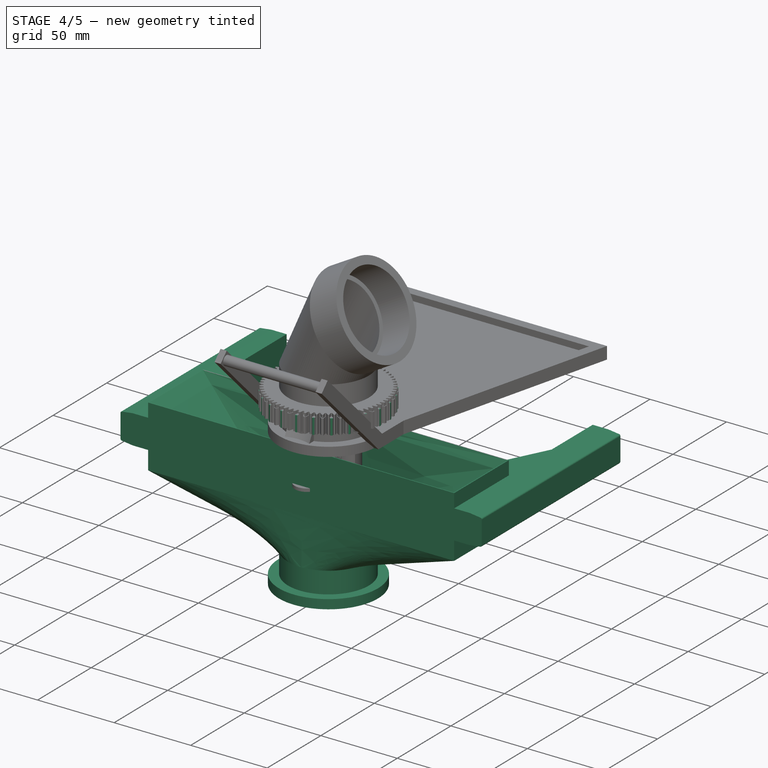
[diagram: stage 4 of 5 — iso view after this stage's code; geometry added in this stage tinted green]
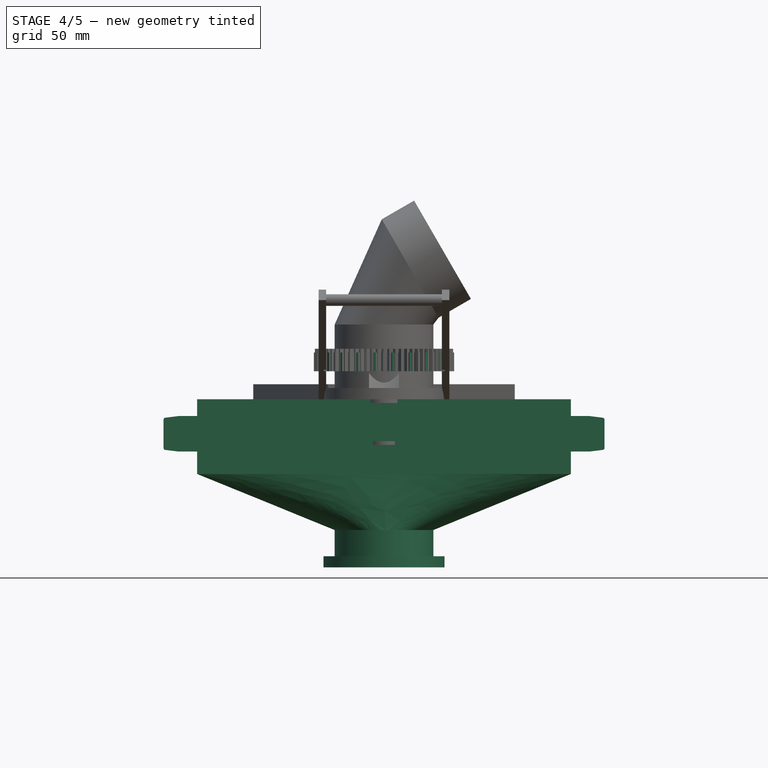
[diagram: stage 4 of 5 — front view after this stage's code; geometry added in this stage tinted green]
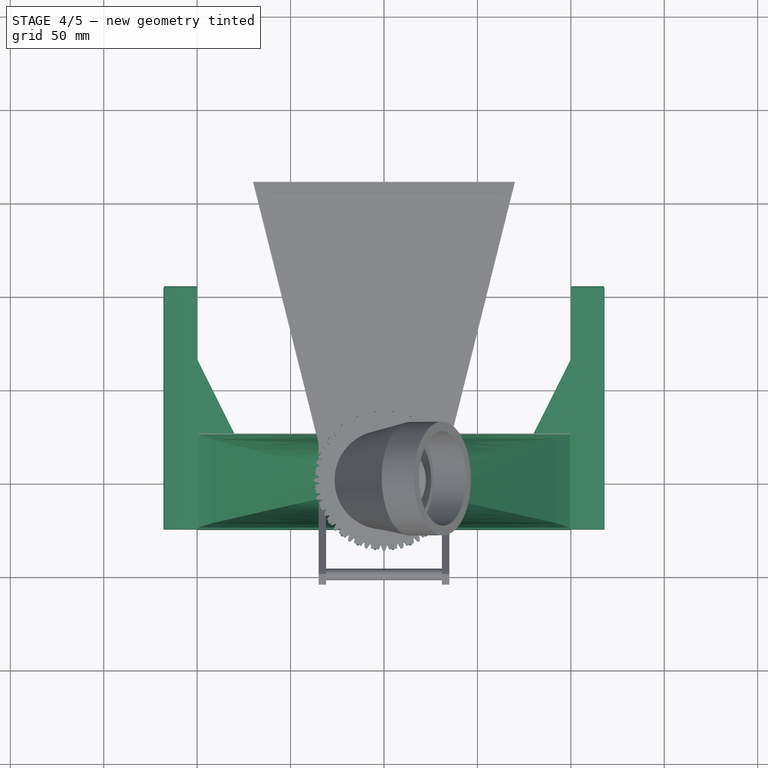
[diagram: stage 4 of 5 — top view after this stage's code; geometry added in this stage tinted green]
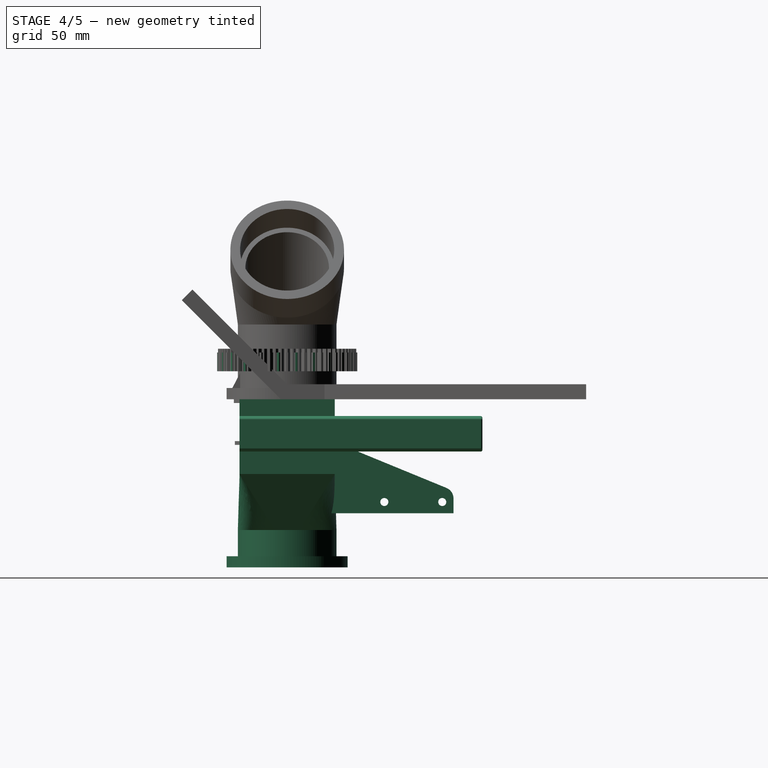
[diagram: stage 4 of 5 — right view after this stage's code; geometry added in this stage tinted green]
FEATURE [Sketcher::SketchObject] Sketch  label="Sketch: Pelletizer exit"
  FullyConstrained = true
  MapMode = 5
  Support = -> [XY_Plane]
  sketch-geometry (5):
    g0: LineSegment StartX=-100 StartY=25 StartZ=0 EndX=-100 EndY=-25 EndZ=0
    g1: LineSegment StartX=-100 StartY=-25 StartZ=0 EndX=100 EndY=-25 EndZ=0
    g2: LineSegment StartX=100 StartY=-25 StartZ=0 EndX=100 EndY=25 EndZ=0
    g3: LineSegment StartX=100 StartY=25 StartZ=0 EndX=-100 EndY=25 EndZ=0
    g4: GeomPoint X=0 Y=0 Z=0
  constraints (12):
    c: Coincident(g0,g1)
    c: Coincident(g1,g2)
    c: Coincident(g2,g3)
    c: Coincident(g3,g0)
    c: Horizontal(g1)
    c: Horizontal(g3)
    c: Vertical(g0)
    c: Vertical(g2)
    c: Symmetric(g1,g0,g4)
    c: Coincident(g4,g-1)
    c: Distance(g2) = 50
    c: Distance(g3) = 200
FEATURE [Sketcher::SketchObject] Sketch001
  FullyConstrained = true
  MapMode = 5
  Support = -> [XY_Plane]
  sketch-geometry (7):
    g0: LineSegment StartX=-100 StartY=25.5 StartZ=0 EndX=-100 EndY=-25.5 EndZ=0
    g1: LineSegment StartX=-100 StartY=-25.5 StartZ=0 EndX=100 EndY=-25.5 EndZ=0
    g2: LineSegment StartX=100 StartY=-25.5 StartZ=0 EndX=100 EndY=25.5 EndZ=0
    g3: LineSegment StartX=100 StartY=25.5 StartZ=0 EndX=-100 EndY=25.5 EndZ=0
    g4: GeomPoint X=0 Y=0 Z=0
    g5: GeomPoint X=0 Y=0 Z=0
    g6: GeomPoint X=0 Y=0 Z=0
  constraints (14):
    c: Coincident(g0,g1)
    c: Coincident(g1,g2)
    c: Coincident(g2,g3)
    c: Coincident(g3,g0)
    c: Horizontal(g1)
    c: Horizontal(g3)
    c: Vertical(g0)
    c: Vertical(g2)
    c: Symmetric(g1,g0,g4)
    c: Coincident(g4,g-1)
    c: Distance(g3) = 200
    c: Distance(g2) = 51
    c: Coincident(g5,g4)
    c: Coincident(g6,g4)
FEATURE [PartDesign::Pad] Pad
  Direction = (0,0,1)
  Length = 40
  Length2 = 10
  Profile = -> Sketch001
  ReferenceAxis = -> Sketch001 [N_Axis]
  Reversed = true
  Type = 0
FEATURE [Sketcher::SketchObject] Sketch002
  FullyConstrained = true
  MapMode = 5
  Placement = pos=(0,-25.5,0) rot=(1,0,0;1.5708rad)
  sketch-geometry (5):
    g0: LineSegment StartX=-100 StartY=0 StartZ=0 EndX=-100 EndY=-28 EndZ=0
    g1: LineSegment StartX=-100 StartY=-28 StartZ=0 EndX=-100 EndY=-9 EndZ=0
    g2: LineSegment StartX=-100 StartY=-9 StartZ=0 EndX=-118 EndY=-9 EndZ=0
    g3: LineSegment StartX=-118 StartY=-9 StartZ=0 EndX=-118 EndY=-28 EndZ=0
    g4: LineSegment StartX=-118 StartY=-28 StartZ=0 EndX=-100 EndY=-28 EndZ=0
  constraints (15):
    c: PointOnObject(g0,g-1)
    c: Vertical(g0)
    c: DistanceX(g0,g-1) = 100
    c: Distance(g0) = 28
    c: Coincident(g1,g0)
    c: PointOnObject(g1,g0)
    c: Distance(g1) = 19
    c: Coincident(g2,g1)
    c: Horizontal(g2)
    c: Coincident(g3,g2)
    c: Vertical(g3)
    c: Coincident(g4,g3)
    c: Coincident(g4,g1)
    c: Horizontal(g4)
    c: Distance(g2) = 18
FEATURE [PartDesign::Pad] Pad001
  BaseFeature = -> Pad
  Direction = (0,-1,2e-16)
  Length = 130
  Length2 = 10
  Profile = -> Sketch002
  ReferenceAxis = -> Sketch002 [N_Axis]
  Reversed = true
  Type = 0
FEATURE [PartDesign::Chamfer] Chamfer001
  Angle = 45
  Base = -> Pad001 [Edge13]
  BaseFeature = -> Pad001
  ChamferType = 1
  FlipDirection = false
  Size = 8
  Size2 = 1
  SupportTransform = false
  UseAllEdges = false
FEATURE [PartDesign::Chamfer] Chamfer
  Angle = 45
  Base = -> Chamfer001 [Edge24]
  BaseFeature = -> Chamfer001
  ChamferType = 1
  FlipDirection = false
  Size = 1
  Size2 = 8
  SupportTransform = false
  UseAllEdges = false
FEATURE [PartDesign::Fillet] Fillet
  Base = -> Chamfer [Edge8,Edge7]
  BaseFeature = -> Chamfer
  Radius = 1
  SupportTransform = false
  UseAllEdges = false
FEATURE [PartDesign::Chamfer] Chamfer006
  Angle = 45
  Base = -> Fillet [Edge34]
  BaseFeature = -> Fillet
  ChamferType = 1
  FlipDirection = false
  Size = 40
  Size2 = 20
  SupportTransform = false
  UseAllEdges = false
FEATURE [PartDesign::Fillet] Fillet004
  Base = -> Chamfer006 [Edge3,Edge16,Vertex13,Edge14,Edge13,Edge15,Edge17,Edge18,Edge9]
  BaseFeature = -> Chamfer006
  Radius = 1
  SupportTransform = false
  UseAllEdges = false
FEATURE [PartDesign::Mirrored] Mirrored
  BaseFeature = -> Fillet004
  MirrorPlane = -> Sketch002 [V_Axis]
  Originals = -> [Pad001,Chamfer001,Chamfer,Fillet,Chamfer006,Fillet004]
FEATURE [Sketcher::SketchObject] Sketch003
  AttachmentOffset = pos=(0,0,30) rot=(0,0,1;0rad)
  FullyConstrained = true
  MapMode = 5
  Placement = pos=(0,0,-70) rot=(1,0,0;3.14159rad)
  Support = -> [Mirrored]
  sketch-geometry (3):
    g0: Circle CenterX=-1e-16 CenterY=0 CenterZ=0 NormalX=0 NormalY=0 NormalZ=1 AngleXU=0 Radius=26.4
    g1: Circle CenterX=-1e-16 CenterY=0 CenterZ=0 NormalX=0 NormalY=0 NormalZ=1 AngleXU=0 Radius=22.4
    g2: LineSegment StartX=22.4 StartY=0 StartZ=0 EndX=26.4 EndY=0 EndZ=0
  constraints (8):
    c: Coincident(g0,g-1)
    c: Coincident(g1,g0)
    c: Diameter(g1) = 44.8
    c: PointOnObject(g2,g1)
    c: PointOnObject(g2,g0)
    c: Horizontal(g2)
    c: PointOnObject(g2,g-1)
    c: Distance(g2) = 4
FEATURE [PartDesign::AdditiveLoft] AdditiveLoft
  BaseFeature = -> Mirrored
  Closed = false
  Profile = -> Mirrored [Face15]
  Ruled = false
  Sections = -> [Sketch003]
FEATURE [Sketcher::SketchObject] Sketch049
  FullyConstrained = true
  MapMode = 5
  Support = -> [AdditiveLoft]
  sketch-geometry (5):
    g0: LineSegment StartX=-98.5 StartY=24 StartZ=0 EndX=-98.5 EndY=-24 EndZ=0
    g1: LineSegment StartX=-98.5 StartY=-24 StartZ=0 EndX=98.5 EndY=-24 EndZ=0
    g2: LineSegment StartX=98.5 StartY=-24 StartZ=0 EndX=98.5 EndY=24 EndZ=0
    g3: LineSegment StartX=98.5 StartY=24 StartZ=0 EndX=-98.5 EndY=24 EndZ=0
    g4: GeomPoint X=0 Y=0 Z=0
  constraints (12):
    c: Coincident(g0,g1)
    c: Coincident(g1,g2)
    c: Coincident(g2,g3)
    c: Coincident(g3,g0)
    c: Horizontal(g1)
    c: Horizontal(g3)
    c: Vertical(g0)
    c: Vertical(g2)
    c: Symmetric(g1,g0,g4)
    c: Coincident(g4,g-1)
    c: Distance(g2) = 48
    c: Distance(g1) = 197
FEATURE [Sketcher::SketchObject] Sketch050
  FullyConstrained = true
  MapMode = 5
  Placement = pos=(0,0,-70) rot=(1,0,0;3.14159rad)
  Support = -> [AdditiveLoft]
  sketch-geometry (1):
    g0: Circle CenterX=0 CenterY=0 CenterZ=0 NormalX=0 NormalY=0 NormalZ=1 AngleXU=0 Radius=22.4
  constraints (2):
    c: Coincident(g0,g-1)
    c: Diameter(g0) = 44.8
FEATURE [PartDesign::SubtractiveLoft] SubtractiveLoft
  BaseFeature = -> AdditiveLoft
  Closed = false
  Profile = -> Sketch049
  Ruled = false
  Sections = -> [Sketch050]
FEATURE [PartDesign::Chamfer] Chamfer007
  Angle = 45
  Base = -> SubtractiveLoft [Edge68,Edge71]
  BaseFeature = -> SubtractiveLoft
  ChamferType = 1
  FlipDirection = false
  Size = 1
  Size2 = 6
  SupportTransform = false
  UseAllEdges = false
FEATURE [PartDesign::Chamfer] Chamfer008
  Angle = 45
  Base = -> Chamfer007 [Edge7,Edge9,Edge2]
  BaseFeature = -> Chamfer007
  ChamferType = 1
  FlipDirection = false
  Size = 1
  Size2 = 8.6
  SupportTransform = false
  UseAllEdges = false
FEATURE [PartDesign::Pad] Pad022
  BaseFeature = -> Chamfer008
  Direction = (0,0,-1)
  Length = 20
  Length2 = 10
  Profile = -> Chamfer008 [Face29]
  Type = 0
FEATURE [PartDesign::Revolution] Revolution
  Angle = 360
  Axis = (0,-2e-16,1)
  Base = (0,0,0)
  BaseFeature = -> Pad022
  Profile = -> Sketch004
  ReferenceAxis = -> Sketch004 [V_Axis]
  Reversed = true
FEATURE [PartDesign::Pad] Pad035
  BaseFeature = -> Revolution
  Direction = (1,-2e-16,3e-16)
  Length = 4
  Length2 = 10
  Profile = -> Sketch066
  ReferenceAxis = -> Sketch066 [N_Axis]
  Reversed = true
  Type = 0
FEATURE [PartDesign::Mirrored] Mirrored001
  MirrorPlane = -> YZ_Plane
FEATURE [PartDesign::MultiTransform] MultiTransform
  BaseFeature = -> Pad035
  Originals = -> [Pad035]
  Transformations = -> [Mirrored001]
FEATURE [Sketcher::SketchObject] Sketch078
  FullyConstrained = true
  MapMode = 5
  Placement = pos=(0,0,64) rot=(0,0,1;0rad)
  Support = -> [Pad034]
FEATURE [PartDesign::Body] Body017  label="Body002: MMPP004 Motor"
  Group = -> [Sketch074,Pad032,Chamfer010,Sketch075,Pocket011,Sketch076,Pad033,Sketch077,Pad034,Sketch078]
  Origin = -> Origin019
  Placement = pos=(2.2e-14,67.5,-61) rot=(0.707107,0.707107,0;3.14159rad)
  Tip = -> Pad034
FEATURE [Sketcher::SketchObject] Sketch079
  FullyConstrained = true
  MapMode = 5
  Placement = pos=(21.15,-4.7e-15,3.8e-15) rot=(0.57735,0.57735,0.57735;2.0944rad)
  Support = -> [MultiTransform]
  sketch-geometry (3):
    g0: LineSegment StartX=52 StartY=-55 StartZ=0 EndX=83 EndY=-55 EndZ=0
    g1: Circle CenterX=52 CenterY=-55 CenterZ=0 NormalX=0 NormalY=0 NormalZ=1 AngleXU=0 Radius=2.15
    g2: Circle CenterX=83 CenterY=-55 CenterZ=0 NormalX=0 NormalY=0 NormalZ=1 AngleXU=0 Radius=2.15
  constraints (8):
    c: Horizontal(g0)
    c: Distance(g0) = 31
    c: DistanceX(g-1,g0) = 52
    c: DistanceY(g0,g-1) = 55
    c: Coincident(g1,g0)
    c: Coincident(g2,g0)
    c: Equal(g1,g2)
    c: Diameter(g2) = 4.3
FEATURE [PartDesign::Pocket] Pocket
  BaseFeature = -> MultiTransform
  Direction = (-1,2e-16,-2e-16)
  Length = 5
  Length2 = 5
  Profile = -> Sketch079
  ReferenceAxis = -> Sketch079 [N_Axis]
  Type = 1
FEATURE [Sketcher::SketchObject] Sketch084  label="Sketch copy 003"
  AttachmentOffset = pos=(14,0,30) rot=(0,1,0;1.0472rad)
  FullyConstrained = true
  MapMode = 5
  Placement = pos=(14,0,70) rot=(0,1,0;1.0472rad)
  Support = -> [AdditiveLoft003]
  sketch-geometry (3):
    g0: Circle CenterX=0 CenterY=0 CenterZ=0 NormalX=0 NormalY=0 NormalZ=1 AngleXU=0 Radius=30.4
    g1: Circle CenterX=0 CenterY=0 CenterZ=0 NormalX=0 NormalY=0 NormalZ=1 AngleXU=0 Radius=22.4
    g2: LineSegment StartX=22.4 StartY=0 StartZ=0 EndX=30.4 EndY=0 EndZ=0
  constraints (8):
    c: Coincident(g0,g-1)
    c: Coincident(g1,g0)
    c: PointOnObject(g2,g1)
    c: PointOnObject(g2,g0)
    c: Horizontal(g2)
    c: Distance(g2) = 8
    c: PointOnObject(g2,g-1)
    c: Diameter(g1) = 44.8
FEATURE [PartDesign::AdditiveLoft] AdditiveLoft004
  BaseFeature = -> AdditiveLoft003
  Closed = false
  Profile = -> AdditiveLoft003 [Face3]
  Ruled = false
  Sections = -> [Sketch084]
FEATURE [PartDesign::Plane] DatumPlane001
  Length = 96.6141
  MapMode = 11
  Placement = pos=(14,0,70) rot=(0.447214,0.447214,0.774597;1.82348rad)
  ResizeMode = 0
  Support = -> [AdditiveLoft004]
  Width = 177.335
FEATURE [Sketcher::SketchObject] Sketch085
  FullyConstrained = true
  MapMode = 5
  Placement = pos=(14,0,70) rot=(0.447214,0.447214,0.774597;1.82348rad)
  Support = -> [DatumPlane001]
  sketch-geometry (2):
    g0: Circle CenterX=0 CenterY=0 CenterZ=0 NormalX=0 NormalY=0 NormalZ=1 AngleXU=0 Radius=25.2
    g1: Circle CenterX=0 CenterY=0 CenterZ=0 NormalX=0 NormalY=0 NormalZ=1 AngleXU=0 Radius=30.4
  constraints (4):
    c: Coincident(g0,g-1)
    c: Diameter(g0) = 50.4
    c: Coincident(g1,g0)
    c: Diameter(g1) = 60.8
FEATURE [PartDesign::Pad] Pad039
  BaseFeature = -> AdditiveLoft004
  Direction = (0.866025,0,0.5)
  Length = 20
  Length2 = 10
  Profile = -> Sketch085
  ReferenceAxis = -> Sketch085 [N_Axis]
  Type = 0
FEATURE [Sketcher::SketchObject] Sketch086
  FullyConstrained = true
  MapMode = 5
  Placement = pos=(0,0,0) rot=(0.57735,0.57735,0.57735;2.0944rad)
  Support = -> [YZ_Plane020]
  sketch-geometry (5):
    g0: LineSegment StartX=26.4 StartY=0 StartZ=0 EndX=0 EndY=0 EndZ=0
    g1: LineSegment StartX=26.4 StartY=0 StartZ=0 EndX=32.4 EndY=0 EndZ=0
    g2: LineSegment StartX=32.4 StartY=0 StartZ=0 EndX=32.4 EndY=6 EndZ=0
    g3: LineSegment StartX=26.4 StartY=0 StartZ=0 EndX=26.4 EndY=6 EndZ=0
    g4: LineSegment StartX=26.4 StartY=6 StartZ=0 EndX=32.4 EndY=6 EndZ=0
  constraints (14):
    c: PointOnObject(g0,g-1)
    c: Coincident(g0,g-1)
    c: Distance(g0) = 26.4
    c: Coincident(g1,g0)
    c: PointOnObject(g1,g-1)
    c: Distance(g1) = 6
    c: Coincident(g2,g1)
    c: Vertical(g2)
    c: Distance(g2) = 6
    c: Coincident(g3,g1)
    c: Vertical(g3)
    c: Coincident(g4,g3)
    c: Coincident(g4,g2)
    c: Horizontal(g4)
FEATURE [PartDesign::Revolution] Revolution008
  Angle = 360
  Axis = (-2e-16,3e-16,1)
  Base = (0,0,0)
  BaseFeature = -> Pad039
  Profile = -> Sketch086
  ReferenceAxis = -> Sketch086 [V_Axis]
  Reversed = true
FEATURE [Sketcher::SketchObject] Sketch087
  AttachmentOffset = pos=(0,0,-20) rot=(0,0,1;0rad)
  FullyConstrained = false
  MapMode = 11
  Placement = pos=(0,0,20) rot=(0,0,1;1.5708rad)
  Support = -> [Revolution008]
  sketch-geometry (385):
    g0: BSplineCurve PolesCount=4 KnotsCount=2 Degree=3 IsPeriodic=0
    g1: BSplineCurve PolesCount=4 KnotsCount=2 Degree=3 IsPeriodic=0
    g2: ArcOfCircle CenterX=0.00055013 CenterY=0 CenterZ=0 NormalX=0 NormalY=0 NormalZ=1 AngleXU=-0.0154527 Radius=37.5 StartAngle=0 EndAngle=0.0309054
    g3: BSplineCurve PolesCount=4 KnotsCount=2 Degree=3 IsPeriodic=0
    g4: BSplineCurve PolesCount=4 KnotsCount=2 Degree=3 IsPeriodic=0
    g5: ArcOfCircle CenterX=34.6235 CenterY=2.09232 CenterZ=0 NormalX=0 NormalY=0 NormalZ=1 AngleXU=-1.85633 Radius=0.5625 StartAngle=5.00512 EndAngle=6.28319
    g6: ArcOfCircle CenterX=-2.68773e-10 CenterY=-1.836e-11 CenterZ=0 NormalX=0 NormalY=0 NormalZ=1 AngleXU=0.0612332 Radius=34.125 StartAngle=0 EndAngle=0.00843337
    g7: ArcOfCircle CenterX=34.6004 CenterY=2.44486 CenterZ=0 NormalX=0 NormalY=0 NormalZ=1 AngleXU=-3.01788 Radius=0.5625 StartAngle=5.0052 EndAngle=6.28319
    g8: BSplineCurve PolesCount=4 KnotsCount=2 Degree=3 IsPeriodic=0
    g9: BSplineCurve PolesCount=4 KnotsCount=2 Degree=3 IsPeriodic=0
    g10: ArcOfCircle CenterX=0.000545423 CenterY=7.18064e-05 CenterZ=0 NormalX=0 NormalY=0 NormalZ=1 AngleXU=0.115447 Radius=37.5 StartAngle=0 EndAngle=0.0309054
    g11: BSplineCurve PolesCount=4 KnotsCount=2 Degree=3 IsPeriodic=0
    g12: BSplineCurve PolesCount=4 KnotsCount=2 Degree=3 IsPeriodic=0
    g13: ArcOfCircle CenterX=34.0542 CenterY=6.5937 CenterZ=0 NormalX=0 NormalY=0 NormalZ=1 AngleXU=-1.72543 Radius=0.5625 StartAngle=5.00512 EndAngle=6.28319
    g14: ArcOfCircle CenterX=2.04675e-10 CenterY=3.91447e-11 CenterZ=0 NormalX=0 NormalY=0 NormalZ=1 AngleXU=0.192133 Radius=34.125 StartAngle=0 EndAngle=0.00843337
    g15: ArcOfCircle CenterX=33.9853 CenterY=6.9402 CenterZ=0 NormalX=0 NormalY=0 NormalZ=1 AngleXU=-2.88698 Radius=0.5625 StartAngle=5.0052 EndAngle=6.28319
    g16: BSplineCurve PolesCount=4 KnotsCount=2 Degree=3 IsPeriodic=0
    g17: BSplineCurve PolesCount=4 KnotsCount=2 Degree=3 IsPeriodic=0
    g18: ArcOfCircle CenterX=0.000531385 CenterY=0.000142384 CenterZ=0 NormalX=0 NormalY=0 NormalZ=1 AngleXU=0.246347 Radius=37.5 StartAngle=0 EndAngle=0.0309054
    g19: BSplineCurve PolesCount=4 KnotsCount=2 Degree=3 IsPeriodic=0
    g20: BSplineCurve PolesCount=4 KnotsCount=2 Degree=3 IsPeriodic=0
    g21: ArcOfCircle CenterX=32.9022 CenterY=10.9823 CenterZ=0 NormalX=0 NormalY=0 NormalZ=1 AngleXU=-1.59453 Radius=0.5625 StartAngle=5.00512 EndAngle=6.28319
    g22: ArcOfCircle CenterX=-3.25322e-10 CenterY=-1.1129e-10 CenterZ=0 NormalX=0 NormalY=0 NormalZ=1 AngleXU=0.323033 Radius=34.125 StartAngle=0 EndAngle=0.00843337
    g23: ArcOfCircle CenterX=32.7887 CenterY=11.3168 CenterZ=0 NormalX=0 NormalY=0 NormalZ=1 AngleXU=-2.75609 Radius=0.5625 StartAngle=5.0052 EndAngle=6.28319
    g24: BSplineCurve PolesCount=4 KnotsCount=2 Degree=3 IsPeriodic=0
    g25: BSplineCurve PolesCount=4 KnotsCount=2 Degree=3 IsPeriodic=0
    g26: ArcOfCircle CenterX=0.000508254 CenterY=0.000210526 CenterZ=0 NormalX=0 NormalY=0 NormalZ=1 AngleXU=0.377246 Radius=37.5 StartAngle=0 EndAngle=0.0309054
    g27: BSplineCurve PolesCount=4 KnotsCount=2 Degree=3 IsPeriodic=0
    g28: BSplineCurve PolesCount=4 KnotsCount=2 Degree=3 IsPeriodic=0
    g29: ArcOfCircle CenterX=31.1873 CenterY=15.1829 CenterZ=0 NormalX=0 NormalY=0 NormalZ=1 AngleXU=-1.46363 Radius=0.5625 StartAngle=5.00512 EndAngle=6.28319
    g30: ArcOfCircle CenterX=-8.864e-12 CenterY=-5.0084e-12 CenterZ=0 NormalX=0 NormalY=0 NormalZ=1 AngleXU=0.453932 Radius=34.125 StartAngle=0 EndAngle=0.00843337
    g31: ArcOfCircle CenterX=31.031 CenterY=15.4998 CenterZ=0 NormalX=0 NormalY=0 NormalZ=1 AngleXU=-2.62519 Radius=0.5625 StartAngle=5.0052 EndAngle=6.28319
    g32: BSplineCurve PolesCount=4 KnotsCount=2 Degree=3 IsPeriodic=0
    g33: BSplineCurve PolesCount=4 KnotsCount=2 Degree=3 IsPeriodic=0
    g34: ArcOfCircle CenterX=0.000476426 CenterY=0.000275065 CenterZ=0 NormalX=0 NormalY=0 NormalZ=1 AngleXU=0.508146 Radius=37.5 StartAngle=0 EndAngle=0.0309054
    g35: BSplineCurve PolesCount=4 KnotsCount=2 Degree=3 IsPeriodic=0
    g36: BSplineCurve PolesCount=4 KnotsCount=2 Degree=3 IsPeriodic=0
    g37: ArcOfCircle CenterX=28.9387 CenterY=19.1238 CenterZ=0 NormalX=0 NormalY=0 NormalZ=1 AngleXU=-1.33273 Radius=0.5625 StartAngle=5.00512 EndAngle=6.28319
    g38: ArcOfCircle CenterX=-1.03163e-09 CenterY=-6.8988e-10 CenterZ=0 NormalX=0 NormalY=0 NormalZ=1 AngleXU=0.584832 Radius=34.125 StartAngle=0 EndAngle=0.00843337
    g39: ArcOfCircle CenterX=28.7424 CenterY=19.4175 CenterZ=0 NormalX=0 NormalY=0 NormalZ=1 AngleXU=-2.49429 Radius=0.5625 StartAngle=5.0052 EndAngle=6.28319
    g40: BSplineCurve PolesCount=4 KnotsCount=2 Degree=3 IsPeriodic=0
    g41: BSplineCurve PolesCount=4 KnotsCount=2 Degree=3 IsPeriodic=0
    g42: ArcOfCircle CenterX=0.000436447 CenterY=0.000334898 CenterZ=0 NormalX=0 NormalY=0 NormalZ=1 AngleXU=0.639046 Radius=37.5 StartAngle=0 EndAngle=0.0309054
    g43: BSplineCurve PolesCount=4 KnotsCount=2 Degree=3 IsPeriodic=0
    g44: BSplineCurve PolesCount=4 KnotsCount=2 Degree=3 IsPeriodic=0
    g45: ArcOfCircle CenterX=26.195 CenterY=22.7374 CenterZ=0 NormalX=0 NormalY=0 NormalZ=1 AngleXU=-1.20183 Radius=0.5625 StartAngle=5.00512 EndAngle=6.28319
    g46: ArcOfCircle CenterX=2.95604e-11 CenterY=2.54623e-11 CenterZ=0 NormalX=0 NormalY=0 NormalZ=1 AngleXU=0.715732 Radius=34.125 StartAngle=0 EndAngle=0.00843337
    g47: ArcOfCircle CenterX=25.962 CenterY=23.003 CenterZ=0 NormalX=0 NormalY=0 NormalZ=1 AngleXU=-2.36339 Radius=0.5625 StartAngle=5.0052 EndAngle=6.28319
    g48: BSplineCurve PolesCount=4 KnotsCount=2 Degree=3 IsPeriodic=0
    g49: BSplineCurve PolesCount=4 KnotsCount=2 Degree=3 IsPeriodic=0
    g50: ArcOfCircle CenterX=0.000389001 CenterY=0.000389001 CenterZ=0 NormalX=0 NormalY=0 NormalZ=1 AngleXU=0.769945 Radius=37.5 StartAngle=0 EndAngle=0.0309054
    g51: BSplineCurve PolesCount=4 KnotsCount=2 Degree=3 IsPeriodic=0
    g52: BSplineCurve PolesCount=4 KnotsCount=2 Degree=3 IsPeriodic=0
    g53: ArcOfCircle CenterX=23.003 CenterY=25.962 CenterZ=0 NormalX=0 NormalY=0 NormalZ=1 AngleXU=-1.07094 Radius=0.5625 StartAngle=5.00512 EndAngle=6.28319
    g54: ArcOfCircle CenterX=-3.53197e-10 CenterY=-4.04512e-10 CenterZ=0 NormalX=0 NormalY=0 NormalZ=1 AngleXU=0.846631 Radius=34.125 StartAngle=0 EndAngle=0.00843337
    g55: ArcOfCircle CenterX=22.7374 CenterY=26.195 CenterZ=0 NormalX=0 NormalY=0 NormalZ=1 AngleXU=-2.23249 Radius=0.5625 StartAngle=5.0052 EndAngle=6.28319
    g56: BSplineCurve PolesCount=4 KnotsCount=2 Degree=3 IsPeriodic=0
    g57: BSplineCurve PolesCount=4 KnotsCount=2 Degree=3 IsPeriodic=0
    g58: ArcOfCircle CenterX=0.000334898 CenterY=0.000436447 CenterZ=0 NormalX=0 NormalY=0 NormalZ=1 AngleXU=0.900845 Radius=37.5 StartAngle=0 EndAngle=0.0309054
    g59: BSplineCurve PolesCount=4 KnotsCount=2 Degree=3 IsPeriodic=0
    g60: BSplineCurve PolesCount=4 KnotsCount=2 Degree=3 IsPeriodic=0
    g61: ArcOfCircle CenterX=19.4175 CenterY=28.7424 CenterZ=0 NormalX=0 NormalY=0 NormalZ=1 AngleXU=-0.940036 Radius=0.5625 StartAngle=5.00512 EndAngle=6.28319
    g62: ArcOfCircle CenterX=-1.85794e-10 CenterY=-2.79529e-10 CenterZ=0 NormalX=0 NormalY=0 NormalZ=1 AngleXU=0.977531 Radius=34.125 StartAngle=0 EndAngle=0.00843337
    g63: ArcOfCircle CenterX=19.1238 CenterY=28.9387 CenterZ=0 NormalX=0 NormalY=0 NormalZ=1 AngleXU=-2.10159 Radius=0.5625 StartAngle=5.0052 EndAngle=6.28319
    g64: BSplineCurve PolesCount=4 KnotsCount=2 Degree=3 IsPeriodic=0
    g65: BSplineCurve PolesCount=4 KnotsCount=2 Degree=3 IsPeriodic=0
    g66: ArcOfCircle CenterX=0.000275065 CenterY=0.000476426 CenterZ=0 NormalX=0 NormalY=0 NormalZ=1 AngleXU=1.03174 Radius=37.5 StartAngle=0 EndAngle=0.0309054
    g67: BSplineCurve PolesCount=4 KnotsCount=2 Degree=3 IsPeriodic=0
    g68: BSplineCurve PolesCount=4 KnotsCount=2 Degree=3 IsPeriodic=0
    g69: ArcOfCircle CenterX=15.4998 CenterY=31.031 CenterZ=0 NormalX=0 NormalY=0 NormalZ=1 AngleXU=-0.809136 Radius=0.5625 StartAngle=5.00512 EndAngle=6.28319
    g70: ArcOfCircle CenterX=-3.91406e-10 CenterY=-7.94751e-10 CenterZ=0 NormalX=0 NormalY=0 NormalZ=1 AngleXU=1.10843 Radius=34.125 StartAngle=0 EndAngle=0.00843337
    g71: ArcOfCircle CenterX=15.1829 CenterY=31.1873 CenterZ=0 NormalX=0 NormalY=0 NormalZ=1 AngleXU=-1.97069 Radius=0.5625 StartAngle=5.0052 EndAngle=6.28319
    g72: BSplineCurve PolesCount=4 KnotsCount=2 Degree=3 IsPeriodic=0
    g73: BSplineCurve PolesCount=4 KnotsCount=2 Degree=3 IsPeriodic=0
    g74: ArcOfCircle CenterX=0.000210526 CenterY=0.000508254 CenterZ=0 NormalX=0 NormalY=0 NormalZ=1 AngleXU=1.16264 Radius=37.5 StartAngle=0 EndAngle=0.0309054
    g75: BSplineCurve PolesCount=4 KnotsCount=2 Degree=3 IsPeriodic=0
    g76: BSplineCurve PolesCount=4 KnotsCount=2 Degree=3 IsPeriodic=0
    g77: ArcOfCircle CenterX=11.3168 CenterY=32.7887 CenterZ=0 NormalX=0 NormalY=0 NormalZ=1 AngleXU=-0.678236 Radius=0.5625 StartAngle=5.00512 EndAngle=6.28319
    g78: ArcOfCircle CenterX=4.31839e-10 CenterY=1.27155e-09 CenterZ=0 NormalX=0 NormalY=0 NormalZ=1 AngleXU=1.23933 Radius=34.125 StartAngle=0 EndAngle=0.00843337
    g79: ArcOfCircle CenterX=10.9823 CenterY=32.9022 CenterZ=0 NormalX=0 NormalY=0 NormalZ=1 AngleXU=-1.83979 Radius=0.5625 StartAngle=5.0052 EndAngle=6.28319
    g80: BSplineCurve PolesCount=4 KnotsCount=2 Degree=3 IsPeriodic=0
    g81: BSplineCurve PolesCount=4 KnotsCount=2 Degree=3 IsPeriodic=0
    g82: ArcOfCircle CenterX=0.000142384 CenterY=0.000531385 CenterZ=0 NormalX=0 NormalY=0 NormalZ=1 AngleXU=1.29354 Radius=37.5 StartAngle=0 EndAngle=0.0309054
    g83: BSplineCurve PolesCount=4 KnotsCount=2 Degree=3 IsPeriodic=0
    g84: BSplineCurve PolesCount=4 KnotsCount=2 Degree=3 IsPeriodic=0
    g85: ArcOfCircle CenterX=6.9402 CenterY=33.9853 CenterZ=0 NormalX=0 NormalY=0 NormalZ=1 AngleXU=-0.547336 Radius=0.5625 StartAngle=5.00512 EndAngle=6.28319
    g86: ArcOfCircle CenterX=-1.27546e-10 CenterY=-6.46505e-10 CenterZ=0 NormalX=0 NormalY=0 NormalZ=1 AngleXU=1.37023 Radius=34.125 StartAngle=0 EndAngle=0.00843337
    g87: ArcOfCircle CenterX=6.5937 CenterY=34.0542 CenterZ=0 NormalX=0 NormalY=0 NormalZ=1 AngleXU=-1.70889 Radius=0.5625 StartAngle=5.0052 EndAngle=6.28319
    g88: BSplineCurve PolesCount=4 KnotsCount=2 Degree=3 IsPeriodic=0
    g89: BSplineCurve PolesCount=4 KnotsCount=2 Degree=3 IsPeriodic=0
    g90: ArcOfCircle CenterX=7.18064e-05 CenterY=0.000545423 CenterZ=0 NormalX=0 NormalY=0 NormalZ=1 AngleXU=1.42444 Radius=37.5 StartAngle=0 EndAngle=0.0309054
    g91: BSplineCurve PolesCount=4 KnotsCount=2 Degree=3 IsPeriodic=0
    g92: BSplineCurve PolesCount=4 KnotsCount=2 Degree=3 IsPeriodic=0
    g93: ArcOfCircle CenterX=2.44485 CenterY=34.6004 CenterZ=0 NormalX=0 NormalY=0 NormalZ=1 AngleXU=-0.416437 Radius=0.5625 StartAngle=5.00512 EndAngle=6.28319
    g94: ArcOfCircle CenterX=-1.60243e-11 CenterY=-2.46239e-10 CenterZ=0 NormalX=0 NormalY=0 NormalZ=1 AngleXU=1.50113 Radius=34.125 StartAngle=0 EndAngle=0.00843337
    g95: ArcOfCircle CenterX=2.09232 CenterY=34.6235 CenterZ=0 NormalX=0 NormalY=0 NormalZ=1 AngleXU=-1.57799 Radius=0.5625 StartAngle=5.0052 EndAngle=6.28319
    g96: BSplineCurve PolesCount=4 KnotsCount=2 Degree=3 IsPeriodic=0
    g97: BSplineCurve PolesCount=4 KnotsCount=2 Degree=3 IsPeriodic=0
    g98: ArcOfCircle CenterX=2.3e-15 CenterY=0.00055013 CenterZ=0 NormalX=0 NormalY=0 NormalZ=1 AngleXU=1.55534 Radius=37.5 StartAngle=0 EndAngle=0.0309054
    g99: BSplineCurve PolesCount=4 KnotsCount=2 Degree=3 IsPeriodic=0
    g100: BSplineCurve PolesCount=4 KnotsCount=2 Degree=3 IsPeriodic=0
    g101: ArcOfCircle CenterX=-2.09232 CenterY=34.6235 CenterZ=0 NormalX=0 NormalY=0 NormalZ=1 AngleXU=-0.285537 Radius=0.5625 StartAngle=5.00512 EndAngle=6.28319
    g102: ArcOfCircle CenterX=1.8145e-11 CenterY=-2.65462e-10 CenterZ=0 NormalX=0 NormalY=0 NormalZ=1 AngleXU=1.63203 Radius=34.125 StartAngle=0 EndAngle=0.00843337
    g103: ArcOfCircle CenterX=-2.44486 CenterY=34.6004 CenterZ=0 NormalX=0 NormalY=0 NormalZ=1 AngleXU=-1.44709 Radius=0.5625 StartAngle=5.0052 EndAngle=6.28319
    g104: BSplineCurve PolesCount=4 KnotsCount=2 Degree=3 IsPeriodic=0
    g105: BSplineCurve PolesCount=4 KnotsCount=2 Degree=3 IsPeriodic=0
    g106: ArcOfCircle CenterX=-7.18064e-05 CenterY=0.000545423 CenterZ=0 NormalX=0 NormalY=0 NormalZ=1 AngleXU=1.68624 Radius=37.5 StartAngle=0 EndAngle=0.0309054
    g107: BSplineCurve PolesCount=4 KnotsCount=2 Degree=3 IsPeriodic=0
    g108: BSplineCurve PolesCount=4 KnotsCount=2 Degree=3 IsPeriodic=0
    g109: ArcOfCircle CenterX=-6.5937 CenterY=34.0542 CenterZ=0 NormalX=0 NormalY=0 NormalZ=1 AngleXU=-0.154637 Radius=0.5625 StartAngle=5.00512 EndAngle=6.28319
    g110: ArcOfCircle CenterX=1.27237e-10 CenterY=-6.31854e-10 CenterZ=0 NormalX=0 NormalY=0 NormalZ=1 AngleXU=1.76293 Radius=34.125 StartAngle=0 EndAngle=0.00843337
    g111: ArcOfCircle CenterX=-6.9402 CenterY=33.9853 CenterZ=0 NormalX=0 NormalY=0 NormalZ=1 AngleXU=-1.31619 Radius=0.5625 StartAngle=5.0052 EndAngle=6.28319
    g112: BSplineCurve PolesCount=4 KnotsCount=2 Degree=3 IsPeriodic=0
    g113: BSplineCurve PolesCount=4 KnotsCount=2 Degree=3 IsPeriodic=0
    g114: ArcOfCircle CenterX=-0.000142384 CenterY=0.000531385 CenterZ=0 NormalX=0 NormalY=0 NormalZ=1 AngleXU=1.81714 Radius=37.5 StartAngle=0 EndAngle=0.0309054
    g115: BSplineCurve PolesCount=4 KnotsCount=2 Degree=3 IsPeriodic=0
    g116: BSplineCurve PolesCount=4 KnotsCount=2 Degree=3 IsPeriodic=0
    g117: ArcOfCircle CenterX=-10.9823 CenterY=32.9022 CenterZ=0 NormalX=0 NormalY=0 NormalZ=1 AngleXU=-0.0237377 Radius=0.5625 StartAngle=5.00512 EndAngle=6.28319
    g118: ArcOfCircle CenterX=1.11293e-10 CenterY=-3.25322e-10 CenterZ=0 NormalX=0 NormalY=0 NormalZ=1 AngleXU=1.89383 Radius=34.125 StartAngle=0 EndAngle=0.00843337
    g119: ArcOfCircle CenterX=-11.3168 CenterY=32.7887 CenterZ=0 NormalX=0 NormalY=0 NormalZ=1 AngleXU=-1.18529 Radius=0.5625 StartAngle=5.0052 EndAngle=6.28319
    g120: BSplineCurve PolesCount=4 KnotsCount=2 Degree=3 IsPeriodic=0
    g121: BSplineCurve PolesCount=4 KnotsCount=2 Degree=3 IsPeriodic=0
    g122: ArcOfCircle CenterX=-0.000210526 CenterY=0.000508254 CenterZ=0 NormalX=0 NormalY=0 NormalZ=1 AngleXU=1.94804 Radius=37.5 StartAngle=0 EndAngle=0.0309054
    g123: BSplineCurve PolesCount=4 KnotsCount=2 Degree=3 IsPeriodic=0
    g124: BSplineCurve PolesCount=4 KnotsCount=2 Degree=3 IsPeriodic=0
    g125: ArcOfCircle CenterX=-15.1829 CenterY=31.1873 CenterZ=0 NormalX=0 NormalY=0 NormalZ=1 AngleXU=0.107162 Radius=0.5625 StartAngle=5.00512 EndAngle=6.28319
    g126: ArcOfCircle CenterX=-1.54728e-10 CenterY=3.14866e-10 CenterZ=0 NormalX=0 NormalY=0 NormalZ=1 AngleXU=2.02473 Radius=34.125 StartAngle=0 EndAngle=0.00843337
    g127: ArcOfCircle CenterX=-15.4998 CenterY=31.031 CenterZ=0 NormalX=0 NormalY=0 NormalZ=1 AngleXU=-1.05439 Radius=0.5625 StartAngle=5.0052 EndAngle=6.28319
    g128: BSplineCurve PolesCount=4 KnotsCount=2 Degree=3 IsPeriodic=0
    g129: BSplineCurve PolesCount=4 KnotsCount=2 Degree=3 IsPeriodic=0
    g130: ArcOfCircle CenterX=-0.000275065 CenterY=0.000476426 CenterZ=0 NormalX=0 NormalY=0 NormalZ=1 AngleXU=2.07894 Radius=37.5 StartAngle=0 EndAngle=0.0309054
    g131: BSplineCurve PolesCount=4 KnotsCount=2 Degree=3 IsPeriodic=0
    g132: BSplineCurve PolesCount=4 KnotsCount=2 Degree=3 IsPeriodic=0
    g133: ArcOfCircle CenterX=-19.1238 CenterY=28.9387 CenterZ=0 NormalX=0 NormalY=0 NormalZ=1 AngleXU=0.238062 Radius=0.5625 StartAngle=5.00512 EndAngle=6.28319
    g134: ArcOfCircle CenterX=6.90749e-10 CenterY=-1.03292e-09 CenterZ=0 NormalX=0 NormalY=0 NormalZ=1 AngleXU=2.15563 Radius=34.125 StartAngle=0 EndAngle=0.00843337
    g135: ArcOfCircle CenterX=-19.4175 CenterY=28.7424 CenterZ=0 NormalX=0 NormalY=0 NormalZ=1 AngleXU=-0.923489 Radius=0.5625 StartAngle=5.0052 EndAngle=6.28319
    g136: BSplineCurve PolesCount=4 KnotsCount=2 Degree=3 IsPeriodic=0
    g137: BSplineCurve PolesCount=4 KnotsCount=2 Degree=3 IsPeriodic=0
    g138: ArcOfCircle CenterX=-0.000334898 CenterY=0.000436447 CenterZ=0 NormalX=0 NormalY=0 NormalZ=1 AngleXU=2.20984 Radius=37.5 StartAngle=0 EndAngle=0.0309054
    g139: BSplineCurve PolesCount=4 KnotsCount=2 Degree=3 IsPeriodic=0
    g140: BSplineCurve PolesCount=4 KnotsCount=2 Degree=3 IsPeriodic=0
    g141: ArcOfCircle CenterX=-22.7374 CenterY=26.195 CenterZ=0 NormalX=0 NormalY=0 NormalZ=1 AngleXU=0.368961 Radius=0.5625 StartAngle=5.00512 EndAngle=6.28319
    g142: ArcOfCircle CenterX=1.67743e-10 CenterY=-1.90312e-10 CenterZ=0 NormalX=0 NormalY=0 NormalZ=1 AngleXU=2.28653 Radius=34.125 StartAngle=0 EndAngle=0.00843337
    g143: ArcOfCircle CenterX=-23.003 CenterY=25.962 CenterZ=0 NormalX=0 NormalY=0 NormalZ=1 AngleXU=-0.79259 Radius=0.5625 StartAngle=5.0052 EndAngle=6.28319
    g144: BSplineCurve PolesCount=4 KnotsCount=2 Degree=3 IsPeriodic=0
    g145: BSplineCurve PolesCount=4 KnotsCount=2 Degree=3 IsPeriodic=0
    g146: ArcOfCircle CenterX=-0.000389001 CenterY=0.000389001 CenterZ=0 NormalX=0 NormalY=0 NormalZ=1 AngleXU=2.34074 Radius=37.5 StartAngle=0 EndAngle=0.0309054
    g147: BSplineCurve PolesCount=4 KnotsCount=2 Degree=3 IsPeriodic=0
    g148: BSplineCurve PolesCount=4 KnotsCount=2 Degree=3 IsPeriodic=0
    g149: ArcOfCircle CenterX=-25.962 CenterY=23.003 CenterZ=0 NormalX=0 NormalY=0 NormalZ=1 AngleXU=0.499861 Radius=0.5625 StartAngle=5.00512 EndAngle=6.28319
    g150: ArcOfCircle CenterX=1.05493e-09 CenterY=-9.23169e-10 CenterZ=0 NormalX=0 NormalY=0 NormalZ=1 AngleXU=2.41743 Radius=34.125 StartAngle=0 EndAngle=0.00843337
    g151: ArcOfCircle CenterX=-26.195 CenterY=22.7374 CenterZ=0 NormalX=0 NormalY=0 NormalZ=1 AngleXU=-0.66169 Radius=0.5625 StartAngle=5.0052 EndAngle=6.28319
    g152: BSplineCurve PolesCount=4 KnotsCount=2 Degree=3 IsPeriodic=0
    g153: BSplineCurve PolesCount=4 KnotsCount=2 Degree=3 IsPeriodic=0
    g154: ArcOfCircle CenterX=-0.000436447 CenterY=0.000334898 CenterZ=0 NormalX=0 NormalY=0 NormalZ=1 AngleXU=2.47164 Radius=37.5 StartAngle=0 EndAngle=0.0309054
    g155: BSplineCurve PolesCount=4 KnotsCount=2 Degree=3 IsPeriodic=0
    g156: BSplineCurve PolesCount=4 KnotsCount=2 Degree=3 IsPeriodic=0
    g157: ArcOfCircle CenterX=-28.7424 CenterY=19.4175 CenterZ=0 NormalX=0 NormalY=0 NormalZ=1 AngleXU=0.630761 Radius=0.5625 StartAngle=5.00512 EndAngle=6.28319
    g158: ArcOfCircle CenterX=5.54044e-10 CenterY=-3.69205e-10 CenterZ=0 NormalX=0 NormalY=0 NormalZ=1 AngleXU=2.54833 Radius=34.125 StartAngle=0 EndAngle=0.00843337
    g159: ArcOfCircle CenterX=-28.9387 CenterY=19.1238 CenterZ=0 NormalX=0 NormalY=0 NormalZ=1 AngleXU=-0.53079 Radius=0.5625 StartAngle=5.0052 EndAngle=6.28319
    g160: BSplineCurve PolesCount=4 KnotsCount=2 Degree=3 IsPeriodic=0
    g161: BSplineCurve PolesCount=4 KnotsCount=2 Degree=3 IsPeriodic=0
    g162: ArcOfCircle CenterX=-0.000476426 CenterY=0.000275065 CenterZ=0 NormalX=0 NormalY=0 NormalZ=1 AngleXU=2.60254 Radius=37.5 StartAngle=0 EndAngle=0.0309054
    g163: BSplineCurve PolesCount=4 KnotsCount=2 Degree=3 IsPeriodic=0
    g164: BSplineCurve PolesCount=4 KnotsCount=2 Degree=3 IsPeriodic=0
    g165: ArcOfCircle CenterX=-31.031 CenterY=15.4998 CenterZ=0 NormalX=0 NormalY=0 NormalZ=1 AngleXU=0.76166 Radius=0.5625 StartAngle=5.00512 EndAngle=6.28319
    g166: ArcOfCircle CenterX=7.94754e-10 CenterY=-3.91399e-10 CenterZ=0 NormalX=0 NormalY=0 NormalZ=1 AngleXU=2.67923 Radius=34.125 StartAngle=0 EndAngle=0.00843337
    g167: ArcOfCircle CenterX=-31.1873 CenterY=15.1829 CenterZ=0 NormalX=0 NormalY=0 NormalZ=1 AngleXU=-0.399891 Radius=0.5625 StartAngle=5.0052 EndAngle=6.28319
    g168: BSplineCurve PolesCount=4 KnotsCount=2 Degree=3 IsPeriodic=0
    g169: BSplineCurve PolesCount=4 KnotsCount=2 Degree=3 IsPeriodic=0
    g170: ArcOfCircle CenterX=-0.000508254 CenterY=0.000210526 CenterZ=0 NormalX=0 NormalY=0 NormalZ=1 AngleXU=2.73344 Radius=37.5 StartAngle=0 EndAngle=0.0309054
    g171: BSplineCurve PolesCount=4 KnotsCount=2 Degree=3 IsPeriodic=0
    g172: BSplineCurve PolesCount=4 KnotsCount=2 Degree=3 IsPeriodic=0
    g173: ArcOfCircle CenterX=-32.7887 CenterY=11.3168 CenterZ=0 NormalX=0 NormalY=0 NormalZ=1 AngleXU=0.89256 Radius=0.5625 StartAngle=5.00512 EndAngle=6.28319
    g174: ArcOfCircle CenterX=2.89013e-11 CenterY=-9.603e-12 CenterZ=0 NormalX=0 NormalY=0 NormalZ=1 AngleXU=2.81013 Radius=34.125 StartAngle=0 EndAngle=0.00843337
    g175: ArcOfCircle CenterX=-32.9022 CenterY=10.9823 CenterZ=0 NormalX=0 NormalY=0 NormalZ=1 AngleXU=-0.268991 Radius=0.5625 StartAngle=5.0052 EndAngle=6.28319
    g176: BSplineCurve PolesCount=4 KnotsCount=2 Degree=3 IsPeriodic=0
    g177: BSplineCurve PolesCount=4 KnotsCount=2 Degree=3 IsPeriodic=0
    g178: ArcOfCircle CenterX=-0.000531385 CenterY=0.000142384 CenterZ=0 NormalX=0 NormalY=0 NormalZ=1 AngleXU=2.86434 Radius=37.5 StartAngle=0 EndAngle=0.0309054
    g179: BSplineCurve PolesCount=4 KnotsCount=2 Degree=3 IsPeriodic=0
    g180: BSplineCurve PolesCount=4 KnotsCount=2 Degree=3 IsPeriodic=0
    g181: ArcOfCircle CenterX=-33.9853 CenterY=6.9402 CenterZ=0 NormalX=0 NormalY=0 NormalZ=1 AngleXU=1.02346 Radius=0.5625 StartAngle=5.00512 EndAngle=6.28319
    g182: ArcOfCircle CenterX=6.46505e-10 CenterY=-1.27544e-10 CenterZ=0 NormalX=0 NormalY=0 NormalZ=1 AngleXU=2.94103 Radius=34.125 StartAngle=0 EndAngle=0.00843337
    g183: ArcOfCircle CenterX=-34.0542 CenterY=6.5937 CenterZ=0 NormalX=0 NormalY=0 NormalZ=1 AngleXU=-0.138091 Radius=0.5625 StartAngle=5.0052 EndAngle=6.28319
    g184: BSplineCurve PolesCount=4 KnotsCount=2 Degree=3 IsPeriodic=0
    g185: BSplineCurve PolesCount=4 KnotsCount=2 Degree=3 IsPeriodic=0
    g186: ArcOfCircle CenterX=-0.000545423 CenterY=7.18064e-05 CenterZ=0 NormalX=0 NormalY=0 NormalZ=1 AngleXU=2.99524 Radius=37.5 StartAngle=0 EndAngle=0.0309054
    g187: BSplineCurve PolesCount=4 KnotsCount=2 Degree=3 IsPeriodic=0
    g188: BSplineCurve PolesCount=4 KnotsCount=2 Degree=3 IsPeriodic=0
    g189: ArcOfCircle CenterX=-34.6004 CenterY=2.44485 CenterZ=0 NormalX=0 NormalY=0 NormalZ=1 AngleXU=1.15436 Radius=0.5625 StartAngle=5.00512 EndAngle=6.28319
    g190: ArcOfCircle CenterX=-1.11145e-09 CenterY=7.3815e-11 CenterZ=0 NormalX=0 NormalY=0 NormalZ=1 AngleXU=3.07193 Radius=34.125 StartAngle=0 EndAngle=0.00843337
    g191: ArcOfCircle CenterX=-34.6235 CenterY=2.09232 CenterZ=0 NormalX=0 NormalY=0 NormalZ=1 AngleXU=-0.00719154 Radius=0.5625 StartAngle=5.0052 EndAngle=6.28319
    g192: BSplineCurve PolesCount=4 KnotsCount=2 Degree=3 IsPeriodic=0
    g193: BSplineCurve PolesCount=4 KnotsCount=2 Degree=3 IsPeriodic=0
    g194: ArcOfCircle CenterX=-0.00055013 CenterY=4.6e-15 CenterZ=0 NormalX=0 NormalY=0 NormalZ=1 AngleXU=3.12614 Radius=37.5 StartAngle=0 EndAngle=0.0309054
    g195: BSplineCurve PolesCount=4 KnotsCount=2 Degree=3 IsPeriodic=0
    g196: BSplineCurve PolesCount=4 KnotsCount=2 Degree=3 IsPeriodic=0
    g197: ArcOfCircle CenterX=-34.6235 CenterY=-2.09232 CenterZ=0 NormalX=0 NormalY=0 NormalZ=1 AngleXU=1.28526 Radius=0.5625 StartAngle=5.00512 EndAngle=6.28319
    g198: ArcOfCircle CenterX=2.65462e-10 CenterY=1.81468e-11 CenterZ=0 NormalX=0 NormalY=0 NormalZ=1 AngleXU=-3.08036 Radius=34.125 StartAngle=0 EndAngle=0.00843337
    g199: ArcOfCircle CenterX=-34.6004 CenterY=-2.44486 CenterZ=0 NormalX=0 NormalY=0 NormalZ=1 AngleXU=0.123708 Radius=0.5625 StartAngle=5.0052 EndAngle=6.28319
    g200: BSplineCurve PolesCount=4 KnotsCount=2 Degree=3 IsPeriodic=0
    g201: BSplineCurve PolesCount=4 KnotsCount=2 Degree=3 IsPeriodic=0
    g202: ArcOfCircle CenterX=-0.000545423 CenterY=-7.18064e-05 CenterZ=0 NormalX=0 NormalY=0 NormalZ=1 AngleXU=-3.02615 Radius=37.5 StartAngle=0 EndAngle=0.0309054
    g203: BSplineCurve PolesCount=4 KnotsCount=2 Degree=3 IsPeriodic=0
    g204: BSplineCurve PolesCount=4 KnotsCount=2 Degree=3 IsPeriodic=0
    g205: ArcOfCircle CenterX=-34.0542 CenterY=-6.5937 CenterZ=0 NormalX=0 NormalY=0 NormalZ=1 AngleXU=1.41616 Radius=0.5625 StartAngle=5.00512 EndAngle=6.28319
    g206: ArcOfCircle CenterX=2.18616e-10 CenterY=4.42419e-11 CenterZ=0 NormalX=0 NormalY=0 NormalZ=1 AngleXU=-2.94946 Radius=34.125 StartAngle=0 EndAngle=0.00843337
    g207: ArcOfCircle CenterX=-33.9853 CenterY=-6.9402 CenterZ=0 NormalX=0 NormalY=0 NormalZ=1 AngleXU=0.254608 Radius=0.5625 StartAngle=5.0052 EndAngle=6.28319
    g208: BSplineCurve PolesCount=4 KnotsCount=2 Degree=3 IsPeriodic=0
    g209: BSplineCurve PolesCount=4 KnotsCount=2 Degree=3 IsPeriodic=0
    g210: ArcOfCircle CenterX=-0.000531385 CenterY=-0.000142384 CenterZ=0 NormalX=0 NormalY=0 NormalZ=1 AngleXU=-2.89525 Radius=37.5 StartAngle=0 EndAngle=0.0309054
    g211: BSplineCurve PolesCount=4 KnotsCount=2 Degree=3 IsPeriodic=0
    g212: BSplineCurve PolesCount=4 KnotsCount=2 Degree=3 IsPeriodic=0
    g213: ArcOfCircle CenterX=-32.9022 CenterY=-10.9823 CenterZ=0 NormalX=0 NormalY=0 NormalZ=1 AngleXU=1.54706 Radius=0.5625 StartAngle=5.00512 EndAngle=6.28319
    g214: ArcOfCircle CenterX=7.59513e-10 CenterY=2.58765e-10 CenterZ=0 NormalX=0 NormalY=0 NormalZ=1 AngleXU=-2.81856 Radius=34.125 StartAngle=0 EndAngle=0.00843337
    g215: ArcOfCircle CenterX=-32.7887 CenterY=-11.3168 CenterZ=0 NormalX=0 NormalY=0 NormalZ=1 AngleXU=0.385508 Radius=0.5625 StartAngle=5.0052 EndAngle=6.28319
    g216: BSplineCurve PolesCount=4 KnotsCount=2 Degree=3 IsPeriodic=0
    g217: BSplineCurve PolesCount=4 KnotsCount=2 Degree=3 IsPeriodic=0
    g218: ArcOfCircle CenterX=-0.000508254 CenterY=-0.000210526 CenterZ=0 NormalX=0 NormalY=0 NormalZ=1 AngleXU=-2.76435 Radius=37.5 StartAngle=0 EndAngle=0.0309054
    g219: BSplineCurve PolesCount=4 KnotsCount=2 Degree=3 IsPeriodic=0
    g220: BSplineCurve PolesCount=4 KnotsCount=2 Degree=3 IsPeriodic=0
    g221: ArcOfCircle CenterX=-31.1873 CenterY=-15.1829 CenterZ=0 NormalX=0 NormalY=0 NormalZ=1 AngleXU=1.67796 Radius=0.5625 StartAngle=5.00512 EndAngle=6.28319
    g222: ArcOfCircle CenterX=8.8569e-12 CenterY=5.0262e-12 CenterZ=0 NormalX=0 NormalY=0 NormalZ=1 AngleXU=-2.68766 Radius=34.125 StartAngle=0 EndAngle=0.00843337
    g223: ArcOfCircle CenterX=-31.031 CenterY=-15.4998 CenterZ=0 NormalX=0 NormalY=0 NormalZ=1 AngleXU=0.516407 Radius=0.5625 StartAngle=5.0052 EndAngle=6.28319
    g224: BSplineCurve PolesCount=4 KnotsCount=2 Degree=3 IsPeriodic=0
    g225: BSplineCurve PolesCount=4 KnotsCount=2 Degree=3 IsPeriodic=0
    g226: ArcOfCircle CenterX=-0.000476426 CenterY=-0.000275065 CenterZ=0 NormalX=0 NormalY=0 NormalZ=1 AngleXU=-2.63345 Radius=37.5 StartAngle=0 EndAngle=0.0309054
    g227: BSplineCurve PolesCount=4 KnotsCount=2 Degree=3 IsPeriodic=0
    g228: BSplineCurve PolesCount=4 KnotsCount=2 Degree=3 IsPeriodic=0
    g229: ArcOfCircle CenterX=-28.9387 CenterY=-19.1238 CenterZ=0 NormalX=0 NormalY=0 NormalZ=1 AngleXU=1.80886 Radius=0.5625 StartAngle=5.00512 EndAngle=6.28319
    g230: ArcOfCircle CenterX=1.1243e-09 CenterY=7.52088e-10 CenterZ=0 NormalX=0 NormalY=0 NormalZ=1 AngleXU=-2.55676 Radius=34.125 StartAngle=0 EndAngle=0.00843337
    g231: ArcOfCircle CenterX=-28.7424 CenterY=-19.4175 CenterZ=0 NormalX=0 NormalY=0 NormalZ=1 AngleXU=0.647307 Radius=0.5625 StartAngle=5.0052 EndAngle=6.28319
    g232: BSplineCurve PolesCount=4 KnotsCount=2 Degree=3 IsPeriodic=0
    g233: BSplineCurve PolesCount=4 KnotsCount=2 Degree=3 IsPeriodic=0
    g234: ArcOfCircle CenterX=-0.000436447 CenterY=-0.000334898 CenterZ=0 NormalX=0 NormalY=0 NormalZ=1 AngleXU=-2.50255 Radius=37.5 StartAngle=0 EndAngle=0.0309054
    g235: BSplineCurve PolesCount=4 KnotsCount=2 Degree=3 IsPeriodic=0
    g236: BSplineCurve PolesCount=4 KnotsCount=2 Degree=3 IsPeriodic=0
    g237: ArcOfCircle CenterX=-26.195 CenterY=-22.7374 CenterZ=0 NormalX=0 NormalY=0 NormalZ=1 AngleXU=1.93976 Radius=0.5625 StartAngle=5.00512 EndAngle=6.28319
    g238: ArcOfCircle CenterX=1.90312e-10 CenterY=1.67743e-10 CenterZ=0 NormalX=0 NormalY=0 NormalZ=1 AngleXU=-2.42586 Radius=34.125 StartAngle=0 EndAngle=0.00843337
    g239: ArcOfCircle CenterX=-25.962 CenterY=-23.003 CenterZ=0 NormalX=0 NormalY=0 NormalZ=1 AngleXU=0.778207 Radius=0.5625 StartAngle=5.0052 EndAngle=6.28319
    g240: BSplineCurve PolesCount=4 KnotsCount=2 Degree=3 IsPeriodic=0
    g241: BSplineCurve PolesCount=4 KnotsCount=2 Degree=3 IsPeriodic=0
    g242: ArcOfCircle CenterX=-0.000389001 CenterY=-0.000389001 CenterZ=0 NormalX=0 NormalY=0 NormalZ=1 AngleXU=-2.37165 Radius=37.5 StartAngle=0 EndAngle=0.0309054
    g243: BSplineCurve PolesCount=4 KnotsCount=2 Degree=3 IsPeriodic=0
    g244: BSplineCurve PolesCount=4 KnotsCount=2 Degree=3 IsPeriodic=0
    g245: ArcOfCircle CenterX=-23.003 CenterY=-25.962 CenterZ=0 NormalX=0 NormalY=0 NormalZ=1 AngleXU=2.07066 Radius=0.5625 StartAngle=5.00512 EndAngle=6.28319
    g246: ArcOfCircle CenterX=2.7438e-10 CenterY=3.1376e-10 CenterZ=0 NormalX=0 NormalY=0 NormalZ=1 AngleXU=-2.29496 Radius=34.125 StartAngle=0 EndAngle=0.00843337
    g247: ArcOfCircle CenterX=-22.7374 CenterY=-26.195 CenterZ=0 NormalX=0 NormalY=0 NormalZ=1 AngleXU=0.909106 Radius=0.5625 StartAngle=5.0052 EndAngle=6.28319
    g248: BSplineCurve PolesCount=4 KnotsCount=2 Degree=3 IsPeriodic=0
    g249: BSplineCurve PolesCount=4 KnotsCount=2 Degree=3 IsPeriodic=0
    g250: ArcOfCircle CenterX=-0.000334898 CenterY=-0.000436447 CenterZ=0 NormalX=0 NormalY=0 NormalZ=1 AngleXU=-2.24075 Radius=37.5 StartAngle=0 EndAngle=0.0309054
    g251: BSplineCurve PolesCount=4 KnotsCount=2 Degree=3 IsPeriodic=0
    g252: BSplineCurve PolesCount=4 KnotsCount=2 Degree=3 IsPeriodic=0
    g253: ArcOfCircle CenterX=-19.4175 CenterY=-28.7424 CenterZ=0 NormalX=0 NormalY=0 NormalZ=1 AngleXU=2.20156 Radius=0.5625 StartAngle=5.00512 EndAngle=6.28319
    g254: ArcOfCircle CenterX=1.85787e-10 CenterY=2.79536e-10 CenterZ=0 NormalX=0 NormalY=0 NormalZ=1 AngleXU=-2.16406 Radius=34.125 StartAngle=0 EndAngle=0.00843337
    g255: ArcOfCircle CenterX=-19.1238 CenterY=-28.9387 CenterZ=0 NormalX=0 NormalY=0 NormalZ=1 AngleXU=1.04001 Radius=0.5625 StartAngle=5.0052 EndAngle=6.28319
    g256: BSplineCurve PolesCount=4 KnotsCount=2 Degree=3 IsPeriodic=0
    g257: BSplineCurve PolesCount=4 KnotsCount=2 Degree=3 IsPeriodic=0
    g258: ArcOfCircle CenterX=-0.000275065 CenterY=-0.000476426 CenterZ=0 NormalX=0 NormalY=0 NormalZ=1 AngleXU=-2.10985 Radius=37.5 StartAngle=0 EndAngle=0.0309054
    g259: BSplineCurve PolesCount=4 KnotsCount=2 Degree=3 IsPeriodic=0
    g260: BSplineCurve PolesCount=4 KnotsCount=2 Degree=3 IsPeriodic=0
    g261: ArcOfCircle CenterX=-15.4998 CenterY=-31.031 CenterZ=0 NormalX=0 NormalY=0 NormalZ=1 AngleXU=2.33246 Radius=0.5625 StartAngle=5.00512 EndAngle=6.28319
    g262: ArcOfCircle CenterX=3.91395e-10 CenterY=7.94754e-10 CenterZ=0 NormalX=0 NormalY=0 NormalZ=1 AngleXU=-2.03316 Radius=34.125 StartAngle=0 EndAngle=0.00843337
    g263: ArcOfCircle CenterX=-15.1829 CenterY=-31.1873 CenterZ=0 NormalX=0 NormalY=0 NormalZ=1 AngleXU=1.17091 Radius=0.5625 StartAngle=5.0052 EndAngle=6.28319
    g264: BSplineCurve PolesCount=4 KnotsCount=2 Degree=3 IsPeriodic=0
    g265: BSplineCurve PolesCount=4 KnotsCount=2 Degree=3 IsPeriodic=0
    g266: ArcOfCircle CenterX=-0.000210526 CenterY=-0.000508254 CenterZ=0 NormalX=0 NormalY=0 NormalZ=1 AngleXU=-1.97895 Radius=37.5 StartAngle=0 EndAngle=0.0309054
    g267: BSplineCurve PolesCount=4 KnotsCount=2 Degree=3 IsPeriodic=0
    g268: BSplineCurve PolesCount=4 KnotsCount=2 Degree=3 IsPeriodic=0
    g269: ArcOfCircle CenterX=-11.3168 CenterY=-32.7887 CenterZ=0 NormalX=0 NormalY=0 NormalZ=1 AngleXU=2.46336 Radius=0.5625 StartAngle=5.00512 EndAngle=6.28319
    g270: ArcOfCircle CenterX=1.09755e-10 CenterY=3.26253e-10 CenterZ=0 NormalX=0 NormalY=0 NormalZ=1 AngleXU=-1.90226 Radius=34.125 StartAngle=0 EndAngle=0.00843337
    g271: ArcOfCircle CenterX=-10.9823 CenterY=-32.9022 CenterZ=0 NormalX=0 NormalY=0 NormalZ=1 AngleXU=1.30181 Radius=0.5625 StartAngle=5.0052 EndAngle=6.28319
    g272: BSplineCurve PolesCount=4 KnotsCount=2 Degree=3 IsPeriodic=0
    g273: BSplineCurve PolesCount=4 KnotsCount=2 Degree=3 IsPeriodic=0
    g274: ArcOfCircle CenterX=-0.000142384 CenterY=-0.000531385 CenterZ=0 NormalX=0 NormalY=0 NormalZ=1 AngleXU=-1.84805 Radius=37.5 StartAngle=0 EndAngle=0.0309054
    g275: BSplineCurve PolesCount=4 KnotsCount=2 Degree=3 IsPeriodic=0
    g276: BSplineCurve PolesCount=4 KnotsCount=2 Degree=3 IsPeriodic=0
    g277: ArcOfCircle CenterX=-6.9402 CenterY=-33.9853 CenterZ=0 NormalX=0 NormalY=0 NormalZ=1 AngleXU=2.59426 Radius=0.5625 StartAngle=5.00512 EndAngle=6.28319
    g278: ArcOfCircle CenterX=4.23062e-11 CenterY=2.13625e-10 CenterZ=0 NormalX=0 NormalY=0 NormalZ=1 AngleXU=-1.77136 Radius=34.125 StartAngle=0 EndAngle=0.00843337
    g279: ArcOfCircle CenterX=-6.5937 CenterY=-34.0542 CenterZ=0 NormalX=0 NormalY=0 NormalZ=1 AngleXU=1.43271 Radius=0.5625 StartAngle=5.0052 EndAngle=6.28319
    g280: BSplineCurve PolesCount=4 KnotsCount=2 Degree=3 IsPeriodic=0
    g281: BSplineCurve PolesCount=4 KnotsCount=2 Degree=3 IsPeriodic=0
    g282: ArcOfCircle CenterX=-7.18064e-05 CenterY=-0.000545423 CenterZ=0 NormalX=0 NormalY=0 NormalZ=1 AngleXU=-1.71715 Radius=37.5 StartAngle=0 EndAngle=0.0309054
    g283: BSplineCurve PolesCount=4 KnotsCount=2 Degree=3 IsPeriodic=0
    g284: BSplineCurve PolesCount=4 KnotsCount=2 Degree=3 IsPeriodic=0
    g285: ArcOfCircle CenterX=-2.44485 CenterY=-34.6004 CenterZ=0 NormalX=0 NormalY=0 NormalZ=1 AngleXU=2.72516 Radius=0.5625 StartAngle=5.00512 EndAngle=6.28319
    g286: ArcOfCircle CenterX=-7.38318e-11 CenterY=-1.11145e-09 CenterZ=0 NormalX=0 NormalY=0 NormalZ=1 AngleXU=-1.64046 Radius=34.125 StartAngle=0 EndAngle=0.00843337
    g287: ArcOfCircle CenterX=-2.09232 CenterY=-34.6235 CenterZ=0 NormalX=0 NormalY=0 NormalZ=1 AngleXU=1.5636 Radius=0.5625 StartAngle=5.0052 EndAngle=6.28319
    g288: BSplineCurve PolesCount=4 KnotsCount=2 Degree=3 IsPeriodic=0
    g289: BSplineCurve PolesCount=4 KnotsCount=2 Degree=3 IsPeriodic=0
    g290: ArcOfCircle CenterX=-6.9e-15 CenterY=-0.00055013 CenterZ=0 NormalX=0 NormalY=0 NormalZ=1 AngleXU=-1.58625 Radius=37.5 StartAngle=0 EndAngle=0.0309054
    g291: BSplineCurve PolesCount=4 KnotsCount=2 Degree=3 IsPeriodic=0
    g292: BSplineCurve PolesCount=4 KnotsCount=2 Degree=3 IsPeriodic=0
    g293: ArcOfCircle CenterX=2.09232 CenterY=-34.6235 CenterZ=0 NormalX=0 NormalY=0 NormalZ=1 AngleXU=2.85606 Radius=0.5625 StartAngle=5.00512 EndAngle=6.28319
    g294: ArcOfCircle CenterX=-1.83662e-11 CenterY=2.68773e-10 CenterZ=0 NormalX=0 NormalY=0 NormalZ=1 AngleXU=-1.50956 Radius=34.125 StartAngle=0 EndAngle=0.00843337
    g295: ArcOfCircle CenterX=2.44486 CenterY=-34.6004 CenterZ=0 NormalX=0 NormalY=0 NormalZ=1 AngleXU=1.6945 Radius=0.5625 StartAngle=5.0052 EndAngle=6.28319
    g296: BSplineCurve PolesCount=4 KnotsCount=2 Degree=3 IsPeriodic=0
    g297: BSplineCurve PolesCount=4 KnotsCount=2 Degree=3 IsPeriodic=0
    g298: ArcOfCircle CenterX=7.18064e-05 CenterY=-0.000545423 CenterZ=0 NormalX=0 NormalY=0 NormalZ=1 AngleXU=-1.45535 Radius=37.5 StartAngle=0 EndAngle=0.0309054
    g299: BSplineCurve PolesCount=4 KnotsCount=2 Degree=3 IsPeriodic=0
    g300: BSplineCurve PolesCount=4 KnotsCount=2 Degree=3 IsPeriodic=0
    g301: ArcOfCircle CenterX=6.5937 CenterY=-34.0542 CenterZ=0 NormalX=0 NormalY=0 NormalZ=1 AngleXU=2.98696 Radius=0.5625 StartAngle=5.00512 EndAngle=6.28319
    g302: ArcOfCircle CenterX=-4.42437e-11 CenterY=2.18616e-10 CenterZ=0 NormalX=0 NormalY=0 NormalZ=1 AngleXU=-1.37866 Radius=34.125 StartAngle=0 EndAngle=0.00843337
    g303: ArcOfCircle CenterX=6.9402 CenterY=-33.9853 CenterZ=0 NormalX=0 NormalY=0 NormalZ=1 AngleXU=1.8254 Radius=0.5625 StartAngle=5.0052 EndAngle=6.28319
    g304: BSplineCurve PolesCount=4 KnotsCount=2 Degree=3 IsPeriodic=0
    g305: BSplineCurve PolesCount=4 KnotsCount=2 Degree=3 IsPeriodic=0
    g306: ArcOfCircle CenterX=0.000142384 CenterY=-0.000531385 CenterZ=0 NormalX=0 NormalY=0 NormalZ=1 AngleXU=-1.32445 Radius=37.5 StartAngle=0 EndAngle=0.0309054
    g307: BSplineCurve PolesCount=4 KnotsCount=2 Degree=3 IsPeriodic=0
    g308: BSplineCurve PolesCount=4 KnotsCount=2 Degree=3 IsPeriodic=0
    g309: ArcOfCircle CenterX=10.9823 CenterY=-32.9022 CenterZ=0 NormalX=0 NormalY=0 NormalZ=1 AngleXU=3.11785 Radius=0.5625 StartAngle=5.00512 EndAngle=6.28319
    g310: ArcOfCircle CenterX=-2.79338e-10 CenterY=8.20115e-10 CenterZ=0 NormalX=0 NormalY=0 NormalZ=1 AngleXU=-1.24776 Radius=34.125 StartAngle=0 EndAngle=0.00843337
    g311: ArcOfCircle CenterX=11.3168 CenterY=-32.7887 CenterZ=0 NormalX=0 NormalY=0 NormalZ=1 AngleXU=1.9563 Radius=0.5625 StartAngle=5.0052 EndAngle=6.28319
    g312: BSplineCurve PolesCount=4 KnotsCount=2 Degree=3 IsPeriodic=0
    g313: BSplineCurve PolesCount=4 KnotsCount=2 Degree=3 IsPeriodic=0
    g314: ArcOfCircle CenterX=0.000210526 CenterY=-0.000508254 CenterZ=0 NormalX=0 NormalY=0 NormalZ=1 AngleXU=-1.19355 Radius=37.5 StartAngle=0 EndAngle=0.0309054
    g315: BSplineCurve PolesCount=4 KnotsCount=2 Degree=3 IsPeriodic=0
    g316: BSplineCurve PolesCount=4 KnotsCount=2 Degree=3 IsPeriodic=0
    g317: ArcOfCircle CenterX=15.1829 CenterY=-31.1873 CenterZ=0 NormalX=0 NormalY=0 NormalZ=1 AngleXU=-3.03443 Radius=0.5625 StartAngle=5.00512 EndAngle=6.28319
    g318: ArcOfCircle CenterX=1.03722e-10 CenterY=-2.12523e-10 CenterZ=0 NormalX=0 NormalY=0 NormalZ=1 AngleXU=-1.11686 Radius=34.125 StartAngle=0 EndAngle=0.00843337
    g319: ArcOfCircle CenterX=15.4998 CenterY=-31.031 CenterZ=0 NormalX=0 NormalY=0 NormalZ=1 AngleXU=2.0872 Radius=0.5625 StartAngle=5.0052 EndAngle=6.28319
    g320: BSplineCurve PolesCount=4 KnotsCount=2 Degree=3 IsPeriodic=0
    g321: BSplineCurve PolesCount=4 KnotsCount=2 Degree=3 IsPeriodic=0
    g322: ArcOfCircle CenterX=0.000275065 CenterY=-0.000476426 CenterZ=0 NormalX=0 NormalY=0 NormalZ=1 AngleXU=-1.06265 Radius=37.5 StartAngle=0 EndAngle=0.0309054
    g323: BSplineCurve PolesCount=4 KnotsCount=2 Degree=3 IsPeriodic=0
    g324: BSplineCurve PolesCount=4 KnotsCount=2 Degree=3 IsPeriodic=0
    g325: ArcOfCircle CenterX=19.1238 CenterY=-28.9387 CenterZ=0 NormalX=0 NormalY=0 NormalZ=1 AngleXU=-2.90353 Radius=0.5625 StartAngle=5.00512 EndAngle=6.28319
    g326: ArcOfCircle CenterX=-3.0907e-10 CenterY=4.61881e-10 CenterZ=0 NormalX=0 NormalY=0 NormalZ=1 AngleXU=-0.985964 Radius=34.125 StartAngle=0 EndAngle=0.00843337
    g327: ArcOfCircle CenterX=19.4175 CenterY=-28.7424 CenterZ=0 NormalX=0 NormalY=0 NormalZ=1 AngleXU=2.2181 Radius=0.5625 StartAngle=5.0052 EndAngle=6.28319
    g328: BSplineCurve PolesCount=4 KnotsCount=2 Degree=3 IsPeriodic=0
    g329: BSplineCurve PolesCount=4 KnotsCount=2 Degree=3 IsPeriodic=0
    g330: ArcOfCircle CenterX=0.000334898 CenterY=-0.000436447 CenterZ=0 NormalX=0 NormalY=0 NormalZ=1 AngleXU=-0.931751 Radius=37.5 StartAngle=0 EndAngle=0.0309054
    g331: BSplineCurve PolesCount=4 KnotsCount=2 Degree=3 IsPeriodic=0
    g332: BSplineCurve PolesCount=4 KnotsCount=2 Degree=3 IsPeriodic=0
    g333: ArcOfCircle CenterX=22.7374 CenterY=-26.195 CenterZ=0 NormalX=0 NormalY=0 NormalZ=1 AngleXU=-2.77263 Radius=0.5625 StartAngle=5.00512 EndAngle=6.28319
    g334: ArcOfCircle CenterX=-6.52477e-10 CenterY=7.42118e-10 CenterZ=0 NormalX=0 NormalY=0 NormalZ=1 AngleXU=-0.855065 Radius=34.125 StartAngle=0 EndAngle=0.00843337
    g335: ArcOfCircle CenterX=23.003 CenterY=-25.962 CenterZ=0 NormalX=0 NormalY=0 NormalZ=1 AngleXU=2.349 Radius=0.5625 StartAngle=5.0052 EndAngle=6.28319
    g336: BSplineCurve PolesCount=4 KnotsCount=2 Degree=3 IsPeriodic=0
    g337: BSplineCurve PolesCount=4 KnotsCount=2 Degree=3 IsPeriodic=0
    g338: ArcOfCircle CenterX=0.000389001 CenterY=-0.000389001 CenterZ=0 NormalX=0 NormalY=0 NormalZ=1 AngleXU=-0.800851 Radius=37.5 StartAngle=0 EndAngle=0.0309054
    g339: BSplineCurve PolesCount=4 KnotsCount=2 Degree=3 IsPeriodic=0
    g340: BSplineCurve PolesCount=4 KnotsCount=2 Degree=3 IsPeriodic=0
    g341: ArcOfCircle CenterX=25.962 CenterY=-23.003 CenterZ=0 NormalX=0 NormalY=0 NormalZ=1 AngleXU=-2.64173 Radius=0.5625 StartAngle=5.00512 EndAngle=6.28319
    g342: ArcOfCircle CenterX=-5.25992e-10 CenterY=4.59721e-10 CenterZ=0 NormalX=0 NormalY=0 NormalZ=1 AngleXU=-0.724165 Radius=34.125 StartAngle=0 EndAngle=0.00843337
    g343: ArcOfCircle CenterX=26.195 CenterY=-22.7374 CenterZ=0 NormalX=0 NormalY=0 NormalZ=1 AngleXU=2.4799 Radius=0.5625 StartAngle=5.0052 EndAngle=6.28319
    g344: BSplineCurve PolesCount=4 KnotsCount=2 Degree=3 IsPeriodic=0
    g345: BSplineCurve PolesCount=4 KnotsCount=2 Degree=3 IsPeriodic=0
    g346: ArcOfCircle CenterX=0.000436447 CenterY=-0.000334898 CenterZ=0 NormalX=0 NormalY=0 NormalZ=1 AngleXU=-0.669951 Radius=37.5 StartAngle=0 EndAngle=0.0309054
    g347: BSplineCurve PolesCount=4 KnotsCount=2 Degree=3 IsPeriodic=0
    g348: BSplineCurve PolesCount=4 KnotsCount=2 Degree=3 IsPeriodic=0
    g349: ArcOfCircle CenterX=28.7424 CenterY=-19.4175 CenterZ=0 NormalX=0 NormalY=0 NormalZ=1 AngleXU=-2.51083 Radius=0.5625 StartAngle=5.00512 EndAngle=6.28319
    g350: ArcOfCircle CenterX=-6.77945e-10 CenterY=4.52129e-10 CenterZ=0 NormalX=0 NormalY=0 NormalZ=1 AngleXU=-0.593265 Radius=34.125 StartAngle=0 EndAngle=0.00843337
    g351: ArcOfCircle CenterX=28.9387 CenterY=-19.1238 CenterZ=0 NormalX=0 NormalY=0 NormalZ=1 AngleXU=2.6108 Radius=0.5625 StartAngle=5.0052 EndAngle=6.28319
    g352: BSplineCurve PolesCount=4 KnotsCount=2 Degree=3 IsPeriodic=0
    g353: BSplineCurve PolesCount=4 KnotsCount=2 Degree=3 IsPeriodic=0
    g354: ArcOfCircle CenterX=0.000476426 CenterY=-0.000275065 CenterZ=0 NormalX=0 NormalY=0 NormalZ=1 AngleXU=-0.539051 Radius=37.5 StartAngle=0 EndAngle=0.0309054
    g355: BSplineCurve PolesCount=4 KnotsCount=2 Degree=3 IsPeriodic=0
    g356: BSplineCurve PolesCount=4 KnotsCount=2 Degree=3 IsPeriodic=0
    g357: ArcOfCircle CenterX=31.031 CenterY=-15.4998 CenterZ=0 NormalX=0 NormalY=0 NormalZ=1 AngleXU=-2.37993 Radius=0.5625 StartAngle=5.00512 EndAngle=6.28319
    g358: ArcOfCircle CenterX=-8.35048e-10 CenterY=4.1116e-10 CenterZ=0 NormalX=0 NormalY=0 NormalZ=1 AngleXU=-0.462366 Radius=34.125 StartAngle=0 EndAngle=0.00843337
    g359: ArcOfCircle CenterX=31.1873 CenterY=-15.1829 CenterZ=0 NormalX=0 NormalY=0 NormalZ=1 AngleXU=2.7417 Radius=0.5625 StartAngle=5.0052 EndAngle=6.28319
    g360: BSplineCurve PolesCount=4 KnotsCount=2 Degree=3 IsPeriodic=0
    g361: BSplineCurve PolesCount=4 KnotsCount=2 Degree=3 IsPeriodic=0
    g362: ArcOfCircle CenterX=0.000508254 CenterY=-0.000210526 CenterZ=0 NormalX=0 NormalY=0 NormalZ=1 AngleXU=-0.408152 Radius=37.5 StartAngle=0 EndAngle=0.0309054
    g363: BSplineCurve PolesCount=4 KnotsCount=2 Degree=3 IsPeriodic=0
    g364: BSplineCurve PolesCount=4 KnotsCount=2 Degree=3 IsPeriodic=0
    g365: ArcOfCircle CenterX=32.7887 CenterY=-11.3168 CenterZ=0 NormalX=0 NormalY=0 NormalZ=1 AngleXU=-2.24903 Radius=0.5625 StartAngle=5.00512 EndAngle=6.28319
    g366: ArcOfCircle CenterX=-4.17142e-10 CenterY=1.40676e-10 CenterZ=0 NormalX=0 NormalY=0 NormalZ=1 AngleXU=-0.331466 Radius=34.125 StartAngle=0 EndAngle=0.00843337
    g367: ArcOfCircle CenterX=32.9022 CenterY=-10.9823 CenterZ=0 NormalX=0 NormalY=0 NormalZ=1 AngleXU=2.8726 Radius=0.5625 StartAngle=5.0052 EndAngle=6.28319
    g368: BSplineCurve PolesCount=4 KnotsCount=2 Degree=3 IsPeriodic=0
    g369: BSplineCurve PolesCount=4 KnotsCount=2 Degree=3 IsPeriodic=0
    g370: ArcOfCircle CenterX=0.000531385 CenterY=-0.000142384 CenterZ=0 NormalX=0 NormalY=0 NormalZ=1 AngleXU=-0.277252 Radius=37.5 StartAngle=0 EndAngle=0.0309054
    g371: BSplineCurve PolesCount=4 KnotsCount=2 Degree=3 IsPeriodic=0
    g372: BSplineCurve PolesCount=4 KnotsCount=2 Degree=3 IsPeriodic=0
    g373: ArcOfCircle CenterX=33.9853 CenterY=-6.9402 CenterZ=0 NormalX=0 NormalY=0 NormalZ=1 AngleXU=-2.11813 Radius=0.5625 StartAngle=5.00512 EndAngle=6.28319
    g374: ArcOfCircle CenterX=-2.13625e-10 CenterY=4.23044e-11 CenterZ=0 NormalX=0 NormalY=0 NormalZ=1 AngleXU=-0.200566 Radius=34.125 StartAngle=0 EndAngle=0.00843337
    g375: ArcOfCircle CenterX=34.0542 CenterY=-6.5937 CenterZ=0 NormalX=0 NormalY=0 NormalZ=1 AngleXU=3.0035 Radius=0.5625 StartAngle=5.0052 EndAngle=6.28319
    g376: BSplineCurve PolesCount=4 KnotsCount=2 Degree=3 IsPeriodic=0
    g377: BSplineCurve PolesCount=4 KnotsCount=2 Degree=3 IsPeriodic=0
    g378: ArcOfCircle CenterX=0.000545423 CenterY=-7.18064e-05 CenterZ=0 NormalX=0 NormalY=0 NormalZ=1 AngleXU=-0.146352 Radius=37.5 StartAngle=0 EndAngle=0.0309054
    g379: BSplineCurve PolesCount=4 KnotsCount=2 Degree=3 IsPeriodic=0
    g380: BSplineCurve PolesCount=4 KnotsCount=2 Degree=3 IsPeriodic=0
    g381: ArcOfCircle CenterX=34.6004 CenterY=-2.44485 CenterZ=0 NormalX=0 NormalY=0 NormalZ=1 AngleXU=-1.98723 Radius=0.5625 StartAngle=5.00512 EndAngle=6.28319
    g382: ArcOfCircle CenterX=1.11145e-09 CenterY=-7.38345e-11 CenterZ=0 NormalX=0 NormalY=0 NormalZ=1 AngleXU=-0.0696665 Radius=34.125 StartAngle=0 EndAngle=0.00843337
    g383: ArcOfCircle CenterX=34.6235 CenterY=-2.09232 CenterZ=0 NormalX=0 NormalY=0 NormalZ=1 AngleXU=3.1344 Radius=0.5625 StartAngle=5.0052 EndAngle=6.28319
    g384: Circle CenterX=0 CenterY=0 CenterZ=0 NormalX=0 NormalY=0 NormalZ=1 AngleXU=0 Radius=26.4
  constraints (387):
    c: Coincident(g0,g1)
    c: Coincident(g1,g2)
    c: Coincident(g2,g3)
    c: Coincident(g3,g4)
    c: Coincident(g4,g5)
    c: Coincident(g5,g6)
    c: Coincident(g6,g7)
    c: Coincident(g7,g8)
    c: Coincident(g8,g9)
    c: Coincident(g9,g10)
    c: Coincident(g10,g11)
    c: Coincident(g11,g12)
    c: Coincident(g12,g13)
    c: Coincident(g13,g14)
    c: Coincident(g14,g15)
    c: Coincident(g15,g16)
    c: Coincident(g16,g17)
    c: Coincident(g17,g18)
    c: Coincident(g18,g19)
    c: Coincident(g19,g20)
    c: Coincident(g20,g21)
    c: Coincident(g21,g22)
    c: Coincident(g22,g23)
    c: Coincident(g23,g24)
    c: Coincident(g24,g25)
    c: Coincident(g25,g26)
    c: Coincident(g26,g27)
    c: Coincident(g27,g28)
    c: Coincident(g28,g29)
    c: Coincident(g29,g30)
    c: Coincident(g30,g31)
    c: Coincident(g31,g32)
    c: Coincident(g32,g33)
    c: Coincident(g33,g34)
    c: Coincident(g34,g35)
    c: Coincident(g35,g36)
    c: Coincident(g36,g37)
    c: Coincident(g37,g38)
    c: Coincident(g38,g39)
    c: Coincident(g39,g40)
    c: Coincident(g40,g41)
    c: Coincident(g41,g42)
    c: Coincident(g42,g43)
    c: Coincident(g43,g44)
    c: Coincident(g44,g45)
    c: Coincident(g45,g46)
    c: Coincident(g46,g47)
    c: Coincident(g47,g48)
    c: Coincident(g48,g49)
    c: Coincident(g49,g50)
    c: Coincident(g50,g51)
    c: Coincident(g51,g52)
    c: Coincident(g52,g53)
    c: Coincident(g53,g54)
    c: Coincident(g54,g55)
    c: Coincident(g55,g56)
    c: Coincident(g56,g57)
    c: Coincident(g57,g58)
    c: Coincident(g58,g59)
    c: Coincident(g59,g60)
    c: Coincident(g60,g61)
    c: Coincident(g61,g62)
    c: Coincident(g62,g63)
    c: Coincident(g63,g64)
    c: Coincident(g64,g65)
    c: Coincident(g65,g66)
    c: Coincident(g66,g67)
    c: Coincident(g67,g68)
    c: Coincident(g68,g69)
    c: Coincident(g69,g70)
    c: Coincident(g70,g71)
    c: Coincident(g71,g72)
    c: Coincident(g72,g73)
    c: Coincident(g73,g74)
    c: Coincident(g74,g75)
    c: Coincident(g75,g76)
    c: Coincident(g76,g77)
    c: Coincident(g77,g78)
    c: Coincident(g78,g79)
    c: Coincident(g79,g80)
    c: Coincident(g80,g81)
    c: Coincident(g81,g82)
    c: Coincident(g82,g83)
    c: Coincident(g83,g84)
    c: Coincident(g84,g85)
    c: Coincident(g85,g86)
    c: Coincident(g86,g87)
    c: Coincident(g87,g88)
    c: Coincident(g88,g89)
    c: Coincident(g89,g90)
    c: Coincident(g90,g91)
    c: Coincident(g91,g92)
    c: Coincident(g92,g93)
    c: Coincident(g93,g94)
    c: Coincident(g94,g95)
    c: Coincident(g95,g96)
    c: Coincident(g96,g97)
    c: Coincident(g97,g98)
    c: Coincident(g98,g99)
    c: Coincident(g99,g100)
    c: Coincident(g100,g101)
    c: Coincident(g101,g102)
    c: Coincident(g102,g103)
    c: Coincident(g103,g104)
    c: Coincident(g104,g105)
    c: Coincident(g105,g106)
    c: Coincident(g106,g107)
    c: Coincident(g107,g108)
    c: Coincident(g108,g109)
    c: Coincident(g109,g110)
    c: Coincident(g110,g111)
    c: Coincident(g111,g112)
    c: Coincident(g112,g113)
    c: Coincident(g113,g114)
    c: Coincident(g114,g115)
    c: Coincident(g115,g116)
    c: Coincident(g116,g117)
    c: Coincident(g117,g118)
    c: Coincident(g118,g119)
    c: Coincident(g119,g120)
    c: Coincident(g120,g121)
    c: Coincident(g121,g122)
    c: Coincident(g122,g123)
    c: Coincident(g123,g124)
    c: Coincident(g124,g125)
    c: Coincident(g125,g126)
    c: Coincident(g126,g127)
    c: Coincident(g127,g128)
    c: Coincident(g128,g129)
    c: Coincident(g129,g130)
    c: Coincident(g130,g131)
    c: Coincident(g131,g132)
    c: Coincident(g132,g133)
    c: Coincident(g133,g134)
    c: Coincident(g134,g135)
    c: Coincident(g135,g136)
    c: Coincident(g136,g137)
    c: Coincident(g137,g138)
    c: Coincident(g138,g139)
    c: Coincident(g139,g140)
    c: Coincident(g140,g141)
    c: Coincident(g141,g142)
    c: Coincident(g142,g143)
    c: Coincident(g143,g144)
    c: Coincident(g144,g145)
    c: Coincident(g145,g146)
    c: Coincident(g146,g147)
    c: Coincident(g147,g148)
    c: Coincident(g148,g149)
    c: Coincident(g149,g150)
    c: Coincident(g150,g151)
    c: Coincident(g151,g152)
    c: Coincident(g152,g153)
    c: Coincident(g153,g154)
    c: Coincident(g154,g155)
    c: Coincident(g155,g156)
    c: Coincident(g156,g157)
    c: Coincident(g157,g158)
    c: Coincident(g158,g159)
    c: Coincident(g159,g160)
    c: Coincident(g160,g161)
    c: Coincident(g161,g162)
    c: Coincident(g162,g163)
    c: Coincident(g163,g164)
    c: Coincident(g164,g165)
    c: Coincident(g165,g166)
    c: Coincident(g166,g167)
    c: Coincident(g167,g168)
    c: Coincident(g168,g169)
    c: Coincident(g169,g170)
    c: Coincident(g170,g171)
    c: Coincident(g171,g172)
    c: Coincident(g172,g173)
    c: Coincident(g173,g174)
    c: Coincident(g174,g175)
    c: Coincident(g175,g176)
    c: Coincident(g176,g177)
    c: Coincident(g177,g178)
    c: Coincident(g178,g179)
    c: Coincident(g179,g180)
    c: Coincident(g180,g181)
    c: Coincident(g181,g182)
    c: Coincident(g182,g183)
    c: Coincident(g183,g184)
    c: Coincident(g184,g185)
    c: Coincident(g185,g186)
    c: Coincident(g186,g187)
    c: Coincident(g187,g188)
    c: Coincident(g188,g189)
    c: Coincident(g189,g190)
    c: Coincident(g190,g191)
    c: Coincident(g191,g192)
    c: Coincident(g192,g193)
    c: Coincident(g193,g194)
    c: Coincident(g194,g195)
    c: Coincident(g195,g196)
    c: Coincident(g196,g197)
    c: Coincident(g197,g198)
    c: Coincident(g198,g199)
    c: Coincident(g199,g200)
    c: Coincident(g200,g201)
    c: Coincident(g201,g202)
    c: Coincident(g202,g203)
    c: Coincident(g203,g204)
    c: Coincident(g204,g205)
    c: Coincident(g205,g206)
    c: Coincident(g206,g207)
    c: Coincident(g207,g208)
    c: Coincident(g208,g209)
    c: Coincident(g209,g210)
    c: Coincident(g210,g211)
    c: Coincident(g211,g212)
    c: Coincident(g212,g213)
    c: Coincident(g213,g214)
    c: Coincident(g214,g215)
    c: Coincident(g215,g216)
    c: Coincident(g216,g217)
    c: Coincident(g217,g218)
    c: Coincident(g218,g219)
    c: Coincident(g219,g220)
    c: Coincident(g220,g221)
    c: Coincident(g221,g222)
    c: Coincident(g222,g223)
    c: Coincident(g223,g224)
    c: Coincident(g224,g225)
    c: Coincident(g225,g226)
    c: Coincident(g226,g227)
    c: Coincident(g227,g228)
    c: Coincident(g228,g229)
    c: Coincident(g229,g230)
    c: Coincident(g230,g231)
    c: Coincident(g231,g232)
    c: Coincident(g232,g233)
    c: Coincident(g233,g234)
    c: Coincident(g234,g235)
    c: Coincident(g235,g236)
    c: Coincident(g236,g237)
    c: Coincident(g237,g238)
    c: Coincident(g238,g239)
    c: Coincident(g239,g240)
    c: Coincident(g240,g241)
    c: Coincident(g241,g242)
    c: Coincident(g242,g243)
    c: Coincident(g243,g244)
    c: Coincident(g244,g245)
    c: Coincident(g245,g246)
    c: Coincident(g246,g247)
    c: Coincident(g247,g248)
    c: Coincident(g248,g249)
    c: Coincident(g249,g250)
    c: Coincident(g250,g251)
    c: Coincident(g251,g252)
    c: Coincident(g252,g253)
    c: Coincident(g253,g254)
    c: Coincident(g254,g255)
    c: Coincident(g255,g256)
    c: Coincident(g256,g257)
    c: Coincident(g257,g258)
    c: Coincident(g258,g259)
    c: Coincident(g259,g260)
    c: Coincident(g260,g261)
    c: Coincident(g261,g262)
    c: Coincident(g262,g263)
    c: Coincident(g263,g264)
    c: Coincident(g264,g265)
    c: Coincident(g265,g266)
    c: Coincident(g266,g267)
    c: Coincident(g267,g268)
    c: Coincident(g268,g269)
    c: Coincident(g269,g270)
    c: Coincident(g270,g271)
    c: Coincident(g271,g272)
    c: Coincident(g272,g273)
    c: Coincident(g273,g274)
    c: Coincident(g274,g275)
    c: Coincident(g275,g276)
    c: Coincident(g276,g277)
    c: Coincident(g277,g278)
    c: Coincident(g278,g279)
    c: Coincident(g279,g280)
    c: Coincident(g280,g281)
    c: Coincident(g281,g282)
    c: Coincident(g282,g283)
    c: Coincident(g283,g284)
    c: Coincident(g284,g285)
    c: Coincident(g285,g286)
    c: Coincident(g286,g287)
    c: Coincident(g287,g288)
    c: Coincident(g288,g289)
    c: Coincident(g289,g290)
    c: Coincident(g290,g291)
    c: Coincident(g291,g292)
    c: Coincident(g292,g293)
    c: Coincident(g293,g294)
    c: Coincident(g294,g295)
    c: Coincident(g295,g296)
    c: Coincident(g296,g297)
    c: Coincident(g297,g298)
    c: Coincident(g298,g299)
    c: Coincident(g299,g300)
    c: Coincident(g300,g301)
    c: Coincident(g301,g302)
    c: Coincident(g302,g303)
    c: Coincident(g303,g304)
    c: Coincident(g304,g305)
    c: Coincident(g305,g306)
    c: Coincident(g306,g307)
    c: Coincident(g307,g308)
    c: Coincident(g308,g309)
    c: Coincident(g309,g310)
    c: Coincident(g310,g311)
    c: Coincident(g311,g312)
    c: Coincident(g312,g313)
    c: Coincident(g313,g314)
    c: Coincident(g314,g315)
    c: Coincident(g315,g316)
    c: Coincident(g316,g317)
    c: Coincident(g317,g318)
    c: Coincident(g318,g319)
    c: Coincident(g319,g320)
    c: Coincident(g320,g321)
    c: Coincident(g321,g322)
    c: Coincident(g322,g323)
    c: Coincident(g323,g324)
    c: Coincident(g324,g325)
    c: Coincident(g325,g326)
    c: Coincident(g326,g327)
    c: Coincident(g327,g328)
    c: Coincident(g328,g329)
    c: Coincident(g329,g330)
    c: Coincident(g330,g331)
    c: Coincident(g331,g332)
    c: Coincident(g332,g333)
    c: Coincident(g333,g334)
    c: Coincident(g334,g335)
    c: Coincident(g335,g336)
    c: Coincident(g336,g337)
    c: Coincident(g337,g338)
    c: Coincident(g338,g339)
    c: Coincident(g339,g340)
    c: Coincident(g340,g341)
    c: Coincident(g341,g342)
    c: Coincident(g342,g343)
    c: Coincident(g343,g344)
    c: Coincident(g344,g345)
    c: Coincident(g345,g346)
    c: Coincident(g346,g347)
    c: Coincident(g347,g348)
    c: Coincident(g348,g349)
    c: Coincident(g349,g350)
    c: Coincident(g350,g351)
    c: Coincident(g351,g352)
    c: Coincident(g352,g353)
    c: Coincident(g353,g354)
    c: Coincident(g354,g355)
    c: Coincident(g355,g356)
    c: Coincident(g356,g357)
    c: Coincident(g357,g358)
    c: Coincident(g358,g359)
    c: Coincident(g359,g360)
    c: Coincident(g360,g361)
    c: Coincident(g361,g362)
    c: Coincident(g362,g363)
    c: Coincident(g363,g364)
    c: Coincident(g364,g365)
    c: Coincident(g365,g366)
    c: Coincident(g366,g367)
    c: Coincident(g367,g368)
    c: Coincident(g368,g369)
    c: Coincident(g369,g370)
    c: Coincident(g370,g371)
    c: Coincident(g371,g372)
    c: Coincident(g372,g373)
    c: Coincident(g373,g374)
    c: Coincident(g374,g375)
    c: Coincident(g375,g376)
    c: Coincident(g376,g377)
    c: Coincident(g377,g378)
    c: Coincident(g378,g379)
    c: Coincident(g379,g380)
    c: Coincident(g380,g381)
    c: Coincident(g381,g382)
    c: Coincident(g382,g383)
    c: Coincident(g383,g0)
    c: Diameter(g384) = 52.8
    c: PointOnObject(g384,g-2)
    c: PointOnObject(g384,g-1)
FEATURE [PartDesign::Pad] Pad040
  BaseFeature = -> Revolution008
  Direction = (0,0,1)
  Length = 10
  Length2 = 10
  Midplane = true
  Profile = -> Sketch087
  ReferenceAxis = -> Sketch087 [N_Axis]
  Type = 0
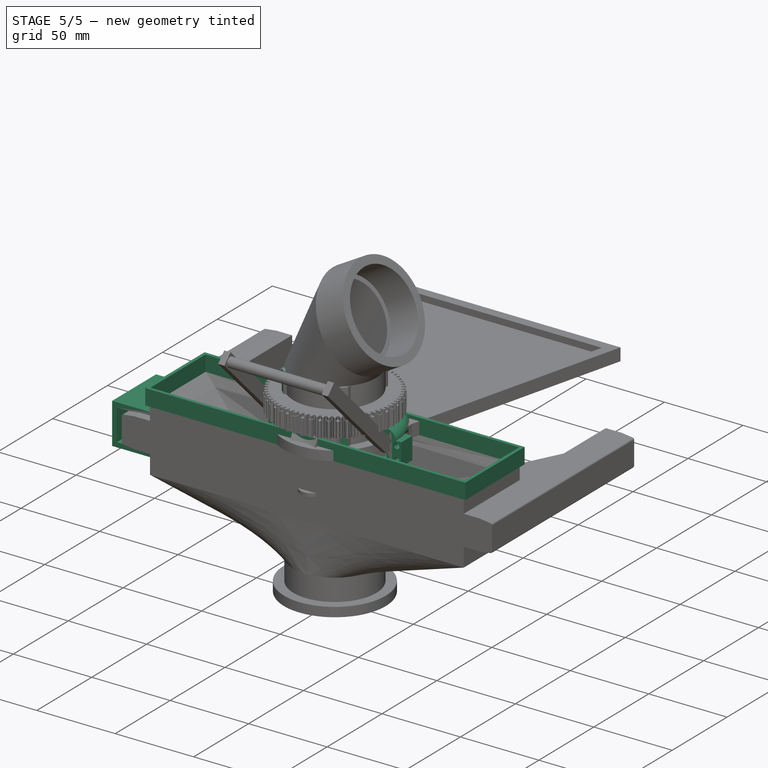
[diagram: stage 5 of 5 — iso view after this stage's code; geometry added in this stage tinted green]
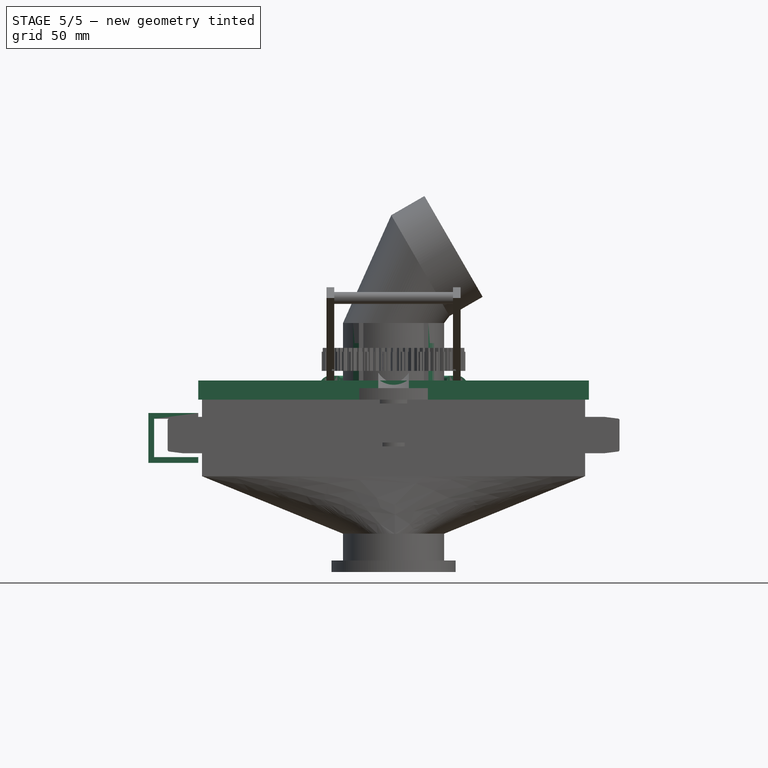
[diagram: stage 5 of 5 — front view after this stage's code; geometry added in this stage tinted green]
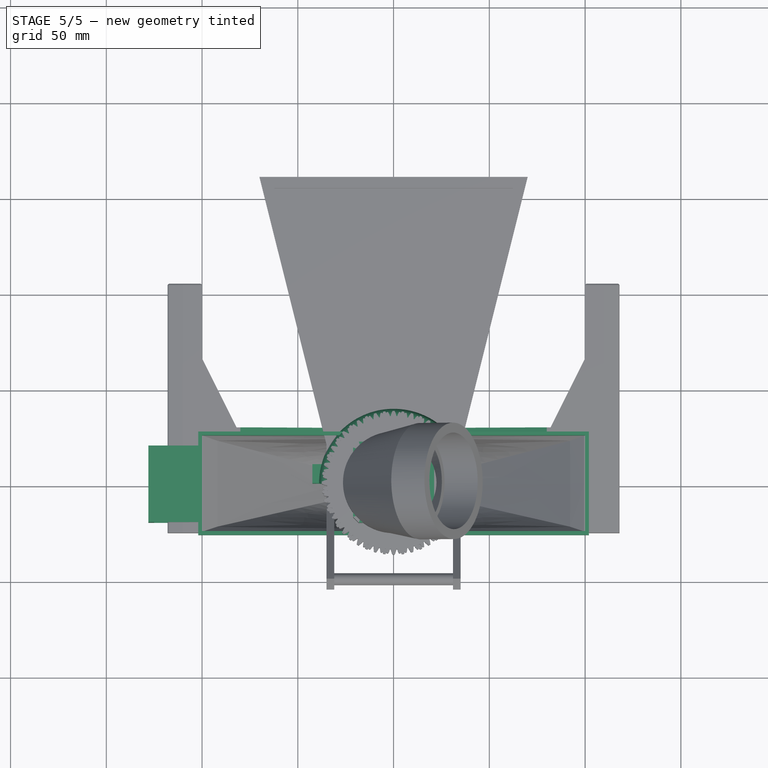
[diagram: stage 5 of 5 — top view after this stage's code; geometry added in this stage tinted green]
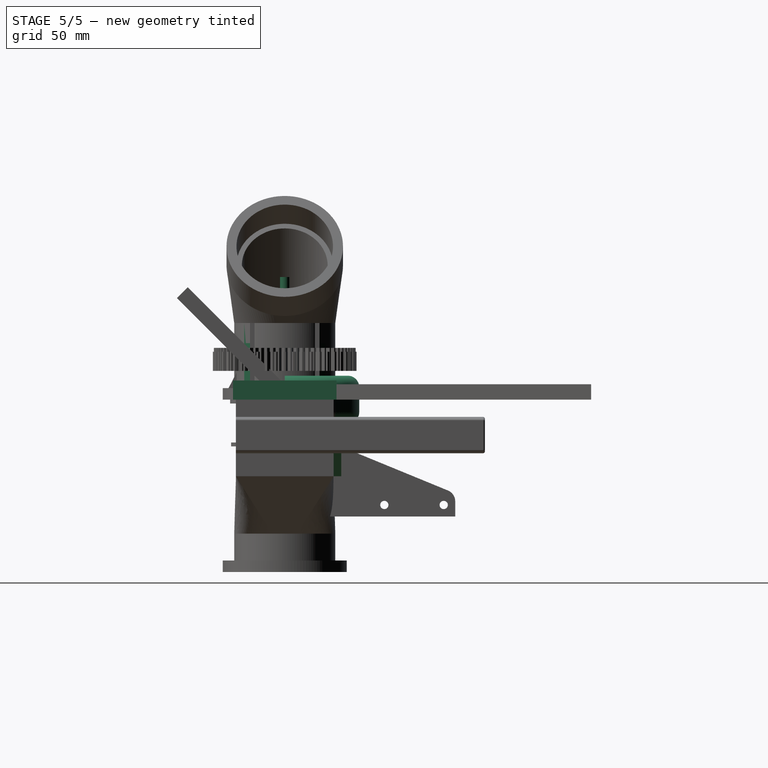
[diagram: stage 5 of 5 — right view after this stage's code; geometry added in this stage tinted green]
FEATURE [Sketcher::SketchObject] Sketch004
  FullyConstrained = true
  MapMode = 5
  Placement = pos=(0,0,0) rot=(1,0,0;1.5708rad)
  Support = -> [XZ_Plane]
  sketch-geometry (5):
    g0: LineSegment StartX=0 StartY=-90 StartZ=0 EndX=26.4 EndY=-90 EndZ=0
    g1: LineSegment StartX=26.4 StartY=-90 StartZ=0 EndX=32.4 EndY=-90 EndZ=0
    g2: LineSegment StartX=32.4 StartY=-90 StartZ=0 EndX=32.4 EndY=-84 EndZ=0
    g3: LineSegment StartX=32.4 StartY=-84 StartZ=0 EndX=26.4 EndY=-84 EndZ=0
    g4: LineSegment StartX=26.4 StartY=-84 StartZ=0 EndX=26.4 EndY=-90 EndZ=0
  constraints (15):
    c: PointOnObject(g0,g-2)
    c: Horizontal(g0)
    c: DistanceY(g0,g-1) = 90
    c: Distance(g0) = 26.4
    c: Coincident(g1,g0)
    c: Horizontal(g1)
    c: Coincident(g2,g1)
    c: Vertical(g2)
    c: Coincident(g3,g2)
    c: Horizontal(g3)
    c: Coincident(g4,g3)
    c: Coincident(g4,g1)
    c: Vertical(g4)
    c: Equal(g3,g2)
    c: Distance(g2) = 6
FEATURE [Sketcher::SketchObject] Sketch006
  FullyConstrained = true
  MapMode = 5
  Support = -> [XY_Plane002]
  sketch-geometry (12):
    g0: LineSegment StartX=-100 StartY=25 StartZ=0 EndX=-100 EndY=-25 EndZ=0
    g1: LineSegment StartX=-100 StartY=-25 StartZ=0 EndX=100 EndY=-25 EndZ=0
    g2: LineSegment StartX=100 StartY=-25 StartZ=0 EndX=100 EndY=25 EndZ=0
    g3: LineSegment StartX=100 StartY=25 StartZ=0 EndX=-100 EndY=25 EndZ=0
    g4: GeomPoint X=0 Y=0 Z=0
    g5: LineSegment StartX=-102 StartY=27 StartZ=0 EndX=-102 EndY=-27 EndZ=0
    g6: LineSegment StartX=-102 StartY=-27 StartZ=0 EndX=102 EndY=-27 EndZ=0
    g7: LineSegment StartX=102 StartY=-27 StartZ=0 EndX=102 EndY=27 EndZ=0
    g8: LineSegment StartX=102 StartY=27 StartZ=0 EndX=-102 EndY=27 EndZ=0
    g9: GeomPoint X=0 Y=0 Z=0
    g10: LineSegment StartX=100 StartY=25 StartZ=0 EndX=100 EndY=27 EndZ=0
    g11: LineSegment StartX=100 StartY=25 StartZ=0 EndX=102 EndY=25 EndZ=0
  constraints (30):
    c: Coincident(g0,g1)
    c: Coincident(g1,g2)
    c: Coincident(g2,g3)
    c: Coincident(g3,g0)
    c: Horizontal(g1)
    c: Horizontal(g3)
    c: Vertical(g0)
    c: Vertical(g2)
    c: Symmetric(g1,g0,g4)
    c: Coincident(g4,g-1)
    c: Distance(g2) = 50
    c: Distance(g3) = 200
    c: Coincident(g5,g6)
    c: Coincident(g6,g7)
    c: Coincident(g7,g8)
    c: Coincident(g8,g5)
    c: Horizontal(g6)
    c: Horizontal(g8)
    c: Vertical(g5)
    c: Vertical(g7)
    c: Symmetric(g6,g5,g9)
    c: Coincident(g9,g4)
    c: Coincident(g10,g2)
    c: PointOnObject(g10,g8)
    c: Coincident(g11,g2)
    c: PointOnObject(g11,g7)
    c: Horizontal(g11)
    c: Vertical(g10)
    c: Distance(g11) = 2
    c: Equal(g11,g10)
FEATURE [PartDesign::Pad] Pad004
  Direction = (0,0,1)
  Length = 10
  Length2 = 10
  Profile = -> Sketch006
  ReferenceAxis = -> Sketch006 [N_Axis]
  Type = 0
FEATURE [PartDesign::Body] Body001
  Group = -> [Sketch006,Pad004]
  Origin = -> Origin002
  Tip = -> Pad004
FEATURE [Sketcher::SketchObject] Sketch007
  FullyConstrained = true
  MapMode = 5
  Placement = pos=(0,0,0) rot=(1,0,0;1.5708rad)
  Support = -> [XZ_Plane003]
  sketch-geometry (12):
    g0: LineSegment StartX=-102 StartY=0 StartZ=0 EndX=-102 EndY=-30 EndZ=0
    g1: LineSegment StartX=-102 StartY=-30 StartZ=0 EndX=-125 EndY=-30 EndZ=0
    g2: LineSegment StartX=-125 StartY=-30 StartZ=0 EndX=-125 EndY=-10 EndZ=0
    g3: LineSegment StartX=-125 StartY=-10 StartZ=0 EndX=-102 EndY=-10 EndZ=0
    g4: LineSegment StartX=-102 StartY=-10 StartZ=0 EndX=-102 EndY=-7 EndZ=0
    g5: LineSegment StartX=-102 StartY=-7 StartZ=0 EndX=-128 EndY=-7 EndZ=0
    g6: LineSegment StartX=-128 StartY=-7 StartZ=0 EndX=-128 EndY=-33 EndZ=0
    g7: LineSegment StartX=-128 StartY=-33 StartZ=0 EndX=-102 EndY=-33 EndZ=0
    g8: LineSegment StartX=-102 StartY=-33 StartZ=0 EndX=-102 EndY=-30 EndZ=0
    g9: LineSegment StartX=-125 StartY=-10 StartZ=0 EndX=-125 EndY=-7 EndZ=0
    g10: LineSegment StartX=-125 StartY=-10 StartZ=0 EndX=-128 EndY=-10 EndZ=0
    g11: LineSegment StartX=-125 StartY=-30 StartZ=0 EndX=-125 EndY=-33 EndZ=0
  constraints (36):
    c: PointOnObject(g0,g-1)
    c: Vertical(g0)
    c: DistanceX(g0,g-1) = 102
    c: Distance(g0) = 30
    c: Horizontal(g1)
    c: Distance(g1) = 23
    c: Coincident(g2,g1)
    c: Vertical(g2)
    c: Coincident(g3,g2)
    c: PointOnObject(g3,g0)
    c: Horizontal(g3)
    c: Coincident(g1,g0)
    c: Distance(g2) = 20
    c: Coincident(g4,g3)
    c: PointOnObject(g4,g0)
    c: Coincident(g5,g4)
    c: Horizontal(g5)
    c: Coincident(g6,g5)
    c: Vertical(g6)
    c: Coincident(g7,g6)
    c: Horizontal(g7)
    c: Coincident(g8,g7)
    c: Coincident(g8,g1)
    c: Vertical(g8)
    c: Coincident(g9,g2)
    c: PointOnObject(g9,g5)
    c: Coincident(g10,g2)
    c: PointOnObject(g10,g6)
    c: Horizontal(g10)
    c: Coincident(g11,g1)
    c: PointOnObject(g11,g7)
    c: Vertical(g11)
    c: Vertical(g9)
    c: Equal(g9,g10)
    c: Equal(g9,g11)
    c: Distance(g9) = 3
FEATURE [PartDesign::Pad] Pad005
  Direction = (0,-1,2e-16)
  Length = 40
  Length2 = 10
  Midplane = true
  Placement = pos=(0,0,0) rot=(1,0,0;1.5708rad)
  Profile = -> Sketch007
  ReferenceAxis = -> Sketch007 [N_Axis]
  Type = 0
FEATURE [Sketcher::SketchObject] Sketch062
  FullyConstrained = true
  MapMode = 5
  Placement = pos=(0,0,0) rot=(0.57735,0.57735,0.57735;2.0944rad)
  Support = -> [YZ_Plane017]
  sketch-geometry (23):
    g0: LineSegment StartX=0 StartY=0 StartZ=0 EndX=32.9 EndY=0 EndZ=0
    g1: LineSegment StartX=32.9 StartY=0 StartZ=0 EndX=32.9 EndY=6.5 EndZ=0
    g2: LineSegment StartX=32.9 StartY=6.5 StartZ=0 EndX=29.4 EndY=6.5 EndZ=0
    g3: LineSegment StartX=27.9 StartY=8 StartZ=0 EndX=27.9 EndY=11 EndZ=0
    g4: LineSegment StartX=29.4 StartY=12.5 StartZ=0 EndX=32.9 EndY=12.5 EndZ=0
    g5: LineSegment StartX=38.9 StartY=6.5 StartZ=0 EndX=38.9 EndY=0 EndZ=0
    g6: ArcOfCircle CenterX=29.4 CenterY=8 CenterZ=0 NormalX=0 NormalY=0 NormalZ=1 AngleXU=0 Radius=1.5 StartAngle=3.14159 EndAngle=4.71239
    g7: GeomPoint X=27.9 Y=6.5 Z=0
    g8: ArcOfCircle CenterX=29.4 CenterY=11 CenterZ=0 NormalX=0 NormalY=0 NormalZ=1 AngleXU=0 Radius=1.5 StartAngle=1.5708 EndAngle=3.14159
    g9: GeomPoint X=27.9 Y=12.5 Z=0
    g10: ArcOfCircle CenterX=32.9 CenterY=6.5 CenterZ=0 NormalX=0 NormalY=0 NormalZ=1 AngleXU=0 Radius=6 StartAngle=0 EndAngle=1.5708
    g11: GeomPoint X=38.9 Y=12.5 Z=0
    g12: LineSegment StartX=38.9 StartY=0 StartZ=0 EndX=38.9 EndY=-6.5 EndZ=0
    g13: LineSegment StartX=32.9 StartY=-12.5 StartZ=0 EndX=29.4 EndY=-12.5 EndZ=0
    g14: LineSegment StartX=27.9 StartY=-11 StartZ=0 EndX=27.9 EndY=-8 EndZ=0
    g15: LineSegment StartX=29.4 StartY=-6.5 StartZ=0 EndX=32.9 EndY=-6.5 EndZ=0
    g16: LineSegment StartX=32.9 StartY=-6.5 StartZ=0 EndX=32.9 EndY=0 EndZ=0
    g17: ArcOfCircle CenterX=29.4 CenterY=-11 CenterZ=0 NormalX=0 NormalY=0 NormalZ=1 AngleXU=0 Radius=1.5 StartAngle=3.14159 EndAngle=4.71239
    g18: GeomPoint X=27.9 Y=-12.5 Z=0
    g19: ArcOfCircle CenterX=32.9 CenterY=-6.5 CenterZ=0 NormalX=0 NormalY=0 NormalZ=1 AngleXU=0 Radius=6 StartAngle=4.71239 EndAngle=6.28319
    g20: GeomPoint X=38.9 Y=-12.5 Z=0
    g21: ArcOfCircle CenterX=29.4 CenterY=-8 CenterZ=0 NormalX=0 NormalY=0 NormalZ=1 AngleXU=0 Radius=1.5 StartAngle=1.5708 EndAngle=3.14159
    g22: GeomPoint X=27.9 Y=-6.5 Z=0
  constraints (56):
    c: Coincident(g0,g-1)
    c: PointOnObject(g0,g-1)
    c: Distance(g0) = 32.9
    c: Coincident(g1,g0)
    c: Vertical(g1)
    c: Coincident(g2,g1)
    c: Horizontal(g2)
    c: Distance(g1) = 6.5
    c: Distance(g2,g7) = 5
    c: Vertical(g3)
    c: Distance(g9,g7) = 6
    c: Horizontal(g4)
    c: PointOnObject(g5,g-1)
    c: Vertical(g5)
    c: Distance(g5,g1) = 6
    c: PointOnObject(g7,g2)
    c: PointOnObject(g7,g3)
    c: Tangent(g2,g6) = 1.5708
    c: Tangent(g3,g6) = 1.5708
    c: PointOnObject(g9,g3)
    c: PointOnObject(g9,g4)
    c: Tangent(g3,g8) = 1.5708
    c: Tangent(g4,g8) = 1.5708
    c: PointOnObject(g11,g4)
    c: PointOnObject(g11,g5)
    c: Tangent(g4,g10) = 1.5708
    c: Tangent(g5,g10) = 1.5708
    c: Radius(g6) = 1.5
    c: Radius(g8) = 1.5
    c: Radius(g10) = 6
    c: Coincident(g12,g5)
    c: Vertical(g12)
    c: Horizontal(g13)
    c: Vertical(g14)
    c: Horizontal(g15)
    c: Coincident(g16,g15)
    c: Coincident(g16,g1)
    c: Vertical(g16)
    c: PointOnObject(g18,g14)
    c: PointOnObject(g18,g13)
    c: Tangent(g14,g17) = 1.5708
    c: Tangent(g13,g17) = 1.5708
    c: PointOnObject(g20,g13)
    c: PointOnObject(g20,g12)
    c: Tangent(g13,g19) = 1.5708
    c: Tangent(g12,g19) = 1.5708
    c: PointOnObject(g22,g14)
    c: PointOnObject(g22,g15)
    c: Tangent(g14,g21) = 1.5708
    c: Tangent(g15,g21) = 1.5708
    c: Equal(g5,g12)
    c: Equal(g1,g16)
    c: Equal(g10,g19)
    c: Equal(g8,g17)
    c: Equal(g3,g14)
    c: Equal(g2,g15)
FEATURE [PartDesign::Revolution] Revolution007
  Angle = 180
  Axis = (-2e-16,3e-16,1)
  Base = (0,0,0)
  Midplane = true
  Placement = pos=(0,0,0) rot=(0.57735,0.57735,0.57735;2.0944rad)
  Profile = -> Sketch062
  ReferenceAxis = -> Sketch062 [V_Axis]
FEATURE [Sketcher::SketchObject] Sketch063
  FullyConstrained = true
  MapMode = 5
  Placement = pos=(0,1e-16,0) rot=(0.57735,0.57735,-0.57735;2.0944rad)
  Support = -> [Revolution007]
  sketch-geometry (11):
    g0: Circle CenterX=4 CenterY=39.4 CenterZ=0 NormalX=0 NormalY=0 NormalZ=1 AngleXU=0 Radius=1.7
    g1: LineSegment StartX=4 StartY=39.4 StartZ=0 EndX=4 EndY=0 EndZ=0
    g2: LineSegment StartX=4 StartY=0 StartZ=0 EndX=0 EndY=0 EndZ=0
    g3: Circle CenterX=-4 CenterY=39.4 CenterZ=0 NormalX=0 NormalY=0 NormalZ=1 AngleXU=0 Radius=1.7
    g4: Circle CenterX=-4 CenterY=-39.4 CenterZ=0 NormalX=0 NormalY=0 NormalZ=1 AngleXU=0 Radius=1.7
    g5: Circle CenterX=4 CenterY=-39.4 CenterZ=0 NormalX=0 NormalY=0 NormalZ=1 AngleXU=0 Radius=1.7
    g6: LineSegment StartX=4 StartY=0 StartZ=0 EndX=4 EndY=-39.4 EndZ=0
    g7: LineSegment StartX=-4 StartY=39.4 StartZ=0 EndX=0 EndY=39.4 EndZ=0
    g8: LineSegment StartX=0 StartY=39.4 StartZ=0 EndX=4 EndY=39.4 EndZ=0
    g9: LineSegment StartX=-4 StartY=-39.4 StartZ=0 EndX=0 EndY=-39.4 EndZ=0
    g10: LineSegment StartX=0 StartY=-39.4 StartZ=0 EndX=4 EndY=-39.4 EndZ=0
  constraints (29):
    c: Diameter(g0) = 3.4
    c: Coincident(g1,g0)
    c: PointOnObject(g1,g-1)
    c: Vertical(g1)
    c: Coincident(g2,g1)
    c: Coincident(g2,g-1)
    c: Distance(g1) = 39.4
    c: Distance(g2) = 4
    c: Equal(g0,g3)
    c: Equal(g0,g5)
    c: Equal(g0,g4)
    c: Coincident(g6,g1)
    c: Coincident(g6,g5)
    c: Vertical(g6)
    c: Equal(g6,g1)
    c: Coincident(g7,g3)
    c: PointOnObject(g7,g-2)
    c: Horizontal(g7)
    c: Coincident(g8,g7)
    c: Coincident(g8,g0)
    c: Horizontal(g8)
    c: Coincident(g9,g4)
    c: PointOnObject(g9,g-2)
    c: Horizontal(g9)
    c: Coincident(g10,g9)
    c: Coincident(g10,g5)
    c: Horizontal(g10)
    c: Equal(g2,g9)
    c: Equal(g7,g2)
FEATURE [Sketcher::SketchObject] Sketch064
  FullyConstrained = true
  MapMode = 5
  Placement = pos=(0,1e-16,0) rot=(0.57735,0.57735,-0.57735;2.0944rad)
  Support = -> [Revolution007]
  sketch-geometry (11):
    g0: LineSegment StartX=7 StartY=36.4 StartZ=0 EndX=-7 EndY=36.4 EndZ=0
    g1: LineSegment StartX=-7 StartY=36.4 StartZ=0 EndX=-7 EndY=42.4 EndZ=0
    g2: LineSegment StartX=-7 StartY=42.4 StartZ=0 EndX=7 EndY=42.4 EndZ=0
    g3: LineSegment StartX=7 StartY=42.4 StartZ=0 EndX=7 EndY=36.4 EndZ=0
    g4: LineSegment StartX=-7 StartY=-36.4 StartZ=0 EndX=-7 EndY=-42.4 EndZ=0
    g5: LineSegment StartX=-7 StartY=-42.4 StartZ=0 EndX=7 EndY=-42.4 EndZ=0
    g6: LineSegment StartX=7 StartY=-42.4 StartZ=0 EndX=7 EndY=-36.4 EndZ=0
    g7: LineSegment StartX=7 StartY=-36.4 StartZ=0 EndX=-7 EndY=-36.4 EndZ=0
    g8: LineSegment StartX=-7 StartY=36.4 StartZ=0 EndX=-7 EndY=0 EndZ=0
    g9: LineSegment StartX=-7 StartY=0 StartZ=0 EndX=0 EndY=0 EndZ=0
    g10: LineSegment StartX=-7 StartY=0 StartZ=0 EndX=-7 EndY=-36.4 EndZ=0
  constraints (31):
    c: Horizontal(g0)
    c: Coincident(g1,g0)
    c: Vertical(g1)
    c: Coincident(g2,g1)
    c: Horizontal(g2)
    c: Coincident(g3,g2)
    c: Coincident(g3,g0)
    c: Vertical(g3)
    c: Distance(g0,g-2) = 7
    c: Distance(g2) = 14
    c: Distance(g3) = 6
    c: DistanceY(g-1,g0) = 36.4
    c: Vertical(g4)
    c: Coincident(g5,g4)
    c: Horizontal(g5)
    c: Coincident(g6,g5)
    c: Vertical(g6)
    c: Coincident(g7,g6)
    c: Coincident(g7,g4)
    c: Horizontal(g7)
    c: Equal(g3,g6)
    c: Equal(g2,g5)
    c: Coincident(g8,g0)
    c: PointOnObject(g8,g-1)
    c: Vertical(g8)
    c: Coincident(g9,g8)
    c: Coincident(g9,g-1)
    c: Coincident(g10,g8)
    c: Coincident(g10,g4)
    c: Vertical(g10)
    c: Equal(g8,g10)
FEATURE [PartDesign::Pad] Pad026
  BaseFeature = -> Revolution007
  Direction = (-3e-16,-1,1e-16)
  Length = 10
  Length2 = 10
  Placement = pos=(0,0,0) rot=(0.57735,0.57735,0.57735;2.0944rad)
  Profile = -> Sketch064
  ReferenceAxis = -> Sketch064 [N_Axis]
  Reversed = true
  Type = 0
FEATURE [PartDesign::Pocket] Pocket007
  BaseFeature = -> Pad026
  Direction = (3e-16,1,-1e-16)
  Length = 5
  Length2 = 5
  Placement = pos=(0,0,0) rot=(0.57735,0.57735,0.57735;2.0944rad)
  Profile = -> Sketch063
  ReferenceAxis = -> Sketch063 [N_Axis]
  Type = 1
FEATURE [Sketcher::SketchObject] Sketch065
  FullyConstrained = true
  MapMode = 5
  Placement = pos=(4.4e-15,10,-1.1e-15) rot=(0.57735,0.57735,0.57735;4.18879rad)
  Support = -> [Pocket007]
  sketch-geometry (12):
    g0: LineSegment StartX=-4 StartY=0 StartZ=0 EndX=-4 EndY=39.4 EndZ=0
    g1: LineSegment StartX=-4 StartY=43.4 StartZ=0 EndX=4 EndY=43.4 EndZ=0
    g2: LineSegment StartX=-4 StartY=35.4 StartZ=0 EndX=4 EndY=35.4 EndZ=0
    g3: ArcOfCircle CenterX=-4 CenterY=39.4 CenterZ=0 NormalX=0 NormalY=0 NormalZ=1 AngleXU=0 Radius=4 StartAngle=1.5708 EndAngle=4.71239
    g4: ArcOfCircle CenterX=4 CenterY=39.4 CenterZ=0 NormalX=0 NormalY=0 NormalZ=1 AngleXU=0 Radius=4 StartAngle=4.71239 EndAngle=7.85398
    g5: LineSegment StartX=-4 StartY=0 StartZ=0 EndX=0 EndY=0 EndZ=0
    g6: LineSegment StartX=-4 StartY=0 StartZ=0 EndX=-4 EndY=-39.4 EndZ=0
    g7: LineSegment StartX=-4 StartY=-35.4 StartZ=0 EndX=4 EndY=-35.4 EndZ=0
    g8: LineSegment StartX=-4 StartY=-43.4 StartZ=0 EndX=4 EndY=-43.4 EndZ=0
    g9: ArcOfCircle CenterX=4 CenterY=-39.4 CenterZ=0 NormalX=0 NormalY=0 NormalZ=1 AngleXU=0 Radius=4 StartAngle=4.71239 EndAngle=7.85398
    g10: ArcOfCircle CenterX=-4 CenterY=-39.4 CenterZ=0 NormalX=0 NormalY=0 NormalZ=1 AngleXU=0 Radius=4 StartAngle=1.5708 EndAngle=4.71239
    g11: LineSegment StartX=-4 StartY=-39.4 StartZ=0 EndX=4 EndY=-39.4 EndZ=0
  constraints (33):
    c: PointOnObject(g0,g-1)
    c: Vertical(g0)
    c: Distance(g0) = 39.4
    c: Horizontal(g1)
    c: Horizontal(g2)
    c: Coincident(g4,g2)
    c: Coincident(g4,g1)
    c: Equal(g3,g4)
    c: Equal(g1,g2)
    c: Tangent(g3,g1) = 1.5708
    c: Distance(g1,g2) = 8
    c: Tangent(g3,g2) = -1.5708
    c: Coincident(g3,g0)
    c: Distance(g4,g3) = 8
    c: Coincident(g5,g0)
    c: Coincident(g5,g-1)
    c: Distance(g5) = 4
    c: Coincident(g6,g0)
    c: Vertical(g6)
    c: Equal(g0,g6)
    c: Horizontal(g7)
    c: Horizontal(g8)
    c: Coincident(g9,g8)
    c: Coincident(g10,g7)
    c: Equal(g7,g8)
    c: Tangent(g9,g7) = 1.5708
    c: Tangent(g10,g8) = -1.5708
    c: Coincident(g10,g6)
    c: Coincident(g11,g10)
    c: Coincident(g11,g9)
    c: Horizontal(g11)
    c: Distance(g11) = 8
    c: Equal(g9,g4)
FEATURE [PartDesign::Pocket] Pocket008
  BaseFeature = -> Pocket007
  Direction = (-4e-16,-1,6e-16)
  Length = 6
  Length2 = 5
  Placement = pos=(0,0,0) rot=(0.57735,0.57735,0.57735;2.0944rad)
  Profile = -> Sketch065
  ReferenceAxis = -> Sketch065 [N_Axis]
  Reversed = true
  Type = 1
FEATURE [PartDesign::Body] Body015  label="Body008: Half clamp003"
  Group = -> [Sketch062,Revolution007,Sketch064,Pad026,Sketch063,Pocket007,Sketch065,Pocket008]
  Origin = -> Origin017
  Placement = pos=(0,-1.1e-14,-90.5) rot=(0,0,1;1.309rad)
  Tip = -> Pocket008
FEATURE [Sketcher::SketchObject] Sketch066
  AttachmentOffset = pos=(0,0,21.15) rot=(0,0,1;0rad)
  FullyConstrained = true
  MapMode = 5
  Placement = pos=(21.15,-4.7e-15,4.7e-15) rot=(0.57735,0.57735,0.57735;2.0944rad)
  Support = -> [YZ_Plane]
  sketch-geometry (10):
    g0: LineSegment StartX=23 StartY=-61 StartZ=0 EndX=23 EndY=-26 EndZ=0
    g1: LineSegment StartX=23 StartY=-26 StartZ=0 EndX=31.0264 EndY=-26 EndZ=0
    g2: LineSegment StartX=34.8256 StartY=-26.7498 StartZ=0 EndX=85.2795 EndY=-47.4719 EndZ=0
    g3: LineSegment StartX=89 StartY=-53.0221 StartZ=0 EndX=89 EndY=-61 EndZ=0
    g4: LineSegment StartX=23 StartY=-61 StartZ=0 EndX=89 EndY=-61 EndZ=0
    g5: LineSegment StartX=0 StartY=0 StartZ=0 EndX=0 EndY=-90 EndZ=0
    g6: ArcOfCircle CenterX=31.0264 CenterY=-36 CenterZ=0 NormalX=0 NormalY=0 NormalZ=1 AngleXU=0 Radius=10 StartAngle=1.18109 EndAngle=1.5708
    g7: GeomPoint X=33 Y=-26 Z=0
    g8: ArcOfCircle CenterX=83 CenterY=-53.0221 CenterZ=0 NormalX=0 NormalY=0 NormalZ=1 AngleXU=0 Radius=6 StartAngle=0 EndAngle=1.18109
    g9: GeomPoint X=89 Y=-49 Z=0
  constraints (26):
    c: Vertical(g0)
    c: Coincident(g1,g0)
    c: Horizontal(g1)
    c: Vertical(g3)
    c: Coincident(g4,g0)
    c: Coincident(g4,g3)
    c: Horizontal(g4)
    c: Distance(g0) = 35
    c: Distance(g4) = 66
    c: Coincident(g5,g-1)
    c: PointOnObject(g5,g-2)
    c: Distance(g5) = 90
    c: DistanceY(g5,g0) = 29
    c: Distance(g3,g9) = 12
    c: PointOnObject(g7,g1)
    c: PointOnObject(g7,g2)
    c: Tangent(g1,g6) = 1.5708
    c: Tangent(g2,g6) = 1.5708
    c: PointOnObject(g9,g2)
    c: PointOnObject(g9,g3)
    c: Tangent(g2,g8) = 1.5708
    c: Tangent(g3,g8) = 1.5708
    c: Radius(g6) = 10
    c: Radius(g8) = 6
    c: DistanceX(g5,g3) = 89
    c: DistanceX(g7,g3) = 56
FEATURE [Sketcher::SketchObject] Sketch069
  FullyConstrained = true
  MapMode = 5
  Support = -> [XY_Plane018]
  sketch-geometry (5):
    g0: LineSegment StartX=-21.15 StartY=21.15 StartZ=0 EndX=-21.15 EndY=-21.15 EndZ=0
    g1: LineSegment StartX=-21.15 StartY=-21.15 StartZ=0 EndX=21.15 EndY=-21.15 EndZ=0
    g2: LineSegment StartX=21.15 StartY=-21.15 StartZ=0 EndX=21.15 EndY=21.15 EndZ=0
    g3: LineSegment StartX=21.15 StartY=21.15 StartZ=0 EndX=-21.15 EndY=21.15 EndZ=0
    g4: GeomPoint X=0 Y=0 Z=0
  constraints (12):
    c: Coincident(g0,g1)
    c: Coincident(g1,g2)
    c: Coincident(g2,g3)
    c: Coincident(g3,g0)
    c: Horizontal(g1)
    c: Horizontal(g3)
    c: Vertical(g0)
    c: Vertical(g2)
    c: Symmetric(g1,g0,g4)
    c: Coincident(g4,g-1)
    c: Equal(g3,g2)
    c: Distance(g2) = 42.3
FEATURE [PartDesign::Pad] Pad028
  Direction = (0,0,1)
  Length = 29.5
  Length2 = 10
  Profile = -> Sketch069
  ReferenceAxis = -> Sketch069 [N_Axis]
  Type = 0
FEATURE [PartDesign::Chamfer] Chamfer009
  Angle = 45
  Base = -> Pad028 [Edge2,Edge5,Edge8,Edge1]
  BaseFeature = -> Pad028
  ChamferType = 0
  FlipDirection = false
  Size = 3
  Size2 = 1
  SupportTransform = false
  UseAllEdges = false
FEATURE [Sketcher::SketchObject] Sketch070
  FullyConstrained = true
  MapMode = 5
  Placement = pos=(0,0,29.5) rot=(0,0,1;0rad)
  Support = -> [Chamfer009]
  sketch-geometry (10):
    g0: Circle CenterX=15.5 CenterY=-15.5 CenterZ=0 NormalX=0 NormalY=0 NormalZ=1 AngleXU=0 Radius=1.5
    g1: Circle CenterX=-15.5 CenterY=-15.5 CenterZ=0 NormalX=0 NormalY=0 NormalZ=1 AngleXU=0 Radius=1.5
    g2: Circle CenterX=-15.5 CenterY=15.5 CenterZ=0 NormalX=0 NormalY=0 NormalZ=1 AngleXU=0 Radius=1.5
    g3: Circle CenterX=15.5 CenterY=15.5 CenterZ=0 NormalX=0 NormalY=0 NormalZ=1 AngleXU=0 Radius=1.5
    g4: LineSegment StartX=0 StartY=0 StartZ=0 EndX=15.5 EndY=0 EndZ=0
    g5: LineSegment StartX=0 StartY=0 StartZ=0 EndX=-15.5 EndY=0 EndZ=0
    g6: LineSegment StartX=-15.5 StartY=0 StartZ=0 EndX=-15.5 EndY=15.5 EndZ=0
    g7: LineSegment StartX=-15.5 StartY=0 StartZ=0 EndX=-15.5 EndY=-15.5 EndZ=0
    g8: LineSegment StartX=15.5 StartY=0 StartZ=0 EndX=15.5 EndY=-15.5 EndZ=0
    g9: LineSegment StartX=15.5 StartY=0 StartZ=0 EndX=15.5 EndY=15.5 EndZ=0
  constraints (26):
    c: Equal(g2,g3)
    c: Equal(g3,g1)
    c: Equal(g3,g0)
    c: Coincident(g4,g-1)
    c: PointOnObject(g4,g-1)
    c: Coincident(g5,g4)
    c: PointOnObject(g5,g-1)
    c: Coincident(g6,g5)
    c: Coincident(g6,g2)
    c: Vertical(g6)
    c: Coincident(g7,g5)
    c: Coincident(g7,g1)
    c: Coincident(g8,g4)
    c: Coincident(g8,g0)
    c: Vertical(g8)
    c: Coincident(g9,g4)
    c: Coincident(g9,g3)
    c: Vertical(g9)
    c: Equal(g4,g5)
    c: Equal(g9,g6)
    c: Equal(g9,g8)
    c: Equal(g9,g7)
    c: Vertical(g7)
    c: Diameter(g3) = 3
    c: Distance(g4,g5) = 31
    c: Distance(g3,g0) = 31
FEATURE [PartDesign::Pocket] Pocket010
  BaseFeature = -> Chamfer009
  Direction = (0,0,-1)
  Length = 4
  Length2 = 5
  Profile = -> Sketch070
  ReferenceAxis = -> Sketch070 [N_Axis]
  Type = 0
FEATURE [Sketcher::SketchObject] Sketch071
  FullyConstrained = true
  MapMode = 5
  Placement = pos=(0,0,29.5) rot=(0,0,1;0rad)
  Support = -> [Pocket010]
  sketch-geometry (1):
    g0: Circle CenterX=0 CenterY=0 CenterZ=0 NormalX=0 NormalY=0 NormalZ=1 AngleXU=0 Radius=11
  constraints (2):
    c: Coincident(g0,g-1)
    c: Diameter(g0) = 22
FEATURE [PartDesign::Pad] Pad029
  BaseFeature = -> Pocket010
  Direction = (0,0,1)
  Length = 2
  Length2 = 10
  Profile = -> Sketch071
  ReferenceAxis = -> Sketch071 [N_Axis]
  Type = 0
FEATURE [Sketcher::SketchObject] Sketch072
  FullyConstrained = true
  MapMode = 5
  Placement = pos=(0,0,31.5) rot=(0,0,1;0rad)
  Support = -> [Pad029]
  sketch-geometry (1):
    g0: Circle CenterX=0 CenterY=0 CenterZ=0 NormalX=0 NormalY=0 NormalZ=1 AngleXU=0 Radius=2.5
  constraints (2):
    c: Coincident(g0,g-1)
    c: Diameter(g0) = 5
FEATURE [PartDesign::Pad] Pad030
  BaseFeature = -> Pad029
  Direction = (0,0,1)
  Length = 2
  Length2 = 10
  Profile = -> Sketch072
  ReferenceAxis = -> Sketch072 [N_Axis]
  Type = 0
FEATURE [Sketcher::SketchObject] Sketch073
  FullyConstrained = true
  MapMode = 5
  Placement = pos=(0,0,33.5) rot=(0,0,1;0rad)
  Support = -> [Pad030]
  sketch-geometry (3):
    g0: ArcOfCircle CenterX=0 CenterY=0 CenterZ=0 NormalX=0 NormalY=0 NormalZ=1 AngleXU=0 Radius=2.5 StartAngle=5.35589 EndAngle=10.3521
    g1: LineSegment StartX=-1.5 StartY=-2 StartZ=0 EndX=1.5 EndY=-2 EndZ=0
    g2: LineSegment StartX=0 StartY=0 StartZ=0 EndX=0 EndY=2.5 EndZ=0
  constraints (9):
    c: Coincident(g0,g-1)
    c: Diameter(g0) = 5
    c: Horizontal(g1)
    c: Coincident(g2,g0)
    c: PointOnObject(g2,g0)
    c: Vertical(g2)
    c: Distance(g2,g1) = 4.5
    c: Coincident(g0,g1)
    c: Coincident(g0,g1)
FEATURE [PartDesign::Pad] Pad031
  BaseFeature = -> Pad030
  Direction = (0,0,1)
  Length = 20
  Length2 = 10
  Profile = -> Sketch073
  ReferenceAxis = -> Sketch073 [N_Axis]
  Type = 0
FEATURE [PartDesign::Body] Body016  label="Body002: SX17 Motor"
  Group = -> [Sketch069,Pad028,Chamfer009,Sketch070,Pocket010,Sketch071,Pad029,Sketch072,Pad030,Sketch073,Pad031]
  Origin = -> Origin018
  Placement = pos=(7e-15,67.5,-61) rot=(0.707107,0.707107,0;3.14159rad)
  Tip = -> Pad031
FEATURE [Sketcher::SketchObject] Sketch074
  FullyConstrained = true
  MapMode = 5
  Support = -> [XY_Plane019]
  sketch-geometry (5):
    g0: LineSegment StartX=-21.15 StartY=21.15 StartZ=0 EndX=-21.15 EndY=-21.15 EndZ=0
    g1: LineSegment StartX=-21.15 StartY=-21.15 StartZ=0 EndX=21.15 EndY=-21.15 EndZ=0
    g2: LineSegment StartX=21.15 StartY=-21.15 StartZ=0 EndX=21.15 EndY=21.15 EndZ=0
    g3: LineSegment StartX=21.15 StartY=21.15 StartZ=0 EndX=-21.15 EndY=21.15 EndZ=0
    g4: GeomPoint X=0 Y=0 Z=0
  constraints (12):
    c: Coincident(g0,g1)
    c: Coincident(g1,g2)
    c: Coincident(g2,g3)
    c: Coincident(g3,g0)
    c: Horizontal(g1)
    c: Horizontal(g3)
    c: Vertical(g0)
    c: Vertical(g2)
    c: Symmetric(g1,g0,g4)
    c: Coincident(g4,g-1)
    c: Equal(g3,g2)
    c: Distance(g2) = 42.3
FEATURE [PartDesign::Pad] Pad032
  Direction = (0,0,1)
  Length = 40
  Length2 = 10
  Profile = -> Sketch074
  ReferenceAxis = -> Sketch074 [N_Axis]
  Type = 0
FEATURE [PartDesign::Chamfer] Chamfer010
  Angle = 45
  Base = -> Pad032 [Edge2,Edge5,Edge8,Edge1]
  BaseFeature = -> Pad032
  ChamferType = 0
  FlipDirection = false
  Size = 3
  Size2 = 1
  SupportTransform = false
  UseAllEdges = false
FEATURE [Sketcher::SketchObject] Sketch075
  FullyConstrained = true
  MapMode = 5
  Placement = pos=(0,0,40) rot=(0,0,1;0rad)
  Support = -> [Chamfer010]
  sketch-geometry (10):
    g0: Circle CenterX=15.5 CenterY=-15.5 CenterZ=0 NormalX=0 NormalY=0 NormalZ=1 AngleXU=0 Radius=1.5
    g1: Circle CenterX=-15.5 CenterY=-15.5 CenterZ=0 NormalX=0 NormalY=0 NormalZ=1 AngleXU=0 Radius=1.5
    g2: Circle CenterX=-15.5 CenterY=15.5 CenterZ=0 NormalX=0 NormalY=0 NormalZ=1 AngleXU=0 Radius=1.5
    g3: Circle CenterX=15.5 CenterY=15.5 CenterZ=0 NormalX=0 NormalY=0 NormalZ=1 AngleXU=0 Radius=1.5
    g4: LineSegment StartX=0 StartY=0 StartZ=0 EndX=15.5 EndY=0 EndZ=0
    g5: LineSegment StartX=0 StartY=0 StartZ=0 EndX=-15.5 EndY=0 EndZ=0
    g6: LineSegment StartX=-15.5 StartY=0 StartZ=0 EndX=-15.5 EndY=15.5 EndZ=0
    g7: LineSegment StartX=-15.5 StartY=0 StartZ=0 EndX=-15.5 EndY=-15.5 EndZ=0
    g8: LineSegment StartX=15.5 StartY=0 StartZ=0 EndX=15.5 EndY=-15.5 EndZ=0
    g9: LineSegment StartX=15.5 StartY=0 StartZ=0 EndX=15.5 EndY=15.5 EndZ=0
  constraints (26):
    c: Equal(g2,g3)
    c: Equal(g3,g1)
    c: Equal(g3,g0)
    c: Coincident(g4,g-1)
    c: PointOnObject(g4,g-1)
    c: Coincident(g5,g4)
    c: PointOnObject(g5,g-1)
    c: Coincident(g6,g5)
    c: Coincident(g6,g2)
    c: Vertical(g6)
    c: Coincident(g7,g5)
    c: Coincident(g7,g1)
    c: Coincident(g8,g4)
    c: Coincident(g8,g0)
    c: Vertical(g8)
    c: Coincident(g9,g4)
    c: Coincident(g9,g3)
    c: Vertical(g9)
    c: Equal(g4,g5)
    c: Equal(g9,g6)
    c: Equal(g9,g8)
    c: Equal(g9,g7)
    c: Vertical(g7)
    c: Diameter(g3) = 3
    c: Distance(g4,g5) = 31
    c: Distance(g3,g0) = 31
FEATURE [PartDesign::Pocket] Pocket011
  BaseFeature = -> Chamfer010
  Direction = (0,0,-1)
  Length = 4.5
  Length2 = 5
  Profile = -> Sketch075
  ReferenceAxis = -> Sketch075 [N_Axis]
  Type = 0
FEATURE [Sketcher::SketchObject] Sketch076
  FullyConstrained = true
  MapMode = 5
  Placement = pos=(0,0,40) rot=(0,0,1;0rad)
  Support = -> [Pocket011]
  sketch-geometry (1):
    g0: Circle CenterX=0 CenterY=0 CenterZ=0 NormalX=0 NormalY=0 NormalZ=1 AngleXU=0 Radius=11
  constraints (2):
    c: Coincident(g0,g-1)
    c: Diameter(g0) = 22
FEATURE [PartDesign::Pad] Pad033
  BaseFeature = -> Pocket011
  Direction = (0,0,1)
  Length = 2
  Length2 = 10
  Profile = -> Sketch076
  ReferenceAxis = -> Sketch076 [N_Axis]
  Type = 0
FEATURE [Sketcher::SketchObject] Sketch077
  FullyConstrained = true
  MapMode = 5
  Placement = pos=(0,0,42) rot=(0,0,1;0rad)
  Support = -> [Pad033]
  sketch-geometry (1):
    g0: Circle CenterX=0 CenterY=0 CenterZ=0 NormalX=0 NormalY=0 NormalZ=1 AngleXU=0 Radius=2.5
  constraints (2):
    c: Coincident(g0,g-1)
    c: Diameter(g0) = 5
FEATURE [PartDesign::Pad] Pad034
  BaseFeature = -> Pad033
  Direction = (0,0,1)
  Length = 22
  Length2 = 10
  Profile = -> Sketch077
  ReferenceAxis = -> Sketch077 [N_Axis]
  Type = 0
FEATURE [Sketcher::SketchObject] Sketch080
  FullyConstrained = true
  MapMode = 5
  Placement = pos=(-17.15,0,-7e-16) rot=(0.57735,0.57735,0.57735;2.0944rad)
  Support = -> [Pocket]
  sketch-geometry (9):
    g0: LineSegment StartX=75 StartY=-57 StartZ=0 EndX=75 EndY=-61 EndZ=0
    g1: LineSegment StartX=75 StartY=-61 StartZ=0 EndX=60 EndY=-61 EndZ=0
    g2: LineSegment StartX=60 StartY=-61 StartZ=0 EndX=60 EndY=-57 EndZ=0
    g3: LineSegment StartX=60 StartY=-57 StartZ=0 EndX=75 EndY=-57 EndZ=0
    g4: GeomPoint X=67.5 Y=-59 Z=0
    g5: LineSegment StartX=25.5 StartY=-26 StartZ=0 EndX=29.5 EndY=-26 EndZ=0
    g6: LineSegment StartX=29.5 StartY=-26 StartZ=0 EndX=29.5 EndY=-40 EndZ=0
    g7: LineSegment StartX=29.5 StartY=-40 StartZ=0 EndX=25.5 EndY=-40 EndZ=0
    g8: LineSegment StartX=25.5 StartY=-40 StartZ=0 EndX=25.5 EndY=-26 EndZ=0
  constraints (25):
    c: Coincident(g0,g1)
    c: Coincident(g1,g2)
    c: Coincident(g2,g3)
    c: Coincident(g3,g0)
    c: Horizontal(g1)
    c: Horizontal(g3)
    c: Vertical(g0)
    c: Vertical(g2)
    c: Symmetric(g1,g0,g4)
    c: DistanceX(g-1,g4) = 67.5
    c: DistanceY(g1,g-1) = 61
    c: Distance(g3) = 15
    c: Distance(g0) = 4
    c: Coincident(g5,g6)
    c: Coincident(g6,g7)
    c: Coincident(g7,g8)
    c: Coincident(g8,g5)
    c: Horizontal(g5)
    c: Horizontal(g7)
    c: Vertical(g6)
    c: Vertical(g8)
    c: DistanceX(g-1,g5) = 25.5
    c: DistanceY(g5,g-1) = 26
    c: Distance(g7) = 4
    c: Distance(g6) = 14
FEATURE [PartDesign::Pad] Pad036
  BaseFeature = -> Pocket
  Direction = (1,0,0)
  Length = 10
  Length2 = 10
  Profile = -> Sketch080
  ReferenceAxis = -> Sketch080 [N_Axis]
  Type = 2
FEATURE [Sketcher::SketchObject] Sketch081
  FullyConstrained = true
  MapMode = 5
  Placement = pos=(0,25.5,0) rot=(0,0.707107,0.707107;3.14159rad)
  Support = -> [Pad036]
  sketch-geometry (4):
    g0: LineSegment StartX=-80 StartY=-9 StartZ=0 EndX=-21.15 EndY=-26 EndZ=0
    g1: LineSegment StartX=-80 StartY=-28 StartZ=0 EndX=-21.15 EndY=-40 EndZ=0
    g2: LineSegment StartX=-80 StartY=-9 StartZ=0 EndX=-80 EndY=-28 EndZ=0
    g3: LineSegment StartX=-21.15 StartY=-40 StartZ=0 EndX=-21.15 EndY=-26 EndZ=0
  constraints (12):
    c: Coincident(g2,g0)
    c: Coincident(g2,g1)
    c: Vertical(g2)
    c: Coincident(g3,g1)
    c: Coincident(g3,g0)
    c: Vertical(g3)
    c: Distance(g3) = 14
    c: Distance(g2) = 19
    c: DistanceX(g0,g-1) = 21.15
    c: DistanceY(g0,g-1) = 26
    c: DistanceY(g0,g-1) = 9
    c: DistanceX(g0,g-1) = 80
FEATURE [PartDesign::Pad] Pad037
  BaseFeature = -> Pad036
  Direction = (0,1,-2e-16)
  Length = 4
  Length2 = 10
  Profile = -> Sketch081
  ReferenceAxis = -> Sketch081 [N_Axis]
  Type = 0
FEATURE [PartDesign::Pad] Pad038
  BaseFeature = -> Pad037
  Direction = (1,0,0)
  Length = 10
  Length2 = 10
  Profile = -> Pad037 [Face60]
  Type = 2
FEATURE [PartDesign::Mirrored] Mirrored002
  MirrorPlane = -> Sketch081 [V_Axis]
FEATURE [PartDesign::MultiTransform] MultiTransform001
  BaseFeature = -> Pad038
  Originals = -> [Pad037,Pad038]
  Transformations = -> [Mirrored002]
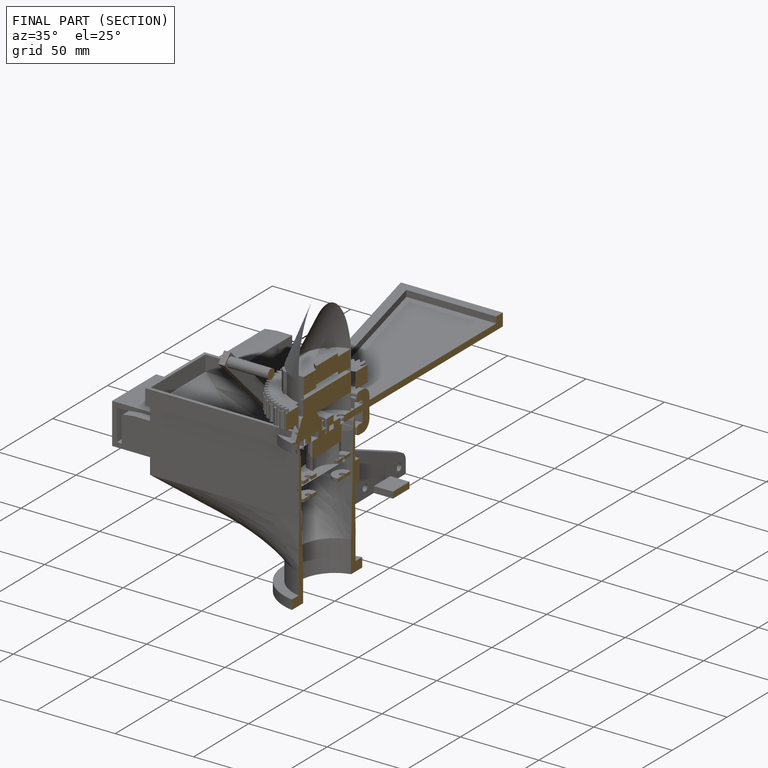
[diagram: finished part — half-section view (interior)]
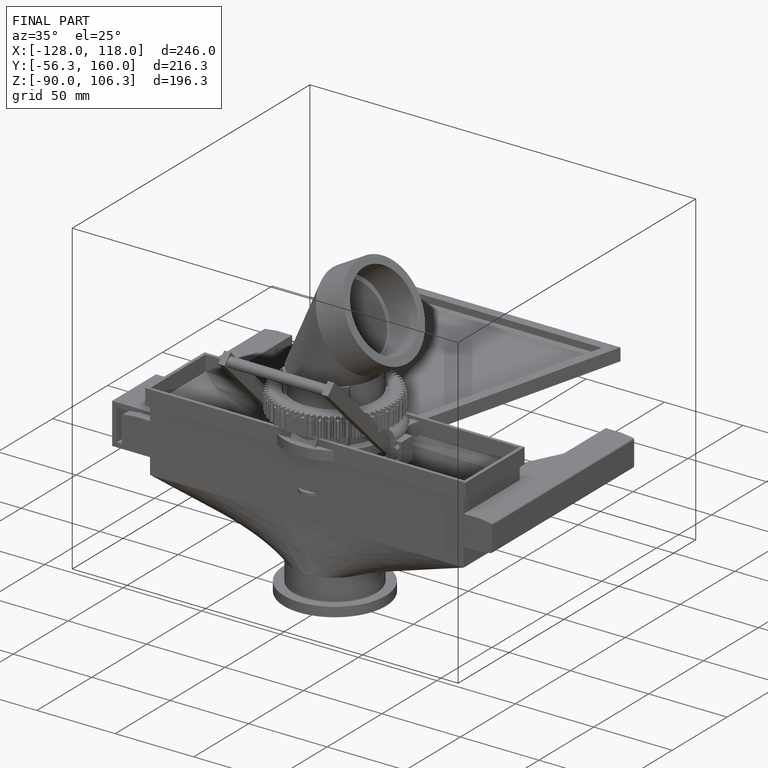
[diagram: finished part — iso view with bounding-box wireframe]
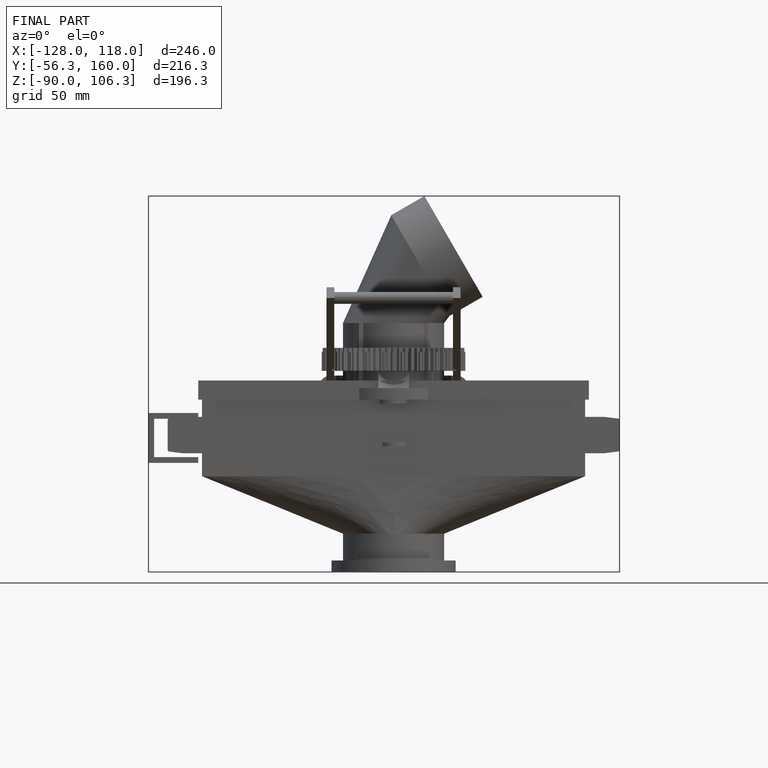
[diagram: finished part — front view with bounding-box wireframe]
